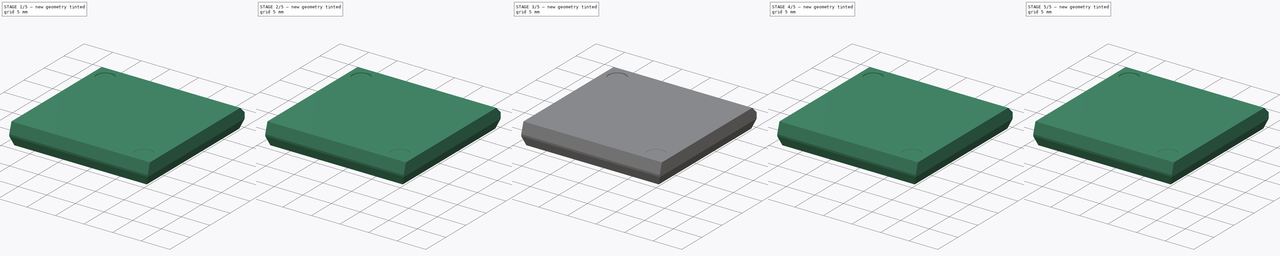
[diagram: build sequence overview — one tinted view per stage of 5, left to right]
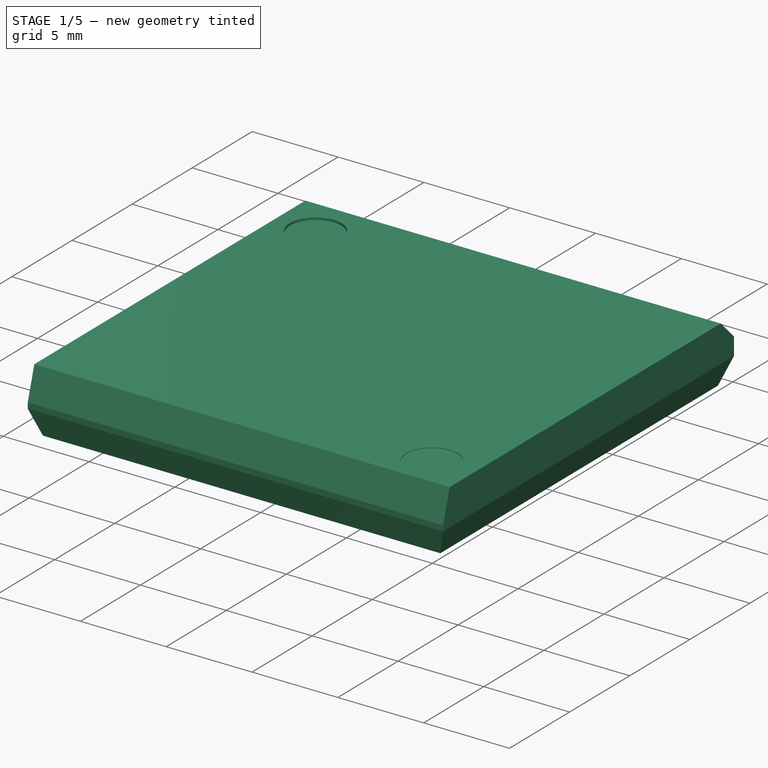
[diagram: stage 1 of 5 — iso view after this stage's code; geometry added in this stage tinted green]
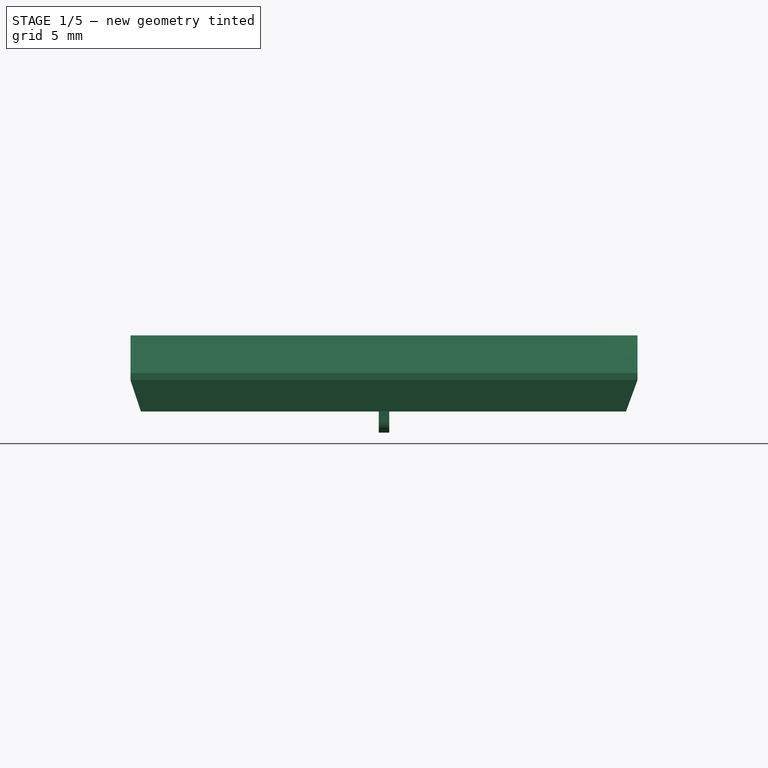
[diagram: stage 1 of 5 — front view after this stage's code; geometry added in this stage tinted green]
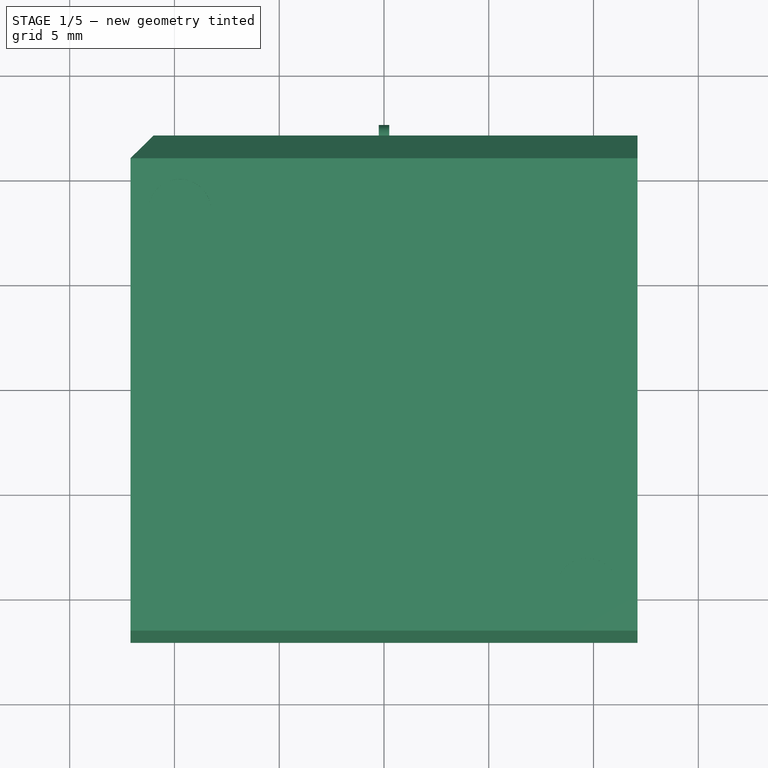
[diagram: stage 1 of 5 — top view after this stage's code; geometry added in this stage tinted green]
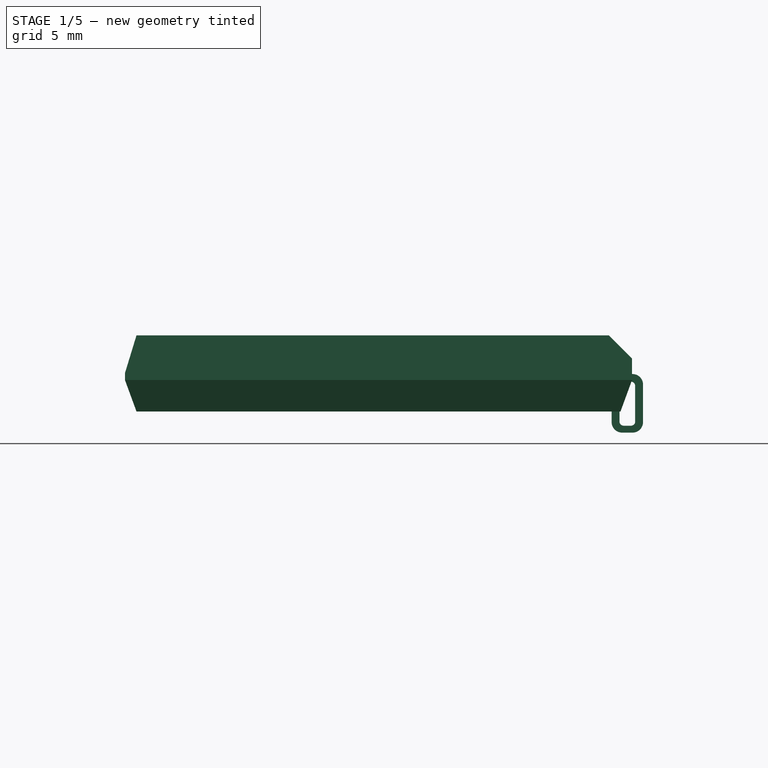
[diagram: stage 1 of 5 — right view after this stage's code; geometry added in this stage tinted green]
FCSTD DOCUMENT  (FreeCAD 0.19R24291 (Git))
Label: PLCC-68
License: All rights reserved
LicenseURL: http://en.wikipedia.org/wiki/All_rights_reserved
objects: PartDesign::Fillet×476, PartDesign::SubtractiveBox×136, Sketcher::SketchObject×70, PartDesign::AdditiveBox×69, PartDesign::Body×69, PartDesign::Chamfer×7, App::Part×5, PartDesign::SubtractiveCylinder×2
note: 1519 computed .brp shape members not serialized (recipe doc carries the construction recipe); baked Part::Feature solids carry a one-line shape summary decoded from their .brp

FEATURE [Sketcher::SketchObject] Sketch
  FullyConstrained = false
  MapMode = 5
  Support = -> [XY_Plane]
  sketch-geometry (8):
    g0: LineSegment StartX=-11 StartY=12.1 StartZ=0 EndX=12.1 EndY=12.1 EndZ=0
    g1: LineSegment StartX=12.1 StartY=12.1 StartZ=0 EndX=12.1 EndY=-12.1 EndZ=0
    g2: LineSegment StartX=12.1 StartY=-12.1 StartZ=0 EndX=-12.1 EndY=-12.1 EndZ=0
    g3: LineSegment StartX=-12.1 StartY=-12.1 StartZ=0 EndX=-12.1 EndY=11 EndZ=0
    g4: GeomPoint X=-12.1 Y=11 Z=0
    g5: GeomPoint X=-11 Y=12.1 Z=0
    g6: LineSegment StartX=-12.1 StartY=11 StartZ=0 EndX=-11 EndY=12.1 EndZ=0
    g7: Circle CenterX=0 CenterY=10.75 CenterZ=0 NormalX=0 NormalY=0 NormalZ=1 AngleXU=0 Radius=0.25
  constraints (12):
    c: Coincident(g0,g1)
    c: Coincident(g1,g2)
    c: Coincident(g2,g3)
    c: Horizontal(g0)
    c: Horizontal(g2)
    c: Vertical(g1)
    c: Vertical(g3)
    c: Coincident(g6,g4)
    c: Coincident(g6,g5)
    c: PointOnObject(g0,g6)
    c: PointOnObject(g3,g6)
    c: PointOnObject(g7,g-2)
FEATURE [PartDesign::AdditiveBox] Box
  AttacherType = Attacher::AttachEngine3D
  AttachmentOffset = pos=(-12.1,-12.1,1.01) rot=(0,0,1;0rad)
  Height = 3.63
  Length = 24.2
  MapMode = 5
  Placement = pos=(-12.1,-12.1,1.01) rot=(0,0,1;0rad)
  Support = -> [XY_Plane]
  Width = 24.2
FEATURE [PartDesign::Chamfer] Chamfer
  Angle = 45
  Base = -> Box [Edge3]
  BaseFeature = -> Box
  ChamferType = 0
  FlipDirection = false
  Placement = pos=(-12.1,-12.1,1.01) rot=(0,0,1;0rad)
  Size = 1.1
  Size2 = 1
  SupportTransform = false
FEATURE [Sketcher::SketchObject] Sketch001
  FullyConstrained = false
  MapMode = 5
  Support = -> [XY_Plane]
  sketch-geometry (4):
    g0: LineSegment StartX=-11.5575 StartY=11.5575 StartZ=0 EndX=11.5575 EndY=11.5575 EndZ=0
    g1: LineSegment StartX=11.5575 StartY=11.5575 StartZ=0 EndX=11.5575 EndY=-11.5575 EndZ=0
    g2: LineSegment StartX=11.5575 StartY=-11.5575 StartZ=0 EndX=-11.5575 EndY=-11.5575 EndZ=0
    g3: LineSegment StartX=-11.5575 StartY=-11.5575 StartZ=0 EndX=-11.5575 EndY=11.5575 EndZ=0
  constraints (8):
    c: Coincident(g0,g1)
    c: Coincident(g1,g2)
    c: Coincident(g2,g3)
    c: Coincident(g3,g0)
    c: Horizontal(g0)
    c: Horizontal(g2)
    c: Vertical(g1)
    c: Vertical(g3)
FEATURE [PartDesign::Chamfer] Chamfer001
  Angle = 45
  Base = -> Chamfer [Edge11]
  BaseFeature = -> Chamfer
  ChamferType = 1
  FlipDirection = false
  Placement = pos=(-12.1,-12.1,1.01) rot=(0,0,1;0rad)
  Size = 1.8
  Size2 = 0.55
  SupportTransform = false
FEATURE [PartDesign::Chamfer] Chamfer002
  Angle = 45
  Base = -> Chamfer001 [Edge15]
  BaseFeature = -> Chamfer001
  ChamferType = 1
  FlipDirection = false
  Placement = pos=(-12.1,-12.1,1.01) rot=(0,0,1;0rad)
  Size = 0.55
  Size2 = 1.5
  SupportTransform = false
FEATURE [PartDesign::Chamfer] Chamfer003
  Angle = 45
  Base = -> Chamfer002 [Edge7]
  BaseFeature = -> Chamfer002
  ChamferType = 1
  FlipDirection = false
  Placement = pos=(-12.1,-12.1,1.01) rot=(0,0,1;0rad)
  Size = 0.55
  Size2 = 1.5
  SupportTransform = false
FEATURE [PartDesign::Chamfer] Chamfer004
  Angle = 45
  Base = -> Chamfer003 [Edge5]
  BaseFeature = -> Chamfer003
  ChamferType = 1
  FlipDirection = false
  Placement = pos=(-12.1,-12.1,1.01) rot=(0,0,1;0rad)
  Size = 0.5
  Size2 = 1.5
  SupportTransform = false
FEATURE [PartDesign::Chamfer] Chamfer005
  Angle = 45
  Base = -> Chamfer004 [Edge24]
  BaseFeature = -> Chamfer004
  ChamferType = 0
  FlipDirection = false
  Placement = pos=(-12.1,-12.1,1.01) rot=(0,0,1;0rad)
  Size = 1.1
  Size2 = 1
  SupportTransform = false
FEATURE [PartDesign::SubtractiveCylinder] Cylinder
  Angle = 360
  AttacherType = Attacher::AttachEngine3D
  AttachmentOffset = pos=(-9.75,8.5,4.5) rot=(0,0,1;0rad)
  BaseFeature = -> Chamfer005
  Height = 0.2
  MapMode = 5
  Placement = pos=(-9.75,8.5,4.5) rot=(0,0,1;0rad)
  Radius = 1.5
  Support = -> [XY_Plane]
FEATURE [PartDesign::SubtractiveCylinder] Cylinder001
  Angle = 360
  AttacherType = Attacher::AttachEngine3D
  AttachmentOffset = pos=(9.7,-9.6,4.6) rot=(0,0,1;0rad)
  BaseFeature = -> Cylinder
  Height = 0.1
  MapMode = 5
  Placement = pos=(9.7,-9.6,4.6) rot=(0,0,1;0rad)
  Radius = 1.5
  Support = -> [XY_Plane]
FEATURE [PartDesign::AdditiveBox] Box146
  AttacherType = Attacher::AttachEngine3D
  AttachmentOffset = pos=(-0.25,11.125,0) rot=(0,0,1;0rad)
  Height = 2.795
  Length = 0.5
  MapMode = 5
  Placement = pos=(-0.25,11.125,0) rot=(0,0,1;0rad)
  Support = -> [XY_Plane044]
  Width = 1.5
FEATURE [PartDesign::AdditiveBox] Box155
  AttacherType = Attacher::AttachEngine3D
  AttachmentOffset = pos=(-0.25,11.125,0) rot=(0,0,1;0rad)
  Height = 2.795
  Length = 0.5
  MapMode = 5
  Placement = pos=(-0.25,11.125,0) rot=(0,0,1;0rad)
  Support = -> [XY_Plane071]
  Width = 1.5
FEATURE [PartDesign::AdditiveBox] Box159
  AttacherType = Attacher::AttachEngine3D
  AttachmentOffset = pos=(-0.25,11.125,0) rot=(0,0,1;0rad)
  Height = 2.795
  Length = 0.5
  MapMode = 5
  Placement = pos=(-0.25,11.125,0) rot=(0,0,1;0rad)
  Support = -> [XY_Plane068]
  Width = 1.5
FEATURE [PartDesign::AdditiveBox] Box166
  AttacherType = Attacher::AttachEngine3D
  AttachmentOffset = pos=(-0.25,11.125,0) rot=(0,0,1;0rad)
  Height = 2.795
  Length = 0.5
  MapMode = 5
  Placement = pos=(-0.25,11.125,0) rot=(0,0,1;0rad)
  Support = -> [XY_Plane066]
  Width = 1.5
FEATURE [PartDesign::AdditiveBox] Box179
  AttacherType = Attacher::AttachEngine3D
  AttachmentOffset = pos=(-0.25,11.125,0) rot=(0,0,1;0rad)
  Height = 2.795
  Length = 0.5
  MapMode = 5
  Placement = pos=(-0.25,11.125,0) rot=(0,0,1;0rad)
  Support = -> [XY_Plane045]
  Width = 1.5
FEATURE [PartDesign::AdditiveBox] Box182
  AttacherType = Attacher::AttachEngine3D
  AttachmentOffset = pos=(-0.25,11.125,0) rot=(0,0,1;0rad)
  Height = 2.795
  Length = 0.5
  MapMode = 5
  Placement = pos=(-0.25,11.125,0) rot=(0,0,1;0rad)
  Support = -> [XY_Plane070]
  Width = 1.5
FEATURE [PartDesign::AdditiveBox] Box187
  AttacherType = Attacher::AttachEngine3D
  AttachmentOffset = pos=(-0.25,11.125,0) rot=(0,0,1;0rad)
  Height = 2.795
  Length = 0.5
  MapMode = 5
  Placement = pos=(-0.25,11.125,0) rot=(0,0,1;0rad)
  Support = -> [XY_Plane047]
  Width = 1.5
FEATURE [PartDesign::AdditiveBox] Box188
  AttacherType = Attacher::AttachEngine3D
  AttachmentOffset = pos=(-0.25,11.125,0) rot=(0,0,1;0rad)
  Height = 2.795
  Length = 0.5
  MapMode = 5
  Placement = pos=(-0.25,11.125,0) rot=(0,0,1;0rad)
  Support = -> [XY_Plane069]
  Width = 1.5
FEATURE [PartDesign::AdditiveBox] Box190
  AttacherType = Attacher::AttachEngine3D
  AttachmentOffset = pos=(-0.25,11.125,0) rot=(0,0,1;0rad)
  Height = 2.795
  Length = 0.5
  MapMode = 5
  Placement = pos=(-0.25,11.125,0) rot=(0,0,1;0rad)
  Support = -> [XY_Plane067]
  Width = 1.5
FEATURE [PartDesign::AdditiveBox] Box191
  AttacherType = Attacher::AttachEngine3D
  AttachmentOffset = pos=(-0.25,11.125,0) rot=(0,0,1;0rad)
  Height = 2.795
  Length = 0.5
  MapMode = 5
  Placement = pos=(-0.25,11.125,0) rot=(0,0,1;0rad)
  Support = -> [XY_Plane043]
  Width = 1.5
FEATURE [PartDesign::AdditiveBox] Box192
  AttacherType = Attacher::AttachEngine3D
  AttachmentOffset = pos=(-0.25,11.125,0) rot=(0,0,1;0rad)
  Height = 2.795
  Length = 0.5
  MapMode = 5
  Placement = pos=(-0.25,11.125,0) rot=(0,0,1;0rad)
  Support = -> [XY_Plane048]
  Width = 1.5
FEATURE [PartDesign::AdditiveBox] Box194
  AttacherType = Attacher::AttachEngine3D
  AttachmentOffset = pos=(-0.25,11.125,0) rot=(0,0,1;0rad)
  Height = 2.795
  Length = 0.5
  MapMode = 5
  Placement = pos=(-0.25,11.125,0) rot=(0,0,1;0rad)
  Support = -> [XY_Plane042]
  Width = 1.5
FEATURE [PartDesign::AdditiveBox] Box200
  AttacherType = Attacher::AttachEngine3D
  AttachmentOffset = pos=(-0.25,11.125,0) rot=(0,0,1;0rad)
  Height = 2.795
  Length = 0.5
  MapMode = 5
  Placement = pos=(-0.25,11.125,0) rot=(0,0,1;0rad)
  Support = -> [XY_Plane046]
  Width = 1.5
FEATURE [PartDesign::Fillet] Fillet390
  Base = -> Box159 [Edge11]
  BaseFeature = -> Box159
  Placement = pos=(-0.25,11.125,0) rot=(0,0,1;0rad)
  Radius = 0.5
  SupportTransform = false
FEATURE [Sketcher::SketchObject] Sketch049
  FullyConstrained = false
  MapMode = 5
  Support = -> [XY_Plane059]
  sketch-geometry (8):
    g0: LineSegment StartX=-0.3 StartY=-12.5 StartZ=0 EndX=0.3 EndY=-12.5 EndZ=0
    g1: LineSegment StartX=0.3 StartY=-12.5 StartZ=0 EndX=0.3 EndY=-11.1 EndZ=0
    g2: LineSegment StartX=0.3 StartY=-11.1 StartZ=0 EndX=-0.3 EndY=-11.1 EndZ=0
    g3: LineSegment StartX=-0.3 StartY=-11.1 StartZ=0 EndX=-0.3 EndY=-12.5 EndZ=0
    g4: LineSegment StartX=-0.2 StartY=-12.4 StartZ=0 EndX=0.2 EndY=-12.4 EndZ=0
    g5: LineSegment StartX=0.2 StartY=-12.4 StartZ=0 EndX=0.2 EndY=-11.2 EndZ=0
    g6: LineSegment StartX=0.2 StartY=-11.2 StartZ=0 EndX=-0.2 EndY=-11.2 EndZ=0
    g7: LineSegment StartX=-0.2 StartY=-11.2 StartZ=0 EndX=-0.2 EndY=-12.4 EndZ=0
  constraints (16):
    c: Coincident(g0,g1)
    c: Coincident(g1,g2)
    c: Coincident(g2,g3)
    c: Coincident(g3,g0)
    c: Horizontal(g0)
    c: Horizontal(g2)
    c: Vertical(g1)
    c: Vertical(g3)
    c: Coincident(g4,g5)
    c: Coincident(g5,g6)
    c: Coincident(g6,g7)
    c: Coincident(g7,g4)
    c: Horizontal(g4)
    c: Horizontal(g6)
    c: Vertical(g5)
    c: Vertical(g7)
FEATURE [PartDesign::Body] Body047  label="Leg046"
  Group = -> [Sketch049,Box141,Fillet314,Fillet333,Fillet323,Box118,Fillet258,Fillet334,Fillet330,Fillet322,Box143]
  Origin = -> Origin061
  Placement = pos=(-3.81,0,0) rot=(0,0,1;0rad)
  Tip = -> Box143
FEATURE [Sketcher::SketchObject] Sketch050
  FullyConstrained = false
  MapMode = 5
  Support = -> [XY_Plane062]
  sketch-geometry (8):
    g0: LineSegment StartX=-0.3 StartY=-12.5 StartZ=0 EndX=0.3 EndY=-12.5 EndZ=0
    g1: LineSegment StartX=0.3 StartY=-12.5 StartZ=0 EndX=0.3 EndY=-11.1 EndZ=0
    g2: LineSegment StartX=0.3 StartY=-11.1 StartZ=0 EndX=-0.3 EndY=-11.1 EndZ=0
    g3: LineSegment StartX=-0.3 StartY=-11.1 StartZ=0 EndX=-0.3 EndY=-12.5 EndZ=0
    g4: LineSegment StartX=-0.2 StartY=-12.4 StartZ=0 EndX=0.2 EndY=-12.4 EndZ=0
    g5: LineSegment StartX=0.2 StartY=-12.4 StartZ=0 EndX=0.2 EndY=-11.2 EndZ=0
    g6: LineSegment StartX=0.2 StartY=-11.2 StartZ=0 EndX=-0.2 EndY=-11.2 EndZ=0
    g7: LineSegment StartX=-0.2 StartY=-11.2 StartZ=0 EndX=-0.2 EndY=-12.4 EndZ=0
  constraints (16):
    c: Coincident(g0,g1)
    c: Coincident(g1,g2)
    c: Coincident(g2,g3)
    c: Coincident(g3,g0)
    c: Horizontal(g0)
    c: Horizontal(g2)
    c: Vertical(g1)
    c: Vertical(g3)
    c: Coincident(g4,g5)
    c: Coincident(g5,g6)
    c: Coincident(g6,g7)
    c: Coincident(g7,g4)
    c: Horizontal(g4)
    c: Horizontal(g6)
    c: Vertical(g5)
    c: Vertical(g7)
FEATURE [PartDesign::Body] Body051  label="Leg050"
  Group = -> [Sketch050,Box151,Fillet346,Fillet360,Fillet356,Box150,Fillet355,Fillet351,Fillet354,Fillet352,Box154]
  Origin = -> Origin044
  Placement = pos=(10.16,0,0) rot=(0,0,1;0rad)
  Tip = -> Box154
FEATURE [Sketcher::SketchObject] Sketch051
  FullyConstrained = false
  MapMode = 5
  Support = -> [XY_Plane056]
  sketch-geometry (8):
    g0: LineSegment StartX=-0.3 StartY=-12.5 StartZ=0 EndX=0.3 EndY=-12.5 EndZ=0
    g1: LineSegment StartX=0.3 StartY=-12.5 StartZ=0 EndX=0.3 EndY=-11.1 EndZ=0
    g2: LineSegment StartX=0.3 StartY=-11.1 StartZ=0 EndX=-0.3 EndY=-11.1 EndZ=0
    g3: LineSegment StartX=-0.3 StartY=-11.1 StartZ=0 EndX=-0.3 EndY=-12.5 EndZ=0
    g4: LineSegment StartX=-0.2 StartY=-12.4 StartZ=0 EndX=0.2 EndY=-12.4 EndZ=0
    g5: LineSegment StartX=0.2 StartY=-12.4 StartZ=0 EndX=0.2 EndY=-11.2 EndZ=0
    g6: LineSegment StartX=0.2 StartY=-11.2 StartZ=0 EndX=-0.2 EndY=-11.2 EndZ=0
    g7: LineSegment StartX=-0.2 StartY=-11.2 StartZ=0 EndX=-0.2 EndY=-12.4 EndZ=0
  constraints (16):
    c: Coincident(g0,g1)
    c: Coincident(g1,g2)
    c: Coincident(g2,g3)
    c: Coincident(g3,g0)
    c: Horizontal(g0)
    c: Horizontal(g2)
    c: Vertical(g1)
    c: Vertical(g3)
    c: Coincident(g4,g5)
    c: Coincident(g5,g6)
    c: Coincident(g6,g7)
    c: Coincident(g7,g4)
    c: Horizontal(g4)
    c: Horizontal(g6)
    c: Vertical(g5)
    c: Vertical(g7)
FEATURE [PartDesign::Body] Body049  label="Leg048"
  Group = -> [Sketch051,Box137,Fillet337,Fillet269,Fillet353,Box133,Fillet350,Fillet310,Fillet344,Fillet347,Box134]
  Origin = -> Origin050
  Placement = pos=(8.89,0,0) rot=(0,0,1;0rad)
  Tip = -> Box134
FEATURE [Sketcher::SketchObject] Sketch052
  FullyConstrained = false
  MapMode = 5
  Support = -> [XY_Plane070]
  sketch-geometry (8):
    g0: LineSegment StartX=-0.3 StartY=-12.5 StartZ=0 EndX=0.3 EndY=-12.5 EndZ=0
    g1: LineSegment StartX=0.3 StartY=-12.5 StartZ=0 EndX=0.3 EndY=-11.1 EndZ=0
    g2: LineSegment StartX=0.3 StartY=-11.1 StartZ=0 EndX=-0.3 EndY=-11.1 EndZ=0
    g3: LineSegment StartX=-0.3 StartY=-11.1 StartZ=0 EndX=-0.3 EndY=-12.5 EndZ=0
    g4: LineSegment StartX=-0.2 StartY=-12.4 StartZ=0 EndX=0.2 EndY=-12.4 EndZ=0
    g5: LineSegment StartX=0.2 StartY=-12.4 StartZ=0 EndX=0.2 EndY=-11.2 EndZ=0
    g6: LineSegment StartX=0.2 StartY=-11.2 StartZ=0 EndX=-0.2 EndY=-11.2 EndZ=0
    g7: LineSegment StartX=-0.2 StartY=-11.2 StartZ=0 EndX=-0.2 EndY=-12.4 EndZ=0
  constraints (16):
    c: Coincident(g0,g1)
    c: Coincident(g1,g2)
    c: Coincident(g2,g3)
    c: Coincident(g3,g0)
    c: Horizontal(g0)
    c: Horizontal(g2)
    c: Vertical(g1)
    c: Vertical(g3)
    c: Coincident(g4,g5)
    c: Coincident(g5,g6)
    c: Coincident(g6,g7)
    c: Coincident(g7,g4)
    c: Horizontal(g4)
    c: Horizontal(g6)
    c: Vertical(g5)
    c: Vertical(g7)
FEATURE [Sketcher::SketchObject] Sketch053
  FullyConstrained = false
  MapMode = 5
  Support = -> [XY_Plane043]
  sketch-geometry (8):
    g0: LineSegment StartX=-0.3 StartY=-12.5 StartZ=0 EndX=0.3 EndY=-12.5 EndZ=0
    g1: LineSegment StartX=0.3 StartY=-12.5 StartZ=0 EndX=0.3 EndY=-11.1 EndZ=0
    g2: LineSegment StartX=0.3 StartY=-11.1 StartZ=0 EndX=-0.3 EndY=-11.1 EndZ=0
    g3: LineSegment StartX=-0.3 StartY=-11.1 StartZ=0 EndX=-0.3 EndY=-12.5 EndZ=0
    g4: LineSegment StartX=-0.2 StartY=-12.4 StartZ=0 EndX=0.2 EndY=-12.4 EndZ=0
    g5: LineSegment StartX=0.2 StartY=-12.4 StartZ=0 EndX=0.2 EndY=-11.2 EndZ=0
    g6: LineSegment StartX=0.2 StartY=-11.2 StartZ=0 EndX=-0.2 EndY=-11.2 EndZ=0
    g7: LineSegment StartX=-0.2 StartY=-11.2 StartZ=0 EndX=-0.2 EndY=-12.4 EndZ=0
  constraints (16):
    c: Coincident(g0,g1)
    c: Coincident(g1,g2)
    c: Coincident(g2,g3)
    c: Coincident(g3,g0)
    c: Horizontal(g0)
    c: Horizontal(g2)
    c: Vertical(g1)
    c: Vertical(g3)
    c: Coincident(g4,g5)
    c: Coincident(g5,g6)
    c: Coincident(g6,g7)
    c: Coincident(g7,g4)
    c: Horizontal(g4)
    c: Horizontal(g6)
    c: Vertical(g5)
    c: Vertical(g7)
FEATURE [Sketcher::SketchObject] Sketch054
  FullyConstrained = false
  MapMode = 5
  Support = -> [XY_Plane044]
  sketch-geometry (8):
    g0: LineSegment StartX=-0.3 StartY=-12.5 StartZ=0 EndX=0.3 EndY=-12.5 EndZ=0
    g1: LineSegment StartX=0.3 StartY=-12.5 StartZ=0 EndX=0.3 EndY=-11.1 EndZ=0
    g2: LineSegment StartX=0.3 StartY=-11.1 StartZ=0 EndX=-0.3 EndY=-11.1 EndZ=0
    g3: LineSegment StartX=-0.3 StartY=-11.1 StartZ=0 EndX=-0.3 EndY=-12.5 EndZ=0
    g4: LineSegment StartX=-0.2 StartY=-12.4 StartZ=0 EndX=0.2 EndY=-12.4 EndZ=0
    g5: LineSegment StartX=0.2 StartY=-12.4 StartZ=0 EndX=0.2 EndY=-11.2 EndZ=0
    g6: LineSegment StartX=0.2 StartY=-11.2 StartZ=0 EndX=-0.2 EndY=-11.2 EndZ=0
    g7: LineSegment StartX=-0.2 StartY=-11.2 StartZ=0 EndX=-0.2 EndY=-12.4 EndZ=0
  constraints (16):
    c: Coincident(g0,g1)
    c: Coincident(g1,g2)
    c: Coincident(g2,g3)
    c: Coincident(g3,g0)
    c: Horizontal(g0)
    c: Horizontal(g2)
    c: Vertical(g1)
    c: Vertical(g3)
    c: Coincident(g4,g5)
    c: Coincident(g5,g6)
    c: Coincident(g6,g7)
    c: Coincident(g7,g4)
    c: Horizontal(g4)
    c: Horizontal(g6)
    c: Vertical(g5)
    c: Vertical(g7)
FEATURE [Sketcher::SketchObject] Sketch055
  FullyConstrained = false
  MapMode = 5
  Support = -> [XY_Plane071]
  sketch-geometry (8):
    g0: LineSegment StartX=-0.3 StartY=-12.5 StartZ=0 EndX=0.3 EndY=-12.5 EndZ=0
    g1: LineSegment StartX=0.3 StartY=-12.5 StartZ=0 EndX=0.3 EndY=-11.1 EndZ=0
    g2: LineSegment StartX=0.3 StartY=-11.1 StartZ=0 EndX=-0.3 EndY=-11.1 EndZ=0
    g3: LineSegment StartX=-0.3 StartY=-11.1 StartZ=0 EndX=-0.3 EndY=-12.5 EndZ=0
    g4: LineSegment StartX=-0.2 StartY=-12.4 StartZ=0 EndX=0.2 EndY=-12.4 EndZ=0
    g5: LineSegment StartX=0.2 StartY=-12.4 StartZ=0 EndX=0.2 EndY=-11.2 EndZ=0
    g6: LineSegment StartX=0.2 StartY=-11.2 StartZ=0 EndX=-0.2 EndY=-11.2 EndZ=0
    g7: LineSegment StartX=-0.2 StartY=-11.2 StartZ=0 EndX=-0.2 EndY=-12.4 EndZ=0
  constraints (16):
    c: Coincident(g0,g1)
    c: Coincident(g1,g2)
    c: Coincident(g2,g3)
    c: Coincident(g3,g0)
    c: Horizontal(g0)
    c: Horizontal(g2)
    c: Vertical(g1)
    c: Vertical(g3)
    c: Coincident(g4,g5)
    c: Coincident(g5,g6)
    c: Coincident(g6,g7)
    c: Coincident(g7,g4)
    c: Horizontal(g4)
    c: Horizontal(g6)
    c: Vertical(g5)
    c: Vertical(g7)
FEATURE [Sketcher::SketchObject] Sketch056
  FullyConstrained = false
  MapMode = 5
  Support = -> [XY_Plane061]
  sketch-geometry (8):
    g0: LineSegment StartX=-0.3 StartY=-12.5 StartZ=0 EndX=0.3 EndY=-12.5 EndZ=0
    g1: LineSegment StartX=0.3 StartY=-12.5 StartZ=0 EndX=0.3 EndY=-11.1 EndZ=0
    g2: LineSegment StartX=0.3 StartY=-11.1 StartZ=0 EndX=-0.3 EndY=-11.1 EndZ=0
    g3: LineSegment StartX=-0.3 StartY=-11.1 StartZ=0 EndX=-0.3 EndY=-12.5 EndZ=0
    g4: LineSegment StartX=-0.2 StartY=-12.4 StartZ=0 EndX=0.2 EndY=-12.4 EndZ=0
    g5: LineSegment StartX=0.2 StartY=-12.4 StartZ=0 EndX=0.2 EndY=-11.2 EndZ=0
    g6: LineSegment StartX=0.2 StartY=-11.2 StartZ=0 EndX=-0.2 EndY=-11.2 EndZ=0
    g7: LineSegment StartX=-0.2 StartY=-11.2 StartZ=0 EndX=-0.2 EndY=-12.4 EndZ=0
  constraints (16):
    c: Coincident(g0,g1)
    c: Coincident(g1,g2)
    c: Coincident(g2,g3)
    c: Coincident(g3,g0)
    c: Horizontal(g0)
    c: Horizontal(g2)
    c: Vertical(g1)
    c: Vertical(g3)
    c: Coincident(g4,g5)
    c: Coincident(g5,g6)
    c: Coincident(g6,g7)
    c: Coincident(g7,g4)
    c: Horizontal(g4)
    c: Horizontal(g6)
    c: Vertical(g5)
    c: Vertical(g7)
FEATURE [PartDesign::Body] Body052  label="Leg051"
  Group = -> [Sketch056,Box173,Fillet366,Fillet376,Fillet371,Box175,Fillet359,Fillet369,Fillet358,Fillet361,Box178]
  Origin = -> Origin070
  Placement = pos=(5.08,0,0) rot=(0,0,1;0rad)
  Tip = -> Box178
FEATURE [Sketcher::SketchObject] Sketch057
  FullyConstrained = false
  MapMode = 5
  Support = -> [XY_Plane049]
  sketch-geometry (8):
    g0: LineSegment StartX=-0.3 StartY=-12.5 StartZ=0 EndX=0.3 EndY=-12.5 EndZ=0
    g1: LineSegment StartX=0.3 StartY=-12.5 StartZ=0 EndX=0.3 EndY=-11.1 EndZ=0
    g2: LineSegment StartX=0.3 StartY=-11.1 StartZ=0 EndX=-0.3 EndY=-11.1 EndZ=0
    g3: LineSegment StartX=-0.3 StartY=-11.1 StartZ=0 EndX=-0.3 EndY=-12.5 EndZ=0
    g4: LineSegment StartX=-0.2 StartY=-12.4 StartZ=0 EndX=0.2 EndY=-12.4 EndZ=0
    g5: LineSegment StartX=0.2 StartY=-12.4 StartZ=0 EndX=0.2 EndY=-11.2 EndZ=0
    g6: LineSegment StartX=0.2 StartY=-11.2 StartZ=0 EndX=-0.2 EndY=-11.2 EndZ=0
    g7: LineSegment StartX=-0.2 StartY=-11.2 StartZ=0 EndX=-0.2 EndY=-12.4 EndZ=0
  constraints (16):
    c: Coincident(g0,g1)
    c: Coincident(g1,g2)
    c: Coincident(g2,g3)
    c: Coincident(g3,g0)
    c: Horizontal(g0)
    c: Horizontal(g2)
    c: Vertical(g1)
    c: Vertical(g3)
    c: Coincident(g4,g5)
    c: Coincident(g5,g6)
    c: Coincident(g6,g7)
    c: Coincident(g7,g4)
    c: Horizontal(g4)
    c: Horizontal(g6)
    c: Vertical(g5)
    c: Vertical(g7)
FEATURE [PartDesign::Body] Body053  label="Leg052"
  Group = -> [Sketch057,Box162,Fillet370,Fillet382,Fillet378,Box189,Fillet362,Fillet385,Fillet363,Fillet377,Box170]
  Origin = -> Origin072
  Placement = pos=(-1.27,0,0) rot=(0,0,1;0rad)
  Tip = -> Box170
FEATURE [Sketcher::SketchObject] Sketch058
  FullyConstrained = false
  MapMode = 5
  Support = -> [XY_Plane064]
  sketch-geometry (8):
    g0: LineSegment StartX=-0.3 StartY=-12.5 StartZ=0 EndX=0.3 EndY=-12.5 EndZ=0
    g1: LineSegment StartX=0.3 StartY=-12.5 StartZ=0 EndX=0.3 EndY=-11.1 EndZ=0
    g2: LineSegment StartX=0.3 StartY=-11.1 StartZ=0 EndX=-0.3 EndY=-11.1 EndZ=0
    g3: LineSegment StartX=-0.3 StartY=-11.1 StartZ=0 EndX=-0.3 EndY=-12.5 EndZ=0
    g4: LineSegment StartX=-0.2 StartY=-12.4 StartZ=0 EndX=0.2 EndY=-12.4 EndZ=0
    g5: LineSegment StartX=0.2 StartY=-12.4 StartZ=0 EndX=0.2 EndY=-11.2 EndZ=0
    g6: LineSegment StartX=0.2 StartY=-11.2 StartZ=0 EndX=-0.2 EndY=-11.2 EndZ=0
    g7: LineSegment StartX=-0.2 StartY=-11.2 StartZ=0 EndX=-0.2 EndY=-12.4 EndZ=0
  constraints (16):
    c: Coincident(g0,g1)
    c: Coincident(g1,g2)
    c: Coincident(g2,g3)
    c: Coincident(g3,g0)
    c: Horizontal(g0)
    c: Horizontal(g2)
    c: Vertical(g1)
    c: Vertical(g3)
    c: Coincident(g4,g5)
    c: Coincident(g5,g6)
    c: Coincident(g6,g7)
    c: Coincident(g7,g4)
    c: Horizontal(g4)
    c: Horizontal(g6)
    c: Vertical(g5)
    c: Vertical(g7)
FEATURE [PartDesign::Body] Body055  label="Leg054"
  Group = -> [Sketch058,Box165,Fillet372,Fillet374,Fillet367,Box164,Fillet368,Fillet383,Fillet380,Fillet381,Box174]
  Origin = -> Origin068
  Placement = pos=(6.35,0,0) rot=(0,0,1;0rad)
  Tip = -> Box174
FEATURE [Sketcher::SketchObject] Sketch059
  FullyConstrained = false
  MapMode = 5
  Support = -> [XY_Plane069]
  sketch-geometry (8):
    g0: LineSegment StartX=-0.3 StartY=-12.5 StartZ=0 EndX=0.3 EndY=-12.5 EndZ=0
    g1: LineSegment StartX=0.3 StartY=-12.5 StartZ=0 EndX=0.3 EndY=-11.1 EndZ=0
    g2: LineSegment StartX=0.3 StartY=-11.1 StartZ=0 EndX=-0.3 EndY=-11.1 EndZ=0
    g3: LineSegment StartX=-0.3 StartY=-11.1 StartZ=0 EndX=-0.3 EndY=-12.5 EndZ=0
    g4: LineSegment StartX=-0.2 StartY=-12.4 StartZ=0 EndX=0.2 EndY=-12.4 EndZ=0
    g5: LineSegment StartX=0.2 StartY=-12.4 StartZ=0 EndX=0.2 EndY=-11.2 EndZ=0
    g6: LineSegment StartX=0.2 StartY=-11.2 StartZ=0 EndX=-0.2 EndY=-11.2 EndZ=0
    g7: LineSegment StartX=-0.2 StartY=-11.2 StartZ=0 EndX=-0.2 EndY=-12.4 EndZ=0
  constraints (16):
    c: Coincident(g0,g1)
    c: Coincident(g1,g2)
    c: Coincident(g2,g3)
    c: Coincident(g3,g0)
    c: Horizontal(g0)
    c: Horizontal(g2)
    c: Vertical(g1)
    c: Vertical(g3)
    c: Coincident(g4,g5)
    c: Coincident(g5,g6)
    c: Coincident(g6,g7)
    c: Coincident(g7,g4)
    c: Horizontal(g4)
    c: Horizontal(g6)
    c: Vertical(g5)
    c: Vertical(g7)
FEATURE [Sketcher::SketchObject] Sketch060
  FullyConstrained = false
  MapMode = 5
  Support = -> [XY_Plane066]
  sketch-geometry (8):
    g0: LineSegment StartX=-0.3 StartY=-12.5 StartZ=0 EndX=0.3 EndY=-12.5 EndZ=0
    g1: LineSegment StartX=0.3 StartY=-12.5 StartZ=0 EndX=0.3 EndY=-11.1 EndZ=0
    g2: LineSegment StartX=0.3 StartY=-11.1 StartZ=0 EndX=-0.3 EndY=-11.1 EndZ=0
    g3: LineSegment StartX=-0.3 StartY=-11.1 StartZ=0 EndX=-0.3 EndY=-12.5 EndZ=0
    g4: LineSegment StartX=-0.2 StartY=-12.4 StartZ=0 EndX=0.2 EndY=-12.4 EndZ=0
    g5: LineSegment StartX=0.2 StartY=-12.4 StartZ=0 EndX=0.2 EndY=-11.2 EndZ=0
    g6: LineSegment StartX=0.2 StartY=-11.2 StartZ=0 EndX=-0.2 EndY=-11.2 EndZ=0
    g7: LineSegment StartX=-0.2 StartY=-11.2 StartZ=0 EndX=-0.2 EndY=-12.4 EndZ=0
  constraints (16):
    c: Coincident(g0,g1)
    c: Coincident(g1,g2)
    c: Coincident(g2,g3)
    c: Coincident(g3,g0)
    c: Horizontal(g0)
    c: Horizontal(g2)
    c: Vertical(g1)
    c: Vertical(g3)
    c: Coincident(g4,g5)
    c: Coincident(g5,g6)
    c: Coincident(g6,g7)
    c: Coincident(g7,g4)
    c: Horizontal(g4)
    c: Horizontal(g6)
    c: Vertical(g5)
    c: Vertical(g7)
FEATURE [Sketcher::SketchObject] Sketch061
  FullyConstrained = false
  MapMode = 5
  Support = -> [XY_Plane065]
  sketch-geometry (8):
    g0: LineSegment StartX=-0.3 StartY=-12.5 StartZ=0 EndX=0.3 EndY=-12.5 EndZ=0
    g1: LineSegment StartX=0.3 StartY=-12.5 StartZ=0 EndX=0.3 EndY=-11.1 EndZ=0
    g2: LineSegment StartX=0.3 StartY=-11.1 StartZ=0 EndX=-0.3 EndY=-11.1 EndZ=0
    g3: LineSegment StartX=-0.3 StartY=-11.1 StartZ=0 EndX=-0.3 EndY=-12.5 EndZ=0
    g4: LineSegment StartX=-0.2 StartY=-12.4 StartZ=0 EndX=0.2 EndY=-12.4 EndZ=0
    g5: LineSegment StartX=0.2 StartY=-12.4 StartZ=0 EndX=0.2 EndY=-11.2 EndZ=0
    g6: LineSegment StartX=0.2 StartY=-11.2 StartZ=0 EndX=-0.2 EndY=-11.2 EndZ=0
    g7: LineSegment StartX=-0.2 StartY=-11.2 StartZ=0 EndX=-0.2 EndY=-12.4 EndZ=0
  constraints (16):
    c: Coincident(g0,g1)
    c: Coincident(g1,g2)
    c: Coincident(g2,g3)
    c: Coincident(g3,g0)
    c: Horizontal(g0)
    c: Horizontal(g2)
    c: Vertical(g1)
    c: Vertical(g3)
    c: Coincident(g4,g5)
    c: Coincident(g5,g6)
    c: Coincident(g6,g7)
    c: Coincident(g7,g4)
    c: Horizontal(g4)
    c: Horizontal(g6)
    c: Vertical(g5)
    c: Vertical(g7)
FEATURE [PartDesign::Body] Body054  label="Leg053"
  Group = -> [Sketch061,Box169,Fillet365,Fillet375,Fillet384,Box167,Fillet391,Fillet373,Fillet364,Fillet392,Box176]
  Origin = -> Origin063
  Placement = pos=(7.62,0,0) rot=(0,0,1;0rad)
  Tip = -> Box176
FEATURE [Sketcher::SketchObject] Sketch062
  FullyConstrained = false
  MapMode = 5
  Support = -> [XY_Plane047]
  sketch-geometry (8):
    g0: LineSegment StartX=-0.3 StartY=-12.5 StartZ=0 EndX=0.3 EndY=-12.5 EndZ=0
    g1: LineSegment StartX=0.3 StartY=-12.5 StartZ=0 EndX=0.3 EndY=-11.1 EndZ=0
    g2: LineSegment StartX=0.3 StartY=-11.1 StartZ=0 EndX=-0.3 EndY=-11.1 EndZ=0
    g3: LineSegment StartX=-0.3 StartY=-11.1 StartZ=0 EndX=-0.3 EndY=-12.5 EndZ=0
    g4: LineSegment StartX=-0.2 StartY=-12.4 StartZ=0 EndX=0.2 EndY=-12.4 EndZ=0
    g5: LineSegment StartX=0.2 StartY=-12.4 StartZ=0 EndX=0.2 EndY=-11.2 EndZ=0
    g6: LineSegment StartX=0.2 StartY=-11.2 StartZ=0 EndX=-0.2 EndY=-11.2 EndZ=0
    g7: LineSegment StartX=-0.2 StartY=-11.2 StartZ=0 EndX=-0.2 EndY=-12.4 EndZ=0
  constraints (16):
    c: Coincident(g0,g1)
    c: Coincident(g1,g2)
    c: Coincident(g2,g3)
    c: Coincident(g3,g0)
    c: Horizontal(g0)
    c: Horizontal(g2)
    c: Vertical(g1)
    c: Vertical(g3)
    c: Coincident(g4,g5)
    c: Coincident(g5,g6)
    c: Coincident(g6,g7)
    c: Coincident(g7,g4)
    c: Horizontal(g4)
    c: Horizontal(g6)
    c: Vertical(g5)
    c: Vertical(g7)
FEATURE [Sketcher::SketchObject] Sketch063
  FullyConstrained = false
  MapMode = 5
  Support = -> [XY_Plane045]
  sketch-geometry (8):
    g0: LineSegment StartX=-0.3 StartY=-12.5 StartZ=0 EndX=0.3 EndY=-12.5 EndZ=0
    g1: LineSegment StartX=0.3 StartY=-12.5 StartZ=0 EndX=0.3 EndY=-11.1 EndZ=0
    g2: LineSegment StartX=0.3 StartY=-11.1 StartZ=0 EndX=-0.3 EndY=-11.1 EndZ=0
    g3: LineSegment StartX=-0.3 StartY=-11.1 StartZ=0 EndX=-0.3 EndY=-12.5 EndZ=0
    g4: LineSegment StartX=-0.2 StartY=-12.4 StartZ=0 EndX=0.2 EndY=-12.4 EndZ=0
    g5: LineSegment StartX=0.2 StartY=-12.4 StartZ=0 EndX=0.2 EndY=-11.2 EndZ=0
    g6: LineSegment StartX=0.2 StartY=-11.2 StartZ=0 EndX=-0.2 EndY=-11.2 EndZ=0
    g7: LineSegment StartX=-0.2 StartY=-11.2 StartZ=0 EndX=-0.2 EndY=-12.4 EndZ=0
  constraints (16):
    c: Coincident(g0,g1)
    c: Coincident(g1,g2)
    c: Coincident(g2,g3)
    c: Coincident(g3,g0)
    c: Horizontal(g0)
    c: Horizontal(g2)
    c: Vertical(g1)
    c: Vertical(g3)
    c: Coincident(g4,g5)
    c: Coincident(g5,g6)
    c: Coincident(g6,g7)
    c: Coincident(g7,g4)
    c: Horizontal(g4)
    c: Horizontal(g6)
    c: Vertical(g5)
    c: Vertical(g7)
FEATURE [Sketcher::SketchObject] Sketch064
  FullyConstrained = false
  MapMode = 5
  Support = -> [XY_Plane067]
  sketch-geometry (8):
    g0: LineSegment StartX=-0.3 StartY=-12.5 StartZ=0 EndX=0.3 EndY=-12.5 EndZ=0
    g1: LineSegment StartX=0.3 StartY=-12.5 StartZ=0 EndX=0.3 EndY=-11.1 EndZ=0
    g2: LineSegment StartX=0.3 StartY=-11.1 StartZ=0 EndX=-0.3 EndY=-11.1 EndZ=0
    g3: LineSegment StartX=-0.3 StartY=-11.1 StartZ=0 EndX=-0.3 EndY=-12.5 EndZ=0
    g4: LineSegment StartX=-0.2 StartY=-12.4 StartZ=0 EndX=0.2 EndY=-12.4 EndZ=0
    g5: LineSegment StartX=0.2 StartY=-12.4 StartZ=0 EndX=0.2 EndY=-11.2 EndZ=0
    g6: LineSegment StartX=0.2 StartY=-11.2 StartZ=0 EndX=-0.2 EndY=-11.2 EndZ=0
    g7: LineSegment StartX=-0.2 StartY=-11.2 StartZ=0 EndX=-0.2 EndY=-12.4 EndZ=0
  constraints (16):
    c: Coincident(g0,g1)
    c: Coincident(g1,g2)
    c: Coincident(g2,g3)
    c: Coincident(g3,g0)
    c: Horizontal(g0)
    c: Horizontal(g2)
    c: Vertical(g1)
    c: Vertical(g3)
    c: Coincident(g4,g5)
    c: Coincident(g5,g6)
    c: Coincident(g6,g7)
    c: Coincident(g7,g4)
    c: Horizontal(g4)
    c: Horizontal(g6)
    c: Vertical(g5)
    c: Vertical(g7)
FEATURE [Sketcher::SketchObject] Sketch065
  FullyConstrained = false
  MapMode = 5
  Support = -> [XY_Plane042]
  sketch-geometry (8):
    g0: LineSegment StartX=-0.3 StartY=-12.5 StartZ=0 EndX=0.3 EndY=-12.5 EndZ=0
    g1: LineSegment StartX=0.3 StartY=-12.5 StartZ=0 EndX=0.3 EndY=-11.1 EndZ=0
    g2: LineSegment StartX=0.3 StartY=-11.1 StartZ=0 EndX=-0.3 EndY=-11.1 EndZ=0
    g3: LineSegment StartX=-0.3 StartY=-11.1 StartZ=0 EndX=-0.3 EndY=-12.5 EndZ=0
    g4: LineSegment StartX=-0.2 StartY=-12.4 StartZ=0 EndX=0.2 EndY=-12.4 EndZ=0
    g5: LineSegment StartX=0.2 StartY=-12.4 StartZ=0 EndX=0.2 EndY=-11.2 EndZ=0
    g6: LineSegment StartX=0.2 StartY=-11.2 StartZ=0 EndX=-0.2 EndY=-11.2 EndZ=0
    g7: LineSegment StartX=-0.2 StartY=-11.2 StartZ=0 EndX=-0.2 EndY=-12.4 EndZ=0
  constraints (16):
    c: Coincident(g0,g1)
    c: Coincident(g1,g2)
    c: Coincident(g2,g3)
    c: Coincident(g3,g0)
    c: Horizontal(g0)
    c: Horizontal(g2)
    c: Vertical(g1)
    c: Vertical(g3)
    c: Coincident(g4,g5)
    c: Coincident(g5,g6)
    c: Coincident(g6,g7)
    c: Coincident(g7,g4)
    c: Horizontal(g4)
    c: Horizontal(g6)
    c: Vertical(g5)
    c: Vertical(g7)
FEATURE [PartDesign::Fillet] Fillet397
  Base = -> Box200 [Edge11]
  BaseFeature = -> Box200
  Placement = pos=(-0.25,11.125,0) rot=(0,0,1;0rad)
  Radius = 0.5
  SupportTransform = false
FEATURE [PartDesign::Fillet] Fillet399
  Base = -> Fillet397 [Edge8]
  BaseFeature = -> Fillet397
  Placement = pos=(-0.25,11.125,0) rot=(0,0,1;0rad)
  Radius = 0.5
  SupportTransform = false
FEATURE [PartDesign::Fillet] Fillet410
  Base = -> Fillet399 [Edge16]
  BaseFeature = -> Fillet399
  Placement = pos=(-0.25,11.125,0) rot=(0,0,1;0rad)
  Radius = 0.5
  SupportTransform = false
FEATURE [PartDesign::SubtractiveBox] Box196
  AttacherType = Attacher::AttachEngine3D
  AttachmentOffset = pos=(11.5,0.33,-0.5) rot=(0,0,1;0rad)
  BaseFeature = -> Fillet410
  Height = 1
  Length = 0.75
  MapMode = 5
  Placement = pos=(-0.5,11.5,0.33) rot=(0.57735,0.57735,0.57735;2.0944rad)
  Support = -> [YZ_Plane047]
  Width = 2.1
FEATURE [PartDesign::Fillet] Fillet411
  Base = -> Box196 [Edge28]
  BaseFeature = -> Box196
  Placement = pos=(-0.5,11.5,0.33) rot=(0.57735,0.57735,0.57735;2.0944rad)
  Radius = 0.2
  SupportTransform = false
FEATURE [PartDesign::Fillet] Fillet407
  Base = -> Fillet411 [Edge15]
  BaseFeature = -> Fillet411
  Placement = pos=(-0.5,11.5,0.33) rot=(0.57735,0.57735,0.57735;2.0944rad)
  Radius = 0.2
  SupportTransform = false
FEATURE [PartDesign::Fillet] Fillet398
  Base = -> Fillet407 [Edge24]
  BaseFeature = -> Fillet407
  Placement = pos=(-0.5,11.5,0.33) rot=(0.57735,0.57735,0.57735;2.0944rad)
  Radius = 0.2
  SupportTransform = false
FEATURE [PartDesign::Fillet] Fillet409
  Base = -> Fillet398 [Edge23]
  BaseFeature = -> Fillet398
  Placement = pos=(-0.5,11.5,0.33) rot=(0.57735,0.57735,0.57735;2.0944rad)
  Radius = 0.2
  SupportTransform = false
FEATURE [Sketcher::SketchObject] Sketch066
  FullyConstrained = false
  MapMode = 5
  Support = -> [XY_Plane068]
  sketch-geometry (8):
    g0: LineSegment StartX=-0.3 StartY=-12.5 StartZ=0 EndX=0.3 EndY=-12.5 EndZ=0
    g1: LineSegment StartX=0.3 StartY=-12.5 StartZ=0 EndX=0.3 EndY=-11.1 EndZ=0
    g2: LineSegment StartX=0.3 StartY=-11.1 StartZ=0 EndX=-0.3 EndY=-11.1 EndZ=0
    g3: LineSegment StartX=-0.3 StartY=-11.1 StartZ=0 EndX=-0.3 EndY=-12.5 EndZ=0
    g4: LineSegment StartX=-0.2 StartY=-12.4 StartZ=0 EndX=0.2 EndY=-12.4 EndZ=0
    g5: LineSegment StartX=0.2 StartY=-12.4 StartZ=0 EndX=0.2 EndY=-11.2 EndZ=0
    g6: LineSegment StartX=0.2 StartY=-11.2 StartZ=0 EndX=-0.2 EndY=-11.2 EndZ=0
    g7: LineSegment StartX=-0.2 StartY=-11.2 StartZ=0 EndX=-0.2 EndY=-12.4 EndZ=0
  constraints (16):
    c: Coincident(g0,g1)
    c: Coincident(g1,g2)
    c: Coincident(g2,g3)
    c: Coincident(g3,g0)
    c: Horizontal(g0)
    c: Horizontal(g2)
    c: Vertical(g1)
    c: Vertical(g3)
    c: Coincident(g4,g5)
    c: Coincident(g5,g6)
    c: Coincident(g6,g7)
    c: Coincident(g7,g4)
    c: Horizontal(g4)
    c: Horizontal(g6)
    c: Vertical(g5)
    c: Vertical(g7)
FEATURE [Sketcher::SketchObject] Sketch067
  FullyConstrained = false
  MapMode = 5
  Support = -> [XY_Plane046]
  sketch-geometry (8):
    g0: LineSegment StartX=-0.3 StartY=-12.5 StartZ=0 EndX=0.3 EndY=-12.5 EndZ=0
    g1: LineSegment StartX=0.3 StartY=-12.5 StartZ=0 EndX=0.3 EndY=-11.1 EndZ=0
    g2: LineSegment StartX=0.3 StartY=-11.1 StartZ=0 EndX=-0.3 EndY=-11.1 EndZ=0
    g3: LineSegment StartX=-0.3 StartY=-11.1 StartZ=0 EndX=-0.3 EndY=-12.5 EndZ=0
    g4: LineSegment StartX=-0.2 StartY=-12.4 StartZ=0 EndX=0.2 EndY=-12.4 EndZ=0
    g5: LineSegment StartX=0.2 StartY=-12.4 StartZ=0 EndX=0.2 EndY=-11.2 EndZ=0
    g6: LineSegment StartX=0.2 StartY=-11.2 StartZ=0 EndX=-0.2 EndY=-11.2 EndZ=0
    g7: LineSegment StartX=-0.2 StartY=-11.2 StartZ=0 EndX=-0.2 EndY=-12.4 EndZ=0
  constraints (16):
    c: Coincident(g0,g1)
    c: Coincident(g1,g2)
    c: Coincident(g2,g3)
    c: Coincident(g3,g0)
    c: Horizontal(g0)
    c: Horizontal(g2)
    c: Vertical(g1)
    c: Vertical(g3)
    c: Coincident(g4,g5)
    c: Coincident(g5,g6)
    c: Coincident(g6,g7)
    c: Coincident(g7,g4)
    c: Horizontal(g4)
    c: Horizontal(g6)
    c: Vertical(g5)
    c: Vertical(g7)
FEATURE [PartDesign::Body] Body056  label="Leg055"
  Group = -> [Sketch067,Box200,Fillet397,Fillet399,Fillet410,Box196,Fillet411,Fillet407,Fillet398,Fillet409,Box197]
  Origin = -> Origin040
  Placement = pos=(10.16,0,0) rot=(0,0,1;0rad)
  Tip = -> Box197
FEATURE [Sketcher::SketchObject] Sketch068
  FullyConstrained = false
  MapMode = 5
  Support = -> [XY_Plane048]
  sketch-geometry (8):
    g0: LineSegment StartX=-0.3 StartY=-12.5 StartZ=0 EndX=0.3 EndY=-12.5 EndZ=0
    g1: LineSegment StartX=0.3 StartY=-12.5 StartZ=0 EndX=0.3 EndY=-11.1 EndZ=0
    g2: LineSegment StartX=0.3 StartY=-11.1 StartZ=0 EndX=-0.3 EndY=-11.1 EndZ=0
    g3: LineSegment StartX=-0.3 StartY=-11.1 StartZ=0 EndX=-0.3 EndY=-12.5 EndZ=0
    g4: LineSegment StartX=-0.2 StartY=-12.4 StartZ=0 EndX=0.2 EndY=-12.4 EndZ=0
    g5: LineSegment StartX=0.2 StartY=-12.4 StartZ=0 EndX=0.2 EndY=-11.2 EndZ=0
    g6: LineSegment StartX=0.2 StartY=-11.2 StartZ=0 EndX=-0.2 EndY=-11.2 EndZ=0
    g7: LineSegment StartX=-0.2 StartY=-11.2 StartZ=0 EndX=-0.2 EndY=-12.4 EndZ=0
  constraints (16):
    c: Coincident(g0,g1)
    c: Coincident(g1,g2)
    c: Coincident(g2,g3)
    c: Coincident(g3,g0)
    c: Horizontal(g0)
    c: Horizontal(g2)
    c: Vertical(g1)
    c: Vertical(g3)
    c: Coincident(g4,g5)
    c: Coincident(g5,g6)
    c: Coincident(g6,g7)
    c: Coincident(g7,g4)
    c: Horizontal(g4)
    c: Horizontal(g6)
    c: Vertical(g5)
    c: Vertical(g7)
FEATURE [PartDesign::Fillet] Fillet415
  Base = -> Box146 [Edge11]
  BaseFeature = -> Box146
  Placement = pos=(-0.25,11.125,0) rot=(0,0,1;0rad)
  Radius = 0.5
  SupportTransform = false
FEATURE [PartDesign::Fillet] Fillet418
  Base = -> Box166 [Edge11]
  BaseFeature = -> Box166
  Placement = pos=(-0.25,11.125,0) rot=(0,0,1;0rad)
  Radius = 0.5
  SupportTransform = false
FEATURE [PartDesign::Fillet] Fillet357
  Base = -> Fillet418 [Edge8]
  BaseFeature = -> Fillet418
  Placement = pos=(-0.25,11.125,0) rot=(0,0,1;0rad)
  Radius = 0.5
  SupportTransform = false
FEATURE [PartDesign::Fillet] Fillet419
  Base = -> Box190 [Edge11]
  BaseFeature = -> Box190
  Placement = pos=(-0.25,11.125,0) rot=(0,0,1;0rad)
  Radius = 0.5
  SupportTransform = false
FEATURE [PartDesign::Fillet] Fillet420
  Base = -> Fillet390 [Edge8]
  BaseFeature = -> Fillet390
  Placement = pos=(-0.25,11.125,0) rot=(0,0,1;0rad)
  Radius = 0.5
  SupportTransform = false
FEATURE [PartDesign::Fillet] Fillet386
  Base = -> Fillet420 [Edge16]
  BaseFeature = -> Fillet420
  Placement = pos=(-0.25,11.125,0) rot=(0,0,1;0rad)
  Radius = 0.5
  SupportTransform = false
FEATURE [PartDesign::SubtractiveBox] Box156
  AttacherType = Attacher::AttachEngine3D
  AttachmentOffset = pos=(11.5,0.33,-0.5) rot=(0,0,1;0rad)
  BaseFeature = -> Fillet386
  Height = 1
  Length = 0.75
  MapMode = 5
  Placement = pos=(-0.5,11.5,0.33) rot=(0.57735,0.57735,0.57735;2.0944rad)
  Support = -> [YZ_Plane065]
  Width = 2.1
FEATURE [PartDesign::Fillet] Fillet414
  Base = -> Box156 [Edge28]
  BaseFeature = -> Box156
  Placement = pos=(-0.5,11.5,0.33) rot=(0.57735,0.57735,0.57735;2.0944rad)
  Radius = 0.2
  SupportTransform = false
FEATURE [PartDesign::Fillet] Fillet421
  Base = -> Fillet414 [Edge15]
  BaseFeature = -> Fillet414
  Placement = pos=(-0.5,11.5,0.33) rot=(0.57735,0.57735,0.57735;2.0944rad)
  Radius = 0.2
  SupportTransform = false
FEATURE [PartDesign::Fillet] Fillet394
  Base = -> Fillet421 [Edge24]
  BaseFeature = -> Fillet421
  Placement = pos=(-0.5,11.5,0.33) rot=(0.57735,0.57735,0.57735;2.0944rad)
  Radius = 0.2
  SupportTransform = false
FEATURE [PartDesign::Fillet] Fillet396
  Base = -> Fillet394 [Edge23]
  BaseFeature = -> Fillet394
  Placement = pos=(-0.5,11.5,0.33) rot=(0.57735,0.57735,0.57735;2.0944rad)
  Radius = 0.2
  SupportTransform = false
FEATURE [PartDesign::SubtractiveBox] Box177
  AttacherType = Attacher::AttachEngine3D
  AttachmentOffset = pos=(11,0.855,-1) rot=(0,0,1;0rad)
  BaseFeature = -> Fillet396
  Height = 3
  Length = 1
  MapMode = 5
  Placement = pos=(-1,11,0.855) rot=(0.57735,0.57735,0.57735;2.0944rad)
  Support = -> [YZ_Plane065]
  Width = 1.575
FEATURE [PartDesign::Body] Body061  label="Leg060"
  Group = -> [Sketch066,Box159,Fillet390,Fillet420,Fillet386,Box156,Fillet414,Fillet421,Fillet394,Fillet396,Box177]
  Origin = -> Origin046
  Tip = -> Box177
FEATURE [PartDesign::Fillet] Fillet423
  Base = -> Fillet415 [Edge8]
  BaseFeature = -> Fillet415
  Placement = pos=(-0.25,11.125,0) rot=(0,0,1;0rad)
  Radius = 0.5
  SupportTransform = false
FEATURE [PartDesign::Fillet] Fillet412
  Base = -> Fillet423 [Edge16]
  BaseFeature = -> Fillet423
  Placement = pos=(-0.25,11.125,0) rot=(0,0,1;0rad)
  Radius = 0.5
  SupportTransform = false
FEATURE [PartDesign::SubtractiveBox] Box157
  AttacherType = Attacher::AttachEngine3D
  AttachmentOffset = pos=(11.5,0.33,-0.5) rot=(0,0,1;0rad)
  BaseFeature = -> Fillet412
  Height = 1
  Length = 0.75
  MapMode = 5
  Placement = pos=(-0.5,11.5,0.33) rot=(0.57735,0.57735,0.57735;2.0944rad)
  Support = -> [YZ_Plane066]
  Width = 2.1
FEATURE [PartDesign::Fillet] Fillet395
  Base = -> Box157 [Edge28]
  BaseFeature = -> Box157
  Placement = pos=(-0.5,11.5,0.33) rot=(0.57735,0.57735,0.57735;2.0944rad)
  Radius = 0.2
  SupportTransform = false
FEATURE [PartDesign::Fillet] Fillet429
  Base = -> Fillet357 [Edge16]
  BaseFeature = -> Fillet357
  Placement = pos=(-0.25,11.125,0) rot=(0,0,1;0rad)
  Radius = 0.5
  SupportTransform = false
FEATURE [PartDesign::SubtractiveBox] Box168
  AttacherType = Attacher::AttachEngine3D
  AttachmentOffset = pos=(11.5,0.33,-0.5) rot=(0,0,1;0rad)
  BaseFeature = -> Fillet429
  Height = 1
  Length = 0.75
  MapMode = 5
  Placement = pos=(-0.5,11.5,0.33) rot=(0.57735,0.57735,0.57735;2.0944rad)
  Support = -> [YZ_Plane064]
  Width = 2.1
FEATURE [PartDesign::Fillet] Fillet430
  Base = -> Box155 [Edge11]
  BaseFeature = -> Box155
  Placement = pos=(-0.25,11.125,0) rot=(0,0,1;0rad)
  Radius = 0.5
  SupportTransform = false
FEATURE [PartDesign::Fillet] Fillet417
  Base = -> Fillet430 [Edge8]
  BaseFeature = -> Fillet430
  Placement = pos=(-0.25,11.125,0) rot=(0,0,1;0rad)
  Radius = 0.5
  SupportTransform = false
FEATURE [PartDesign::Fillet] Fillet413
  Base = -> Fillet417 [Edge16]
  BaseFeature = -> Fillet417
  Placement = pos=(-0.25,11.125,0) rot=(0,0,1;0rad)
  Radius = 0.5
  SupportTransform = false
FEATURE [PartDesign::SubtractiveBox] Box163
  AttacherType = Attacher::AttachEngine3D
  AttachmentOffset = pos=(11.5,0.33,-0.5) rot=(0,0,1;0rad)
  BaseFeature = -> Fillet413
  Height = 1
  Length = 0.75
  MapMode = 5
  Placement = pos=(-0.5,11.5,0.33) rot=(0.57735,0.57735,0.57735;2.0944rad)
  Support = -> [YZ_Plane069]
  Width = 2.1
FEATURE [PartDesign::Fillet] Fillet427
  Base = -> Box163 [Edge28]
  BaseFeature = -> Box163
  Placement = pos=(-0.5,11.5,0.33) rot=(0.57735,0.57735,0.57735;2.0944rad)
  Radius = 0.2
  SupportTransform = false
FEATURE [PartDesign::Fillet] Fillet425
  Base = -> Fillet427 [Edge15]
  BaseFeature = -> Fillet427
  Placement = pos=(-0.5,11.5,0.33) rot=(0.57735,0.57735,0.57735;2.0944rad)
  Radius = 0.2
  SupportTransform = false
FEATURE [PartDesign::Fillet] Fillet422
  Base = -> Fillet425 [Edge24]
  BaseFeature = -> Fillet425
  Placement = pos=(-0.5,11.5,0.33) rot=(0.57735,0.57735,0.57735;2.0944rad)
  Radius = 0.2
  SupportTransform = false
FEATURE [PartDesign::Fillet] Fillet416
  Base = -> Fillet422 [Edge23]
  BaseFeature = -> Fillet422
  Placement = pos=(-0.5,11.5,0.33) rot=(0.57735,0.57735,0.57735;2.0944rad)
  Radius = 0.2
  SupportTransform = false
FEATURE [PartDesign::SubtractiveBox] Box161
  AttacherType = Attacher::AttachEngine3D
  AttachmentOffset = pos=(11,0.855,-1) rot=(0,0,1;0rad)
  BaseFeature = -> Fillet416
  Height = 3
  Length = 1
  MapMode = 5
  Placement = pos=(-1,11,0.855) rot=(0.57735,0.57735,0.57735;2.0944rad)
  Support = -> [YZ_Plane069]
  Width = 1.575
FEATURE [PartDesign::Body] Body058  label="Leg057"
  Group = -> [Sketch055,Box155,Fillet430,Fillet417,Fillet413,Box163,Fillet427,Fillet425,Fillet422,Fillet416,Box161]
  Origin = -> Origin067
  Placement = pos=(2.54,0,0) rot=(0,0,1;0rad)
  Tip = -> Box161
FEATURE [PartDesign::Fillet] Fillet431
  Base = -> Fillet395 [Edge15]
  BaseFeature = -> Fillet395
  Placement = pos=(-0.5,11.5,0.33) rot=(0.57735,0.57735,0.57735;2.0944rad)
  Radius = 0.2
  SupportTransform = false
FEATURE [PartDesign::Fillet] Fillet424
  Base = -> Fillet431 [Edge24]
  BaseFeature = -> Fillet431
  Placement = pos=(-0.5,11.5,0.33) rot=(0.57735,0.57735,0.57735;2.0944rad)
  Radius = 0.2
  SupportTransform = false
FEATURE [PartDesign::Fillet] Fillet389
  Base = -> Fillet424 [Edge23]
  BaseFeature = -> Fillet424
  Placement = pos=(-0.5,11.5,0.33) rot=(0.57735,0.57735,0.57735;2.0944rad)
  Radius = 0.2
  SupportTransform = false
FEATURE [PartDesign::SubtractiveBox] Box160
  AttacherType = Attacher::AttachEngine3D
  AttachmentOffset = pos=(11,0.855,-1) rot=(0,0,1;0rad)
  BaseFeature = -> Fillet389
  Height = 3
  Length = 1
  MapMode = 5
  Placement = pos=(-1,11,0.855) rot=(0.57735,0.57735,0.57735;2.0944rad)
  Support = -> [YZ_Plane066]
  Width = 1.575
FEATURE [PartDesign::Body] Body059  label="Leg058"
  Group = -> [Sketch054,Box146,Fillet415,Fillet423,Fillet412,Box157,Fillet395,Fillet431,Fillet424,Fillet389,Box160]
  Origin = -> Origin066
  Placement = pos=(1.27,0,0) rot=(0,0,1;0rad)
  Tip = -> Box160
FEATURE [PartDesign::Fillet] Fillet432
  Base = -> Box168 [Edge28]
  BaseFeature = -> Box168
  Placement = pos=(-0.5,11.5,0.33) rot=(0.57735,0.57735,0.57735;2.0944rad)
  Radius = 0.2
  SupportTransform = false
FEATURE [PartDesign::Fillet] Fillet345
  Base = -> Fillet432 [Edge15]
  BaseFeature = -> Fillet432
  Placement = pos=(-0.5,11.5,0.33) rot=(0.57735,0.57735,0.57735;2.0944rad)
  Radius = 0.2
  SupportTransform = false
FEATURE [PartDesign::Fillet] Fillet426
  Base = -> Fillet345 [Edge24]
  BaseFeature = -> Fillet345
  Placement = pos=(-0.5,11.5,0.33) rot=(0.57735,0.57735,0.57735;2.0944rad)
  Radius = 0.2
  SupportTransform = false
FEATURE [PartDesign::Fillet] Fillet428
  Base = -> Fillet426 [Edge23]
  BaseFeature = -> Fillet426
  Placement = pos=(-0.5,11.5,0.33) rot=(0.57735,0.57735,0.57735;2.0944rad)
  Radius = 0.2
  SupportTransform = false
FEATURE [PartDesign::SubtractiveBox] Box158
  AttacherType = Attacher::AttachEngine3D
  AttachmentOffset = pos=(11,0.855,-1) rot=(0,0,1;0rad)
  BaseFeature = -> Fillet428
  Height = 3
  Length = 1
  MapMode = 5
  Placement = pos=(-1,11,0.855) rot=(0.57735,0.57735,0.57735;2.0944rad)
  Support = -> [YZ_Plane064]
  Width = 1.575
FEATURE [PartDesign::Body] Body060  label="Leg059"
  Group = -> [Sketch060,Box166,Fillet418,Fillet357,Fillet429,Box168,Fillet432,Fillet345,Fillet426,Fillet428,Box158]
  Origin = -> Origin062
  Placement = pos=(3.81,0,0) rot=(0,0,1;0rad)
  Tip = -> Box158
FEATURE [PartDesign::Fillet] Fillet436
  Base = -> Box182 [Edge11]
  BaseFeature = -> Box182
  Placement = pos=(-0.25,11.125,0) rot=(0,0,1;0rad)
  Radius = 0.5
  SupportTransform = false
FEATURE [PartDesign::Fillet] Fillet437
  Base = -> Box194 [Edge11]
  BaseFeature = -> Box194
  Placement = pos=(-0.25,11.125,0) rot=(0,0,1;0rad)
  Radius = 0.5
  SupportTransform = false
FEATURE [PartDesign::Fillet] Fillet446
  Base = -> Box188 [Edge11]
  BaseFeature = -> Box188
  Placement = pos=(-0.25,11.125,0) rot=(0,0,1;0rad)
  Radius = 0.5
  SupportTransform = false
FEATURE [PartDesign::Fillet] Fillet449
  Base = -> Fillet446 [Edge8]
  BaseFeature = -> Fillet446
  Placement = pos=(-0.25,11.125,0) rot=(0,0,1;0rad)
  Radius = 0.5
  SupportTransform = false
FEATURE [PartDesign::Fillet] Fillet445
  Base = -> Fillet449 [Edge16]
  BaseFeature = -> Fillet449
  Placement = pos=(-0.25,11.125,0) rot=(0,0,1;0rad)
  Radius = 0.5
  SupportTransform = false
FEATURE [PartDesign::SubtractiveBox] Box202
  AttacherType = Attacher::AttachEngine3D
  AttachmentOffset = pos=(11.5,0.33,-0.5) rot=(0,0,1;0rad)
  BaseFeature = -> Fillet445
  Height = 1
  Length = 0.75
  MapMode = 5
  Placement = pos=(-0.5,11.5,0.33) rot=(0.57735,0.57735,0.57735;2.0944rad)
  Support = -> [YZ_Plane044]
  Width = 2.1
FEATURE [PartDesign::Fillet] Fillet450
  Base = -> Box179 [Edge11]
  BaseFeature = -> Box179
  Placement = pos=(-0.25,11.125,0) rot=(0,0,1;0rad)
  Radius = 0.5
  SupportTransform = false
FEATURE [PartDesign::Fillet] Fillet452
  Base = -> Fillet419 [Edge8]
  BaseFeature = -> Fillet419
  Placement = pos=(-0.25,11.125,0) rot=(0,0,1;0rad)
  Radius = 0.5
  SupportTransform = false
FEATURE [PartDesign::Fillet] Fillet455
  Base = -> Fillet450 [Edge8]
  BaseFeature = -> Fillet450
  Placement = pos=(-0.25,11.125,0) rot=(0,0,1;0rad)
  Radius = 0.5
  SupportTransform = false
FEATURE [PartDesign::Fillet] Fillet451
  Base = -> Fillet455 [Edge16]
  BaseFeature = -> Fillet455
  Placement = pos=(-0.25,11.125,0) rot=(0,0,1;0rad)
  Radius = 0.5
  SupportTransform = false
FEATURE [PartDesign::SubtractiveBox] Box203
  AttacherType = Attacher::AttachEngine3D
  AttachmentOffset = pos=(11.5,0.33,-0.5) rot=(0,0,1;0rad)
  BaseFeature = -> Fillet451
  Height = 1
  Length = 0.75
  MapMode = 5
  Placement = pos=(-0.5,11.5,0.33) rot=(0.57735,0.57735,0.57735;2.0944rad)
  Support = -> [YZ_Plane067]
  Width = 2.1
FEATURE [PartDesign::Fillet] Fillet434
  Base = -> Box203 [Edge28]
  BaseFeature = -> Box203
  Placement = pos=(-0.5,11.5,0.33) rot=(0.57735,0.57735,0.57735;2.0944rad)
  Radius = 0.2
  SupportTransform = false
FEATURE [PartDesign::Fillet] Fillet456
  Base = -> Fillet436 [Edge8]
  BaseFeature = -> Fillet436
  Placement = pos=(-0.25,11.125,0) rot=(0,0,1;0rad)
  Radius = 0.5
  SupportTransform = false
FEATURE [PartDesign::Fillet] Fillet435
  Base = -> Fillet456 [Edge16]
  BaseFeature = -> Fillet456
  Placement = pos=(-0.25,11.125,0) rot=(0,0,1;0rad)
  Radius = 0.5
  SupportTransform = false
FEATURE [PartDesign::SubtractiveBox] Box181
  AttacherType = Attacher::AttachEngine3D
  AttachmentOffset = pos=(11.5,0.33,-0.5) rot=(0,0,1;0rad)
  BaseFeature = -> Fillet435
  Height = 1
  Length = 0.75
  MapMode = 5
  Placement = pos=(-0.5,11.5,0.33) rot=(0.57735,0.57735,0.57735;2.0944rad)
  Support = -> [YZ_Plane070]
  Width = 2.1
FEATURE [PartDesign::Fillet] Fillet388
  Base = -> Box181 [Edge28]
  BaseFeature = -> Box181
  Placement = pos=(-0.5,11.5,0.33) rot=(0.57735,0.57735,0.57735;2.0944rad)
  Radius = 0.2
  SupportTransform = false
FEATURE [PartDesign::Fillet] Fillet439
  Base = -> Fillet388 [Edge15]
  BaseFeature = -> Fillet388
  Placement = pos=(-0.5,11.5,0.33) rot=(0.57735,0.57735,0.57735;2.0944rad)
  Radius = 0.2
  SupportTransform = false
FEATURE [PartDesign::Fillet] Fillet393
  Base = -> Fillet439 [Edge24]
  BaseFeature = -> Fillet439
  Placement = pos=(-0.5,11.5,0.33) rot=(0.57735,0.57735,0.57735;2.0944rad)
  Radius = 0.2
  SupportTransform = false
FEATURE [PartDesign::Fillet] Fillet448
  Base = -> Fillet393 [Edge23]
  BaseFeature = -> Fillet393
  Placement = pos=(-0.5,11.5,0.33) rot=(0.57735,0.57735,0.57735;2.0944rad)
  Radius = 0.2
  SupportTransform = false
FEATURE [PartDesign::SubtractiveBox] Box204
  AttacherType = Attacher::AttachEngine3D
  AttachmentOffset = pos=(11,0.855,-1) rot=(0,0,1;0rad)
  BaseFeature = -> Fillet448
  Height = 3
  Length = 1
  MapMode = 5
  Placement = pos=(-1,11,0.855) rot=(0.57735,0.57735,0.57735;2.0944rad)
  Support = -> [YZ_Plane070]
  Width = 1.575
FEATURE [PartDesign::Body] Body064  label="Leg063"
  Group = -> [Sketch052,Box182,Fillet436,Fillet456,Fillet435,Box181,Fillet388,Fillet439,Fillet393,Fillet448,Box204]
  Origin = -> Origin064
  Placement = pos=(-5.08,0,0) rot=(0,0,1;0rad)
  Tip = -> Box204
FEATURE [PartDesign::Fillet] Fillet457
  Base = -> Box202 [Edge28]
  BaseFeature = -> Box202
  Placement = pos=(-0.5,11.5,0.33) rot=(0.57735,0.57735,0.57735;2.0944rad)
  Radius = 0.2
  SupportTransform = false
FEATURE [PartDesign::Fillet] Fillet454
  Base = -> Fillet457 [Edge15]
  BaseFeature = -> Fillet457
  Placement = pos=(-0.5,11.5,0.33) rot=(0.57735,0.57735,0.57735;2.0944rad)
  Radius = 0.2
  SupportTransform = false
FEATURE [PartDesign::Fillet] Fillet453
  Base = -> Fillet454 [Edge24]
  BaseFeature = -> Fillet454
  Placement = pos=(-0.5,11.5,0.33) rot=(0.57735,0.57735,0.57735;2.0944rad)
  Radius = 0.2
  SupportTransform = false
FEATURE [PartDesign::Fillet] Fillet460
  Base = -> Fillet453 [Edge23]
  BaseFeature = -> Fillet453
  Placement = pos=(-0.5,11.5,0.33) rot=(0.57735,0.57735,0.57735;2.0944rad)
  Radius = 0.2
  SupportTransform = false
FEATURE [PartDesign::SubtractiveBox] Box199
  AttacherType = Attacher::AttachEngine3D
  AttachmentOffset = pos=(11,0.855,-1) rot=(0,0,1;0rad)
  BaseFeature = -> Fillet460
  Height = 3
  Length = 1
  MapMode = 5
  Placement = pos=(-1,11,0.855) rot=(0.57735,0.57735,0.57735;2.0944rad)
  Support = -> [YZ_Plane044]
  Width = 1.575
FEATURE [PartDesign::Body] Body062  label="Leg061"
  Group = -> [Sketch059,Box188,Fillet446,Fillet449,Fillet445,Box202,Fillet457,Fillet454,Fillet453,Fillet460,Box199]
  Origin = -> Origin039
  Placement = pos=(-6.35,0,0) rot=(0,0,1;0rad)
  Tip = -> Box199
FEATURE [PartDesign::Fillet] Fillet461
  Base = -> Fillet452 [Edge16]
  BaseFeature = -> Fillet452
  Placement = pos=(-0.25,11.125,0) rot=(0,0,1;0rad)
  Radius = 0.5
  SupportTransform = false
FEATURE [PartDesign::SubtractiveBox] Box193
  AttacherType = Attacher::AttachEngine3D
  AttachmentOffset = pos=(11.5,0.33,-0.5) rot=(0,0,1;0rad)
  BaseFeature = -> Fillet461
  Height = 1
  Length = 0.75
  MapMode = 5
  Placement = pos=(-0.5,11.5,0.33) rot=(0.57735,0.57735,0.57735;2.0944rad)
  Support = -> [YZ_Plane049]
  Width = 2.1
FEATURE [PartDesign::Fillet] Fillet444
  Base = -> Box193 [Edge28]
  BaseFeature = -> Box193
  Placement = pos=(-0.5,11.5,0.33) rot=(0.57735,0.57735,0.57735;2.0944rad)
  Radius = 0.2
  SupportTransform = false
FEATURE [PartDesign::Fillet] Fillet442
  Base = -> Fillet444 [Edge15]
  BaseFeature = -> Fillet444
  Placement = pos=(-0.5,11.5,0.33) rot=(0.57735,0.57735,0.57735;2.0944rad)
  Radius = 0.2
  SupportTransform = false
FEATURE [PartDesign::Fillet] Fillet438
  Base = -> Fillet442 [Edge24]
  BaseFeature = -> Fillet442
  Placement = pos=(-0.5,11.5,0.33) rot=(0.57735,0.57735,0.57735;2.0944rad)
  Radius = 0.2
  SupportTransform = false
FEATURE [PartDesign::Fillet] Fillet458
  Base = -> Fillet438 [Edge23]
  BaseFeature = -> Fillet438
  Placement = pos=(-0.5,11.5,0.33) rot=(0.57735,0.57735,0.57735;2.0944rad)
  Radius = 0.2
  SupportTransform = false
FEATURE [PartDesign::SubtractiveBox] Box198
  AttacherType = Attacher::AttachEngine3D
  AttachmentOffset = pos=(11,0.855,-1) rot=(0,0,1;0rad)
  BaseFeature = -> Fillet458
  Height = 3
  Length = 1
  MapMode = 5
  Placement = pos=(-1,11,0.855) rot=(0.57735,0.57735,0.57735;2.0944rad)
  Support = -> [YZ_Plane049]
  Width = 1.575
FEATURE [PartDesign::Fillet] Fillet462
  Base = -> Fillet434 [Edge15]
  BaseFeature = -> Fillet434
  Placement = pos=(-0.5,11.5,0.33) rot=(0.57735,0.57735,0.57735;2.0944rad)
  Radius = 0.2
  SupportTransform = false
FEATURE [PartDesign::Fillet] Fillet447
  Base = -> Fillet462 [Edge24]
  BaseFeature = -> Fillet462
  Placement = pos=(-0.5,11.5,0.33) rot=(0.57735,0.57735,0.57735;2.0944rad)
  Radius = 0.2
  SupportTransform = false
FEATURE [PartDesign::Fillet] Fillet433
  Base = -> Fillet447 [Edge23]
  BaseFeature = -> Fillet447
  Placement = pos=(-0.5,11.5,0.33) rot=(0.57735,0.57735,0.57735;2.0944rad)
  Radius = 0.2
  SupportTransform = false
FEATURE [PartDesign::SubtractiveBox] Box201
  AttacherType = Attacher::AttachEngine3D
  AttachmentOffset = pos=(11,0.855,-1) rot=(0,0,1;0rad)
  BaseFeature = -> Fillet433
  Height = 3
  Length = 1
  MapMode = 5
  Placement = pos=(-1,11,0.855) rot=(0.57735,0.57735,0.57735;2.0944rad)
  Support = -> [YZ_Plane067]
  Width = 1.575
FEATURE [PartDesign::Body] Body063  label="Leg062"
  Group = -> [Sketch063,Box179,Fillet450,Fillet455,Fillet451,Box203,Fillet434,Fillet462,Fillet447,Fillet433,Box201]
  Origin = -> Origin065
  Placement = pos=(-2.54,0,0) rot=(0,0,1;0rad)
  Tip = -> Box201
FEATURE [PartDesign::Body] Body065  label="Leg064"
  Group = -> [Sketch064,Box190,Fillet419,Fillet452,Fillet461,Box193,Fillet444,Fillet442,Fillet438,Fillet458,Box198]
  Origin = -> Origin038
  Placement = pos=(-7.62,0,0) rot=(0,0,1;0rad)
  Tip = -> Box198
FEATURE [PartDesign::Fillet] Fillet467
  Base = -> Box191 [Edge11]
  BaseFeature = -> Box191
  Placement = pos=(-0.25,11.125,0) rot=(0,0,1;0rad)
  Radius = 0.5
  SupportTransform = false
FEATURE [PartDesign::Fillet] Fillet470
  Base = -> Fillet467 [Edge8]
  BaseFeature = -> Fillet467
  Placement = pos=(-0.25,11.125,0) rot=(0,0,1;0rad)
  Radius = 0.5
  SupportTransform = false
FEATURE [PartDesign::Fillet] Fillet464
  Base = -> Fillet470 [Edge16]
  BaseFeature = -> Fillet470
  Placement = pos=(-0.25,11.125,0) rot=(0,0,1;0rad)
  Radius = 0.5
  SupportTransform = false
FEATURE [PartDesign::SubtractiveBox] Box171
  AttacherType = Attacher::AttachEngine3D
  AttachmentOffset = pos=(11.5,0.33,-0.5) rot=(0,0,1;0rad)
  BaseFeature = -> Fillet464
  Height = 1
  Length = 0.75
  MapMode = 5
  Placement = pos=(-0.5,11.5,0.33) rot=(0.57735,0.57735,0.57735;2.0944rad)
  Support = -> [YZ_Plane043]
  Width = 2.1
FEATURE [PartDesign::Fillet] Fillet459
  Base = -> Box171 [Edge28]
  BaseFeature = -> Box171
  Placement = pos=(-0.5,11.5,0.33) rot=(0.57735,0.57735,0.57735;2.0944rad)
  Radius = 0.2
  SupportTransform = false
FEATURE [PartDesign::Fillet] Fillet403
  Base = -> Fillet459 [Edge15]
  BaseFeature = -> Fillet459
  Placement = pos=(-0.5,11.5,0.33) rot=(0.57735,0.57735,0.57735;2.0944rad)
  Radius = 0.2
  SupportTransform = false
FEATURE [PartDesign::Fillet] Fillet469
  Base = -> Fillet403 [Edge24]
  BaseFeature = -> Fillet403
  Placement = pos=(-0.5,11.5,0.33) rot=(0.57735,0.57735,0.57735;2.0944rad)
  Radius = 0.2
  SupportTransform = false
FEATURE [PartDesign::Fillet] Fillet440
  Base = -> Fillet469 [Edge23]
  BaseFeature = -> Fillet469
  Placement = pos=(-0.5,11.5,0.33) rot=(0.57735,0.57735,0.57735;2.0944rad)
  Radius = 0.2
  SupportTransform = false
FEATURE [PartDesign::SubtractiveBox] Box180
  AttacherType = Attacher::AttachEngine3D
  AttachmentOffset = pos=(11,0.855,-1) rot=(0,0,1;0rad)
  BaseFeature = -> Fillet440
  Height = 3
  Length = 1
  MapMode = 5
  Placement = pos=(-1,11,0.855) rot=(0.57735,0.57735,0.57735;2.0944rad)
  Support = -> [YZ_Plane043]
  Width = 1.575
FEATURE [PartDesign::Fillet] Fillet471
  Base = -> Box187 [Edge11]
  BaseFeature = -> Box187
  Placement = pos=(-0.25,11.125,0) rot=(0,0,1;0rad)
  Radius = 0.5
  SupportTransform = false
FEATURE [PartDesign::Fillet] Fillet468
  Base = -> Fillet471 [Edge8]
  BaseFeature = -> Fillet471
  Placement = pos=(-0.25,11.125,0) rot=(0,0,1;0rad)
  Radius = 0.5
  SupportTransform = false
FEATURE [PartDesign::Fillet] Fillet402
  Base = -> Fillet468 [Edge16]
  BaseFeature = -> Fillet468
  Placement = pos=(-0.25,11.125,0) rot=(0,0,1;0rad)
  Radius = 0.5
  SupportTransform = false
FEATURE [PartDesign::SubtractiveBox] Box184
  AttacherType = Attacher::AttachEngine3D
  AttachmentOffset = pos=(11.5,0.33,-0.5) rot=(0,0,1;0rad)
  BaseFeature = -> Fillet402
  Height = 1
  Length = 0.75
  MapMode = 5
  Placement = pos=(-0.5,11.5,0.33) rot=(0.57735,0.57735,0.57735;2.0944rad)
  Support = -> [YZ_Plane041]
  Width = 2.1
FEATURE [PartDesign::Fillet] Fillet465
  Base = -> Box184 [Edge28]
  BaseFeature = -> Box184
  Placement = pos=(-0.5,11.5,0.33) rot=(0.57735,0.57735,0.57735;2.0944rad)
  Radius = 0.2
  SupportTransform = false
FEATURE [PartDesign::Fillet] Fillet405
  Base = -> Fillet465 [Edge15]
  BaseFeature = -> Fillet465
  Placement = pos=(-0.5,11.5,0.33) rot=(0.57735,0.57735,0.57735;2.0944rad)
  Radius = 0.2
  SupportTransform = false
FEATURE [PartDesign::Fillet] Fillet472
  Base = -> Box192 [Edge11]
  BaseFeature = -> Box192
  Placement = pos=(-0.25,11.125,0) rot=(0,0,1;0rad)
  Radius = 0.5
  SupportTransform = false
FEATURE [PartDesign::Fillet] Fillet387
  Base = -> Fillet472 [Edge8]
  BaseFeature = -> Fillet472
  Placement = pos=(-0.25,11.125,0) rot=(0,0,1;0rad)
  Radius = 0.5
  SupportTransform = false
FEATURE [PartDesign::Fillet] Fillet408
  Base = -> Fillet387 [Edge16]
  BaseFeature = -> Fillet387
  Placement = pos=(-0.25,11.125,0) rot=(0,0,1;0rad)
  Radius = 0.5
  SupportTransform = false
FEATURE [PartDesign::SubtractiveBox] Box186
  AttacherType = Attacher::AttachEngine3D
  AttachmentOffset = pos=(11.5,0.33,-0.5) rot=(0,0,1;0rad)
  BaseFeature = -> Fillet408
  Height = 1
  Length = 0.75
  MapMode = 5
  Placement = pos=(-0.5,11.5,0.33) rot=(0.57735,0.57735,0.57735;2.0944rad)
  Support = -> [YZ_Plane068]
  Width = 2.1
FEATURE [PartDesign::Fillet] Fillet406
  Base = -> Box186 [Edge28]
  BaseFeature = -> Box186
  Placement = pos=(-0.5,11.5,0.33) rot=(0.57735,0.57735,0.57735;2.0944rad)
  Radius = 0.2
  SupportTransform = false
FEATURE [PartDesign::Fillet] Fillet443
  Base = -> Fillet406 [Edge15]
  BaseFeature = -> Fillet406
  Placement = pos=(-0.5,11.5,0.33) rot=(0.57735,0.57735,0.57735;2.0944rad)
  Radius = 0.2
  SupportTransform = false
FEATURE [PartDesign::Fillet] Fillet401
  Base = -> Fillet443 [Edge24]
  BaseFeature = -> Fillet443
  Placement = pos=(-0.5,11.5,0.33) rot=(0.57735,0.57735,0.57735;2.0944rad)
  Radius = 0.2
  SupportTransform = false
FEATURE [PartDesign::Fillet] Fillet400
  Base = -> Fillet401 [Edge23]
  BaseFeature = -> Fillet401
  Placement = pos=(-0.5,11.5,0.33) rot=(0.57735,0.57735,0.57735;2.0944rad)
  Radius = 0.2
  SupportTransform = false
FEATURE [PartDesign::SubtractiveBox] Box185
  AttacherType = Attacher::AttachEngine3D
  AttachmentOffset = pos=(11,0.855,-1) rot=(0,0,1;0rad)
  BaseFeature = -> Fillet400
  Height = 3
  Length = 1
  MapMode = 5
  Placement = pos=(-1,11,0.855) rot=(0.57735,0.57735,0.57735;2.0944rad)
  Support = -> [YZ_Plane068]
  Width = 1.575
FEATURE [PartDesign::Body] Body067  label="Leg066"
  Group = -> [Sketch068,Box192,Fillet472,Fillet387,Fillet408,Box186,Fillet406,Fillet443,Fillet401,Fillet400,Box185]
  Origin = -> Origin037
  Placement = pos=(8.89,0,0) rot=(0,0,1;0rad)
  Tip = -> Box185
FEATURE [PartDesign::Fillet] Fillet473
  Base = -> Fillet437 [Edge8]
  BaseFeature = -> Fillet437
  Placement = pos=(-0.25,11.125,0) rot=(0,0,1;0rad)
  Radius = 0.5
  SupportTransform = false
FEATURE [PartDesign::Fillet] Fillet466
  Base = -> Fillet473 [Edge16]
  BaseFeature = -> Fillet473
  Placement = pos=(-0.25,11.125,0) rot=(0,0,1;0rad)
  Radius = 0.5
  SupportTransform = false
FEATURE [PartDesign::SubtractiveBox] Box172
  AttacherType = Attacher::AttachEngine3D
  AttachmentOffset = pos=(11.5,0.33,-0.5) rot=(0,0,1;0rad)
  BaseFeature = -> Fillet466
  Height = 1
  Length = 0.75
  MapMode = 5
  Placement = pos=(-0.5,11.5,0.33) rot=(0.57735,0.57735,0.57735;2.0944rad)
  Support = -> [YZ_Plane042]
  Width = 2.1
FEATURE [PartDesign::Fillet] Fillet379
  Base = -> Box172 [Edge28]
  BaseFeature = -> Box172
  Placement = pos=(-0.5,11.5,0.33) rot=(0.57735,0.57735,0.57735;2.0944rad)
  Radius = 0.2
  SupportTransform = false
FEATURE [PartDesign::Fillet] Fillet474
  Base = -> Fillet405 [Edge24]
  BaseFeature = -> Fillet405
  Placement = pos=(-0.5,11.5,0.33) rot=(0.57735,0.57735,0.57735;2.0944rad)
  Radius = 0.2
  SupportTransform = false
FEATURE [PartDesign::Fillet] Fillet404
  Base = -> Fillet474 [Edge23]
  BaseFeature = -> Fillet474
  Placement = pos=(-0.5,11.5,0.33) rot=(0.57735,0.57735,0.57735;2.0944rad)
  Radius = 0.2
  SupportTransform = false
FEATURE [PartDesign::Body] Body057  label="Leg056"
  Group = -> [Sketch062,Box187,Fillet471,Fillet468,Fillet402,Box184,Fillet465,Fillet405,Fillet474,Fillet404,Box183]
  Origin = -> Origin071
  Placement = pos=(-10.16,0,0) rot=(0,0,1;0rad)
  Tip = -> Box183
FEATURE [PartDesign::Fillet] Fillet475
  Base = -> Fillet379 [Edge15]
  BaseFeature = -> Fillet379
  Placement = pos=(-0.5,11.5,0.33) rot=(0.57735,0.57735,0.57735;2.0944rad)
  Radius = 0.2
  SupportTransform = false
FEATURE [PartDesign::Fillet] Fillet463
  Base = -> Fillet475 [Edge24]
  BaseFeature = -> Fillet475
  Placement = pos=(-0.5,11.5,0.33) rot=(0.57735,0.57735,0.57735;2.0944rad)
  Radius = 0.2
  SupportTransform = false
FEATURE [PartDesign::Fillet] Fillet441
  Base = -> Fillet463 [Edge23]
  BaseFeature = -> Fillet463
  Placement = pos=(-0.5,11.5,0.33) rot=(0.57735,0.57735,0.57735;2.0944rad)
  Radius = 0.2
  SupportTransform = false
FEATURE [PartDesign::SubtractiveBox] Box195
  AttacherType = Attacher::AttachEngine3D
  AttachmentOffset = pos=(11,0.855,-1) rot=(0,0,1;0rad)
  BaseFeature = -> Fillet441
  Height = 3
  Length = 1
  MapMode = 5
  Placement = pos=(-1,11,0.855) rot=(0.57735,0.57735,0.57735;2.0944rad)
  Support = -> [YZ_Plane042]
  Width = 1.575
FEATURE [PartDesign::Body] Body066  label="Leg065"
  Group = -> [Sketch065,Box194,Fillet437,Fillet473,Fillet466,Box172,Fillet379,Fillet475,Fillet463,Fillet441,Box195]
  Origin = -> Origin069
  Placement = pos=(-3.81,0,0) rot=(0,0,1;0rad)
  Tip = -> Box195
FEATURE [PartDesign::Body] Body068  label="Leg067"
  Group = -> [Sketch053,Box191,Fillet467,Fillet470,Fillet464,Box171,Fillet459,Fillet403,Fillet469,Fillet440,Box180]
  Origin = -> Origin047
  Placement = pos=(-8.89,0,0) rot=(0,0,1;0rad)
  Tip = -> Box180
FEATURE [App::Part] Part003  label="Side4-legs"
  Group = -> [Body061,Body059,Body058,Body060,Body052,Body053,Body055,Body054,Body064,Body063,Body062,Body065,Body066,Body068,Body057,Body067,Body056]
  Origin = -> Origin041
  Placement = pos=(0,0,0) rot=(0,0,1;-1.5708rad)
FEATURE [Sketcher::SketchObject] Sketch069
  FullyConstrained = false
  MapMode = 5
  Support = -> [XY_Plane041]
  sketch-geometry (8):
    g0: LineSegment StartX=-0.3 StartY=-12.5 StartZ=0 EndX=0.3 EndY=-12.5 EndZ=0
    g1: LineSegment StartX=0.3 StartY=-12.5 StartZ=0 EndX=0.3 EndY=-11.1 EndZ=0
    g2: LineSegment StartX=0.3 StartY=-11.1 StartZ=0 EndX=-0.3 EndY=-11.1 EndZ=0
    g3: LineSegment StartX=-0.3 StartY=-11.1 StartZ=0 EndX=-0.3 EndY=-12.5 EndZ=0
    g4: LineSegment StartX=-0.2 StartY=-12.4 StartZ=0 EndX=0.2 EndY=-12.4 EndZ=0
    g5: LineSegment StartX=0.2 StartY=-12.4 StartZ=0 EndX=0.2 EndY=-11.2 EndZ=0
    g6: LineSegment StartX=0.2 StartY=-11.2 StartZ=0 EndX=-0.2 EndY=-11.2 EndZ=0
    g7: LineSegment StartX=-0.2 StartY=-11.2 StartZ=0 EndX=-0.2 EndY=-12.4 EndZ=0
  constraints (16):
    c: Coincident(g0,g1)
    c: Coincident(g1,g2)
    c: Coincident(g2,g3)
    c: Coincident(g3,g0)
    c: Horizontal(g0)
    c: Horizontal(g2)
    c: Vertical(g1)
    c: Vertical(g3)
    c: Coincident(g4,g5)
    c: Coincident(g5,g6)
    c: Coincident(g6,g7)
    c: Coincident(g7,g4)
    c: Horizontal(g4)
    c: Horizontal(g6)
    c: Vertical(g5)
    c: Vertical(g7)
FEATURE [PartDesign::Body] Body039  label="Leg038"
  Group = -> [Sketch069,Box114,Fillet277,Fillet280,Fillet276,Box104,Fillet278,Fillet281,Fillet272,Fillet275,Box131]
  Origin = -> Origin048
  Tip = -> Box131
FEATURE [App::Part] Part002  label="Side3-legs"
  Group = -> [Body039,Body040,Body041,Body042,Body035,Body036,Body037,Body038,Body045,Body044,Body043,Body046,Body047,Body048,Body050,Body049,Body051]
  Origin = -> Origin045
  Placement = pos=(0,0,0) rot=(0,0,1;1.5708rad)
FEATURE [App::Part] Part004  label="Legs"
  Group = -> [Part,Part001,Part002,Part003]
  Origin = -> Origin073
FEATURE [PartDesign::Chamfer] Chamfer006
  Angle = 45
  Base = -> Cylinder001 [Edge24]
  BaseFeature = -> Cylinder001
  ChamferType = 1
  FlipDirection = false
  Placement = pos=(9.7,-9.6,4.6) rot=(0,0,1;0rad)
  Size = 0.55
  Size2 = 1.8
  SupportTransform = false
FEATURE [PartDesign::Body] Body
  Group = -> [Sketch,Box,Chamfer,Sketch001,Chamfer001,Chamfer002,Chamfer003,Chamfer004,Chamfer005,Cylinder,Cylinder001,Chamfer006]
  Origin = -> Origin
  Tip = -> Chamfer006
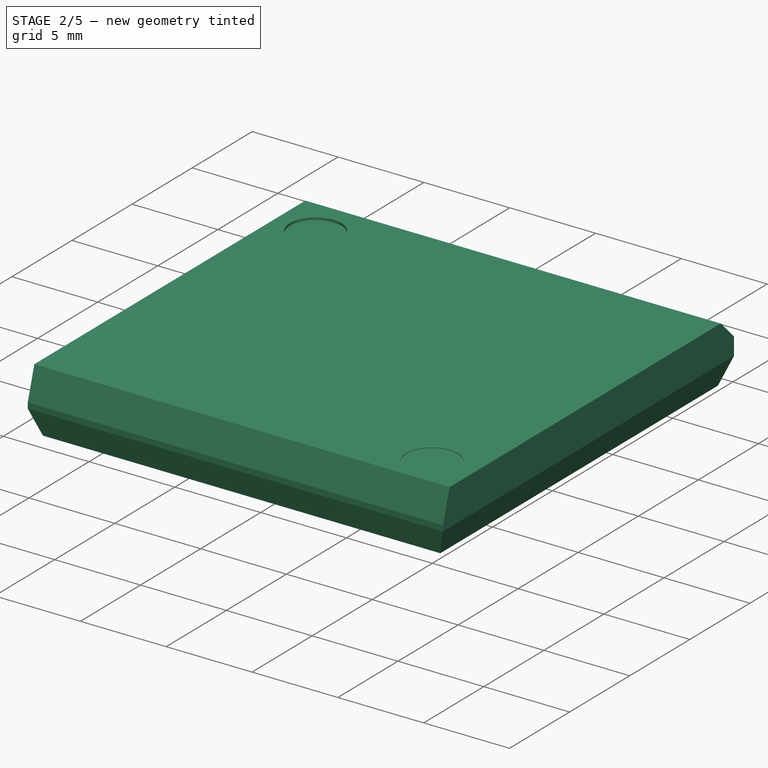
[diagram: stage 2 of 5 — iso view after this stage's code; geometry added in this stage tinted green]
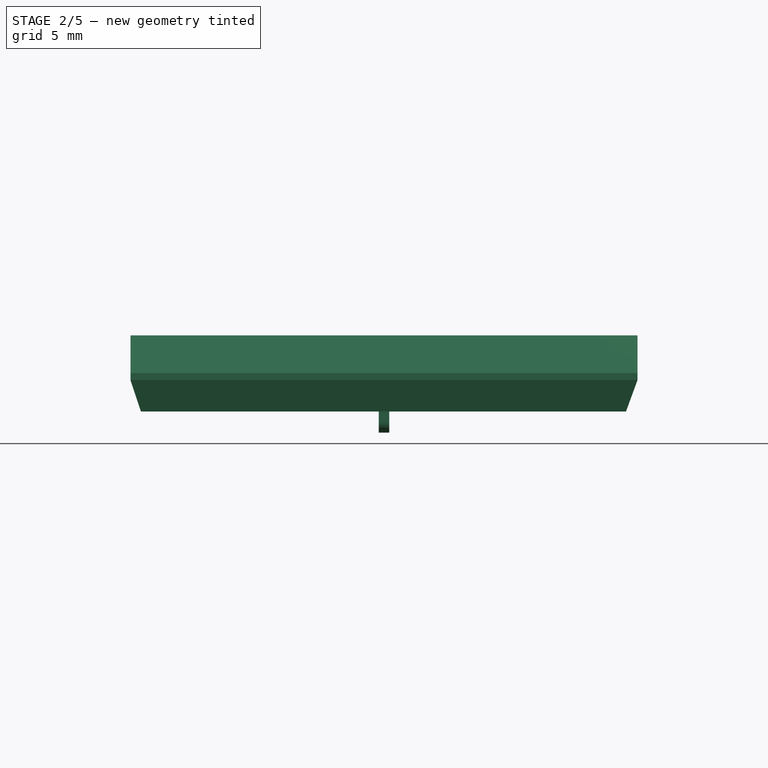
[diagram: stage 2 of 5 — front view after this stage's code; geometry added in this stage tinted green]
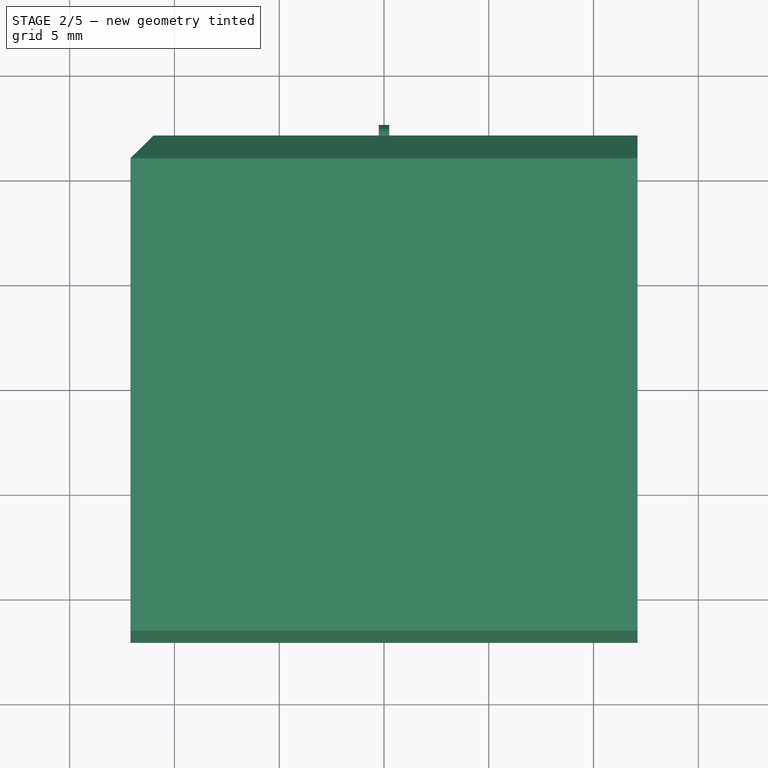
[diagram: stage 2 of 5 — top view after this stage's code; geometry added in this stage tinted green]
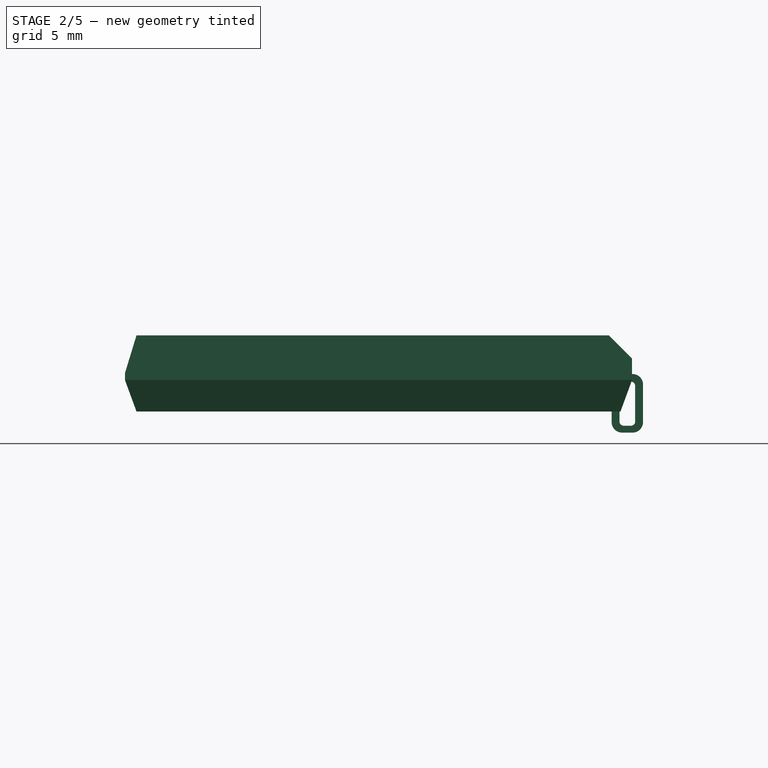
[diagram: stage 2 of 5 — right view after this stage's code; geometry added in this stage tinted green]
FEATURE [PartDesign::AdditiveBox] Box114
  AttacherType = Attacher::AttachEngine3D
  AttachmentOffset = pos=(-0.25,11.125,0) rot=(0,0,1;0rad)
  Height = 2.795
  Length = 0.5
  MapMode = 5
  Placement = pos=(-0.25,11.125,0) rot=(0,0,1;0rad)
  Support = -> [XY_Plane041]
  Width = 1.5
FEATURE [PartDesign::Fillet] Fillet277
  Base = -> Box114 [Edge11]
  BaseFeature = -> Box114
  Placement = pos=(-0.25,11.125,0) rot=(0,0,1;0rad)
  Radius = 0.5
  SupportTransform = false
FEATURE [PartDesign::Fillet] Fillet280
  Base = -> Fillet277 [Edge8]
  BaseFeature = -> Fillet277
  Placement = pos=(-0.25,11.125,0) rot=(0,0,1;0rad)
  Radius = 0.5
  SupportTransform = false
FEATURE [PartDesign::Fillet] Fillet276
  Base = -> Fillet280 [Edge16]
  BaseFeature = -> Fillet280
  Placement = pos=(-0.25,11.125,0) rot=(0,0,1;0rad)
  Radius = 0.5
  SupportTransform = false
FEATURE [PartDesign::SubtractiveBox] Box104
  AttacherType = Attacher::AttachEngine3D
  AttachmentOffset = pos=(11.5,0.33,-0.5) rot=(0,0,1;0rad)
  BaseFeature = -> Fillet276
  Height = 1
  Length = 0.75
  MapMode = 5
  Placement = pos=(-0.5,11.5,0.33) rot=(0.57735,0.57735,0.57735;2.0944rad)
  Support = -> [YZ_Plane040]
  Width = 2.1
FEATURE [PartDesign::Fillet] Fillet278
  Base = -> Box104 [Edge28]
  BaseFeature = -> Box104
  Placement = pos=(-0.5,11.5,0.33) rot=(0.57735,0.57735,0.57735;2.0944rad)
  Radius = 0.2
  SupportTransform = false
FEATURE [PartDesign::AdditiveBox] Box128
  AttacherType = Attacher::AttachEngine3D
  AttachmentOffset = pos=(-0.25,11.125,0) rot=(0,0,1;0rad)
  Height = 2.795
  Length = 0.5
  MapMode = 5
  Placement = pos=(-0.25,11.125,0) rot=(0,0,1;0rad)
  Support = -> [XY_Plane058]
  Width = 1.5
FEATURE [PartDesign::AdditiveBox] Box129
  AttacherType = Attacher::AttachEngine3D
  AttachmentOffset = pos=(-0.25,11.125,0) rot=(0,0,1;0rad)
  Height = 2.795
  Length = 0.5
  MapMode = 5
  Placement = pos=(-0.25,11.125,0) rot=(0,0,1;0rad)
  Support = -> [XY_Plane053]
  Width = 1.5
FEATURE [PartDesign::AdditiveBox] Box130
  AttacherType = Attacher::AttachEngine3D
  AttachmentOffset = pos=(-0.25,11.125,0) rot=(0,0,1;0rad)
  Height = 2.795
  Length = 0.5
  MapMode = 5
  Placement = pos=(-0.25,11.125,0) rot=(0,0,1;0rad)
  Support = -> [XY_Plane052]
  Width = 1.5
FEATURE [PartDesign::AdditiveBox] Box135
  AttacherType = Attacher::AttachEngine3D
  AttachmentOffset = pos=(-0.25,11.125,0) rot=(0,0,1;0rad)
  Height = 2.795
  Length = 0.5
  MapMode = 5
  Placement = pos=(-0.25,11.125,0) rot=(0,0,1;0rad)
  Support = -> [XY_Plane057]
  Width = 1.5
FEATURE [PartDesign::AdditiveBox] Box137
  AttacherType = Attacher::AttachEngine3D
  AttachmentOffset = pos=(-0.25,11.125,0) rot=(0,0,1;0rad)
  Height = 2.795
  Length = 0.5
  MapMode = 5
  Placement = pos=(-0.25,11.125,0) rot=(0,0,1;0rad)
  Support = -> [XY_Plane056]
  Width = 1.5
FEATURE [PartDesign::AdditiveBox] Box138
  AttacherType = Attacher::AttachEngine3D
  AttachmentOffset = pos=(-0.25,11.125,0) rot=(0,0,1;0rad)
  Height = 2.795
  Length = 0.5
  MapMode = 5
  Placement = pos=(-0.25,11.125,0) rot=(0,0,1;0rad)
  Support = -> [XY_Plane060]
  Width = 1.5
FEATURE [PartDesign::AdditiveBox] Box141
  AttacherType = Attacher::AttachEngine3D
  AttachmentOffset = pos=(-0.25,11.125,0) rot=(0,0,1;0rad)
  Height = 2.795
  Length = 0.5
  MapMode = 5
  Placement = pos=(-0.25,11.125,0) rot=(0,0,1;0rad)
  Support = -> [XY_Plane059]
  Width = 1.5
FEATURE [PartDesign::AdditiveBox] Box144
  AttacherType = Attacher::AttachEngine3D
  AttachmentOffset = pos=(-0.25,11.125,0) rot=(0,0,1;0rad)
  Height = 2.795
  Length = 0.5
  MapMode = 5
  Placement = pos=(-0.25,11.125,0) rot=(0,0,1;0rad)
  Support = -> [XY_Plane054]
  Width = 1.5
FEATURE [PartDesign::AdditiveBox] Box151
  AttacherType = Attacher::AttachEngine3D
  AttachmentOffset = pos=(-0.25,11.125,0) rot=(0,0,1;0rad)
  Height = 2.795
  Length = 0.5
  MapMode = 5
  Placement = pos=(-0.25,11.125,0) rot=(0,0,1;0rad)
  Support = -> [XY_Plane062]
  Width = 1.5
FEATURE [PartDesign::AdditiveBox] Box162
  AttacherType = Attacher::AttachEngine3D
  AttachmentOffset = pos=(-0.25,11.125,0) rot=(0,0,1;0rad)
  Height = 2.795
  Length = 0.5
  MapMode = 5
  Placement = pos=(-0.25,11.125,0) rot=(0,0,1;0rad)
  Support = -> [XY_Plane049]
  Width = 1.5
FEATURE [PartDesign::AdditiveBox] Box165
  AttacherType = Attacher::AttachEngine3D
  AttachmentOffset = pos=(-0.25,11.125,0) rot=(0,0,1;0rad)
  Height = 2.795
  Length = 0.5
  MapMode = 5
  Placement = pos=(-0.25,11.125,0) rot=(0,0,1;0rad)
  Support = -> [XY_Plane064]
  Width = 1.5
FEATURE [PartDesign::AdditiveBox] Box169
  AttacherType = Attacher::AttachEngine3D
  AttachmentOffset = pos=(-0.25,11.125,0) rot=(0,0,1;0rad)
  Height = 2.795
  Length = 0.5
  MapMode = 5
  Placement = pos=(-0.25,11.125,0) rot=(0,0,1;0rad)
  Support = -> [XY_Plane065]
  Width = 1.5
FEATURE [PartDesign::AdditiveBox] Box173
  AttacherType = Attacher::AttachEngine3D
  AttachmentOffset = pos=(-0.25,11.125,0) rot=(0,0,1;0rad)
  Height = 2.795
  Length = 0.5
  MapMode = 5
  Placement = pos=(-0.25,11.125,0) rot=(0,0,1;0rad)
  Support = -> [XY_Plane061]
  Width = 1.5
FEATURE [Sketcher::SketchObject] Sketch036
  FullyConstrained = false
  MapMode = 5
  Support = -> [XY_Plane051]
  sketch-geometry (8):
    g0: LineSegment StartX=-0.3 StartY=-12.5 StartZ=0 EndX=0.3 EndY=-12.5 EndZ=0
    g1: LineSegment StartX=0.3 StartY=-12.5 StartZ=0 EndX=0.3 EndY=-11.1 EndZ=0
    g2: LineSegment StartX=0.3 StartY=-11.1 StartZ=0 EndX=-0.3 EndY=-11.1 EndZ=0
    g3: LineSegment StartX=-0.3 StartY=-11.1 StartZ=0 EndX=-0.3 EndY=-12.5 EndZ=0
    g4: LineSegment StartX=-0.2 StartY=-12.4 StartZ=0 EndX=0.2 EndY=-12.4 EndZ=0
    g5: LineSegment StartX=0.2 StartY=-12.4 StartZ=0 EndX=0.2 EndY=-11.2 EndZ=0
    g6: LineSegment StartX=0.2 StartY=-11.2 StartZ=0 EndX=-0.2 EndY=-11.2 EndZ=0
    g7: LineSegment StartX=-0.2 StartY=-11.2 StartZ=0 EndX=-0.2 EndY=-12.4 EndZ=0
  constraints (16):
    c: Coincident(g0,g1)
    c: Coincident(g1,g2)
    c: Coincident(g2,g3)
    c: Coincident(g3,g0)
    c: Horizontal(g0)
    c: Horizontal(g2)
    c: Vertical(g1)
    c: Vertical(g3)
    c: Coincident(g4,g5)
    c: Coincident(g5,g6)
    c: Coincident(g6,g7)
    c: Coincident(g7,g4)
    c: Horizontal(g4)
    c: Horizontal(g6)
    c: Vertical(g5)
    c: Vertical(g7)
FEATURE [PartDesign::Body] Body041  label="Leg040"
  Group = -> [Sketch036,Box103,Fillet289,Fillet284,Fillet288,Box108,Fillet291,Fillet292,Fillet286,Fillet290,Box110]
  Origin = -> Origin057
  Placement = pos=(2.54,0,0) rot=(0,0,1;0rad)
  Tip = -> Box110
FEATURE [Sketcher::SketchObject] Sketch037
  FullyConstrained = false
  MapMode = 5
  Support = -> [XY_Plane038]
  sketch-geometry (8):
    g0: LineSegment StartX=-0.3 StartY=-12.5 StartZ=0 EndX=0.3 EndY=-12.5 EndZ=0
    g1: LineSegment StartX=0.3 StartY=-12.5 StartZ=0 EndX=0.3 EndY=-11.1 EndZ=0
    g2: LineSegment StartX=0.3 StartY=-11.1 StartZ=0 EndX=-0.3 EndY=-11.1 EndZ=0
    g3: LineSegment StartX=-0.3 StartY=-11.1 StartZ=0 EndX=-0.3 EndY=-12.5 EndZ=0
    g4: LineSegment StartX=-0.2 StartY=-12.4 StartZ=0 EndX=0.2 EndY=-12.4 EndZ=0
    g5: LineSegment StartX=0.2 StartY=-12.4 StartZ=0 EndX=0.2 EndY=-11.2 EndZ=0
    g6: LineSegment StartX=0.2 StartY=-11.2 StartZ=0 EndX=-0.2 EndY=-11.2 EndZ=0
    g7: LineSegment StartX=-0.2 StartY=-11.2 StartZ=0 EndX=-0.2 EndY=-12.4 EndZ=0
  constraints (16):
    c: Coincident(g0,g1)
    c: Coincident(g1,g2)
    c: Coincident(g2,g3)
    c: Coincident(g3,g0)
    c: Horizontal(g0)
    c: Horizontal(g2)
    c: Vertical(g1)
    c: Vertical(g3)
    c: Coincident(g4,g5)
    c: Coincident(g5,g6)
    c: Coincident(g6,g7)
    c: Coincident(g7,g4)
    c: Horizontal(g4)
    c: Horizontal(g6)
    c: Vertical(g5)
    c: Vertical(g7)
FEATURE [PartDesign::Body] Body035  label="Leg034"
  Group = -> [Sketch037,Box122,Fillet248,Fillet257,Fillet244,Box124,Fillet240,Fillet249,Fillet239,Fillet241,Box127]
  Origin = -> Origin056
  Placement = pos=(5.08,0,0) rot=(0,0,1;0rad)
  Tip = -> Box127
FEATURE [Sketcher::SketchObject] Sketch038
  FullyConstrained = false
  MapMode = 5
  Support = -> [XY_Plane054]
  sketch-geometry (8):
    g0: LineSegment StartX=-0.3 StartY=-12.5 StartZ=0 EndX=0.3 EndY=-12.5 EndZ=0
    g1: LineSegment StartX=0.3 StartY=-12.5 StartZ=0 EndX=0.3 EndY=-11.1 EndZ=0
    g2: LineSegment StartX=0.3 StartY=-11.1 StartZ=0 EndX=-0.3 EndY=-11.1 EndZ=0
    g3: LineSegment StartX=-0.3 StartY=-11.1 StartZ=0 EndX=-0.3 EndY=-12.5 EndZ=0
    g4: LineSegment StartX=-0.2 StartY=-12.4 StartZ=0 EndX=0.2 EndY=-12.4 EndZ=0
    g5: LineSegment StartX=0.2 StartY=-12.4 StartZ=0 EndX=0.2 EndY=-11.2 EndZ=0
    g6: LineSegment StartX=0.2 StartY=-11.2 StartZ=0 EndX=-0.2 EndY=-11.2 EndZ=0
    g7: LineSegment StartX=-0.2 StartY=-11.2 StartZ=0 EndX=-0.2 EndY=-12.4 EndZ=0
  constraints (16):
    c: Coincident(g0,g1)
    c: Coincident(g1,g2)
    c: Coincident(g2,g3)
    c: Coincident(g3,g0)
    c: Horizontal(g0)
    c: Horizontal(g2)
    c: Vertical(g1)
    c: Vertical(g3)
    c: Coincident(g4,g5)
    c: Coincident(g5,g6)
    c: Coincident(g6,g7)
    c: Coincident(g7,g4)
    c: Horizontal(g4)
    c: Horizontal(g6)
    c: Vertical(g5)
    c: Vertical(g7)
FEATURE [Sketcher::SketchObject] Sketch039
  FullyConstrained = false
  MapMode = 5
  Support = -> [XY_Plane057]
  sketch-geometry (8):
    g0: LineSegment StartX=-0.3 StartY=-12.5 StartZ=0 EndX=0.3 EndY=-12.5 EndZ=0
    g1: LineSegment StartX=0.3 StartY=-12.5 StartZ=0 EndX=0.3 EndY=-11.1 EndZ=0
    g2: LineSegment StartX=0.3 StartY=-11.1 StartZ=0 EndX=-0.3 EndY=-11.1 EndZ=0
    g3: LineSegment StartX=-0.3 StartY=-11.1 StartZ=0 EndX=-0.3 EndY=-12.5 EndZ=0
    g4: LineSegment StartX=-0.2 StartY=-12.4 StartZ=0 EndX=0.2 EndY=-12.4 EndZ=0
    g5: LineSegment StartX=0.2 StartY=-12.4 StartZ=0 EndX=0.2 EndY=-11.2 EndZ=0
    g6: LineSegment StartX=0.2 StartY=-11.2 StartZ=0 EndX=-0.2 EndY=-11.2 EndZ=0
    g7: LineSegment StartX=-0.2 StartY=-11.2 StartZ=0 EndX=-0.2 EndY=-12.4 EndZ=0
  constraints (16):
    c: Coincident(g0,g1)
    c: Coincident(g1,g2)
    c: Coincident(g2,g3)
    c: Coincident(g3,g0)
    c: Horizontal(g0)
    c: Horizontal(g2)
    c: Vertical(g1)
    c: Vertical(g3)
    c: Coincident(g4,g5)
    c: Coincident(g5,g6)
    c: Coincident(g6,g7)
    c: Coincident(g7,g4)
    c: Horizontal(g4)
    c: Horizontal(g6)
    c: Vertical(g5)
    c: Vertical(g7)
FEATURE [Sketcher::SketchObject] Sketch040
  FullyConstrained = false
  MapMode = 5
  Support = -> [XY_Plane055]
  sketch-geometry (8):
    g0: LineSegment StartX=-0.3 StartY=-12.5 StartZ=0 EndX=0.3 EndY=-12.5 EndZ=0
    g1: LineSegment StartX=0.3 StartY=-12.5 StartZ=0 EndX=0.3 EndY=-11.1 EndZ=0
    g2: LineSegment StartX=0.3 StartY=-11.1 StartZ=0 EndX=-0.3 EndY=-11.1 EndZ=0
    g3: LineSegment StartX=-0.3 StartY=-11.1 StartZ=0 EndX=-0.3 EndY=-12.5 EndZ=0
    g4: LineSegment StartX=-0.2 StartY=-12.4 StartZ=0 EndX=0.2 EndY=-12.4 EndZ=0
    g5: LineSegment StartX=0.2 StartY=-12.4 StartZ=0 EndX=0.2 EndY=-11.2 EndZ=0
    g6: LineSegment StartX=0.2 StartY=-11.2 StartZ=0 EndX=-0.2 EndY=-11.2 EndZ=0
    g7: LineSegment StartX=-0.2 StartY=-11.2 StartZ=0 EndX=-0.2 EndY=-12.4 EndZ=0
  constraints (16):
    c: Coincident(g0,g1)
    c: Coincident(g1,g2)
    c: Coincident(g2,g3)
    c: Coincident(g3,g0)
    c: Horizontal(g0)
    c: Horizontal(g2)
    c: Vertical(g1)
    c: Vertical(g3)
    c: Coincident(g4,g5)
    c: Coincident(g5,g6)
    c: Coincident(g6,g7)
    c: Coincident(g7,g4)
    c: Horizontal(g4)
    c: Horizontal(g6)
    c: Vertical(g5)
    c: Vertical(g7)
FEATURE [PartDesign::Body] Body040  label="Leg039"
  Group = -> [Sketch040,Box106,Fillet283,Fillet287,Fillet279,Box105,Fillet274,Fillet296,Fillet282,Fillet273,Box107]
  Origin = -> Origin051
  Placement = pos=(1.27,0,0) rot=(0,0,1;0rad)
  Tip = -> Box107
FEATURE [Sketcher::SketchObject] Sketch041
  FullyConstrained = false
  MapMode = 5
  Support = -> [XY_Plane072]
  sketch-geometry (8):
    g0: LineSegment StartX=-0.3 StartY=-12.5 StartZ=0 EndX=0.3 EndY=-12.5 EndZ=0
    g1: LineSegment StartX=0.3 StartY=-12.5 StartZ=0 EndX=0.3 EndY=-11.1 EndZ=0
    g2: LineSegment StartX=0.3 StartY=-11.1 StartZ=0 EndX=-0.3 EndY=-11.1 EndZ=0
    g3: LineSegment StartX=-0.3 StartY=-11.1 StartZ=0 EndX=-0.3 EndY=-12.5 EndZ=0
    g4: LineSegment StartX=-0.2 StartY=-12.4 StartZ=0 EndX=0.2 EndY=-12.4 EndZ=0
    g5: LineSegment StartX=0.2 StartY=-12.4 StartZ=0 EndX=0.2 EndY=-11.2 EndZ=0
    g6: LineSegment StartX=0.2 StartY=-11.2 StartZ=0 EndX=-0.2 EndY=-11.2 EndZ=0
    g7: LineSegment StartX=-0.2 StartY=-11.2 StartZ=0 EndX=-0.2 EndY=-12.4 EndZ=0
  constraints (16):
    c: Coincident(g0,g1)
    c: Coincident(g1,g2)
    c: Coincident(g2,g3)
    c: Coincident(g3,g0)
    c: Horizontal(g0)
    c: Horizontal(g2)
    c: Vertical(g1)
    c: Vertical(g3)
    c: Coincident(g4,g5)
    c: Coincident(g5,g6)
    c: Coincident(g6,g7)
    c: Coincident(g7,g4)
    c: Horizontal(g4)
    c: Horizontal(g6)
    c: Vertical(g5)
    c: Vertical(g7)
FEATURE [PartDesign::Body] Body036  label="Leg035"
  Group = -> [Sketch041,Box115,Fillet246,Fillet263,Fillet256,Box125,Fillet247,Fillet266,Fillet253,Fillet245,Box120]
  Origin = -> Origin058
  Placement = pos=(-1.27,0,0) rot=(0,0,1;0rad)
  Tip = -> Box120
FEATURE [Sketcher::SketchObject] Sketch042
  FullyConstrained = false
  MapMode = 5
  Support = -> [XY_Plane037]
  sketch-geometry (8):
    g0: LineSegment StartX=-0.3 StartY=-12.5 StartZ=0 EndX=0.3 EndY=-12.5 EndZ=0
    g1: LineSegment StartX=0.3 StartY=-12.5 StartZ=0 EndX=0.3 EndY=-11.1 EndZ=0
    g2: LineSegment StartX=0.3 StartY=-11.1 StartZ=0 EndX=-0.3 EndY=-11.1 EndZ=0
    g3: LineSegment StartX=-0.3 StartY=-11.1 StartZ=0 EndX=-0.3 EndY=-12.5 EndZ=0
    g4: LineSegment StartX=-0.2 StartY=-12.4 StartZ=0 EndX=0.2 EndY=-12.4 EndZ=0
    g5: LineSegment StartX=0.2 StartY=-12.4 StartZ=0 EndX=0.2 EndY=-11.2 EndZ=0
    g6: LineSegment StartX=0.2 StartY=-11.2 StartZ=0 EndX=-0.2 EndY=-11.2 EndZ=0
    g7: LineSegment StartX=-0.2 StartY=-11.2 StartZ=0 EndX=-0.2 EndY=-12.4 EndZ=0
  constraints (16):
    c: Coincident(g0,g1)
    c: Coincident(g1,g2)
    c: Coincident(g2,g3)
    c: Coincident(g3,g0)
    c: Horizontal(g0)
    c: Horizontal(g2)
    c: Vertical(g1)
    c: Vertical(g3)
    c: Coincident(g4,g5)
    c: Coincident(g5,g6)
    c: Coincident(g6,g7)
    c: Coincident(g7,g4)
    c: Horizontal(g4)
    c: Horizontal(g6)
    c: Vertical(g5)
    c: Vertical(g7)
FEATURE [PartDesign::Body] Body037  label="Leg036"
  Group = -> [Sketch042,Box113,Fillet252,Fillet251,Fillet259,Box121,Fillet262,Fillet264,Fillet260,Fillet261,Box123]
  Origin = -> Origin060
  Placement = pos=(6.35,0,0) rot=(0,0,1;0rad)
  Tip = -> Box123
FEATURE [Sketcher::SketchObject] Sketch043
  FullyConstrained = false
  MapMode = 5
  Support = -> [XY_Plane039]
  sketch-geometry (8):
    g0: LineSegment StartX=-0.3 StartY=-12.5 StartZ=0 EndX=0.3 EndY=-12.5 EndZ=0
    g1: LineSegment StartX=0.3 StartY=-12.5 StartZ=0 EndX=0.3 EndY=-11.1 EndZ=0
    g2: LineSegment StartX=0.3 StartY=-11.1 StartZ=0 EndX=-0.3 EndY=-11.1 EndZ=0
    g3: LineSegment StartX=-0.3 StartY=-11.1 StartZ=0 EndX=-0.3 EndY=-12.5 EndZ=0
    g4: LineSegment StartX=-0.2 StartY=-12.4 StartZ=0 EndX=0.2 EndY=-12.4 EndZ=0
    g5: LineSegment StartX=0.2 StartY=-12.4 StartZ=0 EndX=0.2 EndY=-11.2 EndZ=0
    g6: LineSegment StartX=0.2 StartY=-11.2 StartZ=0 EndX=-0.2 EndY=-11.2 EndZ=0
    g7: LineSegment StartX=-0.2 StartY=-11.2 StartZ=0 EndX=-0.2 EndY=-12.4 EndZ=0
  constraints (16):
    c: Coincident(g0,g1)
    c: Coincident(g1,g2)
    c: Coincident(g2,g3)
    c: Coincident(g3,g0)
    c: Horizontal(g0)
    c: Horizontal(g2)
    c: Vertical(g1)
    c: Vertical(g3)
    c: Coincident(g4,g5)
    c: Coincident(g5,g6)
    c: Coincident(g6,g7)
    c: Coincident(g7,g4)
    c: Horizontal(g4)
    c: Horizontal(g6)
    c: Vertical(g5)
    c: Vertical(g7)
FEATURE [PartDesign::Body] Body038  label="Leg037"
  Group = -> [Sketch043,Box119,Fillet243,Fillet254,Fillet265,Box116,Fillet268,Fillet255,Fillet250,Fillet267,Box126]
  Origin = -> Origin059
  Placement = pos=(7.62,0,0) rot=(0,0,1;0rad)
  Tip = -> Box126
FEATURE [Sketcher::SketchObject] Sketch044
  FullyConstrained = false
  MapMode = 5
  Support = -> [XY_Plane040]
  sketch-geometry (8):
    g0: LineSegment StartX=-0.3 StartY=-12.5 StartZ=0 EndX=0.3 EndY=-12.5 EndZ=0
    g1: LineSegment StartX=0.3 StartY=-12.5 StartZ=0 EndX=0.3 EndY=-11.1 EndZ=0
    g2: LineSegment StartX=0.3 StartY=-11.1 StartZ=0 EndX=-0.3 EndY=-11.1 EndZ=0
    g3: LineSegment StartX=-0.3 StartY=-11.1 StartZ=0 EndX=-0.3 EndY=-12.5 EndZ=0
    g4: LineSegment StartX=-0.2 StartY=-12.4 StartZ=0 EndX=0.2 EndY=-12.4 EndZ=0
    g5: LineSegment StartX=0.2 StartY=-12.4 StartZ=0 EndX=0.2 EndY=-11.2 EndZ=0
    g6: LineSegment StartX=0.2 StartY=-11.2 StartZ=0 EndX=-0.2 EndY=-11.2 EndZ=0
    g7: LineSegment StartX=-0.2 StartY=-11.2 StartZ=0 EndX=-0.2 EndY=-12.4 EndZ=0
  constraints (16):
    c: Coincident(g0,g1)
    c: Coincident(g1,g2)
    c: Coincident(g2,g3)
    c: Coincident(g3,g0)
    c: Horizontal(g0)
    c: Horizontal(g2)
    c: Vertical(g1)
    c: Vertical(g3)
    c: Coincident(g4,g5)
    c: Coincident(g5,g6)
    c: Coincident(g6,g7)
    c: Coincident(g7,g4)
    c: Horizontal(g4)
    c: Horizontal(g6)
    c: Vertical(g5)
    c: Vertical(g7)
FEATURE [PartDesign::Body] Body042  label="Leg041"
  Group = -> [Sketch044,Box111,Fillet285,Fillet238,Fillet295,Box109,Fillet297,Fillet242,Fillet293,Fillet294,Box112]
  Origin = -> Origin055
  Placement = pos=(3.81,0,0) rot=(0,0,1;0rad)
  Tip = -> Box112
FEATURE [Sketcher::SketchObject] Sketch045
  FullyConstrained = false
  MapMode = 5
  Support = -> [XY_Plane058]
  sketch-geometry (8):
    g0: LineSegment StartX=-0.3 StartY=-12.5 StartZ=0 EndX=0.3 EndY=-12.5 EndZ=0
    g1: LineSegment StartX=0.3 StartY=-12.5 StartZ=0 EndX=0.3 EndY=-11.1 EndZ=0
    g2: LineSegment StartX=0.3 StartY=-11.1 StartZ=0 EndX=-0.3 EndY=-11.1 EndZ=0
    g3: LineSegment StartX=-0.3 StartY=-11.1 StartZ=0 EndX=-0.3 EndY=-12.5 EndZ=0
    g4: LineSegment StartX=-0.2 StartY=-12.4 StartZ=0 EndX=0.2 EndY=-12.4 EndZ=0
    g5: LineSegment StartX=0.2 StartY=-12.4 StartZ=0 EndX=0.2 EndY=-11.2 EndZ=0
    g6: LineSegment StartX=0.2 StartY=-11.2 StartZ=0 EndX=-0.2 EndY=-11.2 EndZ=0
    g7: LineSegment StartX=-0.2 StartY=-11.2 StartZ=0 EndX=-0.2 EndY=-12.4 EndZ=0
  constraints (16):
    c: Coincident(g0,g1)
    c: Coincident(g1,g2)
    c: Coincident(g2,g3)
    c: Coincident(g3,g0)
    c: Horizontal(g0)
    c: Horizontal(g2)
    c: Vertical(g1)
    c: Vertical(g3)
    c: Coincident(g4,g5)
    c: Coincident(g5,g6)
    c: Coincident(g6,g7)
    c: Coincident(g7,g4)
    c: Horizontal(g4)
    c: Horizontal(g6)
    c: Vertical(g5)
    c: Vertical(g7)
FEATURE [Sketcher::SketchObject] Sketch046
  FullyConstrained = false
  MapMode = 5
  Support = -> [XY_Plane060]
  sketch-geometry (8):
    g0: LineSegment StartX=-0.3 StartY=-12.5 StartZ=0 EndX=0.3 EndY=-12.5 EndZ=0
    g1: LineSegment StartX=0.3 StartY=-12.5 StartZ=0 EndX=0.3 EndY=-11.1 EndZ=0
    g2: LineSegment StartX=0.3 StartY=-11.1 StartZ=0 EndX=-0.3 EndY=-11.1 EndZ=0
    g3: LineSegment StartX=-0.3 StartY=-11.1 StartZ=0 EndX=-0.3 EndY=-12.5 EndZ=0
    g4: LineSegment StartX=-0.2 StartY=-12.4 StartZ=0 EndX=0.2 EndY=-12.4 EndZ=0
    g5: LineSegment StartX=0.2 StartY=-12.4 StartZ=0 EndX=0.2 EndY=-11.2 EndZ=0
    g6: LineSegment StartX=0.2 StartY=-11.2 StartZ=0 EndX=-0.2 EndY=-11.2 EndZ=0
    g7: LineSegment StartX=-0.2 StartY=-11.2 StartZ=0 EndX=-0.2 EndY=-12.4 EndZ=0
  constraints (16):
    c: Coincident(g0,g1)
    c: Coincident(g1,g2)
    c: Coincident(g2,g3)
    c: Coincident(g3,g0)
    c: Horizontal(g0)
    c: Horizontal(g2)
    c: Vertical(g1)
    c: Vertical(g3)
    c: Coincident(g4,g5)
    c: Coincident(g5,g6)
    c: Coincident(g6,g7)
    c: Coincident(g7,g4)
    c: Horizontal(g4)
    c: Horizontal(g6)
    c: Vertical(g5)
    c: Vertical(g7)
FEATURE [Sketcher::SketchObject] Sketch047
  FullyConstrained = false
  MapMode = 5
  Support = -> [XY_Plane052]
  sketch-geometry (8):
    g0: LineSegment StartX=-0.3 StartY=-12.5 StartZ=0 EndX=0.3 EndY=-12.5 EndZ=0
    g1: LineSegment StartX=0.3 StartY=-12.5 StartZ=0 EndX=0.3 EndY=-11.1 EndZ=0
    g2: LineSegment StartX=0.3 StartY=-11.1 StartZ=0 EndX=-0.3 EndY=-11.1 EndZ=0
    g3: LineSegment StartX=-0.3 StartY=-11.1 StartZ=0 EndX=-0.3 EndY=-12.5 EndZ=0
    g4: LineSegment StartX=-0.2 StartY=-12.4 StartZ=0 EndX=0.2 EndY=-12.4 EndZ=0
    g5: LineSegment StartX=0.2 StartY=-12.4 StartZ=0 EndX=0.2 EndY=-11.2 EndZ=0
    g6: LineSegment StartX=0.2 StartY=-11.2 StartZ=0 EndX=-0.2 EndY=-11.2 EndZ=0
    g7: LineSegment StartX=-0.2 StartY=-11.2 StartZ=0 EndX=-0.2 EndY=-12.4 EndZ=0
  constraints (16):
    c: Coincident(g0,g1)
    c: Coincident(g1,g2)
    c: Coincident(g2,g3)
    c: Coincident(g3,g0)
    c: Horizontal(g0)
    c: Horizontal(g2)
    c: Vertical(g1)
    c: Vertical(g3)
    c: Coincident(g4,g5)
    c: Coincident(g5,g6)
    c: Coincident(g6,g7)
    c: Coincident(g7,g4)
    c: Horizontal(g4)
    c: Horizontal(g6)
    c: Vertical(g5)
    c: Vertical(g7)
FEATURE [Sketcher::SketchObject] Sketch048
  FullyConstrained = false
  MapMode = 5
  Support = -> [XY_Plane053]
  sketch-geometry (8):
    g0: LineSegment StartX=-0.3 StartY=-12.5 StartZ=0 EndX=0.3 EndY=-12.5 EndZ=0
    g1: LineSegment StartX=0.3 StartY=-12.5 StartZ=0 EndX=0.3 EndY=-11.1 EndZ=0
    g2: LineSegment StartX=0.3 StartY=-11.1 StartZ=0 EndX=-0.3 EndY=-11.1 EndZ=0
    g3: LineSegment StartX=-0.3 StartY=-11.1 StartZ=0 EndX=-0.3 EndY=-12.5 EndZ=0
    g4: LineSegment StartX=-0.2 StartY=-12.4 StartZ=0 EndX=0.2 EndY=-12.4 EndZ=0
    g5: LineSegment StartX=0.2 StartY=-12.4 StartZ=0 EndX=0.2 EndY=-11.2 EndZ=0
    g6: LineSegment StartX=0.2 StartY=-11.2 StartZ=0 EndX=-0.2 EndY=-11.2 EndZ=0
    g7: LineSegment StartX=-0.2 StartY=-11.2 StartZ=0 EndX=-0.2 EndY=-12.4 EndZ=0
  constraints (16):
    c: Coincident(g0,g1)
    c: Coincident(g1,g2)
    c: Coincident(g2,g3)
    c: Coincident(g3,g0)
    c: Horizontal(g0)
    c: Horizontal(g2)
    c: Vertical(g1)
    c: Vertical(g3)
    c: Coincident(g4,g5)
    c: Coincident(g5,g6)
    c: Coincident(g6,g7)
    c: Coincident(g7,g4)
    c: Horizontal(g4)
    c: Horizontal(g6)
    c: Vertical(g5)
    c: Vertical(g7)
FEATURE [PartDesign::Fillet] Fillet301
  Base = -> Box144 [Edge11]
  BaseFeature = -> Box144
  Placement = pos=(-0.25,11.125,0) rot=(0,0,1;0rad)
  Radius = 0.5
  SupportTransform = false
FEATURE [PartDesign::Fillet] Fillet302
  Base = -> Box129 [Edge11]
  BaseFeature = -> Box129
  Placement = pos=(-0.25,11.125,0) rot=(0,0,1;0rad)
  Radius = 0.5
  SupportTransform = false
FEATURE [PartDesign::Fillet] Fillet304
  Base = -> Box130 [Edge11]
  BaseFeature = -> Box130
  Placement = pos=(-0.25,11.125,0) rot=(0,0,1;0rad)
  Radius = 0.5
  SupportTransform = false
FEATURE [PartDesign::Fillet] Fillet308
  Base = -> Box138 [Edge11]
  BaseFeature = -> Box138
  Placement = pos=(-0.25,11.125,0) rot=(0,0,1;0rad)
  Radius = 0.5
  SupportTransform = false
FEATURE [PartDesign::Fillet] Fillet311
  Base = -> Fillet304 [Edge8]
  BaseFeature = -> Fillet304
  Placement = pos=(-0.25,11.125,0) rot=(0,0,1;0rad)
  Radius = 0.5
  SupportTransform = false
FEATURE [PartDesign::Fillet] Fillet313
  Base = -> Fillet302 [Edge8]
  BaseFeature = -> Fillet302
  Placement = pos=(-0.25,11.125,0) rot=(0,0,1;0rad)
  Radius = 0.5
  SupportTransform = false
FEATURE [PartDesign::Fillet] Fillet314
  Base = -> Box141 [Edge11]
  BaseFeature = -> Box141
  Placement = pos=(-0.25,11.125,0) rot=(0,0,1;0rad)
  Radius = 0.5
  SupportTransform = false
FEATURE [PartDesign::Fillet] Fillet316
  Base = -> Fillet311 [Edge16]
  BaseFeature = -> Fillet311
  Placement = pos=(-0.25,11.125,0) rot=(0,0,1;0rad)
  Radius = 0.5
  SupportTransform = false
FEATURE [PartDesign::SubtractiveBox] Box153
  AttacherType = Attacher::AttachEngine3D
  AttachmentOffset = pos=(11.5,0.33,-0.5) rot=(0,0,1;0rad)
  BaseFeature = -> Fillet316
  Height = 1
  Length = 0.75
  MapMode = 5
  Placement = pos=(-0.5,11.5,0.33) rot=(0.57735,0.57735,0.57735;2.0944rad)
  Support = -> [YZ_Plane058]
  Width = 2.1
FEATURE [PartDesign::Fillet] Fillet319
  Base = -> Fillet308 [Edge8]
  BaseFeature = -> Fillet308
  Placement = pos=(-0.25,11.125,0) rot=(0,0,1;0rad)
  Radius = 0.5
  SupportTransform = false
FEATURE [PartDesign::Fillet] Fillet305
  Base = -> Fillet319 [Edge16]
  BaseFeature = -> Fillet319
  Placement = pos=(-0.25,11.125,0) rot=(0,0,1;0rad)
  Radius = 0.5
  SupportTransform = false
FEATURE [PartDesign::SubtractiveBox] Box152
  AttacherType = Attacher::AttachEngine3D
  AttachmentOffset = pos=(11.5,0.33,-0.5) rot=(0,0,1;0rad)
  BaseFeature = -> Fillet305
  Height = 1
  Length = 0.75
  MapMode = 5
  Placement = pos=(-0.5,11.5,0.33) rot=(0.57735,0.57735,0.57735;2.0944rad)
  Support = -> [YZ_Plane050]
  Width = 2.1
FEATURE [PartDesign::Fillet] Fillet299
  Base = -> Box152 [Edge28]
  BaseFeature = -> Box152
  Placement = pos=(-0.5,11.5,0.33) rot=(0.57735,0.57735,0.57735;2.0944rad)
  Radius = 0.2
  SupportTransform = false
FEATURE [PartDesign::Fillet] Fillet321
  Base = -> Fillet301 [Edge8]
  BaseFeature = -> Fillet301
  Placement = pos=(-0.25,11.125,0) rot=(0,0,1;0rad)
  Radius = 0.5
  SupportTransform = false
FEATURE [PartDesign::Fillet] Fillet300
  Base = -> Fillet321 [Edge16]
  BaseFeature = -> Fillet321
  Placement = pos=(-0.25,11.125,0) rot=(0,0,1;0rad)
  Radius = 0.5
  SupportTransform = false
FEATURE [PartDesign::SubtractiveBox] Box142
  AttacherType = Attacher::AttachEngine3D
  AttachmentOffset = pos=(11.5,0.33,-0.5) rot=(0,0,1;0rad)
  BaseFeature = -> Fillet300
  Height = 1
  Length = 0.75
  MapMode = 5
  Placement = pos=(-0.5,11.5,0.33) rot=(0.57735,0.57735,0.57735;2.0944rad)
  Support = -> [YZ_Plane054]
  Width = 2.1
FEATURE [PartDesign::Fillet] Fillet271
  Base = -> Box142 [Edge28]
  BaseFeature = -> Box142
  Placement = pos=(-0.5,11.5,0.33) rot=(0.57735,0.57735,0.57735;2.0944rad)
  Radius = 0.2
  SupportTransform = false
FEATURE [PartDesign::Fillet] Fillet309
  Base = -> Fillet271 [Edge15]
  BaseFeature = -> Fillet271
  Placement = pos=(-0.5,11.5,0.33) rot=(0.57735,0.57735,0.57735;2.0944rad)
  Radius = 0.2
  SupportTransform = false
FEATURE [PartDesign::Fillet] Fillet270
  Base = -> Fillet309 [Edge24]
  BaseFeature = -> Fillet309
  Placement = pos=(-0.5,11.5,0.33) rot=(0.57735,0.57735,0.57735;2.0944rad)
  Radius = 0.2
  SupportTransform = false
FEATURE [PartDesign::Fillet] Fillet306
  Base = -> Fillet270 [Edge23]
  BaseFeature = -> Fillet270
  Placement = pos=(-0.5,11.5,0.33) rot=(0.57735,0.57735,0.57735;2.0944rad)
  Radius = 0.2
  SupportTransform = false
FEATURE [PartDesign::SubtractiveBox] Box149
  AttacherType = Attacher::AttachEngine3D
  AttachmentOffset = pos=(11,0.855,-1) rot=(0,0,1;0rad)
  BaseFeature = -> Fillet306
  Height = 3
  Length = 1
  MapMode = 5
  Placement = pos=(-1,11,0.855) rot=(0.57735,0.57735,0.57735;2.0944rad)
  Support = -> [YZ_Plane054]
  Width = 1.575
FEATURE [PartDesign::Body] Body045  label="Leg044"
  Group = -> [Sketch038,Box144,Fillet301,Fillet321,Fillet300,Box142,Fillet271,Fillet309,Fillet270,Fillet306,Box149]
  Origin = -> Origin052
  Placement = pos=(-5.08,0,0) rot=(0,0,1;0rad)
  Tip = -> Box149
FEATURE [PartDesign::Fillet] Fillet324
  Base = -> Box153 [Edge28]
  BaseFeature = -> Box153
  Placement = pos=(-0.5,11.5,0.33) rot=(0.57735,0.57735,0.57735;2.0944rad)
  Radius = 0.2
  SupportTransform = false
FEATURE [PartDesign::Fillet] Fillet318
  Base = -> Fillet324 [Edge15]
  BaseFeature = -> Fillet324
  Placement = pos=(-0.5,11.5,0.33) rot=(0.57735,0.57735,0.57735;2.0944rad)
  Radius = 0.2
  SupportTransform = false
FEATURE [PartDesign::Fillet] Fillet317
  Base = -> Fillet318 [Edge24]
  BaseFeature = -> Fillet318
  Placement = pos=(-0.5,11.5,0.33) rot=(0.57735,0.57735,0.57735;2.0944rad)
  Radius = 0.2
  SupportTransform = false
FEATURE [PartDesign::Fillet] Fillet325
  Base = -> Fillet313 [Edge16]
  BaseFeature = -> Fillet313
  Placement = pos=(-0.25,11.125,0) rot=(0,0,1;0rad)
  Radius = 0.5
  SupportTransform = false
FEATURE [PartDesign::SubtractiveBox] Box139
  AttacherType = Attacher::AttachEngine3D
  AttachmentOffset = pos=(11.5,0.33,-0.5) rot=(0,0,1;0rad)
  BaseFeature = -> Fillet325
  Height = 1
  Length = 0.75
  MapMode = 5
  Placement = pos=(-0.5,11.5,0.33) rot=(0.57735,0.57735,0.57735;2.0944rad)
  Support = -> [YZ_Plane059]
  Width = 2.1
FEATURE [PartDesign::Fillet] Fillet315
  Base = -> Box139 [Edge28]
  BaseFeature = -> Box139
  Placement = pos=(-0.5,11.5,0.33) rot=(0.57735,0.57735,0.57735;2.0944rad)
  Radius = 0.2
  SupportTransform = false
FEATURE [PartDesign::Fillet] Fillet307
  Base = -> Fillet315 [Edge15]
  BaseFeature = -> Fillet315
  Placement = pos=(-0.5,11.5,0.33) rot=(0.57735,0.57735,0.57735;2.0944rad)
  Radius = 0.2
  SupportTransform = false
FEATURE [PartDesign::Fillet] Fillet303
  Base = -> Fillet307 [Edge24]
  BaseFeature = -> Fillet307
  Placement = pos=(-0.5,11.5,0.33) rot=(0.57735,0.57735,0.57735;2.0944rad)
  Radius = 0.2
  SupportTransform = false
FEATURE [PartDesign::Fillet] Fillet326
  Base = -> Fillet303 [Edge23]
  BaseFeature = -> Fillet303
  Placement = pos=(-0.5,11.5,0.33) rot=(0.57735,0.57735,0.57735;2.0944rad)
  Radius = 0.2
  SupportTransform = false
FEATURE [PartDesign::SubtractiveBox] Box145
  AttacherType = Attacher::AttachEngine3D
  AttachmentOffset = pos=(11,0.855,-1) rot=(0,0,1;0rad)
  BaseFeature = -> Fillet326
  Height = 3
  Length = 1
  MapMode = 5
  Placement = pos=(-1,11,0.855) rot=(0.57735,0.57735,0.57735;2.0944rad)
  Support = -> [YZ_Plane059]
  Width = 1.575
FEATURE [PartDesign::Fillet] Fillet327
  Base = -> Fillet299 [Edge15]
  BaseFeature = -> Fillet299
  Placement = pos=(-0.5,11.5,0.33) rot=(0.57735,0.57735,0.57735;2.0944rad)
  Radius = 0.2
  SupportTransform = false
FEATURE [PartDesign::Fillet] Fillet312
  Base = -> Fillet327 [Edge24]
  BaseFeature = -> Fillet327
  Placement = pos=(-0.5,11.5,0.33) rot=(0.57735,0.57735,0.57735;2.0944rad)
  Radius = 0.2
  SupportTransform = false
FEATURE [PartDesign::Fillet] Fillet298
  Base = -> Fillet312 [Edge23]
  BaseFeature = -> Fillet312
  Placement = pos=(-0.5,11.5,0.33) rot=(0.57735,0.57735,0.57735;2.0944rad)
  Radius = 0.2
  SupportTransform = false
FEATURE [PartDesign::SubtractiveBox] Box147
  AttacherType = Attacher::AttachEngine3D
  AttachmentOffset = pos=(11,0.855,-1) rot=(0,0,1;0rad)
  BaseFeature = -> Fillet298
  Height = 3
  Length = 1
  MapMode = 5
  Placement = pos=(-1,11,0.855) rot=(0.57735,0.57735,0.57735;2.0944rad)
  Support = -> [YZ_Plane050]
  Width = 1.575
FEATURE [PartDesign::Body] Body044  label="Leg043"
  Group = -> [Sketch046,Box138,Fillet308,Fillet319,Fillet305,Box152,Fillet299,Fillet327,Fillet312,Fillet298,Box147]
  Origin = -> Origin054
  Placement = pos=(-2.54,0,0) rot=(0,0,1;0rad)
  Tip = -> Box147
FEATURE [PartDesign::Fillet] Fillet329
  Base = -> Fillet317 [Edge23]
  BaseFeature = -> Fillet317
  Placement = pos=(-0.5,11.5,0.33) rot=(0.57735,0.57735,0.57735;2.0944rad)
  Radius = 0.2
  SupportTransform = false
FEATURE [PartDesign::SubtractiveBox] Box148
  AttacherType = Attacher::AttachEngine3D
  AttachmentOffset = pos=(11,0.855,-1) rot=(0,0,1;0rad)
  BaseFeature = -> Fillet329
  Height = 3
  Length = 1
  MapMode = 5
  Placement = pos=(-1,11,0.855) rot=(0.57735,0.57735,0.57735;2.0944rad)
  Support = -> [YZ_Plane058]
  Width = 1.575
FEATURE [PartDesign::Body] Body043  label="Leg042"
  Group = -> [Sketch047,Box130,Fillet304,Fillet311,Fillet316,Box153,Fillet324,Fillet318,Fillet317,Fillet329,Box148]
  Origin = -> Origin043
  Placement = pos=(-6.35,0,0) rot=(0,0,1;0rad)
  Tip = -> Box148
FEATURE [PartDesign::Body] Body046  label="Leg045"
  Group = -> [Sketch048,Box129,Fillet302,Fillet313,Fillet325,Box139,Fillet315,Fillet307,Fillet303,Fillet326,Box145]
  Origin = -> Origin042
  Placement = pos=(-7.62,0,0) rot=(0,0,1;0rad)
  Tip = -> Box145
FEATURE [PartDesign::Fillet] Fillet333
  Base = -> Fillet314 [Edge8]
  BaseFeature = -> Fillet314
  Placement = pos=(-0.25,11.125,0) rot=(0,0,1;0rad)
  Radius = 0.5
  SupportTransform = false
FEATURE [PartDesign::Fillet] Fillet323
  Base = -> Fillet333 [Edge16]
  BaseFeature = -> Fillet333
  Placement = pos=(-0.25,11.125,0) rot=(0,0,1;0rad)
  Radius = 0.5
  SupportTransform = false
FEATURE [PartDesign::SubtractiveBox] Box118
  AttacherType = Attacher::AttachEngine3D
  AttachmentOffset = pos=(11.5,0.33,-0.5) rot=(0,0,1;0rad)
  BaseFeature = -> Fillet323
  Height = 1
  Length = 0.75
  MapMode = 5
  Placement = pos=(-0.5,11.5,0.33) rot=(0.57735,0.57735,0.57735;2.0944rad)
  Support = -> [YZ_Plane055]
  Width = 2.1
FEATURE [PartDesign::Fillet] Fillet258
  Base = -> Box118 [Edge28]
  BaseFeature = -> Box118
  Placement = pos=(-0.5,11.5,0.33) rot=(0.57735,0.57735,0.57735;2.0944rad)
  Radius = 0.2
  SupportTransform = false
FEATURE [PartDesign::Fillet] Fillet334
  Base = -> Fillet258 [Edge15]
  BaseFeature = -> Fillet258
  Placement = pos=(-0.5,11.5,0.33) rot=(0.57735,0.57735,0.57735;2.0944rad)
  Radius = 0.2
  SupportTransform = false
FEATURE [PartDesign::Fillet] Fillet330
  Base = -> Fillet334 [Edge24]
  BaseFeature = -> Fillet334
  Placement = pos=(-0.5,11.5,0.33) rot=(0.57735,0.57735,0.57735;2.0944rad)
  Radius = 0.2
  SupportTransform = false
FEATURE [PartDesign::Fillet] Fillet322
  Base = -> Fillet330 [Edge23]
  BaseFeature = -> Fillet330
  Placement = pos=(-0.5,11.5,0.33) rot=(0.57735,0.57735,0.57735;2.0944rad)
  Radius = 0.2
  SupportTransform = false
FEATURE [PartDesign::SubtractiveBox] Box143
  AttacherType = Attacher::AttachEngine3D
  AttachmentOffset = pos=(11,0.855,-1) rot=(0,0,1;0rad)
  BaseFeature = -> Fillet322
  Height = 3
  Length = 1
  MapMode = 5
  Placement = pos=(-1,11,0.855) rot=(0.57735,0.57735,0.57735;2.0944rad)
  Support = -> [YZ_Plane055]
  Width = 1.575
FEATURE [PartDesign::Fillet] Fillet335
  Base = -> Box135 [Edge11]
  BaseFeature = -> Box135
  Placement = pos=(-0.25,11.125,0) rot=(0,0,1;0rad)
  Radius = 0.5
  SupportTransform = false
FEATURE [PartDesign::Fillet] Fillet337
  Base = -> Box137 [Edge11]
  BaseFeature = -> Box137
  Placement = pos=(-0.25,11.125,0) rot=(0,0,1;0rad)
  Radius = 0.5
  SupportTransform = false
FEATURE [PartDesign::Fillet] Fillet269
  Base = -> Fillet337 [Edge8]
  BaseFeature = -> Fillet337
  Placement = pos=(-0.25,11.125,0) rot=(0,0,1;0rad)
  Radius = 0.5
  SupportTransform = false
FEATURE [PartDesign::Fillet] Fillet340
  Base = -> Fillet335 [Edge8]
  BaseFeature = -> Fillet335
  Placement = pos=(-0.25,11.125,0) rot=(0,0,1;0rad)
  Radius = 0.5
  SupportTransform = false
FEATURE [PartDesign::Fillet] Fillet331
  Base = -> Fillet340 [Edge16]
  BaseFeature = -> Fillet340
  Placement = pos=(-0.25,11.125,0) rot=(0,0,1;0rad)
  Radius = 0.5
  SupportTransform = false
FEATURE [PartDesign::SubtractiveBox] Box117
  AttacherType = Attacher::AttachEngine3D
  AttachmentOffset = pos=(11.5,0.33,-0.5) rot=(0,0,1;0rad)
  BaseFeature = -> Fillet331
  Height = 1
  Length = 0.75
  MapMode = 5
  Placement = pos=(-0.5,11.5,0.33) rot=(0.57735,0.57735,0.57735;2.0944rad)
  Support = -> [YZ_Plane057]
  Width = 2.1
FEATURE [PartDesign::Fillet] Fillet328
  Base = -> Box117 [Edge28]
  BaseFeature = -> Box117
  Placement = pos=(-0.5,11.5,0.33) rot=(0.57735,0.57735,0.57735;2.0944rad)
  Radius = 0.2
  SupportTransform = false
FEATURE [PartDesign::Fillet] Fillet341
  Base = -> Box128 [Edge11]
  BaseFeature = -> Box128
  Placement = pos=(-0.25,11.125,0) rot=(0,0,1;0rad)
  Radius = 0.5
  SupportTransform = false
FEATURE [PartDesign::Fillet] Fillet336
  Base = -> Fillet341 [Edge8]
  BaseFeature = -> Fillet341
  Placement = pos=(-0.25,11.125,0) rot=(0,0,1;0rad)
  Radius = 0.5
  SupportTransform = false
FEATURE [PartDesign::Fillet] Fillet342
  Base = -> Fillet336 [Edge16]
  BaseFeature = -> Fillet336
  Placement = pos=(-0.25,11.125,0) rot=(0,0,1;0rad)
  Radius = 0.5
  SupportTransform = false
FEATURE [PartDesign::SubtractiveBox] Box136
  AttacherType = Attacher::AttachEngine3D
  AttachmentOffset = pos=(11.5,0.33,-0.5) rot=(0,0,1;0rad)
  BaseFeature = -> Fillet342
  Height = 1
  Length = 0.75
  MapMode = 5
  Placement = pos=(-0.5,11.5,0.33) rot=(0.57735,0.57735,0.57735;2.0944rad)
  Support = -> [YZ_Plane056]
  Width = 2.1
FEATURE [PartDesign::Fillet] Fillet332
  Base = -> Box136 [Edge28]
  BaseFeature = -> Box136
  Placement = pos=(-0.5,11.5,0.33) rot=(0.57735,0.57735,0.57735;2.0944rad)
  Radius = 0.2
  SupportTransform = false
FEATURE [PartDesign::Fillet] Fillet346
  Base = -> Box151 [Edge11]
  BaseFeature = -> Box151
  Placement = pos=(-0.25,11.125,0) rot=(0,0,1;0rad)
  Radius = 0.5
  SupportTransform = false
FEATURE [PartDesign::Fillet] Fillet348
  Base = -> Fillet328 [Edge15]
  BaseFeature = -> Fillet328
  Placement = pos=(-0.5,11.5,0.33) rot=(0.57735,0.57735,0.57735;2.0944rad)
  Radius = 0.2
  SupportTransform = false
FEATURE [PartDesign::Fillet] Fillet339
  Base = -> Fillet348 [Edge24]
  BaseFeature = -> Fillet348
  Placement = pos=(-0.5,11.5,0.33) rot=(0.57735,0.57735,0.57735;2.0944rad)
  Radius = 0.2
  SupportTransform = false
FEATURE [PartDesign::Fillet] Fillet320
  Base = -> Fillet339 [Edge23]
  BaseFeature = -> Fillet339
  Placement = pos=(-0.5,11.5,0.33) rot=(0.57735,0.57735,0.57735;2.0944rad)
  Radius = 0.2
  SupportTransform = false
FEATURE [PartDesign::SubtractiveBox] Box140
  AttacherType = Attacher::AttachEngine3D
  AttachmentOffset = pos=(11,0.855,-1) rot=(0,0,1;0rad)
  BaseFeature = -> Fillet320
  Height = 3
  Length = 1
  MapMode = 5
  Placement = pos=(-1,11,0.855) rot=(0.57735,0.57735,0.57735;2.0944rad)
  Support = -> [YZ_Plane057]
  Width = 1.575
FEATURE [PartDesign::Body] Body048  label="Leg047"
  Group = -> [Sketch039,Box135,Fillet335,Fillet340,Fillet331,Box117,Fillet328,Fillet348,Fillet339,Fillet320,Box140]
  Origin = -> Origin049
  Placement = pos=(-8.89,0,0) rot=(0,0,1;0rad)
  Tip = -> Box140
FEATURE [PartDesign::Fillet] Fillet349
  Base = -> Fillet332 [Edge15]
  BaseFeature = -> Fillet332
  Placement = pos=(-0.5,11.5,0.33) rot=(0.57735,0.57735,0.57735;2.0944rad)
  Radius = 0.2
  SupportTransform = false
FEATURE [PartDesign::Fillet] Fillet338
  Base = -> Fillet349 [Edge24]
  BaseFeature = -> Fillet349
  Placement = pos=(-0.5,11.5,0.33) rot=(0.57735,0.57735,0.57735;2.0944rad)
  Radius = 0.2
  SupportTransform = false
FEATURE [PartDesign::Fillet] Fillet343
  Base = -> Fillet338 [Edge23]
  BaseFeature = -> Fillet338
  Placement = pos=(-0.5,11.5,0.33) rot=(0.57735,0.57735,0.57735;2.0944rad)
  Radius = 0.2
  SupportTransform = false
FEATURE [PartDesign::SubtractiveBox] Box132
  AttacherType = Attacher::AttachEngine3D
  AttachmentOffset = pos=(11,0.855,-1) rot=(0,0,1;0rad)
  BaseFeature = -> Fillet343
  Height = 3
  Length = 1
  MapMode = 5
  Placement = pos=(-1,11,0.855) rot=(0.57735,0.57735,0.57735;2.0944rad)
  Support = -> [YZ_Plane056]
  Width = 1.575
FEATURE [PartDesign::Body] Body050  label="Leg049"
  Group = -> [Sketch045,Box128,Fillet341,Fillet336,Fillet342,Box136,Fillet332,Fillet349,Fillet338,Fillet343,Box132]
  Origin = -> Origin053
  Placement = pos=(-10.16,0,0) rot=(0,0,1;0rad)
  Tip = -> Box132
FEATURE [PartDesign::Fillet] Fillet353
  Base = -> Fillet269 [Edge16]
  BaseFeature = -> Fillet269
  Placement = pos=(-0.25,11.125,0) rot=(0,0,1;0rad)
  Radius = 0.5
  SupportTransform = false
FEATURE [PartDesign::SubtractiveBox] Box133
  AttacherType = Attacher::AttachEngine3D
  AttachmentOffset = pos=(11.5,0.33,-0.5) rot=(0,0,1;0rad)
  BaseFeature = -> Fillet353
  Height = 1
  Length = 0.75
  MapMode = 5
  Placement = pos=(-0.5,11.5,0.33) rot=(0.57735,0.57735,0.57735;2.0944rad)
  Support = -> [YZ_Plane051]
  Width = 2.1
FEATURE [PartDesign::Fillet] Fillet350
  Base = -> Box133 [Edge28]
  BaseFeature = -> Box133
  Placement = pos=(-0.5,11.5,0.33) rot=(0.57735,0.57735,0.57735;2.0944rad)
  Radius = 0.2
  SupportTransform = false
FEATURE [PartDesign::Fillet] Fillet310
  Base = -> Fillet350 [Edge15]
  BaseFeature = -> Fillet350
  Placement = pos=(-0.5,11.5,0.33) rot=(0.57735,0.57735,0.57735;2.0944rad)
  Radius = 0.2
  SupportTransform = false
FEATURE [PartDesign::Fillet] Fillet344
  Base = -> Fillet310 [Edge24]
  BaseFeature = -> Fillet310
  Placement = pos=(-0.5,11.5,0.33) rot=(0.57735,0.57735,0.57735;2.0944rad)
  Radius = 0.2
  SupportTransform = false
FEATURE [PartDesign::Fillet] Fillet347
  Base = -> Fillet344 [Edge23]
  BaseFeature = -> Fillet344
  Placement = pos=(-0.5,11.5,0.33) rot=(0.57735,0.57735,0.57735;2.0944rad)
  Radius = 0.2
  SupportTransform = false
FEATURE [PartDesign::SubtractiveBox] Box134
  AttacherType = Attacher::AttachEngine3D
  AttachmentOffset = pos=(11,0.855,-1) rot=(0,0,1;0rad)
  BaseFeature = -> Fillet347
  Height = 3
  Length = 1
  MapMode = 5
  Placement = pos=(-1,11,0.855) rot=(0.57735,0.57735,0.57735;2.0944rad)
  Support = -> [YZ_Plane051]
  Width = 1.575
FEATURE [PartDesign::Fillet] Fillet360
  Base = -> Fillet346 [Edge8]
  BaseFeature = -> Fillet346
  Placement = pos=(-0.25,11.125,0) rot=(0,0,1;0rad)
  Radius = 0.5
  SupportTransform = false
FEATURE [PartDesign::Fillet] Fillet356
  Base = -> Fillet360 [Edge16]
  BaseFeature = -> Fillet360
  Placement = pos=(-0.25,11.125,0) rot=(0,0,1;0rad)
  Radius = 0.5
  SupportTransform = false
FEATURE [PartDesign::SubtractiveBox] Box150
  AttacherType = Attacher::AttachEngine3D
  AttachmentOffset = pos=(11.5,0.33,-0.5) rot=(0,0,1;0rad)
  BaseFeature = -> Fillet356
  Height = 1
  Length = 0.75
  MapMode = 5
  Placement = pos=(-0.5,11.5,0.33) rot=(0.57735,0.57735,0.57735;2.0944rad)
  Support = -> [YZ_Plane060]
  Width = 2.1
FEATURE [PartDesign::Fillet] Fillet355
  Base = -> Box150 [Edge28]
  BaseFeature = -> Box150
  Placement = pos=(-0.5,11.5,0.33) rot=(0.57735,0.57735,0.57735;2.0944rad)
  Radius = 0.2
  SupportTransform = false
FEATURE [PartDesign::Fillet] Fillet351
  Base = -> Fillet355 [Edge15]
  BaseFeature = -> Fillet355
  Placement = pos=(-0.5,11.5,0.33) rot=(0.57735,0.57735,0.57735;2.0944rad)
  Radius = 0.2
  SupportTransform = false
FEATURE [PartDesign::Fillet] Fillet354
  Base = -> Fillet351 [Edge24]
  BaseFeature = -> Fillet351
  Placement = pos=(-0.5,11.5,0.33) rot=(0.57735,0.57735,0.57735;2.0944rad)
  Radius = 0.2
  SupportTransform = false
FEATURE [PartDesign::Fillet] Fillet352
  Base = -> Fillet354 [Edge23]
  BaseFeature = -> Fillet354
  Placement = pos=(-0.5,11.5,0.33) rot=(0.57735,0.57735,0.57735;2.0944rad)
  Radius = 0.2
  SupportTransform = false
FEATURE [PartDesign::SubtractiveBox] Box154
  AttacherType = Attacher::AttachEngine3D
  AttachmentOffset = pos=(11,0.855,-1) rot=(0,0,1;0rad)
  BaseFeature = -> Fillet352
  Height = 3
  Length = 1
  MapMode = 5
  Placement = pos=(-1,11,0.855) rot=(0.57735,0.57735,0.57735;2.0944rad)
  Support = -> [YZ_Plane060]
  Width = 1.575
FEATURE [PartDesign::Fillet] Fillet365
  Base = -> Box169 [Edge11]
  BaseFeature = -> Box169
  Placement = pos=(-0.25,11.125,0) rot=(0,0,1;0rad)
  Radius = 0.5
  SupportTransform = false
FEATURE [PartDesign::Fillet] Fillet366
  Base = -> Box173 [Edge11]
  BaseFeature = -> Box173
  Placement = pos=(-0.25,11.125,0) rot=(0,0,1;0rad)
  Radius = 0.5
  SupportTransform = false
FEATURE [PartDesign::Fillet] Fillet370
  Base = -> Box162 [Edge11]
  BaseFeature = -> Box162
  Placement = pos=(-0.25,11.125,0) rot=(0,0,1;0rad)
  Radius = 0.5
  SupportTransform = false
FEATURE [PartDesign::Fillet] Fillet372
  Base = -> Box165 [Edge11]
  BaseFeature = -> Box165
  Placement = pos=(-0.25,11.125,0) rot=(0,0,1;0rad)
  Radius = 0.5
  SupportTransform = false
FEATURE [PartDesign::Fillet] Fillet374
  Base = -> Fillet372 [Edge8]
  BaseFeature = -> Fillet372
  Placement = pos=(-0.25,11.125,0) rot=(0,0,1;0rad)
  Radius = 0.5
  SupportTransform = false
FEATURE [PartDesign::Fillet] Fillet367
  Base = -> Fillet374 [Edge16]
  BaseFeature = -> Fillet374
  Placement = pos=(-0.25,11.125,0) rot=(0,0,1;0rad)
  Radius = 0.5
  SupportTransform = false
FEATURE [PartDesign::SubtractiveBox] Box164
  AttacherType = Attacher::AttachEngine3D
  AttachmentOffset = pos=(11.5,0.33,-0.5) rot=(0,0,1;0rad)
  BaseFeature = -> Fillet367
  Height = 1
  Length = 0.75
  MapMode = 5
  Placement = pos=(-0.5,11.5,0.33) rot=(0.57735,0.57735,0.57735;2.0944rad)
  Support = -> [YZ_Plane046]
  Width = 2.1
FEATURE [PartDesign::Fillet] Fillet368
  Base = -> Box164 [Edge28]
  BaseFeature = -> Box164
  Placement = pos=(-0.5,11.5,0.33) rot=(0.57735,0.57735,0.57735;2.0944rad)
  Radius = 0.2
  SupportTransform = false
FEATURE [PartDesign::Fillet] Fillet375
  Base = -> Fillet365 [Edge8]
  BaseFeature = -> Fillet365
  Placement = pos=(-0.25,11.125,0) rot=(0,0,1;0rad)
  Radius = 0.5
  SupportTransform = false
FEATURE [PartDesign::Fillet] Fillet376
  Base = -> Fillet366 [Edge8]
  BaseFeature = -> Fillet366
  Placement = pos=(-0.25,11.125,0) rot=(0,0,1;0rad)
  Radius = 0.5
  SupportTransform = false
FEATURE [PartDesign::Fillet] Fillet371
  Base = -> Fillet376 [Edge16]
  BaseFeature = -> Fillet376
  Placement = pos=(-0.25,11.125,0) rot=(0,0,1;0rad)
  Radius = 0.5
  SupportTransform = false
FEATURE [PartDesign::SubtractiveBox] Box175
  AttacherType = Attacher::AttachEngine3D
  AttachmentOffset = pos=(11.5,0.33,-0.5) rot=(0,0,1;0rad)
  BaseFeature = -> Fillet371
  Height = 1
  Length = 0.75
  MapMode = 5
  Placement = pos=(-0.5,11.5,0.33) rot=(0.57735,0.57735,0.57735;2.0944rad)
  Support = -> [YZ_Plane063]
  Width = 2.1
FEATURE [PartDesign::Fillet] Fillet359
  Base = -> Box175 [Edge28]
  BaseFeature = -> Box175
  Placement = pos=(-0.5,11.5,0.33) rot=(0.57735,0.57735,0.57735;2.0944rad)
  Radius = 0.2
  SupportTransform = false
FEATURE [PartDesign::Fillet] Fillet369
  Base = -> Fillet359 [Edge15]
  BaseFeature = -> Fillet359
  Placement = pos=(-0.5,11.5,0.33) rot=(0.57735,0.57735,0.57735;2.0944rad)
  Radius = 0.2
  SupportTransform = false
FEATURE [PartDesign::Fillet] Fillet358
  Base = -> Fillet369 [Edge24]
  BaseFeature = -> Fillet369
  Placement = pos=(-0.5,11.5,0.33) rot=(0.57735,0.57735,0.57735;2.0944rad)
  Radius = 0.2
  SupportTransform = false
FEATURE [PartDesign::Fillet] Fillet361
  Base = -> Fillet358 [Edge23]
  BaseFeature = -> Fillet358
  Placement = pos=(-0.5,11.5,0.33) rot=(0.57735,0.57735,0.57735;2.0944rad)
  Radius = 0.2
  SupportTransform = false
FEATURE [PartDesign::SubtractiveBox] Box178
  AttacherType = Attacher::AttachEngine3D
  AttachmentOffset = pos=(11,0.855,-1) rot=(0,0,1;0rad)
  BaseFeature = -> Fillet361
  Height = 3
  Length = 1
  MapMode = 5
  Placement = pos=(-1,11,0.855) rot=(0.57735,0.57735,0.57735;2.0944rad)
  Support = -> [YZ_Plane063]
  Width = 1.575
FEATURE [PartDesign::Fillet] Fillet382
  Base = -> Fillet370 [Edge8]
  BaseFeature = -> Fillet370
  Placement = pos=(-0.25,11.125,0) rot=(0,0,1;0rad)
  Radius = 0.5
  SupportTransform = false
FEATURE [PartDesign::Fillet] Fillet378
  Base = -> Fillet382 [Edge16]
  BaseFeature = -> Fillet382
  Placement = pos=(-0.25,11.125,0) rot=(0,0,1;0rad)
  Radius = 0.5
  SupportTransform = false
FEATURE [PartDesign::SubtractiveBox] Box189
  AttacherType = Attacher::AttachEngine3D
  AttachmentOffset = pos=(11.5,0.33,-0.5) rot=(0,0,1;0rad)
  BaseFeature = -> Fillet378
  Height = 1
  Length = 0.75
  MapMode = 5
  Placement = pos=(-0.5,11.5,0.33) rot=(0.57735,0.57735,0.57735;2.0944rad)
  Support = -> [YZ_Plane062]
  Width = 2.1
FEATURE [PartDesign::Fillet] Fillet362
  Base = -> Box189 [Edge28]
  BaseFeature = -> Box189
  Placement = pos=(-0.5,11.5,0.33) rot=(0.57735,0.57735,0.57735;2.0944rad)
  Radius = 0.2
  SupportTransform = false
FEATURE [PartDesign::Fillet] Fillet383
  Base = -> Fillet368 [Edge15]
  BaseFeature = -> Fillet368
  Placement = pos=(-0.5,11.5,0.33) rot=(0.57735,0.57735,0.57735;2.0944rad)
  Radius = 0.2
  SupportTransform = false
FEATURE [PartDesign::Fillet] Fillet380
  Base = -> Fillet383 [Edge24]
  BaseFeature = -> Fillet383
  Placement = pos=(-0.5,11.5,0.33) rot=(0.57735,0.57735,0.57735;2.0944rad)
  Radius = 0.2
  SupportTransform = false
FEATURE [PartDesign::Fillet] Fillet381
  Base = -> Fillet380 [Edge23]
  BaseFeature = -> Fillet380
  Placement = pos=(-0.5,11.5,0.33) rot=(0.57735,0.57735,0.57735;2.0944rad)
  Radius = 0.2
  SupportTransform = false
FEATURE [PartDesign::SubtractiveBox] Box174
  AttacherType = Attacher::AttachEngine3D
  AttachmentOffset = pos=(11,0.855,-1) rot=(0,0,1;0rad)
  BaseFeature = -> Fillet381
  Height = 3
  Length = 1
  MapMode = 5
  Placement = pos=(-1,11,0.855) rot=(0.57735,0.57735,0.57735;2.0944rad)
  Support = -> [YZ_Plane046]
  Width = 1.575
FEATURE [PartDesign::Fillet] Fillet384
  Base = -> Fillet375 [Edge16]
  BaseFeature = -> Fillet375
  Placement = pos=(-0.25,11.125,0) rot=(0,0,1;0rad)
  Radius = 0.5
  SupportTransform = false
FEATURE [PartDesign::SubtractiveBox] Box167
  AttacherType = Attacher::AttachEngine3D
  AttachmentOffset = pos=(11.5,0.33,-0.5) rot=(0,0,1;0rad)
  BaseFeature = -> Fillet384
  Height = 1
  Length = 0.75
  MapMode = 5
  Placement = pos=(-0.5,11.5,0.33) rot=(0.57735,0.57735,0.57735;2.0944rad)
  Support = -> [YZ_Plane045]
  Width = 2.1
FEATURE [PartDesign::Fillet] Fillet385
  Base = -> Fillet362 [Edge15]
  BaseFeature = -> Fillet362
  Placement = pos=(-0.5,11.5,0.33) rot=(0.57735,0.57735,0.57735;2.0944rad)
  Radius = 0.2
  SupportTransform = false
FEATURE [PartDesign::Fillet] Fillet363
  Base = -> Fillet385 [Edge24]
  BaseFeature = -> Fillet385
  Placement = pos=(-0.5,11.5,0.33) rot=(0.57735,0.57735,0.57735;2.0944rad)
  Radius = 0.2
  SupportTransform = false
FEATURE [PartDesign::Fillet] Fillet377
  Base = -> Fillet363 [Edge23]
  BaseFeature = -> Fillet363
  Placement = pos=(-0.5,11.5,0.33) rot=(0.57735,0.57735,0.57735;2.0944rad)
  Radius = 0.2
  SupportTransform = false
FEATURE [PartDesign::SubtractiveBox] Box170
  AttacherType = Attacher::AttachEngine3D
  AttachmentOffset = pos=(11,0.855,-1) rot=(0,0,1;0rad)
  BaseFeature = -> Fillet377
  Height = 3
  Length = 1
  MapMode = 5
  Placement = pos=(-1,11,0.855) rot=(0.57735,0.57735,0.57735;2.0944rad)
  Support = -> [YZ_Plane062]
  Width = 1.575
FEATURE [PartDesign::Fillet] Fillet391
  Base = -> Box167 [Edge28]
  BaseFeature = -> Box167
  Placement = pos=(-0.5,11.5,0.33) rot=(0.57735,0.57735,0.57735;2.0944rad)
  Radius = 0.2
  SupportTransform = false
FEATURE [PartDesign::Fillet] Fillet373
  Base = -> Fillet391 [Edge15]
  BaseFeature = -> Fillet391
  Placement = pos=(-0.5,11.5,0.33) rot=(0.57735,0.57735,0.57735;2.0944rad)
  Radius = 0.2
  SupportTransform = false
FEATURE [PartDesign::Fillet] Fillet364
  Base = -> Fillet373 [Edge24]
  BaseFeature = -> Fillet373
  Placement = pos=(-0.5,11.5,0.33) rot=(0.57735,0.57735,0.57735;2.0944rad)
  Radius = 0.2
  SupportTransform = false
FEATURE [PartDesign::Fillet] Fillet392
  Base = -> Fillet364 [Edge23]
  BaseFeature = -> Fillet364
  Placement = pos=(-0.5,11.5,0.33) rot=(0.57735,0.57735,0.57735;2.0944rad)
  Radius = 0.2
  SupportTransform = false
FEATURE [PartDesign::SubtractiveBox] Box176
  AttacherType = Attacher::AttachEngine3D
  AttachmentOffset = pos=(11,0.855,-1) rot=(0,0,1;0rad)
  BaseFeature = -> Fillet392
  Height = 3
  Length = 1
  MapMode = 5
  Placement = pos=(-1,11,0.855) rot=(0.57735,0.57735,0.57735;2.0944rad)
  Support = -> [YZ_Plane045]
  Width = 1.575
FEATURE [PartDesign::SubtractiveBox] Box197
  AttacherType = Attacher::AttachEngine3D
  AttachmentOffset = pos=(11,0.855,-1) rot=(0,0,1;0rad)
  BaseFeature = -> Fillet409
  Height = 3
  Length = 1
  MapMode = 5
  Placement = pos=(-1,11,0.855) rot=(0.57735,0.57735,0.57735;2.0944rad)
  Support = -> [YZ_Plane047]
  Width = 1.575
FEATURE [PartDesign::SubtractiveBox] Box183
  AttacherType = Attacher::AttachEngine3D
  AttachmentOffset = pos=(11,0.855,-1) rot=(0,0,1;0rad)
  BaseFeature = -> Fillet404
  Height = 3
  Length = 1
  MapMode = 5
  Placement = pos=(-1,11,0.855) rot=(0.57735,0.57735,0.57735;2.0944rad)
  Support = -> [YZ_Plane041]
  Width = 1.575
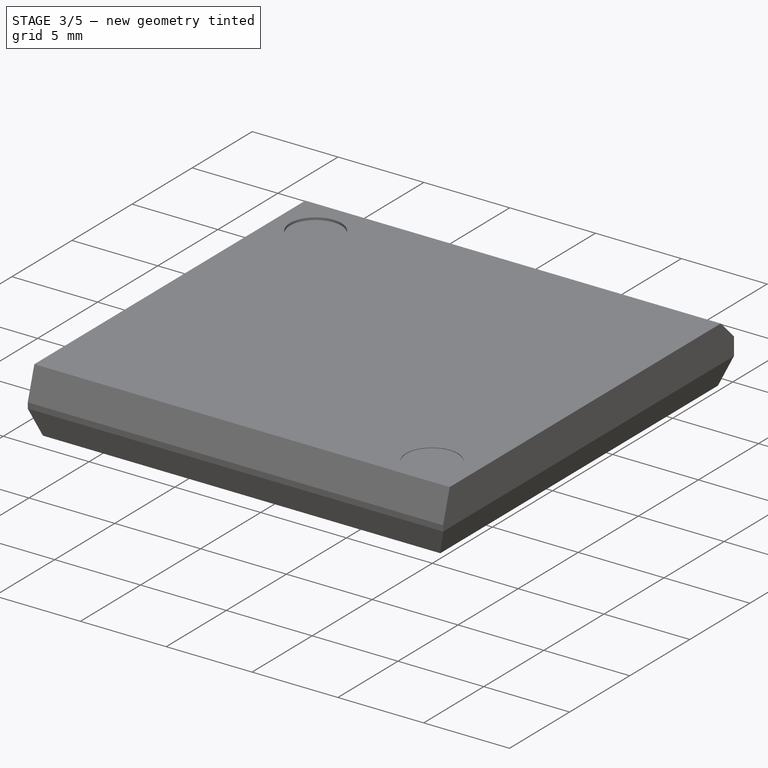
[diagram: stage 3 of 5 — iso view after this stage's code; geometry added in this stage tinted green]
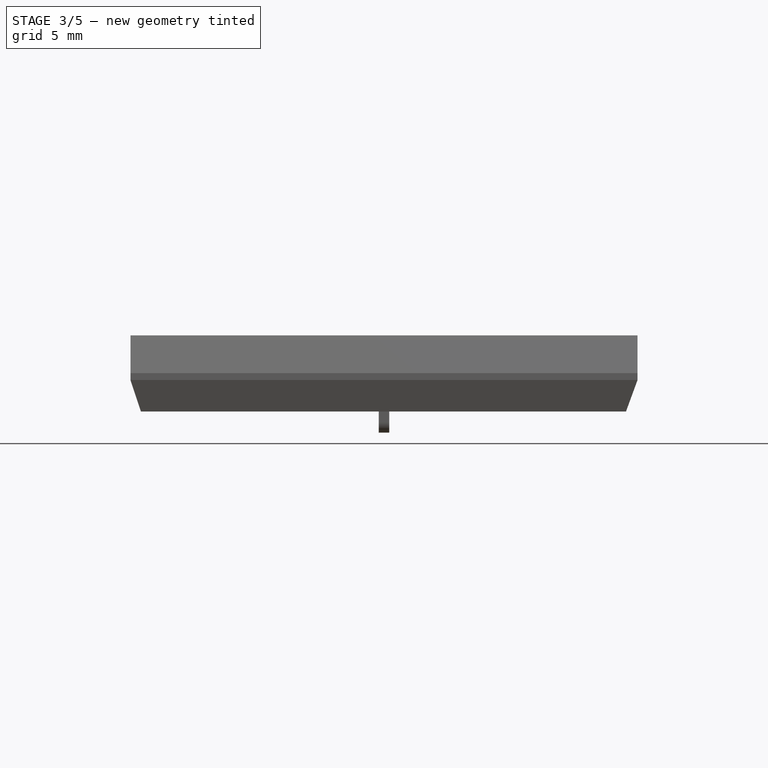
[diagram: stage 3 of 5 — front view after this stage's code; geometry added in this stage tinted green]
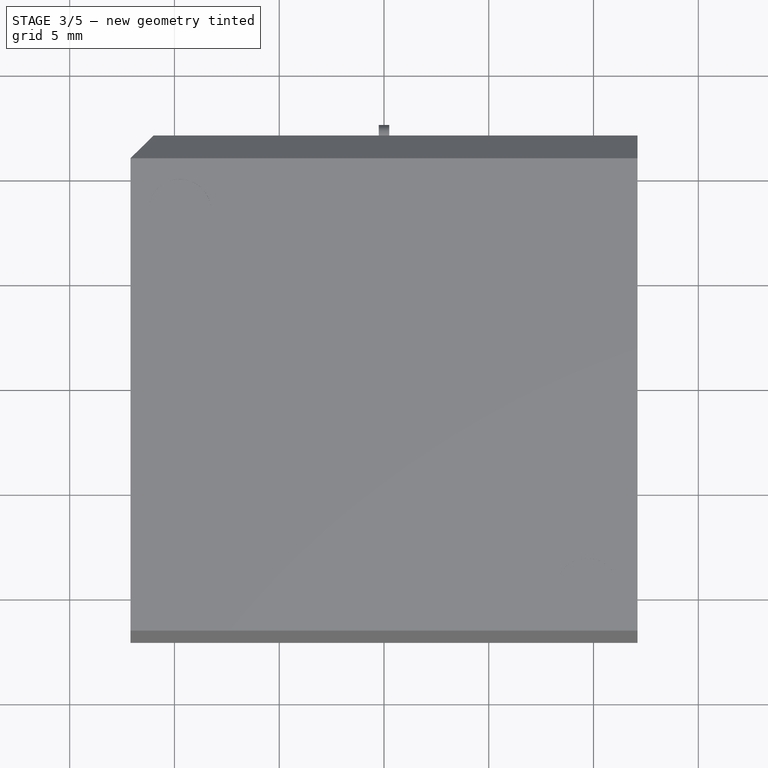
[diagram: stage 3 of 5 — top view after this stage's code; geometry added in this stage tinted green]
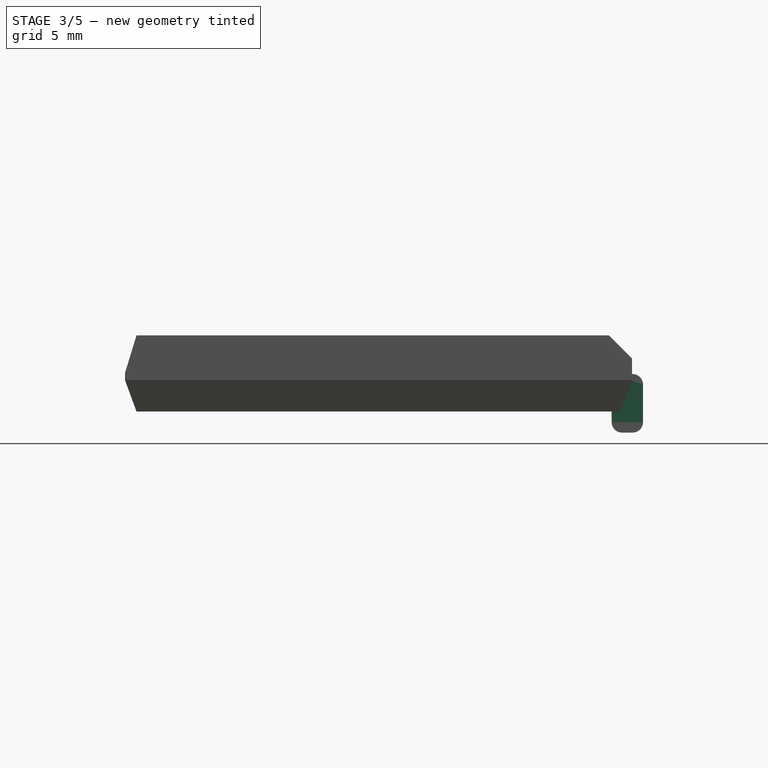
[diagram: stage 3 of 5 — right view after this stage's code; geometry added in this stage tinted green]
FEATURE [PartDesign::AdditiveBox] Box077
  AttacherType = Attacher::AttachEngine3D
  AttachmentOffset = pos=(-0.25,11.125,0) rot=(0,0,1;0rad)
  Height = 2.795
  Length = 0.5
  MapMode = 5
  Placement = pos=(-0.25,11.125,0) rot=(0,0,1;0rad)
  Support = -> [XY_Plane031]
  Width = 1.5
FEATURE [PartDesign::AdditiveBox] Box078
  AttacherType = Attacher::AttachEngine3D
  AttachmentOffset = pos=(-0.25,11.125,0) rot=(0,0,1;0rad)
  Height = 2.795
  Length = 0.5
  MapMode = 5
  Placement = pos=(-0.25,11.125,0) rot=(0,0,1;0rad)
  Support = -> [XY_Plane026]
  Width = 1.5
FEATURE [PartDesign::AdditiveBox] Box079
  AttacherType = Attacher::AttachEngine3D
  AttachmentOffset = pos=(-0.25,11.125,0) rot=(0,0,1;0rad)
  Height = 2.795
  Length = 0.5
  MapMode = 5
  Placement = pos=(-0.25,11.125,0) rot=(0,0,1;0rad)
  Support = -> [XY_Plane025]
  Width = 1.5
FEATURE [PartDesign::AdditiveBox] Box084
  AttacherType = Attacher::AttachEngine3D
  AttachmentOffset = pos=(-0.25,11.125,0) rot=(0,0,1;0rad)
  Height = 2.795
  Length = 0.5
  MapMode = 5
  Placement = pos=(-0.25,11.125,0) rot=(0,0,1;0rad)
  Support = -> [XY_Plane030]
  Width = 1.5
FEATURE [PartDesign::AdditiveBox] Box086
  AttacherType = Attacher::AttachEngine3D
  AttachmentOffset = pos=(-0.25,11.125,0) rot=(0,0,1;0rad)
  Height = 2.795
  Length = 0.5
  MapMode = 5
  Placement = pos=(-0.25,11.125,0) rot=(0,0,1;0rad)
  Support = -> [XY_Plane029]
  Width = 1.5
FEATURE [PartDesign::AdditiveBox] Box090
  AttacherType = Attacher::AttachEngine3D
  AttachmentOffset = pos=(-0.25,11.125,0) rot=(0,0,1;0rad)
  Height = 2.795
  Length = 0.5
  MapMode = 5
  Placement = pos=(-0.25,11.125,0) rot=(0,0,1;0rad)
  Support = -> [XY_Plane032]
  Width = 1.5
FEATURE [PartDesign::AdditiveBox] Box099
  AttacherType = Attacher::AttachEngine3D
  AttachmentOffset = pos=(-0.25,11.125,0) rot=(0,0,1;0rad)
  Height = 2.795
  Length = 0.5
  MapMode = 5
  Placement = pos=(-0.25,11.125,0) rot=(0,0,1;0rad)
  Support = -> [XY_Plane034]
  Width = 1.5
FEATURE [PartDesign::Fillet] Fillet183
  Base = -> Box078 [Edge11]
  BaseFeature = -> Box078
  Placement = pos=(-0.25,11.125,0) rot=(0,0,1;0rad)
  Radius = 0.5
  SupportTransform = false
FEATURE [PartDesign::Fillet] Fillet185
  Base = -> Box079 [Edge11]
  BaseFeature = -> Box079
  Placement = pos=(-0.25,11.125,0) rot=(0,0,1;0rad)
  Radius = 0.5
  SupportTransform = false
FEATURE [PartDesign::Fillet] Fillet192
  Base = -> Fillet185 [Edge8]
  BaseFeature = -> Fillet185
  Placement = pos=(-0.25,11.125,0) rot=(0,0,1;0rad)
  Radius = 0.5
  SupportTransform = false
FEATURE [PartDesign::Fillet] Fillet194
  Base = -> Fillet183 [Edge8]
  BaseFeature = -> Fillet183
  Placement = pos=(-0.25,11.125,0) rot=(0,0,1;0rad)
  Radius = 0.5
  SupportTransform = false
FEATURE [PartDesign::Fillet] Fillet195
  Base = -> Box090 [Edge11]
  BaseFeature = -> Box090
  Placement = pos=(-0.25,11.125,0) rot=(0,0,1;0rad)
  Radius = 0.5
  SupportTransform = false
FEATURE [PartDesign::Fillet] Fillet197
  Base = -> Fillet192 [Edge16]
  BaseFeature = -> Fillet192
  Placement = pos=(-0.25,11.125,0) rot=(0,0,1;0rad)
  Radius = 0.5
  SupportTransform = false
FEATURE [PartDesign::Fillet] Fillet206
  Base = -> Fillet194 [Edge16]
  BaseFeature = -> Fillet194
  Placement = pos=(-0.25,11.125,0) rot=(0,0,1;0rad)
  Radius = 0.5
  SupportTransform = false
FEATURE [PartDesign::SubtractiveBox] Box088
  AttacherType = Attacher::AttachEngine3D
  AttachmentOffset = pos=(11.5,0.33,-0.5) rot=(0,0,1;0rad)
  BaseFeature = -> Fillet206
  Height = 1
  Length = 0.75
  MapMode = 5
  Placement = pos=(-0.5,11.5,0.33) rot=(0.57735,0.57735,0.57735;2.0944rad)
  Support = -> [YZ_Plane032]
  Width = 2.1
FEATURE [PartDesign::Fillet] Fillet196
  Base = -> Box088 [Edge28]
  BaseFeature = -> Box088
  Placement = pos=(-0.5,11.5,0.33) rot=(0.57735,0.57735,0.57735;2.0944rad)
  Radius = 0.2
  SupportTransform = false
FEATURE [PartDesign::Fillet] Fillet188
  Base = -> Fillet196 [Edge15]
  BaseFeature = -> Fillet196
  Placement = pos=(-0.5,11.5,0.33) rot=(0.57735,0.57735,0.57735;2.0944rad)
  Radius = 0.2
  SupportTransform = false
FEATURE [PartDesign::Fillet] Fillet184
  Base = -> Fillet188 [Edge24]
  BaseFeature = -> Fillet188
  Placement = pos=(-0.5,11.5,0.33) rot=(0.57735,0.57735,0.57735;2.0944rad)
  Radius = 0.2
  SupportTransform = false
FEATURE [PartDesign::Fillet] Fillet207
  Base = -> Fillet184 [Edge23]
  BaseFeature = -> Fillet184
  Placement = pos=(-0.5,11.5,0.33) rot=(0.57735,0.57735,0.57735;2.0944rad)
  Radius = 0.2
  SupportTransform = false
FEATURE [PartDesign::SubtractiveBox] Box094
  AttacherType = Attacher::AttachEngine3D
  AttachmentOffset = pos=(11,0.855,-1) rot=(0,0,1;0rad)
  BaseFeature = -> Fillet207
  Height = 3
  Length = 1
  MapMode = 5
  Placement = pos=(-1,11,0.855) rot=(0.57735,0.57735,0.57735;2.0944rad)
  Support = -> [YZ_Plane032]
  Width = 1.575
FEATURE [PartDesign::Body] Body026  label="Leg025"
  Group = -> [Sketch030,Box079,Fillet185,Fillet192,Fillet197,Box101,Fillet205,Fillet199,Fillet198,Fillet210,Box096]
  Origin = -> Origin020
  Placement = pos=(-6.35,0,0) rot=(0,0,1;0rad)
  Tip = -> Box096
FEATURE [PartDesign::Body] Body029  label="Leg028"
  Group = -> [Sketch031,Box078,Fillet183,Fillet194,Fillet206,Box088,Fillet196,Fillet188,Fillet184,Fillet207,Box094]
  Origin = -> Origin019
  Placement = pos=(-7.62,0,0) rot=(0,0,1;0rad)
  Tip = -> Box094
FEATURE [PartDesign::Fillet] Fillet214
  Base = -> Fillet195 [Edge8]
  BaseFeature = -> Fillet195
  Placement = pos=(-0.25,11.125,0) rot=(0,0,1;0rad)
  Radius = 0.5
  SupportTransform = false
FEATURE [PartDesign::Fillet] Fillet204
  Base = -> Fillet214 [Edge16]
  BaseFeature = -> Fillet214
  Placement = pos=(-0.25,11.125,0) rot=(0,0,1;0rad)
  Radius = 0.5
  SupportTransform = false
FEATURE [PartDesign::SubtractiveBox] Box067
  AttacherType = Attacher::AttachEngine3D
  AttachmentOffset = pos=(11.5,0.33,-0.5) rot=(0,0,1;0rad)
  BaseFeature = -> Fillet204
  Height = 1
  Length = 0.75
  MapMode = 5
  Placement = pos=(-0.5,11.5,0.33) rot=(0.57735,0.57735,0.57735;2.0944rad)
  Support = -> [YZ_Plane028]
  Width = 2.1
FEATURE [PartDesign::Fillet] Fillet139
  Base = -> Box067 [Edge28]
  BaseFeature = -> Box067
  Placement = pos=(-0.5,11.5,0.33) rot=(0.57735,0.57735,0.57735;2.0944rad)
  Radius = 0.2
  SupportTransform = false
FEATURE [PartDesign::Fillet] Fillet215
  Base = -> Fillet139 [Edge15]
  BaseFeature = -> Fillet139
  Placement = pos=(-0.5,11.5,0.33) rot=(0.57735,0.57735,0.57735;2.0944rad)
  Radius = 0.2
  SupportTransform = false
FEATURE [PartDesign::Fillet] Fillet211
  Base = -> Fillet215 [Edge24]
  BaseFeature = -> Fillet215
  Placement = pos=(-0.5,11.5,0.33) rot=(0.57735,0.57735,0.57735;2.0944rad)
  Radius = 0.2
  SupportTransform = false
FEATURE [PartDesign::Fillet] Fillet203
  Base = -> Fillet211 [Edge23]
  BaseFeature = -> Fillet211
  Placement = pos=(-0.5,11.5,0.33) rot=(0.57735,0.57735,0.57735;2.0944rad)
  Radius = 0.2
  SupportTransform = false
FEATURE [PartDesign::SubtractiveBox] Box092
  AttacherType = Attacher::AttachEngine3D
  AttachmentOffset = pos=(11,0.855,-1) rot=(0,0,1;0rad)
  BaseFeature = -> Fillet203
  Height = 3
  Length = 1
  MapMode = 5
  Placement = pos=(-1,11,0.855) rot=(0.57735,0.57735,0.57735;2.0944rad)
  Support = -> [YZ_Plane028]
  Width = 1.575
FEATURE [PartDesign::Fillet] Fillet216
  Base = -> Box084 [Edge11]
  BaseFeature = -> Box084
  Placement = pos=(-0.25,11.125,0) rot=(0,0,1;0rad)
  Radius = 0.5
  SupportTransform = false
FEATURE [PartDesign::Fillet] Fillet218
  Base = -> Box086 [Edge11]
  BaseFeature = -> Box086
  Placement = pos=(-0.25,11.125,0) rot=(0,0,1;0rad)
  Radius = 0.5
  SupportTransform = false
FEATURE [PartDesign::Fillet] Fillet150
  Base = -> Fillet218 [Edge8]
  BaseFeature = -> Fillet218
  Placement = pos=(-0.25,11.125,0) rot=(0,0,1;0rad)
  Radius = 0.5
  SupportTransform = false
FEATURE [PartDesign::Fillet] Fillet221
  Base = -> Fillet216 [Edge8]
  BaseFeature = -> Fillet216
  Placement = pos=(-0.25,11.125,0) rot=(0,0,1;0rad)
  Radius = 0.5
  SupportTransform = false
FEATURE [PartDesign::Fillet] Fillet212
  Base = -> Fillet221 [Edge16]
  BaseFeature = -> Fillet221
  Placement = pos=(-0.25,11.125,0) rot=(0,0,1;0rad)
  Radius = 0.5
  SupportTransform = false
FEATURE [PartDesign::SubtractiveBox] Box066
  AttacherType = Attacher::AttachEngine3D
  AttachmentOffset = pos=(11.5,0.33,-0.5) rot=(0,0,1;0rad)
  BaseFeature = -> Fillet212
  Height = 1
  Length = 0.75
  MapMode = 5
  Placement = pos=(-0.5,11.5,0.33) rot=(0.57735,0.57735,0.57735;2.0944rad)
  Support = -> [YZ_Plane030]
  Width = 2.1
FEATURE [PartDesign::Fillet] Fillet209
  Base = -> Box066 [Edge28]
  BaseFeature = -> Box066
  Placement = pos=(-0.5,11.5,0.33) rot=(0.57735,0.57735,0.57735;2.0944rad)
  Radius = 0.2
  SupportTransform = false
FEATURE [PartDesign::Fillet] Fillet222
  Base = -> Box077 [Edge11]
  BaseFeature = -> Box077
  Placement = pos=(-0.25,11.125,0) rot=(0,0,1;0rad)
  Radius = 0.5
  SupportTransform = false
FEATURE [PartDesign::Fillet] Fillet217
  Base = -> Fillet222 [Edge8]
  BaseFeature = -> Fillet222
  Placement = pos=(-0.25,11.125,0) rot=(0,0,1;0rad)
  Radius = 0.5
  SupportTransform = false
FEATURE [PartDesign::Fillet] Fillet223
  Base = -> Fillet217 [Edge16]
  BaseFeature = -> Fillet217
  Placement = pos=(-0.25,11.125,0) rot=(0,0,1;0rad)
  Radius = 0.5
  SupportTransform = false
FEATURE [PartDesign::SubtractiveBox] Box085
  AttacherType = Attacher::AttachEngine3D
  AttachmentOffset = pos=(11.5,0.33,-0.5) rot=(0,0,1;0rad)
  BaseFeature = -> Fillet223
  Height = 1
  Length = 0.75
  MapMode = 5
  Placement = pos=(-0.5,11.5,0.33) rot=(0.57735,0.57735,0.57735;2.0944rad)
  Support = -> [YZ_Plane029]
  Width = 2.1
FEATURE [PartDesign::Fillet] Fillet213
  Base = -> Box085 [Edge28]
  BaseFeature = -> Box085
  Placement = pos=(-0.5,11.5,0.33) rot=(0.57735,0.57735,0.57735;2.0944rad)
  Radius = 0.2
  SupportTransform = false
FEATURE [PartDesign::Fillet] Fillet226
  Base = -> Box099 [Edge11]
  BaseFeature = -> Box099
  Placement = pos=(-0.25,11.125,0) rot=(0,0,1;0rad)
  Radius = 0.5
  SupportTransform = false
FEATURE [PartDesign::Fillet] Fillet228
  Base = -> Fillet209 [Edge15]
  BaseFeature = -> Fillet209
  Placement = pos=(-0.5,11.5,0.33) rot=(0.57735,0.57735,0.57735;2.0944rad)
  Radius = 0.2
  SupportTransform = false
FEATURE [PartDesign::Fillet] Fillet220
  Base = -> Fillet228 [Edge24]
  BaseFeature = -> Fillet228
  Placement = pos=(-0.5,11.5,0.33) rot=(0.57735,0.57735,0.57735;2.0944rad)
  Radius = 0.2
  SupportTransform = false
FEATURE [PartDesign::Fillet] Fillet201
  Base = -> Fillet220 [Edge23]
  BaseFeature = -> Fillet220
  Placement = pos=(-0.5,11.5,0.33) rot=(0.57735,0.57735,0.57735;2.0944rad)
  Radius = 0.2
  SupportTransform = false
FEATURE [PartDesign::SubtractiveBox] Box089
  AttacherType = Attacher::AttachEngine3D
  AttachmentOffset = pos=(11,0.855,-1) rot=(0,0,1;0rad)
  BaseFeature = -> Fillet201
  Height = 3
  Length = 1
  MapMode = 5
  Placement = pos=(-1,11,0.855) rot=(0.57735,0.57735,0.57735;2.0944rad)
  Support = -> [YZ_Plane030]
  Width = 1.575
FEATURE [PartDesign::Body] Body031  label="Leg030"
  Group = -> [Sketch022,Box084,Fillet216,Fillet221,Fillet212,Box066,Fillet209,Fillet228,Fillet220,Fillet201,Box089]
  Origin = -> Origin024
  Placement = pos=(-8.89,0,0) rot=(0,0,1;0rad)
  Tip = -> Box089
FEATURE [PartDesign::Fillet] Fillet229
  Base = -> Fillet213 [Edge15]
  BaseFeature = -> Fillet213
  Placement = pos=(-0.5,11.5,0.33) rot=(0.57735,0.57735,0.57735;2.0944rad)
  Radius = 0.2
  SupportTransform = false
FEATURE [PartDesign::Fillet] Fillet219
  Base = -> Fillet229 [Edge24]
  BaseFeature = -> Fillet229
  Placement = pos=(-0.5,11.5,0.33) rot=(0.57735,0.57735,0.57735;2.0944rad)
  Radius = 0.2
  SupportTransform = false
FEATURE [PartDesign::Fillet] Fillet224
  Base = -> Fillet219 [Edge23]
  BaseFeature = -> Fillet219
  Placement = pos=(-0.5,11.5,0.33) rot=(0.57735,0.57735,0.57735;2.0944rad)
  Radius = 0.2
  SupportTransform = false
FEATURE [PartDesign::SubtractiveBox] Box081
  AttacherType = Attacher::AttachEngine3D
  AttachmentOffset = pos=(11,0.855,-1) rot=(0,0,1;0rad)
  BaseFeature = -> Fillet224
  Height = 3
  Length = 1
  MapMode = 5
  Placement = pos=(-1,11,0.855) rot=(0.57735,0.57735,0.57735;2.0944rad)
  Support = -> [YZ_Plane029]
  Width = 1.575
FEATURE [PartDesign::Body] Body033  label="Leg032"
  Group = -> [Sketch028,Box077,Fillet222,Fillet217,Fillet223,Box085,Fillet213,Fillet229,Fillet219,Fillet224,Box081]
  Origin = -> Origin028
  Placement = pos=(-10.16,0,0) rot=(0,0,1;0rad)
  Tip = -> Box081
FEATURE [PartDesign::Fillet] Fillet233
  Base = -> Fillet150 [Edge16]
  BaseFeature = -> Fillet150
  Placement = pos=(-0.25,11.125,0) rot=(0,0,1;0rad)
  Radius = 0.5
  SupportTransform = false
FEATURE [PartDesign::SubtractiveBox] Box082
  AttacherType = Attacher::AttachEngine3D
  AttachmentOffset = pos=(11.5,0.33,-0.5) rot=(0,0,1;0rad)
  BaseFeature = -> Fillet233
  Height = 1
  Length = 0.75
  MapMode = 5
  Placement = pos=(-0.5,11.5,0.33) rot=(0.57735,0.57735,0.57735;2.0944rad)
  Support = -> [YZ_Plane024]
  Width = 2.1
FEATURE [PartDesign::Fillet] Fillet230
  Base = -> Box082 [Edge28]
  BaseFeature = -> Box082
  Placement = pos=(-0.5,11.5,0.33) rot=(0.57735,0.57735,0.57735;2.0944rad)
  Radius = 0.2
  SupportTransform = false
FEATURE [PartDesign::Fillet] Fillet191
  Base = -> Fillet230 [Edge15]
  BaseFeature = -> Fillet230
  Placement = pos=(-0.5,11.5,0.33) rot=(0.57735,0.57735,0.57735;2.0944rad)
  Radius = 0.2
  SupportTransform = false
FEATURE [PartDesign::Fillet] Fillet225
  Base = -> Fillet191 [Edge24]
  BaseFeature = -> Fillet191
  Placement = pos=(-0.5,11.5,0.33) rot=(0.57735,0.57735,0.57735;2.0944rad)
  Radius = 0.2
  SupportTransform = false
FEATURE [PartDesign::Fillet] Fillet227
  Base = -> Fillet225 [Edge23]
  BaseFeature = -> Fillet225
  Placement = pos=(-0.5,11.5,0.33) rot=(0.57735,0.57735,0.57735;2.0944rad)
  Radius = 0.2
  SupportTransform = false
FEATURE [PartDesign::SubtractiveBox] Box083
  AttacherType = Attacher::AttachEngine3D
  AttachmentOffset = pos=(11,0.855,-1) rot=(0,0,1;0rad)
  BaseFeature = -> Fillet227
  Height = 3
  Length = 1
  MapMode = 5
  Placement = pos=(-1,11,0.855) rot=(0.57735,0.57735,0.57735;2.0944rad)
  Support = -> [YZ_Plane024]
  Width = 1.575
FEATURE [PartDesign::Fillet] Fillet237
  Base = -> Fillet226 [Edge8]
  BaseFeature = -> Fillet226
  Placement = pos=(-0.25,11.125,0) rot=(0,0,1;0rad)
  Radius = 0.5
  SupportTransform = false
FEATURE [PartDesign::Fillet] Fillet236
  Base = -> Fillet237 [Edge16]
  BaseFeature = -> Fillet237
  Placement = pos=(-0.25,11.125,0) rot=(0,0,1;0rad)
  Radius = 0.5
  SupportTransform = false
FEATURE [PartDesign::SubtractiveBox] Box098
  AttacherType = Attacher::AttachEngine3D
  AttachmentOffset = pos=(11.5,0.33,-0.5) rot=(0,0,1;0rad)
  BaseFeature = -> Fillet236
  Height = 1
  Length = 0.75
  MapMode = 5
  Placement = pos=(-0.5,11.5,0.33) rot=(0.57735,0.57735,0.57735;2.0944rad)
  Support = -> [YZ_Plane033]
  Width = 2.1
FEATURE [PartDesign::Fillet] Fillet235
  Base = -> Box098 [Edge28]
  BaseFeature = -> Box098
  Placement = pos=(-0.5,11.5,0.33) rot=(0.57735,0.57735,0.57735;2.0944rad)
  Radius = 0.2
  SupportTransform = false
FEATURE [PartDesign::Fillet] Fillet231
  Base = -> Fillet235 [Edge15]
  BaseFeature = -> Fillet235
  Placement = pos=(-0.5,11.5,0.33) rot=(0.57735,0.57735,0.57735;2.0944rad)
  Radius = 0.2
  SupportTransform = false
FEATURE [PartDesign::Fillet] Fillet234
  Base = -> Fillet231 [Edge24]
  BaseFeature = -> Fillet231
  Placement = pos=(-0.5,11.5,0.33) rot=(0.57735,0.57735,0.57735;2.0944rad)
  Radius = 0.2
  SupportTransform = false
FEATURE [PartDesign::Fillet] Fillet232
  Base = -> Fillet234 [Edge23]
  BaseFeature = -> Fillet234
  Placement = pos=(-0.5,11.5,0.33) rot=(0.57735,0.57735,0.57735;2.0944rad)
  Radius = 0.2
  SupportTransform = false
FEATURE [PartDesign::SubtractiveBox] Box102
  AttacherType = Attacher::AttachEngine3D
  AttachmentOffset = pos=(11,0.855,-1) rot=(0,0,1;0rad)
  BaseFeature = -> Fillet232
  Height = 3
  Length = 1
  MapMode = 5
  Placement = pos=(-1,11,0.855) rot=(0.57735,0.57735,0.57735;2.0944rad)
  Support = -> [YZ_Plane033]
  Width = 1.575
FEATURE [Sketcher::SketchObject] Sketch032
  FullyConstrained = false
  MapMode = 5
  Support = -> [XY_Plane032]
  sketch-geometry (8):
    g0: LineSegment StartX=-0.3 StartY=-12.5 StartZ=0 EndX=0.3 EndY=-12.5 EndZ=0
    g1: LineSegment StartX=0.3 StartY=-12.5 StartZ=0 EndX=0.3 EndY=-11.1 EndZ=0
    g2: LineSegment StartX=0.3 StartY=-11.1 StartZ=0 EndX=-0.3 EndY=-11.1 EndZ=0
    g3: LineSegment StartX=-0.3 StartY=-11.1 StartZ=0 EndX=-0.3 EndY=-12.5 EndZ=0
    g4: LineSegment StartX=-0.2 StartY=-12.4 StartZ=0 EndX=0.2 EndY=-12.4 EndZ=0
    g5: LineSegment StartX=0.2 StartY=-12.4 StartZ=0 EndX=0.2 EndY=-11.2 EndZ=0
    g6: LineSegment StartX=0.2 StartY=-11.2 StartZ=0 EndX=-0.2 EndY=-11.2 EndZ=0
    g7: LineSegment StartX=-0.2 StartY=-11.2 StartZ=0 EndX=-0.2 EndY=-12.4 EndZ=0
  constraints (16):
    c: Coincident(g0,g1)
    c: Coincident(g1,g2)
    c: Coincident(g2,g3)
    c: Coincident(g3,g0)
    c: Horizontal(g0)
    c: Horizontal(g2)
    c: Vertical(g1)
    c: Vertical(g3)
    c: Coincident(g4,g5)
    c: Coincident(g5,g6)
    c: Coincident(g6,g7)
    c: Coincident(g7,g4)
    c: Horizontal(g4)
    c: Horizontal(g6)
    c: Vertical(g5)
    c: Vertical(g7)
FEATURE [PartDesign::Body] Body030  label="Leg029"
  Group = -> [Sketch032,Box090,Fillet195,Fillet214,Fillet204,Box067,Fillet139,Fillet215,Fillet211,Fillet203,Box092]
  Origin = -> Origin036
  Placement = pos=(-3.81,0,0) rot=(0,0,1;0rad)
  Tip = -> Box092
FEATURE [Sketcher::SketchObject] Sketch033
  FullyConstrained = false
  MapMode = 5
  Support = -> [XY_Plane034]
  sketch-geometry (8):
    g0: LineSegment StartX=-0.3 StartY=-12.5 StartZ=0 EndX=0.3 EndY=-12.5 EndZ=0
    g1: LineSegment StartX=0.3 StartY=-12.5 StartZ=0 EndX=0.3 EndY=-11.1 EndZ=0
    g2: LineSegment StartX=0.3 StartY=-11.1 StartZ=0 EndX=-0.3 EndY=-11.1 EndZ=0
    g3: LineSegment StartX=-0.3 StartY=-11.1 StartZ=0 EndX=-0.3 EndY=-12.5 EndZ=0
    g4: LineSegment StartX=-0.2 StartY=-12.4 StartZ=0 EndX=0.2 EndY=-12.4 EndZ=0
    g5: LineSegment StartX=0.2 StartY=-12.4 StartZ=0 EndX=0.2 EndY=-11.2 EndZ=0
    g6: LineSegment StartX=0.2 StartY=-11.2 StartZ=0 EndX=-0.2 EndY=-11.2 EndZ=0
    g7: LineSegment StartX=-0.2 StartY=-11.2 StartZ=0 EndX=-0.2 EndY=-12.4 EndZ=0
  constraints (16):
    c: Coincident(g0,g1)
    c: Coincident(g1,g2)
    c: Coincident(g2,g3)
    c: Coincident(g3,g0)
    c: Horizontal(g0)
    c: Horizontal(g2)
    c: Vertical(g1)
    c: Vertical(g3)
    c: Coincident(g4,g5)
    c: Coincident(g5,g6)
    c: Coincident(g6,g7)
    c: Coincident(g7,g4)
    c: Horizontal(g4)
    c: Horizontal(g6)
    c: Vertical(g5)
    c: Vertical(g7)
FEATURE [PartDesign::Body] Body034  label="Leg033"
  Group = -> [Sketch033,Box099,Fillet226,Fillet237,Fillet236,Box098,Fillet235,Fillet231,Fillet234,Fillet232,Box102]
  Origin = -> Origin021
  Placement = pos=(10.16,0,0) rot=(0,0,1;0rad)
  Tip = -> Box102
FEATURE [Sketcher::SketchObject] Sketch034
  FullyConstrained = false
  MapMode = 5
  Support = -> [XY_Plane029]
  sketch-geometry (8):
    g0: LineSegment StartX=-0.3 StartY=-12.5 StartZ=0 EndX=0.3 EndY=-12.5 EndZ=0
    g1: LineSegment StartX=0.3 StartY=-12.5 StartZ=0 EndX=0.3 EndY=-11.1 EndZ=0
    g2: LineSegment StartX=0.3 StartY=-11.1 StartZ=0 EndX=-0.3 EndY=-11.1 EndZ=0
    g3: LineSegment StartX=-0.3 StartY=-11.1 StartZ=0 EndX=-0.3 EndY=-12.5 EndZ=0
    g4: LineSegment StartX=-0.2 StartY=-12.4 StartZ=0 EndX=0.2 EndY=-12.4 EndZ=0
    g5: LineSegment StartX=0.2 StartY=-12.4 StartZ=0 EndX=0.2 EndY=-11.2 EndZ=0
    g6: LineSegment StartX=0.2 StartY=-11.2 StartZ=0 EndX=-0.2 EndY=-11.2 EndZ=0
    g7: LineSegment StartX=-0.2 StartY=-11.2 StartZ=0 EndX=-0.2 EndY=-12.4 EndZ=0
  constraints (16):
    c: Coincident(g0,g1)
    c: Coincident(g1,g2)
    c: Coincident(g2,g3)
    c: Coincident(g3,g0)
    c: Horizontal(g0)
    c: Horizontal(g2)
    c: Vertical(g1)
    c: Vertical(g3)
    c: Coincident(g4,g5)
    c: Coincident(g5,g6)
    c: Coincident(g6,g7)
    c: Coincident(g7,g4)
    c: Horizontal(g4)
    c: Horizontal(g6)
    c: Vertical(g5)
    c: Vertical(g7)
FEATURE [PartDesign::Body] Body032  label="Leg031"
  Group = -> [Sketch034,Box086,Fillet218,Fillet150,Fillet233,Box082,Fillet230,Fillet191,Fillet225,Fillet227,Box083]
  Origin = -> Origin025
  Placement = pos=(8.89,0,0) rot=(0,0,1;0rad)
  Tip = -> Box083
FEATURE [Sketcher::SketchObject] Sketch035
  FullyConstrained = false
  MapMode = 5
  Support = -> [XY_Plane023]
  sketch-geometry (8):
    g0: LineSegment StartX=-0.3 StartY=-12.5 StartZ=0 EndX=0.3 EndY=-12.5 EndZ=0
    g1: LineSegment StartX=0.3 StartY=-12.5 StartZ=0 EndX=0.3 EndY=-11.1 EndZ=0
    g2: LineSegment StartX=0.3 StartY=-11.1 StartZ=0 EndX=-0.3 EndY=-11.1 EndZ=0
    g3: LineSegment StartX=-0.3 StartY=-11.1 StartZ=0 EndX=-0.3 EndY=-12.5 EndZ=0
    g4: LineSegment StartX=-0.2 StartY=-12.4 StartZ=0 EndX=0.2 EndY=-12.4 EndZ=0
    g5: LineSegment StartX=0.2 StartY=-12.4 StartZ=0 EndX=0.2 EndY=-11.2 EndZ=0
    g6: LineSegment StartX=0.2 StartY=-11.2 StartZ=0 EndX=-0.2 EndY=-11.2 EndZ=0
    g7: LineSegment StartX=-0.2 StartY=-11.2 StartZ=0 EndX=-0.2 EndY=-12.4 EndZ=0
  constraints (16):
    c: Coincident(g0,g1)
    c: Coincident(g1,g2)
    c: Coincident(g2,g3)
    c: Coincident(g3,g0)
    c: Horizontal(g0)
    c: Horizontal(g2)
    c: Vertical(g1)
    c: Vertical(g3)
    c: Coincident(g4,g5)
    c: Coincident(g5,g6)
    c: Coincident(g6,g7)
    c: Coincident(g7,g4)
    c: Horizontal(g4)
    c: Horizontal(g6)
    c: Vertical(g5)
    c: Vertical(g7)
FEATURE [PartDesign::Body] Body022  label="Leg021"
  Group = -> [Sketch035,Box063,Fillet158,Fillet161,Fillet157,Box053,Fillet159,Fillet162,Fillet153,Fillet156,Box080]
  Origin = -> Origin023
  Tip = -> Box080
FEATURE [App::Part] Part001  label="Side2-legs"
  Group = -> [Body022,Body023,Body024,Body025,Body018,Body019,Body020,Body021,Body028,Body027,Body026,Body029,Body030,Body031,Body033,Body032,Body034]
  Origin = -> Origin022
  Placement = pos=(0,0,0) rot=(0,0,1;3.14159rad)
FEATURE [PartDesign::AdditiveBox] Box103
  AttacherType = Attacher::AttachEngine3D
  AttachmentOffset = pos=(-0.25,11.125,0) rot=(0,0,1;0rad)
  Height = 2.795
  Length = 0.5
  MapMode = 5
  Placement = pos=(-0.25,11.125,0) rot=(0,0,1;0rad)
  Support = -> [XY_Plane051]
  Width = 1.5
FEATURE [PartDesign::AdditiveBox] Box106
  AttacherType = Attacher::AttachEngine3D
  AttachmentOffset = pos=(-0.25,11.125,0) rot=(0,0,1;0rad)
  Height = 2.795
  Length = 0.5
  MapMode = 5
  Placement = pos=(-0.25,11.125,0) rot=(0,0,1;0rad)
  Support = -> [XY_Plane055]
  Width = 1.5
FEATURE [PartDesign::AdditiveBox] Box111
  AttacherType = Attacher::AttachEngine3D
  AttachmentOffset = pos=(-0.25,11.125,0) rot=(0,0,1;0rad)
  Height = 2.795
  Length = 0.5
  MapMode = 5
  Placement = pos=(-0.25,11.125,0) rot=(0,0,1;0rad)
  Support = -> [XY_Plane040]
  Width = 1.5
FEATURE [PartDesign::AdditiveBox] Box113
  AttacherType = Attacher::AttachEngine3D
  AttachmentOffset = pos=(-0.25,11.125,0) rot=(0,0,1;0rad)
  Height = 2.795
  Length = 0.5
  MapMode = 5
  Placement = pos=(-0.25,11.125,0) rot=(0,0,1;0rad)
  Support = -> [XY_Plane037]
  Width = 1.5
FEATURE [PartDesign::Fillet] Fillet252
  Base = -> Box113 [Edge11]
  BaseFeature = -> Box113
  Placement = pos=(-0.25,11.125,0) rot=(0,0,1;0rad)
  Radius = 0.5
  SupportTransform = false
FEATURE [PartDesign::Fillet] Fillet251
  Base = -> Fillet252 [Edge8]
  BaseFeature = -> Fillet252
  Placement = pos=(-0.25,11.125,0) rot=(0,0,1;0rad)
  Radius = 0.5
  SupportTransform = false
FEATURE [PartDesign::Fillet] Fillet259
  Base = -> Fillet251 [Edge16]
  BaseFeature = -> Fillet251
  Placement = pos=(-0.25,11.125,0) rot=(0,0,1;0rad)
  Radius = 0.5
  SupportTransform = false
FEATURE [PartDesign::Fillet] Fillet281
  Base = -> Fillet278 [Edge15]
  BaseFeature = -> Fillet278
  Placement = pos=(-0.5,11.5,0.33) rot=(0.57735,0.57735,0.57735;2.0944rad)
  Radius = 0.2
  SupportTransform = false
FEATURE [PartDesign::Fillet] Fillet272
  Base = -> Fillet281 [Edge24]
  BaseFeature = -> Fillet281
  Placement = pos=(-0.5,11.5,0.33) rot=(0.57735,0.57735,0.57735;2.0944rad)
  Radius = 0.2
  SupportTransform = false
FEATURE [PartDesign::Fillet] Fillet275
  Base = -> Fillet272 [Edge23]
  BaseFeature = -> Fillet272
  Placement = pos=(-0.5,11.5,0.33) rot=(0.57735,0.57735,0.57735;2.0944rad)
  Radius = 0.2
  SupportTransform = false
FEATURE [PartDesign::Fillet] Fillet283
  Base = -> Box106 [Edge11]
  BaseFeature = -> Box106
  Placement = pos=(-0.25,11.125,0) rot=(0,0,1;0rad)
  Radius = 0.5
  SupportTransform = false
FEATURE [PartDesign::Fillet] Fillet285
  Base = -> Box111 [Edge11]
  BaseFeature = -> Box111
  Placement = pos=(-0.25,11.125,0) rot=(0,0,1;0rad)
  Radius = 0.5
  SupportTransform = false
FEATURE [PartDesign::Fillet] Fillet238
  Base = -> Fillet285 [Edge8]
  BaseFeature = -> Fillet285
  Placement = pos=(-0.25,11.125,0) rot=(0,0,1;0rad)
  Radius = 0.5
  SupportTransform = false
FEATURE [PartDesign::Fillet] Fillet287
  Base = -> Fillet283 [Edge8]
  BaseFeature = -> Fillet283
  Placement = pos=(-0.25,11.125,0) rot=(0,0,1;0rad)
  Radius = 0.5
  SupportTransform = false
FEATURE [PartDesign::Fillet] Fillet279
  Base = -> Fillet287 [Edge16]
  BaseFeature = -> Fillet287
  Placement = pos=(-0.25,11.125,0) rot=(0,0,1;0rad)
  Radius = 0.5
  SupportTransform = false
FEATURE [PartDesign::SubtractiveBox] Box105
  AttacherType = Attacher::AttachEngine3D
  AttachmentOffset = pos=(11.5,0.33,-0.5) rot=(0,0,1;0rad)
  BaseFeature = -> Fillet279
  Height = 1
  Length = 0.75
  MapMode = 5
  Placement = pos=(-0.5,11.5,0.33) rot=(0.57735,0.57735,0.57735;2.0944rad)
  Support = -> [YZ_Plane052]
  Width = 2.1
FEATURE [PartDesign::Fillet] Fillet274
  Base = -> Box105 [Edge28]
  BaseFeature = -> Box105
  Placement = pos=(-0.5,11.5,0.33) rot=(0.57735,0.57735,0.57735;2.0944rad)
  Radius = 0.2
  SupportTransform = false
FEATURE [PartDesign::Fillet] Fillet289
  Base = -> Box103 [Edge11]
  BaseFeature = -> Box103
  Placement = pos=(-0.25,11.125,0) rot=(0,0,1;0rad)
  Radius = 0.5
  SupportTransform = false
FEATURE [PartDesign::Fillet] Fillet284
  Base = -> Fillet289 [Edge8]
  BaseFeature = -> Fillet289
  Placement = pos=(-0.25,11.125,0) rot=(0,0,1;0rad)
  Radius = 0.5
  SupportTransform = false
FEATURE [PartDesign::Fillet] Fillet288
  Base = -> Fillet284 [Edge16]
  BaseFeature = -> Fillet284
  Placement = pos=(-0.25,11.125,0) rot=(0,0,1;0rad)
  Radius = 0.5
  SupportTransform = false
FEATURE [PartDesign::SubtractiveBox] Box108
  AttacherType = Attacher::AttachEngine3D
  AttachmentOffset = pos=(11.5,0.33,-0.5) rot=(0,0,1;0rad)
  BaseFeature = -> Fillet288
  Height = 1
  Length = 0.75
  MapMode = 5
  Placement = pos=(-0.5,11.5,0.33) rot=(0.57735,0.57735,0.57735;2.0944rad)
  Support = -> [YZ_Plane053]
  Width = 2.1
FEATURE [PartDesign::Fillet] Fillet291
  Base = -> Box108 [Edge28]
  BaseFeature = -> Box108
  Placement = pos=(-0.5,11.5,0.33) rot=(0.57735,0.57735,0.57735;2.0944rad)
  Radius = 0.2
  SupportTransform = false
FEATURE [PartDesign::Fillet] Fillet292
  Base = -> Fillet291 [Edge15]
  BaseFeature = -> Fillet291
  Placement = pos=(-0.5,11.5,0.33) rot=(0.57735,0.57735,0.57735;2.0944rad)
  Radius = 0.2
  SupportTransform = false
FEATURE [PartDesign::Fillet] Fillet286
  Base = -> Fillet292 [Edge24]
  BaseFeature = -> Fillet292
  Placement = pos=(-0.5,11.5,0.33) rot=(0.57735,0.57735,0.57735;2.0944rad)
  Radius = 0.2
  SupportTransform = false
FEATURE [PartDesign::Fillet] Fillet290
  Base = -> Fillet286 [Edge23]
  BaseFeature = -> Fillet286
  Placement = pos=(-0.5,11.5,0.33) rot=(0.57735,0.57735,0.57735;2.0944rad)
  Radius = 0.2
  SupportTransform = false
FEATURE [PartDesign::SubtractiveBox] Box110
  AttacherType = Attacher::AttachEngine3D
  AttachmentOffset = pos=(11,0.855,-1) rot=(0,0,1;0rad)
  BaseFeature = -> Fillet290
  Height = 3
  Length = 1
  MapMode = 5
  Placement = pos=(-1,11,0.855) rot=(0.57735,0.57735,0.57735;2.0944rad)
  Support = -> [YZ_Plane053]
  Width = 1.575
FEATURE [PartDesign::Fillet] Fillet295
  Base = -> Fillet238 [Edge16]
  BaseFeature = -> Fillet238
  Placement = pos=(-0.25,11.125,0) rot=(0,0,1;0rad)
  Radius = 0.5
  SupportTransform = false
FEATURE [PartDesign::SubtractiveBox] Box109
  AttacherType = Attacher::AttachEngine3D
  AttachmentOffset = pos=(11.5,0.33,-0.5) rot=(0,0,1;0rad)
  BaseFeature = -> Fillet295
  Height = 1
  Length = 0.75
  MapMode = 5
  Placement = pos=(-0.5,11.5,0.33) rot=(0.57735,0.57735,0.57735;2.0944rad)
  Support = -> [YZ_Plane039]
  Width = 2.1
FEATURE [PartDesign::Fillet] Fillet296
  Base = -> Fillet274 [Edge15]
  BaseFeature = -> Fillet274
  Placement = pos=(-0.5,11.5,0.33) rot=(0.57735,0.57735,0.57735;2.0944rad)
  Radius = 0.2
  SupportTransform = false
FEATURE [PartDesign::Fillet] Fillet282
  Base = -> Fillet296 [Edge24]
  BaseFeature = -> Fillet296
  Placement = pos=(-0.5,11.5,0.33) rot=(0.57735,0.57735,0.57735;2.0944rad)
  Radius = 0.2
  SupportTransform = false
FEATURE [PartDesign::Fillet] Fillet273
  Base = -> Fillet282 [Edge23]
  BaseFeature = -> Fillet282
  Placement = pos=(-0.5,11.5,0.33) rot=(0.57735,0.57735,0.57735;2.0944rad)
  Radius = 0.2
  SupportTransform = false
FEATURE [PartDesign::SubtractiveBox] Box107
  AttacherType = Attacher::AttachEngine3D
  AttachmentOffset = pos=(11,0.855,-1) rot=(0,0,1;0rad)
  BaseFeature = -> Fillet273
  Height = 3
  Length = 1
  MapMode = 5
  Placement = pos=(-1,11,0.855) rot=(0.57735,0.57735,0.57735;2.0944rad)
  Support = -> [YZ_Plane052]
  Width = 1.575
FEATURE [PartDesign::Fillet] Fillet297
  Base = -> Box109 [Edge28]
  BaseFeature = -> Box109
  Placement = pos=(-0.5,11.5,0.33) rot=(0.57735,0.57735,0.57735;2.0944rad)
  Radius = 0.2
  SupportTransform = false
FEATURE [PartDesign::Fillet] Fillet242
  Base = -> Fillet297 [Edge15]
  BaseFeature = -> Fillet297
  Placement = pos=(-0.5,11.5,0.33) rot=(0.57735,0.57735,0.57735;2.0944rad)
  Radius = 0.2
  SupportTransform = false
FEATURE [PartDesign::Fillet] Fillet293
  Base = -> Fillet242 [Edge24]
  BaseFeature = -> Fillet242
  Placement = pos=(-0.5,11.5,0.33) rot=(0.57735,0.57735,0.57735;2.0944rad)
  Radius = 0.2
  SupportTransform = false
FEATURE [PartDesign::Fillet] Fillet294
  Base = -> Fillet293 [Edge23]
  BaseFeature = -> Fillet293
  Placement = pos=(-0.5,11.5,0.33) rot=(0.57735,0.57735,0.57735;2.0944rad)
  Radius = 0.2
  SupportTransform = false
FEATURE [PartDesign::SubtractiveBox] Box112
  AttacherType = Attacher::AttachEngine3D
  AttachmentOffset = pos=(11,0.855,-1) rot=(0,0,1;0rad)
  BaseFeature = -> Fillet294
  Height = 3
  Length = 1
  MapMode = 5
  Placement = pos=(-1,11,0.855) rot=(0.57735,0.57735,0.57735;2.0944rad)
  Support = -> [YZ_Plane039]
  Width = 1.575
FEATURE [PartDesign::AdditiveBox] Box115
  AttacherType = Attacher::AttachEngine3D
  AttachmentOffset = pos=(-0.25,11.125,0) rot=(0,0,1;0rad)
  Height = 2.795
  Length = 0.5
  MapMode = 5
  Placement = pos=(-0.25,11.125,0) rot=(0,0,1;0rad)
  Support = -> [XY_Plane072]
  Width = 1.5
FEATURE [PartDesign::Fillet] Fillet246
  Base = -> Box115 [Edge11]
  BaseFeature = -> Box115
  Placement = pos=(-0.25,11.125,0) rot=(0,0,1;0rad)
  Radius = 0.5
  SupportTransform = false
FEATURE [PartDesign::Fillet] Fillet263
  Base = -> Fillet246 [Edge8]
  BaseFeature = -> Fillet246
  Placement = pos=(-0.25,11.125,0) rot=(0,0,1;0rad)
  Radius = 0.5
  SupportTransform = false
FEATURE [PartDesign::Fillet] Fillet256
  Base = -> Fillet263 [Edge16]
  BaseFeature = -> Fillet263
  Placement = pos=(-0.25,11.125,0) rot=(0,0,1;0rad)
  Radius = 0.5
  SupportTransform = false
FEATURE [PartDesign::AdditiveBox] Box119
  AttacherType = Attacher::AttachEngine3D
  AttachmentOffset = pos=(-0.25,11.125,0) rot=(0,0,1;0rad)
  Height = 2.795
  Length = 0.5
  MapMode = 5
  Placement = pos=(-0.25,11.125,0) rot=(0,0,1;0rad)
  Support = -> [XY_Plane039]
  Width = 1.5
FEATURE [PartDesign::Fillet] Fillet243
  Base = -> Box119 [Edge11]
  BaseFeature = -> Box119
  Placement = pos=(-0.25,11.125,0) rot=(0,0,1;0rad)
  Radius = 0.5
  SupportTransform = false
FEATURE [PartDesign::Fillet] Fillet254
  Base = -> Fillet243 [Edge8]
  BaseFeature = -> Fillet243
  Placement = pos=(-0.25,11.125,0) rot=(0,0,1;0rad)
  Radius = 0.5
  SupportTransform = false
FEATURE [PartDesign::Fillet] Fillet265
  Base = -> Fillet254 [Edge16]
  BaseFeature = -> Fillet254
  Placement = pos=(-0.25,11.125,0) rot=(0,0,1;0rad)
  Radius = 0.5
  SupportTransform = false
FEATURE [PartDesign::SubtractiveBox] Box116
  AttacherType = Attacher::AttachEngine3D
  AttachmentOffset = pos=(11.5,0.33,-0.5) rot=(0,0,1;0rad)
  BaseFeature = -> Fillet265
  Height = 1
  Length = 0.75
  MapMode = 5
  Placement = pos=(-0.5,11.5,0.33) rot=(0.57735,0.57735,0.57735;2.0944rad)
  Support = -> [YZ_Plane071]
  Width = 2.1
FEATURE [PartDesign::Fillet] Fillet268
  Base = -> Box116 [Edge28]
  BaseFeature = -> Box116
  Placement = pos=(-0.5,11.5,0.33) rot=(0.57735,0.57735,0.57735;2.0944rad)
  Radius = 0.2
  SupportTransform = false
FEATURE [PartDesign::Fillet] Fillet255
  Base = -> Fillet268 [Edge15]
  BaseFeature = -> Fillet268
  Placement = pos=(-0.5,11.5,0.33) rot=(0.57735,0.57735,0.57735;2.0944rad)
  Radius = 0.2
  SupportTransform = false
FEATURE [PartDesign::Fillet] Fillet250
  Base = -> Fillet255 [Edge24]
  BaseFeature = -> Fillet255
  Placement = pos=(-0.5,11.5,0.33) rot=(0.57735,0.57735,0.57735;2.0944rad)
  Radius = 0.2
  SupportTransform = false
FEATURE [PartDesign::Fillet] Fillet267
  Base = -> Fillet250 [Edge23]
  BaseFeature = -> Fillet250
  Placement = pos=(-0.5,11.5,0.33) rot=(0.57735,0.57735,0.57735;2.0944rad)
  Radius = 0.2
  SupportTransform = false
FEATURE [PartDesign::SubtractiveBox] Box121
  AttacherType = Attacher::AttachEngine3D
  AttachmentOffset = pos=(11.5,0.33,-0.5) rot=(0,0,1;0rad)
  BaseFeature = -> Fillet259
  Height = 1
  Length = 0.75
  MapMode = 5
  Placement = pos=(-0.5,11.5,0.33) rot=(0.57735,0.57735,0.57735;2.0944rad)
  Support = -> [YZ_Plane072]
  Width = 2.1
FEATURE [PartDesign::Fillet] Fillet262
  Base = -> Box121 [Edge28]
  BaseFeature = -> Box121
  Placement = pos=(-0.5,11.5,0.33) rot=(0.57735,0.57735,0.57735;2.0944rad)
  Radius = 0.2
  SupportTransform = false
FEATURE [PartDesign::Fillet] Fillet264
  Base = -> Fillet262 [Edge15]
  BaseFeature = -> Fillet262
  Placement = pos=(-0.5,11.5,0.33) rot=(0.57735,0.57735,0.57735;2.0944rad)
  Radius = 0.2
  SupportTransform = false
FEATURE [PartDesign::Fillet] Fillet260
  Base = -> Fillet264 [Edge24]
  BaseFeature = -> Fillet264
  Placement = pos=(-0.5,11.5,0.33) rot=(0.57735,0.57735,0.57735;2.0944rad)
  Radius = 0.2
  SupportTransform = false
FEATURE [PartDesign::Fillet] Fillet261
  Base = -> Fillet260 [Edge23]
  BaseFeature = -> Fillet260
  Placement = pos=(-0.5,11.5,0.33) rot=(0.57735,0.57735,0.57735;2.0944rad)
  Radius = 0.2
  SupportTransform = false
FEATURE [PartDesign::AdditiveBox] Box122
  AttacherType = Attacher::AttachEngine3D
  AttachmentOffset = pos=(-0.25,11.125,0) rot=(0,0,1;0rad)
  Height = 2.795
  Length = 0.5
  MapMode = 5
  Placement = pos=(-0.25,11.125,0) rot=(0,0,1;0rad)
  Support = -> [XY_Plane038]
  Width = 1.5
FEATURE [PartDesign::Fillet] Fillet248
  Base = -> Box122 [Edge11]
  BaseFeature = -> Box122
  Placement = pos=(-0.25,11.125,0) rot=(0,0,1;0rad)
  Radius = 0.5
  SupportTransform = false
FEATURE [PartDesign::Fillet] Fillet257
  Base = -> Fillet248 [Edge8]
  BaseFeature = -> Fillet248
  Placement = pos=(-0.25,11.125,0) rot=(0,0,1;0rad)
  Radius = 0.5
  SupportTransform = false
FEATURE [PartDesign::Fillet] Fillet244
  Base = -> Fillet257 [Edge16]
  BaseFeature = -> Fillet257
  Placement = pos=(-0.25,11.125,0) rot=(0,0,1;0rad)
  Radius = 0.5
  SupportTransform = false
FEATURE [PartDesign::SubtractiveBox] Box123
  AttacherType = Attacher::AttachEngine3D
  AttachmentOffset = pos=(11,0.855,-1) rot=(0,0,1;0rad)
  BaseFeature = -> Fillet261
  Height = 3
  Length = 1
  MapMode = 5
  Placement = pos=(-1,11,0.855) rot=(0.57735,0.57735,0.57735;2.0944rad)
  Support = -> [YZ_Plane072]
  Width = 1.575
FEATURE [PartDesign::SubtractiveBox] Box124
  AttacherType = Attacher::AttachEngine3D
  AttachmentOffset = pos=(11.5,0.33,-0.5) rot=(0,0,1;0rad)
  BaseFeature = -> Fillet244
  Height = 1
  Length = 0.75
  MapMode = 5
  Placement = pos=(-0.5,11.5,0.33) rot=(0.57735,0.57735,0.57735;2.0944rad)
  Support = -> [YZ_Plane037]
  Width = 2.1
FEATURE [PartDesign::Fillet] Fillet240
  Base = -> Box124 [Edge28]
  BaseFeature = -> Box124
  Placement = pos=(-0.5,11.5,0.33) rot=(0.57735,0.57735,0.57735;2.0944rad)
  Radius = 0.2
  SupportTransform = false
FEATURE [PartDesign::Fillet] Fillet249
  Base = -> Fillet240 [Edge15]
  BaseFeature = -> Fillet240
  Placement = pos=(-0.5,11.5,0.33) rot=(0.57735,0.57735,0.57735;2.0944rad)
  Radius = 0.2
  SupportTransform = false
FEATURE [PartDesign::Fillet] Fillet239
  Base = -> Fillet249 [Edge24]
  BaseFeature = -> Fillet249
  Placement = pos=(-0.5,11.5,0.33) rot=(0.57735,0.57735,0.57735;2.0944rad)
  Radius = 0.2
  SupportTransform = false
FEATURE [PartDesign::Fillet] Fillet241
  Base = -> Fillet239 [Edge23]
  BaseFeature = -> Fillet239
  Placement = pos=(-0.5,11.5,0.33) rot=(0.57735,0.57735,0.57735;2.0944rad)
  Radius = 0.2
  SupportTransform = false
FEATURE [PartDesign::SubtractiveBox] Box125
  AttacherType = Attacher::AttachEngine3D
  AttachmentOffset = pos=(11.5,0.33,-0.5) rot=(0,0,1;0rad)
  BaseFeature = -> Fillet256
  Height = 1
  Length = 0.75
  MapMode = 5
  Placement = pos=(-0.5,11.5,0.33) rot=(0.57735,0.57735,0.57735;2.0944rad)
  Support = -> [YZ_Plane038]
  Width = 2.1
FEATURE [PartDesign::Fillet] Fillet247
  Base = -> Box125 [Edge28]
  BaseFeature = -> Box125
  Placement = pos=(-0.5,11.5,0.33) rot=(0.57735,0.57735,0.57735;2.0944rad)
  Radius = 0.2
  SupportTransform = false
FEATURE [PartDesign::Fillet] Fillet266
  Base = -> Fillet247 [Edge15]
  BaseFeature = -> Fillet247
  Placement = pos=(-0.5,11.5,0.33) rot=(0.57735,0.57735,0.57735;2.0944rad)
  Radius = 0.2
  SupportTransform = false
FEATURE [PartDesign::Fillet] Fillet253
  Base = -> Fillet266 [Edge24]
  BaseFeature = -> Fillet266
  Placement = pos=(-0.5,11.5,0.33) rot=(0.57735,0.57735,0.57735;2.0944rad)
  Radius = 0.2
  SupportTransform = false
FEATURE [PartDesign::Fillet] Fillet245
  Base = -> Fillet253 [Edge23]
  BaseFeature = -> Fillet253
  Placement = pos=(-0.5,11.5,0.33) rot=(0.57735,0.57735,0.57735;2.0944rad)
  Radius = 0.2
  SupportTransform = false
FEATURE [PartDesign::SubtractiveBox] Box120
  AttacherType = Attacher::AttachEngine3D
  AttachmentOffset = pos=(11,0.855,-1) rot=(0,0,1;0rad)
  BaseFeature = -> Fillet245
  Height = 3
  Length = 1
  MapMode = 5
  Placement = pos=(-1,11,0.855) rot=(0.57735,0.57735,0.57735;2.0944rad)
  Support = -> [YZ_Plane038]
  Width = 1.575
FEATURE [PartDesign::SubtractiveBox] Box126
  AttacherType = Attacher::AttachEngine3D
  AttachmentOffset = pos=(11,0.855,-1) rot=(0,0,1;0rad)
  BaseFeature = -> Fillet267
  Height = 3
  Length = 1
  MapMode = 5
  Placement = pos=(-1,11,0.855) rot=(0.57735,0.57735,0.57735;2.0944rad)
  Support = -> [YZ_Plane071]
  Width = 1.575
FEATURE [PartDesign::SubtractiveBox] Box127
  AttacherType = Attacher::AttachEngine3D
  AttachmentOffset = pos=(11,0.855,-1) rot=(0,0,1;0rad)
  BaseFeature = -> Fillet241
  Height = 3
  Length = 1
  MapMode = 5
  Placement = pos=(-1,11,0.855) rot=(0.57735,0.57735,0.57735;2.0944rad)
  Support = -> [YZ_Plane037]
  Width = 1.575
FEATURE [PartDesign::SubtractiveBox] Box131
  AttacherType = Attacher::AttachEngine3D
  AttachmentOffset = pos=(11,0.855,-1) rot=(0,0,1;0rad)
  BaseFeature = -> Fillet275
  Height = 3
  Length = 1
  MapMode = 5
  Placement = pos=(-1,11,0.855) rot=(0.57735,0.57735,0.57735;2.0944rad)
  Support = -> [YZ_Plane040]
  Width = 1.575
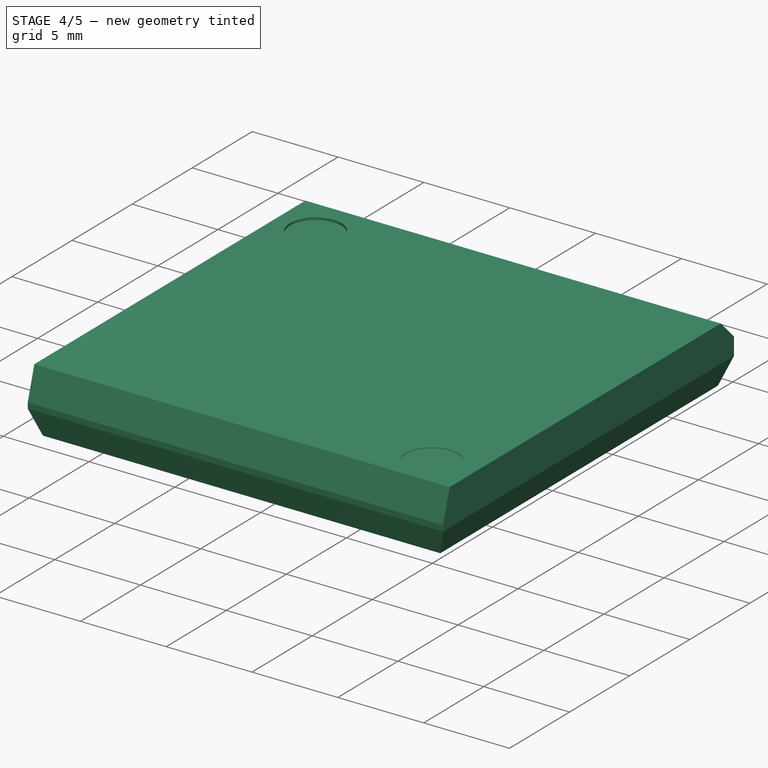
[diagram: stage 4 of 5 — iso view after this stage's code; geometry added in this stage tinted green]
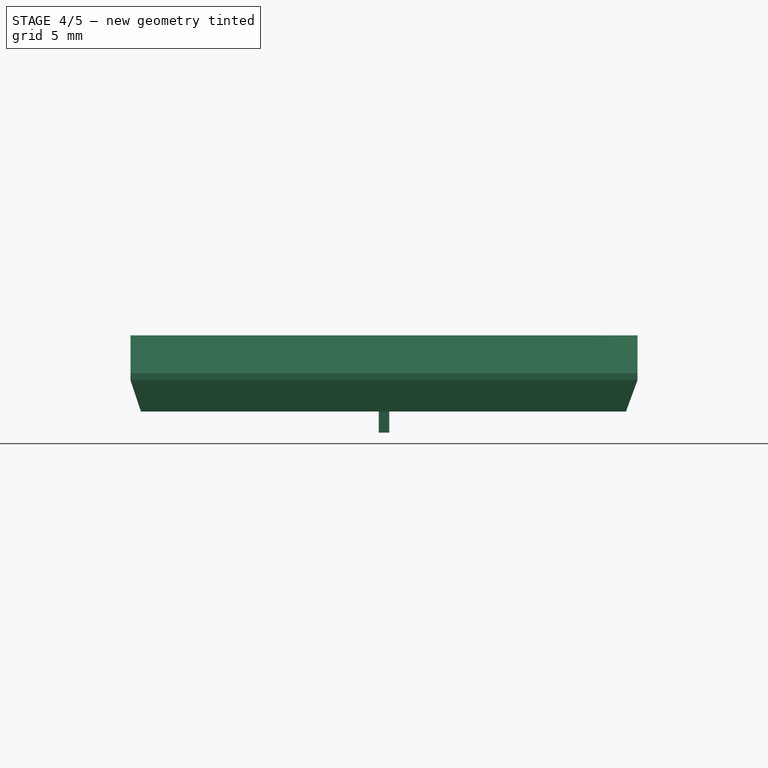
[diagram: stage 4 of 5 — front view after this stage's code; geometry added in this stage tinted green]
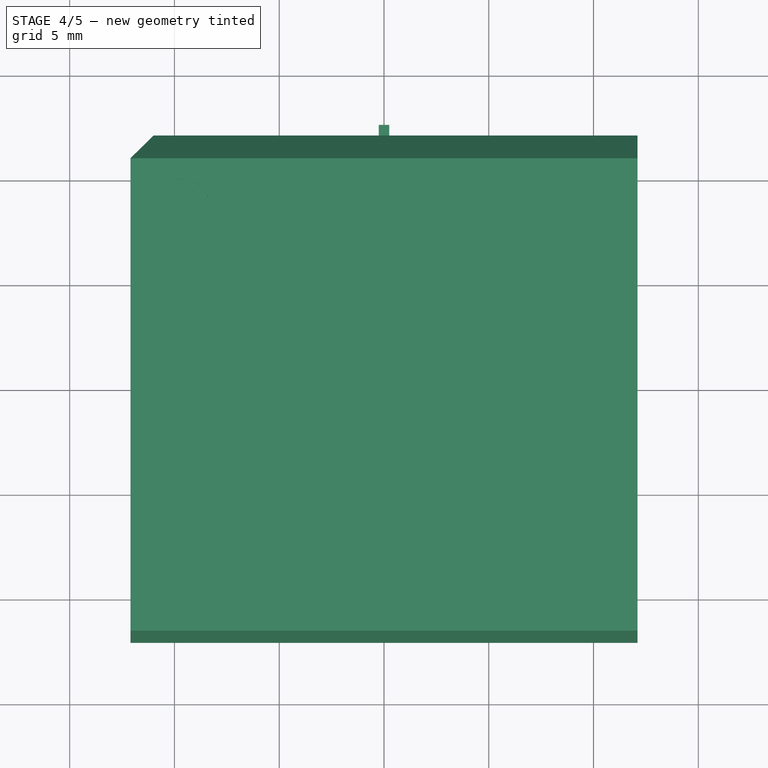
[diagram: stage 4 of 5 — top view after this stage's code; geometry added in this stage tinted green]
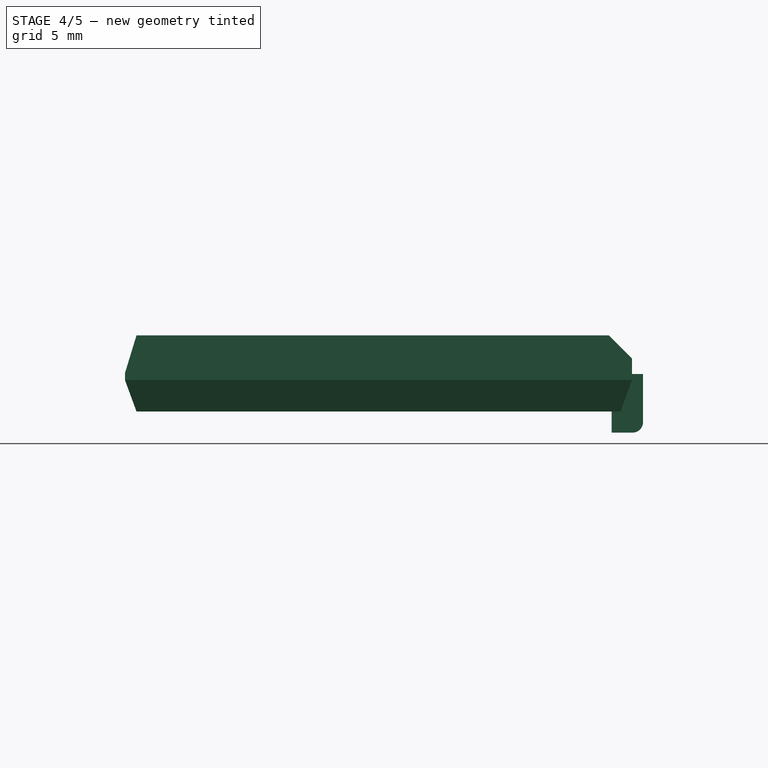
[diagram: stage 4 of 5 — right view after this stage's code; geometry added in this stage tinted green]
FEATURE [PartDesign::AdditiveBox] Box036
  AttacherType = Attacher::AttachEngine3D
  AttachmentOffset = pos=(-0.25,11.125,0) rot=(0,0,1;0rad)
  Height = 2.795
  Length = 0.5
  MapMode = 5
  Placement = pos=(-0.25,11.125,0) rot=(0,0,1;0rad)
  Support = -> [XY_Plane013]
  Width = 1.5
FEATURE [PartDesign::Fillet] Fillet091
  Base = -> Box036 [Edge11]
  BaseFeature = -> Box036
  Placement = pos=(-0.25,11.125,0) rot=(0,0,1;0rad)
  Radius = 0.5
  SupportTransform = false
FEATURE [PartDesign::Fillet] Fillet094
  Base = -> Fillet091 [Edge8]
  BaseFeature = -> Fillet091
  Placement = pos=(-0.25,11.125,0) rot=(0,0,1;0rad)
  Radius = 0.5
  SupportTransform = false
FEATURE [PartDesign::Fillet] Fillet090
  Base = -> Fillet094 [Edge16]
  BaseFeature = -> Fillet094
  Placement = pos=(-0.25,11.125,0) rot=(0,0,1;0rad)
  Radius = 0.5
  SupportTransform = false
FEATURE [PartDesign::SubtractiveBox] Box026
  AttacherType = Attacher::AttachEngine3D
  AttachmentOffset = pos=(11.5,0.33,-0.5) rot=(0,0,1;0rad)
  BaseFeature = -> Fillet090
  Height = 1
  Length = 0.75
  MapMode = 5
  Placement = pos=(-0.5,11.5,0.33) rot=(0.57735,0.57735,0.57735;2.0944rad)
  Support = -> [YZ_Plane012]
  Width = 2.1
FEATURE [PartDesign::Fillet] Fillet092
  Base = -> Box026 [Edge28]
  BaseFeature = -> Box026
  Placement = pos=(-0.5,11.5,0.33) rot=(0.57735,0.57735,0.57735;2.0944rad)
  Radius = 0.2
  SupportTransform = false
FEATURE [PartDesign::Fillet] Fillet095
  Base = -> Fillet092 [Edge15]
  BaseFeature = -> Fillet092
  Placement = pos=(-0.5,11.5,0.33) rot=(0.57735,0.57735,0.57735;2.0944rad)
  Radius = 0.2
  SupportTransform = false
FEATURE [PartDesign::Fillet] Fillet086
  Base = -> Fillet095 [Edge24]
  BaseFeature = -> Fillet095
  Placement = pos=(-0.5,11.5,0.33) rot=(0.57735,0.57735,0.57735;2.0944rad)
  Radius = 0.2
  SupportTransform = false
FEATURE [PartDesign::Fillet] Fillet089
  Base = -> Fillet086 [Edge23]
  BaseFeature = -> Fillet086
  Placement = pos=(-0.5,11.5,0.33) rot=(0.57735,0.57735,0.57735;2.0944rad)
  Radius = 0.2
  SupportTransform = false
FEATURE [PartDesign::AdditiveBox] Box039
  AttacherType = Attacher::AttachEngine3D
  AttachmentOffset = pos=(-0.25,11.125,0) rot=(0,0,1;0rad)
  Height = 2.795
  Length = 0.5
  MapMode = 5
  Placement = pos=(-0.25,11.125,0) rot=(0,0,1;0rad)
  Support = -> [XY_Plane011]
  Width = 1.5
FEATURE [PartDesign::Fillet] Fillet061
  Base = -> Box039 [Edge11]
  BaseFeature = -> Box039
  Placement = pos=(-0.25,11.125,0) rot=(0,0,1;0rad)
  Radius = 0.5
  SupportTransform = false
FEATURE [PartDesign::AdditiveBox] Box042
  AttacherType = Attacher::AttachEngine3D
  AttachmentOffset = pos=(-0.25,11.125,0) rot=(0,0,1;0rad)
  Height = 2.795
  Length = 0.5
  MapMode = 5
  Placement = pos=(-0.25,11.125,0) rot=(0,0,1;0rad)
  Support = -> [XY_Plane010]
  Width = 1.5
FEATURE [PartDesign::Fillet] Fillet066
  Base = -> Box042 [Edge11]
  BaseFeature = -> Box042
  Placement = pos=(-0.25,11.125,0) rot=(0,0,1;0rad)
  Radius = 0.5
  SupportTransform = false
FEATURE [PartDesign::Fillet] Fillet075
  Base = -> Fillet066 [Edge8]
  BaseFeature = -> Fillet066
  Placement = pos=(-0.25,11.125,0) rot=(0,0,1;0rad)
  Radius = 0.5
  SupportTransform = false
FEATURE [PartDesign::Fillet] Fillet062
  Base = -> Fillet075 [Edge16]
  BaseFeature = -> Fillet075
  Placement = pos=(-0.25,11.125,0) rot=(0,0,1;0rad)
  Radius = 0.5
  SupportTransform = false
FEATURE [PartDesign::SubtractiveBox] Box044
  AttacherType = Attacher::AttachEngine3D
  AttachmentOffset = pos=(11.5,0.33,-0.5) rot=(0,0,1;0rad)
  BaseFeature = -> Fillet062
  Height = 1
  Length = 0.75
  MapMode = 5
  Placement = pos=(-0.5,11.5,0.33) rot=(0.57735,0.57735,0.57735;2.0944rad)
  Support = -> [YZ_Plane009]
  Width = 2.1
FEATURE [PartDesign::Fillet] Fillet058
  Base = -> Box044 [Edge28]
  BaseFeature = -> Box044
  Placement = pos=(-0.5,11.5,0.33) rot=(0.57735,0.57735,0.57735;2.0944rad)
  Radius = 0.2
  SupportTransform = false
FEATURE [PartDesign::Fillet] Fillet067
  Base = -> Fillet058 [Edge15]
  BaseFeature = -> Fillet058
  Placement = pos=(-0.5,11.5,0.33) rot=(0.57735,0.57735,0.57735;2.0944rad)
  Radius = 0.2
  SupportTransform = false
FEATURE [PartDesign::Fillet] Fillet057
  Base = -> Fillet067 [Edge24]
  BaseFeature = -> Fillet067
  Placement = pos=(-0.5,11.5,0.33) rot=(0.57735,0.57735,0.57735;2.0944rad)
  Radius = 0.2
  SupportTransform = false
FEATURE [PartDesign::Fillet] Fillet059
  Base = -> Fillet057 [Edge23]
  BaseFeature = -> Fillet057
  Placement = pos=(-0.5,11.5,0.33) rot=(0.57735,0.57735,0.57735;2.0944rad)
  Radius = 0.2
  SupportTransform = false
FEATURE [PartDesign::SubtractiveBox] Box047
  AttacherType = Attacher::AttachEngine3D
  AttachmentOffset = pos=(11,0.855,-1) rot=(0,0,1;0rad)
  BaseFeature = -> Fillet059
  Height = 3
  Length = 1
  MapMode = 5
  Placement = pos=(-1,11,0.855) rot=(0.57735,0.57735,0.57735;2.0944rad)
  Support = -> [YZ_Plane009]
  Width = 1.575
FEATURE [PartDesign::SubtractiveBox] Box048
  AttacherType = Attacher::AttachEngine3D
  AttachmentOffset = pos=(11,0.855,-1) rot=(0,0,1;0rad)
  BaseFeature = -> Fillet089
  Height = 3
  Length = 1
  MapMode = 5
  Placement = pos=(-1,11,0.855) rot=(0.57735,0.57735,0.57735;2.0944rad)
  Support = -> [YZ_Plane012]
  Width = 1.575
FEATURE [Sketcher::SketchObject] Sketch010
  FullyConstrained = false
  MapMode = 5
  Support = -> [XY_Plane014]
  sketch-geometry (8):
    g0: LineSegment StartX=-0.3 StartY=-12.5 StartZ=0 EndX=0.3 EndY=-12.5 EndZ=0
    g1: LineSegment StartX=0.3 StartY=-12.5 StartZ=0 EndX=0.3 EndY=-11.1 EndZ=0
    g2: LineSegment StartX=0.3 StartY=-11.1 StartZ=0 EndX=-0.3 EndY=-11.1 EndZ=0
    g3: LineSegment StartX=-0.3 StartY=-11.1 StartZ=0 EndX=-0.3 EndY=-12.5 EndZ=0
    g4: LineSegment StartX=-0.2 StartY=-12.4 StartZ=0 EndX=0.2 EndY=-12.4 EndZ=0
    g5: LineSegment StartX=0.2 StartY=-12.4 StartZ=0 EndX=0.2 EndY=-11.2 EndZ=0
    g6: LineSegment StartX=0.2 StartY=-11.2 StartZ=0 EndX=-0.2 EndY=-11.2 EndZ=0
    g7: LineSegment StartX=-0.2 StartY=-11.2 StartZ=0 EndX=-0.2 EndY=-12.4 EndZ=0
  constraints (16):
    c: Coincident(g0,g1)
    c: Coincident(g1,g2)
    c: Coincident(g2,g3)
    c: Coincident(g3,g0)
    c: Horizontal(g0)
    c: Horizontal(g2)
    c: Vertical(g1)
    c: Vertical(g3)
    c: Coincident(g4,g5)
    c: Coincident(g5,g6)
    c: Coincident(g6,g7)
    c: Coincident(g7,g4)
    c: Horizontal(g4)
    c: Horizontal(g6)
    c: Vertical(g5)
    c: Vertical(g7)
FEATURE [PartDesign::Body] Body015  label="Leg014"
  Group = -> [Sketch010,Box025,Fillet103,Fillet098,Fillet102,Box030,Fillet105,Fillet106,Fillet100,Fillet104,Box032]
  Origin = -> Origin013
  Placement = pos=(-10.16,0,0) rot=(0,0,1;0rad)
  Tip = -> Box032
FEATURE [Sketcher::SketchObject] Sketch011
  FullyConstrained = false
  MapMode = 5
  Support = -> [XY_Plane010]
  sketch-geometry (8):
    g0: LineSegment StartX=-0.3 StartY=-12.5 StartZ=0 EndX=0.3 EndY=-12.5 EndZ=0
    g1: LineSegment StartX=0.3 StartY=-12.5 StartZ=0 EndX=0.3 EndY=-11.1 EndZ=0
    g2: LineSegment StartX=0.3 StartY=-11.1 StartZ=0 EndX=-0.3 EndY=-11.1 EndZ=0
    g3: LineSegment StartX=-0.3 StartY=-11.1 StartZ=0 EndX=-0.3 EndY=-12.5 EndZ=0
    g4: LineSegment StartX=-0.2 StartY=-12.4 StartZ=0 EndX=0.2 EndY=-12.4 EndZ=0
    g5: LineSegment StartX=0.2 StartY=-12.4 StartZ=0 EndX=0.2 EndY=-11.2 EndZ=0
    g6: LineSegment StartX=0.2 StartY=-11.2 StartZ=0 EndX=-0.2 EndY=-11.2 EndZ=0
    g7: LineSegment StartX=-0.2 StartY=-11.2 StartZ=0 EndX=-0.2 EndY=-12.4 EndZ=0
  constraints (16):
    c: Coincident(g0,g1)
    c: Coincident(g1,g2)
    c: Coincident(g2,g3)
    c: Coincident(g3,g0)
    c: Horizontal(g0)
    c: Horizontal(g2)
    c: Vertical(g1)
    c: Vertical(g3)
    c: Coincident(g4,g5)
    c: Coincident(g5,g6)
    c: Coincident(g6,g7)
    c: Coincident(g7,g4)
    c: Horizontal(g4)
    c: Horizontal(g6)
    c: Vertical(g5)
    c: Vertical(g7)
FEATURE [PartDesign::Body] Body009  label="Leg008"
  Group = -> [Sketch011,Box042,Fillet066,Fillet075,Fillet062,Box044,Fillet058,Fillet067,Fillet057,Fillet059,Box047]
  Origin = -> Origin012
  Placement = pos=(-5.08,0,0) rot=(0,0,1;0rad)
  Tip = -> Box047
FEATURE [Sketcher::SketchObject] Sketch012
  FullyConstrained = false
  MapMode = 5
  Support = -> [XY_Plane015]
  sketch-geometry (8):
    g0: LineSegment StartX=-0.3 StartY=-12.5 StartZ=0 EndX=0.3 EndY=-12.5 EndZ=0
    g1: LineSegment StartX=0.3 StartY=-12.5 StartZ=0 EndX=0.3 EndY=-11.1 EndZ=0
    g2: LineSegment StartX=0.3 StartY=-11.1 StartZ=0 EndX=-0.3 EndY=-11.1 EndZ=0
    g3: LineSegment StartX=-0.3 StartY=-11.1 StartZ=0 EndX=-0.3 EndY=-12.5 EndZ=0
    g4: LineSegment StartX=-0.2 StartY=-12.4 StartZ=0 EndX=0.2 EndY=-12.4 EndZ=0
    g5: LineSegment StartX=0.2 StartY=-12.4 StartZ=0 EndX=0.2 EndY=-11.2 EndZ=0
    g6: LineSegment StartX=0.2 StartY=-11.2 StartZ=0 EndX=-0.2 EndY=-11.2 EndZ=0
    g7: LineSegment StartX=-0.2 StartY=-11.2 StartZ=0 EndX=-0.2 EndY=-12.4 EndZ=0
  constraints (16):
    c: Coincident(g0,g1)
    c: Coincident(g1,g2)
    c: Coincident(g2,g3)
    c: Coincident(g3,g0)
    c: Horizontal(g0)
    c: Horizontal(g2)
    c: Vertical(g1)
    c: Vertical(g3)
    c: Coincident(g4,g5)
    c: Coincident(g5,g6)
    c: Coincident(g6,g7)
    c: Coincident(g7,g4)
    c: Horizontal(g4)
    c: Horizontal(g6)
    c: Vertical(g5)
    c: Vertical(g7)
FEATURE [PartDesign::Body] Body014  label="Leg013"
  Group = -> [Sketch012,Box028,Fillet097,Fillet101,Fillet093,Box027,Fillet088,Fillet110,Fillet096,Fillet087,Box029]
  Origin = -> Origin010
  Placement = pos=(-8.89,0,0) rot=(0,0,1;0rad)
  Tip = -> Box029
FEATURE [Sketcher::SketchObject] Sketch013
  FullyConstrained = false
  MapMode = 5
  Support = -> [XY_Plane016]
  sketch-geometry (8):
    g0: LineSegment StartX=-0.3 StartY=-12.5 StartZ=0 EndX=0.3 EndY=-12.5 EndZ=0
    g1: LineSegment StartX=0.3 StartY=-12.5 StartZ=0 EndX=0.3 EndY=-11.1 EndZ=0
    g2: LineSegment StartX=0.3 StartY=-11.1 StartZ=0 EndX=-0.3 EndY=-11.1 EndZ=0
    g3: LineSegment StartX=-0.3 StartY=-11.1 StartZ=0 EndX=-0.3 EndY=-12.5 EndZ=0
    g4: LineSegment StartX=-0.2 StartY=-12.4 StartZ=0 EndX=0.2 EndY=-12.4 EndZ=0
    g5: LineSegment StartX=0.2 StartY=-12.4 StartZ=0 EndX=0.2 EndY=-11.2 EndZ=0
    g6: LineSegment StartX=0.2 StartY=-11.2 StartZ=0 EndX=-0.2 EndY=-11.2 EndZ=0
    g7: LineSegment StartX=-0.2 StartY=-11.2 StartZ=0 EndX=-0.2 EndY=-12.4 EndZ=0
  constraints (16):
    c: Coincident(g0,g1)
    c: Coincident(g1,g2)
    c: Coincident(g2,g3)
    c: Coincident(g3,g0)
    c: Horizontal(g0)
    c: Horizontal(g2)
    c: Vertical(g1)
    c: Vertical(g3)
    c: Coincident(g4,g5)
    c: Coincident(g5,g6)
    c: Coincident(g6,g7)
    c: Coincident(g7,g4)
    c: Horizontal(g4)
    c: Horizontal(g6)
    c: Vertical(g5)
    c: Vertical(g7)
FEATURE [PartDesign::Body] Body010  label="Leg009"
  Group = -> [Sketch013,Box037,Fillet064,Fillet080,Fillet074,Box045,Fillet065,Fillet083,Fillet071,Fillet063,Box040]
  Origin = -> Origin014
  Placement = pos=(-2.54,0,0) rot=(0,0,1;0rad)
  Tip = -> Box040
FEATURE [Sketcher::SketchObject] Sketch014
  FullyConstrained = false
  MapMode = 5
  Support = -> [XY_Plane009]
  sketch-geometry (8):
    g0: LineSegment StartX=-0.3 StartY=-12.5 StartZ=0 EndX=0.3 EndY=-12.5 EndZ=0
    g1: LineSegment StartX=0.3 StartY=-12.5 StartZ=0 EndX=0.3 EndY=-11.1 EndZ=0
    g2: LineSegment StartX=0.3 StartY=-11.1 StartZ=0 EndX=-0.3 EndY=-11.1 EndZ=0
    g3: LineSegment StartX=-0.3 StartY=-11.1 StartZ=0 EndX=-0.3 EndY=-12.5 EndZ=0
    g4: LineSegment StartX=-0.2 StartY=-12.4 StartZ=0 EndX=0.2 EndY=-12.4 EndZ=0
    g5: LineSegment StartX=0.2 StartY=-12.4 StartZ=0 EndX=0.2 EndY=-11.2 EndZ=0
    g6: LineSegment StartX=0.2 StartY=-11.2 StartZ=0 EndX=-0.2 EndY=-11.2 EndZ=0
    g7: LineSegment StartX=-0.2 StartY=-11.2 StartZ=0 EndX=-0.2 EndY=-12.4 EndZ=0
  constraints (16):
    c: Coincident(g0,g1)
    c: Coincident(g1,g2)
    c: Coincident(g2,g3)
    c: Coincident(g3,g0)
    c: Horizontal(g0)
    c: Horizontal(g2)
    c: Vertical(g1)
    c: Vertical(g3)
    c: Coincident(g4,g5)
    c: Coincident(g5,g6)
    c: Coincident(g6,g7)
    c: Coincident(g7,g4)
    c: Horizontal(g4)
    c: Horizontal(g6)
    c: Vertical(g5)
    c: Vertical(g7)
FEATURE [PartDesign::Body] Body011  label="Leg010"
  Group = -> [Sketch014,Box035,Fillet070,Fillet069,Fillet076,Box041,Fillet079,Fillet081,Fillet077,Fillet078,Box043]
  Origin = -> Origin016
  Placement = pos=(-6.35,0,0) rot=(0,0,1;0rad)
  Tip = -> Box043
FEATURE [Sketcher::SketchObject] Sketch015
  FullyConstrained = false
  MapMode = 5
  Support = -> [XY_Plane011]
  sketch-geometry (8):
    g0: LineSegment StartX=-0.3 StartY=-12.5 StartZ=0 EndX=0.3 EndY=-12.5 EndZ=0
    g1: LineSegment StartX=0.3 StartY=-12.5 StartZ=0 EndX=0.3 EndY=-11.1 EndZ=0
    g2: LineSegment StartX=0.3 StartY=-11.1 StartZ=0 EndX=-0.3 EndY=-11.1 EndZ=0
    g3: LineSegment StartX=-0.3 StartY=-11.1 StartZ=0 EndX=-0.3 EndY=-12.5 EndZ=0
    g4: LineSegment StartX=-0.2 StartY=-12.4 StartZ=0 EndX=0.2 EndY=-12.4 EndZ=0
    g5: LineSegment StartX=0.2 StartY=-12.4 StartZ=0 EndX=0.2 EndY=-11.2 EndZ=0
    g6: LineSegment StartX=0.2 StartY=-11.2 StartZ=0 EndX=-0.2 EndY=-11.2 EndZ=0
    g7: LineSegment StartX=-0.2 StartY=-11.2 StartZ=0 EndX=-0.2 EndY=-12.4 EndZ=0
  constraints (16):
    c: Coincident(g0,g1)
    c: Coincident(g1,g2)
    c: Coincident(g2,g3)
    c: Coincident(g3,g0)
    c: Horizontal(g0)
    c: Horizontal(g2)
    c: Vertical(g1)
    c: Vertical(g3)
    c: Coincident(g4,g5)
    c: Coincident(g5,g6)
    c: Coincident(g6,g7)
    c: Coincident(g7,g4)
    c: Horizontal(g4)
    c: Horizontal(g6)
    c: Vertical(g5)
    c: Vertical(g7)
FEATURE [PartDesign::Body] Body012  label="Leg011"
  Group = -> [Sketch015,Box039,Fillet061,Fillet072,Fillet082,Box038,Fillet085,Fillet073,Fillet068,Fillet084,Box046]
  Origin = -> Origin015
  Placement = pos=(-7.62,0,0) rot=(0,0,1;0rad)
  Tip = -> Box046
FEATURE [Sketcher::SketchObject] Sketch016
  FullyConstrained = false
  MapMode = 5
  Support = -> [XY_Plane012]
  sketch-geometry (8):
    g0: LineSegment StartX=-0.3 StartY=-12.5 StartZ=0 EndX=0.3 EndY=-12.5 EndZ=0
    g1: LineSegment StartX=0.3 StartY=-12.5 StartZ=0 EndX=0.3 EndY=-11.1 EndZ=0
    g2: LineSegment StartX=0.3 StartY=-11.1 StartZ=0 EndX=-0.3 EndY=-11.1 EndZ=0
    g3: LineSegment StartX=-0.3 StartY=-11.1 StartZ=0 EndX=-0.3 EndY=-12.5 EndZ=0
    g4: LineSegment StartX=-0.2 StartY=-12.4 StartZ=0 EndX=0.2 EndY=-12.4 EndZ=0
    g5: LineSegment StartX=0.2 StartY=-12.4 StartZ=0 EndX=0.2 EndY=-11.2 EndZ=0
    g6: LineSegment StartX=0.2 StartY=-11.2 StartZ=0 EndX=-0.2 EndY=-11.2 EndZ=0
    g7: LineSegment StartX=-0.2 StartY=-11.2 StartZ=0 EndX=-0.2 EndY=-12.4 EndZ=0
  constraints (16):
    c: Coincident(g0,g1)
    c: Coincident(g1,g2)
    c: Coincident(g2,g3)
    c: Coincident(g3,g0)
    c: Horizontal(g0)
    c: Horizontal(g2)
    c: Vertical(g1)
    c: Vertical(g3)
    c: Coincident(g4,g5)
    c: Coincident(g5,g6)
    c: Coincident(g6,g7)
    c: Coincident(g7,g4)
    c: Horizontal(g4)
    c: Horizontal(g6)
    c: Vertical(g5)
    c: Vertical(g7)
FEATURE [PartDesign::Body] Body016  label="Leg015"
  Group = -> [Sketch016,Box033,Fillet099,Fillet056,Fillet109,Box031,Fillet111,Fillet060,Fillet107,Fillet108,Box034]
  Origin = -> Origin011
  Placement = pos=(8.89,0,0) rot=(0,0,1;0rad)
  Tip = -> Box034
FEATURE [Sketcher::SketchObject] Sketch017
  FullyConstrained = false
  MapMode = 5
  Support = -> [XY_Plane013]
  sketch-geometry (8):
    g0: LineSegment StartX=-0.3 StartY=-12.5 StartZ=0 EndX=0.3 EndY=-12.5 EndZ=0
    g1: LineSegment StartX=0.3 StartY=-12.5 StartZ=0 EndX=0.3 EndY=-11.1 EndZ=0
    g2: LineSegment StartX=0.3 StartY=-11.1 StartZ=0 EndX=-0.3 EndY=-11.1 EndZ=0
    g3: LineSegment StartX=-0.3 StartY=-11.1 StartZ=0 EndX=-0.3 EndY=-12.5 EndZ=0
    g4: LineSegment StartX=-0.2 StartY=-12.4 StartZ=0 EndX=0.2 EndY=-12.4 EndZ=0
    g5: LineSegment StartX=0.2 StartY=-12.4 StartZ=0 EndX=0.2 EndY=-11.2 EndZ=0
    g6: LineSegment StartX=0.2 StartY=-11.2 StartZ=0 EndX=-0.2 EndY=-11.2 EndZ=0
    g7: LineSegment StartX=-0.2 StartY=-11.2 StartZ=0 EndX=-0.2 EndY=-12.4 EndZ=0
  constraints (16):
    c: Coincident(g0,g1)
    c: Coincident(g1,g2)
    c: Coincident(g2,g3)
    c: Coincident(g3,g0)
    c: Horizontal(g0)
    c: Horizontal(g2)
    c: Vertical(g1)
    c: Vertical(g3)
    c: Coincident(g4,g5)
    c: Coincident(g5,g6)
    c: Coincident(g6,g7)
    c: Coincident(g7,g4)
    c: Horizontal(g4)
    c: Horizontal(g6)
    c: Vertical(g5)
    c: Vertical(g7)
FEATURE [PartDesign::Body] Body013  label="Leg012"
  Group = -> [Sketch017,Box036,Fillet091,Fillet094,Fillet090,Box026,Fillet092,Fillet095,Fillet086,Fillet089,Box048]
  Origin = -> Origin009
  Placement = pos=(-3.81,0,0) rot=(0,0,1;0rad)
  Tip = -> Box048
FEATURE [PartDesign::AdditiveBox] Box051
  AttacherType = Attacher::AttachEngine3D
  AttachmentOffset = pos=(-0.25,11.125,0) rot=(0,0,1;0rad)
  Height = 2.795
  Length = 0.5
  MapMode = 5
  Placement = pos=(-0.25,11.125,0) rot=(0,0,1;0rad)
  Support = -> [XY_Plane017]
  Width = 1.5
FEATURE [PartDesign::Fillet] Fillet114
  Base = -> Box051 [Edge11]
  BaseFeature = -> Box051
  Placement = pos=(-0.25,11.125,0) rot=(0,0,1;0rad)
  Radius = 0.5
  SupportTransform = false
FEATURE [PartDesign::Fillet] Fillet112
  Base = -> Fillet114 [Edge8]
  BaseFeature = -> Fillet114
  Placement = pos=(-0.25,11.125,0) rot=(0,0,1;0rad)
  Radius = 0.5
  SupportTransform = false
FEATURE [PartDesign::Fillet] Fillet118
  Base = -> Fillet112 [Edge16]
  BaseFeature = -> Fillet112
  Placement = pos=(-0.25,11.125,0) rot=(0,0,1;0rad)
  Radius = 0.5
  SupportTransform = false
FEATURE [PartDesign::SubtractiveBox] Box049
  AttacherType = Attacher::AttachEngine3D
  AttachmentOffset = pos=(11.5,0.33,-0.5) rot=(0,0,1;0rad)
  BaseFeature = -> Fillet118
  Height = 1
  Length = 0.75
  MapMode = 5
  Placement = pos=(-0.5,11.5,0.33) rot=(0.57735,0.57735,0.57735;2.0944rad)
  Support = -> [YZ_Plane017]
  Width = 2.1
FEATURE [PartDesign::Fillet] Fillet117
  Base = -> Box049 [Edge28]
  BaseFeature = -> Box049
  Placement = pos=(-0.5,11.5,0.33) rot=(0.57735,0.57735,0.57735;2.0944rad)
  Radius = 0.2
  SupportTransform = false
FEATURE [PartDesign::Fillet] Fillet113
  Base = -> Fillet117 [Edge15]
  BaseFeature = -> Fillet117
  Placement = pos=(-0.5,11.5,0.33) rot=(0.57735,0.57735,0.57735;2.0944rad)
  Radius = 0.2
  SupportTransform = false
FEATURE [PartDesign::Fillet] Fillet115
  Base = -> Fillet113 [Edge24]
  BaseFeature = -> Fillet113
  Placement = pos=(-0.5,11.5,0.33) rot=(0.57735,0.57735,0.57735;2.0944rad)
  Radius = 0.2
  SupportTransform = false
FEATURE [PartDesign::Fillet] Fillet116
  Base = -> Fillet115 [Edge23]
  BaseFeature = -> Fillet115
  Placement = pos=(-0.5,11.5,0.33) rot=(0.57735,0.57735,0.57735;2.0944rad)
  Radius = 0.2
  SupportTransform = false
FEATURE [PartDesign::SubtractiveBox] Box050
  AttacherType = Attacher::AttachEngine3D
  AttachmentOffset = pos=(11,0.855,-1) rot=(0,0,1;0rad)
  BaseFeature = -> Fillet116
  Height = 3
  Length = 1
  MapMode = 5
  Placement = pos=(-1,11,0.855) rot=(0.57735,0.57735,0.57735;2.0944rad)
  Support = -> [YZ_Plane017]
  Width = 1.575
FEATURE [Sketcher::SketchObject] Sketch018
  FullyConstrained = false
  MapMode = 5
  Support = -> [XY_Plane017]
  sketch-geometry (8):
    g0: LineSegment StartX=-0.3 StartY=-12.5 StartZ=0 EndX=0.3 EndY=-12.5 EndZ=0
    g1: LineSegment StartX=0.3 StartY=-12.5 StartZ=0 EndX=0.3 EndY=-11.1 EndZ=0
    g2: LineSegment StartX=0.3 StartY=-11.1 StartZ=0 EndX=-0.3 EndY=-11.1 EndZ=0
    g3: LineSegment StartX=-0.3 StartY=-11.1 StartZ=0 EndX=-0.3 EndY=-12.5 EndZ=0
    g4: LineSegment StartX=-0.2 StartY=-12.4 StartZ=0 EndX=0.2 EndY=-12.4 EndZ=0
    g5: LineSegment StartX=0.2 StartY=-12.4 StartZ=0 EndX=0.2 EndY=-11.2 EndZ=0
    g6: LineSegment StartX=0.2 StartY=-11.2 StartZ=0 EndX=-0.2 EndY=-11.2 EndZ=0
    g7: LineSegment StartX=-0.2 StartY=-11.2 StartZ=0 EndX=-0.2 EndY=-12.4 EndZ=0
  constraints (16):
    c: Coincident(g0,g1)
    c: Coincident(g1,g2)
    c: Coincident(g2,g3)
    c: Coincident(g3,g0)
    c: Horizontal(g0)
    c: Horizontal(g2)
    c: Vertical(g1)
    c: Vertical(g3)
    c: Coincident(g4,g5)
    c: Coincident(g5,g6)
    c: Coincident(g6,g7)
    c: Coincident(g7,g4)
    c: Horizontal(g4)
    c: Horizontal(g6)
    c: Vertical(g5)
    c: Vertical(g7)
FEATURE [PartDesign::Body] Body017  label="Leg016"
  Group = -> [Sketch018,Box051,Fillet114,Fillet112,Fillet118,Box049,Fillet117,Fillet113,Fillet115,Fillet116,Box050]
  Origin = -> Origin017
  Placement = pos=(10.16,0,0) rot=(0,0,1;0rad)
  Tip = -> Box050
FEATURE [App::Part] Part  label="Side1-legs"
  Group = -> [Body001,Body002,Body003,Body004,Body005,Body006,Body007,Body008,Body009,Body010,Body011,Body012,Body013,Body014,Body015,Body016,Body017]
  Origin = -> Origin018
FEATURE [PartDesign::AdditiveBox] Box052
  AttacherType = Attacher::AttachEngine3D
  AttachmentOffset = pos=(-0.25,11.125,0) rot=(0,0,1;0rad)
  Height = 2.795
  Length = 0.5
  MapMode = 5
  Placement = pos=(-0.25,11.125,0) rot=(0,0,1;0rad)
  Support = -> [XY_Plane024]
  Width = 1.5
FEATURE [PartDesign::AdditiveBox] Box055
  AttacherType = Attacher::AttachEngine3D
  AttachmentOffset = pos=(-0.25,11.125,0) rot=(0,0,1;0rad)
  Height = 2.795
  Length = 0.5
  MapMode = 5
  Placement = pos=(-0.25,11.125,0) rot=(0,0,1;0rad)
  Support = -> [XY_Plane028]
  Width = 1.5
FEATURE [PartDesign::AdditiveBox] Box060
  AttacherType = Attacher::AttachEngine3D
  AttachmentOffset = pos=(-0.25,11.125,0) rot=(0,0,1;0rad)
  Height = 2.795
  Length = 0.5
  MapMode = 5
  Placement = pos=(-0.25,11.125,0) rot=(0,0,1;0rad)
  Support = -> [XY_Plane022]
  Width = 1.5
FEATURE [PartDesign::AdditiveBox] Box062
  AttacherType = Attacher::AttachEngine3D
  AttachmentOffset = pos=(-0.25,11.125,0) rot=(0,0,1;0rad)
  Height = 2.795
  Length = 0.5
  MapMode = 5
  Placement = pos=(-0.25,11.125,0) rot=(0,0,1;0rad)
  Support = -> [XY_Plane019]
  Width = 1.5
FEATURE [PartDesign::AdditiveBox] Box063
  AttacherType = Attacher::AttachEngine3D
  AttachmentOffset = pos=(-0.25,11.125,0) rot=(0,0,1;0rad)
  Height = 2.795
  Length = 0.5
  MapMode = 5
  Placement = pos=(-0.25,11.125,0) rot=(0,0,1;0rad)
  Support = -> [XY_Plane023]
  Width = 1.5
FEATURE [PartDesign::Fillet] Fillet133
  Base = -> Box062 [Edge11]
  BaseFeature = -> Box062
  Placement = pos=(-0.25,11.125,0) rot=(0,0,1;0rad)
  Radius = 0.5
  SupportTransform = false
FEATURE [PartDesign::Fillet] Fillet132
  Base = -> Fillet133 [Edge8]
  BaseFeature = -> Fillet133
  Placement = pos=(-0.25,11.125,0) rot=(0,0,1;0rad)
  Radius = 0.5
  SupportTransform = false
FEATURE [PartDesign::Fillet] Fillet140
  Base = -> Fillet132 [Edge16]
  BaseFeature = -> Fillet132
  Placement = pos=(-0.25,11.125,0) rot=(0,0,1;0rad)
  Radius = 0.5
  SupportTransform = false
FEATURE [PartDesign::Fillet] Fillet158
  Base = -> Box063 [Edge11]
  BaseFeature = -> Box063
  Placement = pos=(-0.25,11.125,0) rot=(0,0,1;0rad)
  Radius = 0.5
  SupportTransform = false
FEATURE [PartDesign::Fillet] Fillet161
  Base = -> Fillet158 [Edge8]
  BaseFeature = -> Fillet158
  Placement = pos=(-0.25,11.125,0) rot=(0,0,1;0rad)
  Radius = 0.5
  SupportTransform = false
FEATURE [PartDesign::Fillet] Fillet157
  Base = -> Fillet161 [Edge16]
  BaseFeature = -> Fillet161
  Placement = pos=(-0.25,11.125,0) rot=(0,0,1;0rad)
  Radius = 0.5
  SupportTransform = false
FEATURE [PartDesign::SubtractiveBox] Box053
  AttacherType = Attacher::AttachEngine3D
  AttachmentOffset = pos=(11.5,0.33,-0.5) rot=(0,0,1;0rad)
  BaseFeature = -> Fillet157
  Height = 1
  Length = 0.75
  MapMode = 5
  Placement = pos=(-0.5,11.5,0.33) rot=(0.57735,0.57735,0.57735;2.0944rad)
  Support = -> [YZ_Plane022]
  Width = 2.1
FEATURE [PartDesign::Fillet] Fillet159
  Base = -> Box053 [Edge28]
  BaseFeature = -> Box053
  Placement = pos=(-0.5,11.5,0.33) rot=(0.57735,0.57735,0.57735;2.0944rad)
  Radius = 0.2
  SupportTransform = false
FEATURE [PartDesign::Fillet] Fillet162
  Base = -> Fillet159 [Edge15]
  BaseFeature = -> Fillet159
  Placement = pos=(-0.5,11.5,0.33) rot=(0.57735,0.57735,0.57735;2.0944rad)
  Radius = 0.2
  SupportTransform = false
FEATURE [PartDesign::Fillet] Fillet153
  Base = -> Fillet162 [Edge24]
  BaseFeature = -> Fillet162
  Placement = pos=(-0.5,11.5,0.33) rot=(0.57735,0.57735,0.57735;2.0944rad)
  Radius = 0.2
  SupportTransform = false
FEATURE [PartDesign::Fillet] Fillet156
  Base = -> Fillet153 [Edge23]
  BaseFeature = -> Fillet153
  Placement = pos=(-0.5,11.5,0.33) rot=(0.57735,0.57735,0.57735;2.0944rad)
  Radius = 0.2
  SupportTransform = false
FEATURE [PartDesign::Fillet] Fillet164
  Base = -> Box055 [Edge11]
  BaseFeature = -> Box055
  Placement = pos=(-0.25,11.125,0) rot=(0,0,1;0rad)
  Radius = 0.5
  SupportTransform = false
FEATURE [PartDesign::Fillet] Fillet166
  Base = -> Box060 [Edge11]
  BaseFeature = -> Box060
  Placement = pos=(-0.25,11.125,0) rot=(0,0,1;0rad)
  Radius = 0.5
  SupportTransform = false
FEATURE [PartDesign::Fillet] Fillet119
  Base = -> Fillet166 [Edge8]
  BaseFeature = -> Fillet166
  Placement = pos=(-0.25,11.125,0) rot=(0,0,1;0rad)
  Radius = 0.5
  SupportTransform = false
FEATURE [PartDesign::Fillet] Fillet168
  Base = -> Fillet164 [Edge8]
  BaseFeature = -> Fillet164
  Placement = pos=(-0.25,11.125,0) rot=(0,0,1;0rad)
  Radius = 0.5
  SupportTransform = false
FEATURE [PartDesign::Fillet] Fillet160
  Base = -> Fillet168 [Edge16]
  BaseFeature = -> Fillet168
  Placement = pos=(-0.25,11.125,0) rot=(0,0,1;0rad)
  Radius = 0.5
  SupportTransform = false
FEATURE [PartDesign::SubtractiveBox] Box054
  AttacherType = Attacher::AttachEngine3D
  AttachmentOffset = pos=(11.5,0.33,-0.5) rot=(0,0,1;0rad)
  BaseFeature = -> Fillet160
  Height = 1
  Length = 0.75
  MapMode = 5
  Placement = pos=(-0.5,11.5,0.33) rot=(0.57735,0.57735,0.57735;2.0944rad)
  Support = -> [YZ_Plane025]
  Width = 2.1
FEATURE [PartDesign::Fillet] Fillet155
  Base = -> Box054 [Edge28]
  BaseFeature = -> Box054
  Placement = pos=(-0.5,11.5,0.33) rot=(0.57735,0.57735,0.57735;2.0944rad)
  Radius = 0.2
  SupportTransform = false
FEATURE [PartDesign::Fillet] Fillet170
  Base = -> Box052 [Edge11]
  BaseFeature = -> Box052
  Placement = pos=(-0.25,11.125,0) rot=(0,0,1;0rad)
  Radius = 0.5
  SupportTransform = false
FEATURE [PartDesign::Fillet] Fillet165
  Base = -> Fillet170 [Edge8]
  BaseFeature = -> Fillet170
  Placement = pos=(-0.25,11.125,0) rot=(0,0,1;0rad)
  Radius = 0.5
  SupportTransform = false
FEATURE [PartDesign::Fillet] Fillet169
  Base = -> Fillet165 [Edge16]
  BaseFeature = -> Fillet165
  Placement = pos=(-0.25,11.125,0) rot=(0,0,1;0rad)
  Radius = 0.5
  SupportTransform = false
FEATURE [PartDesign::SubtractiveBox] Box057
  AttacherType = Attacher::AttachEngine3D
  AttachmentOffset = pos=(11.5,0.33,-0.5) rot=(0,0,1;0rad)
  BaseFeature = -> Fillet169
  Height = 1
  Length = 0.75
  MapMode = 5
  Placement = pos=(-0.5,11.5,0.33) rot=(0.57735,0.57735,0.57735;2.0944rad)
  Support = -> [YZ_Plane026]
  Width = 2.1
FEATURE [PartDesign::Fillet] Fillet172
  Base = -> Box057 [Edge28]
  BaseFeature = -> Box057
  Placement = pos=(-0.5,11.5,0.33) rot=(0.57735,0.57735,0.57735;2.0944rad)
  Radius = 0.2
  SupportTransform = false
FEATURE [PartDesign::Fillet] Fillet173
  Base = -> Fillet172 [Edge15]
  BaseFeature = -> Fillet172
  Placement = pos=(-0.5,11.5,0.33) rot=(0.57735,0.57735,0.57735;2.0944rad)
  Radius = 0.2
  SupportTransform = false
FEATURE [PartDesign::Fillet] Fillet167
  Base = -> Fillet173 [Edge24]
  BaseFeature = -> Fillet173
  Placement = pos=(-0.5,11.5,0.33) rot=(0.57735,0.57735,0.57735;2.0944rad)
  Radius = 0.2
  SupportTransform = false
FEATURE [PartDesign::Fillet] Fillet171
  Base = -> Fillet167 [Edge23]
  BaseFeature = -> Fillet167
  Placement = pos=(-0.5,11.5,0.33) rot=(0.57735,0.57735,0.57735;2.0944rad)
  Radius = 0.2
  SupportTransform = false
FEATURE [PartDesign::SubtractiveBox] Box059
  AttacherType = Attacher::AttachEngine3D
  AttachmentOffset = pos=(11,0.855,-1) rot=(0,0,1;0rad)
  BaseFeature = -> Fillet171
  Height = 3
  Length = 1
  MapMode = 5
  Placement = pos=(-1,11,0.855) rot=(0.57735,0.57735,0.57735;2.0944rad)
  Support = -> [YZ_Plane026]
  Width = 1.575
FEATURE [PartDesign::Fillet] Fillet176
  Base = -> Fillet119 [Edge16]
  BaseFeature = -> Fillet119
  Placement = pos=(-0.25,11.125,0) rot=(0,0,1;0rad)
  Radius = 0.5
  SupportTransform = false
FEATURE [PartDesign::SubtractiveBox] Box058
  AttacherType = Attacher::AttachEngine3D
  AttachmentOffset = pos=(11.5,0.33,-0.5) rot=(0,0,1;0rad)
  BaseFeature = -> Fillet176
  Height = 1
  Length = 0.75
  MapMode = 5
  Placement = pos=(-0.5,11.5,0.33) rot=(0.57735,0.57735,0.57735;2.0944rad)
  Support = -> [YZ_Plane021]
  Width = 2.1
FEATURE [PartDesign::Fillet] Fillet177
  Base = -> Fillet155 [Edge15]
  BaseFeature = -> Fillet155
  Placement = pos=(-0.5,11.5,0.33) rot=(0.57735,0.57735,0.57735;2.0944rad)
  Radius = 0.2
  SupportTransform = false
FEATURE [PartDesign::Fillet] Fillet163
  Base = -> Fillet177 [Edge24]
  BaseFeature = -> Fillet177
  Placement = pos=(-0.5,11.5,0.33) rot=(0.57735,0.57735,0.57735;2.0944rad)
  Radius = 0.2
  SupportTransform = false
FEATURE [PartDesign::Fillet] Fillet154
  Base = -> Fillet163 [Edge23]
  BaseFeature = -> Fillet163
  Placement = pos=(-0.5,11.5,0.33) rot=(0.57735,0.57735,0.57735;2.0944rad)
  Radius = 0.2
  SupportTransform = false
FEATURE [PartDesign::SubtractiveBox] Box056
  AttacherType = Attacher::AttachEngine3D
  AttachmentOffset = pos=(11,0.855,-1) rot=(0,0,1;0rad)
  BaseFeature = -> Fillet154
  Height = 3
  Length = 1
  MapMode = 5
  Placement = pos=(-1,11,0.855) rot=(0.57735,0.57735,0.57735;2.0944rad)
  Support = -> [YZ_Plane025]
  Width = 1.575
FEATURE [PartDesign::Fillet] Fillet178
  Base = -> Box058 [Edge28]
  BaseFeature = -> Box058
  Placement = pos=(-0.5,11.5,0.33) rot=(0.57735,0.57735,0.57735;2.0944rad)
  Radius = 0.2
  SupportTransform = false
FEATURE [PartDesign::Fillet] Fillet123
  Base = -> Fillet178 [Edge15]
  BaseFeature = -> Fillet178
  Placement = pos=(-0.5,11.5,0.33) rot=(0.57735,0.57735,0.57735;2.0944rad)
  Radius = 0.2
  SupportTransform = false
FEATURE [PartDesign::Fillet] Fillet174
  Base = -> Fillet123 [Edge24]
  BaseFeature = -> Fillet123
  Placement = pos=(-0.5,11.5,0.33) rot=(0.57735,0.57735,0.57735;2.0944rad)
  Radius = 0.2
  SupportTransform = false
FEATURE [PartDesign::Fillet] Fillet175
  Base = -> Fillet174 [Edge23]
  BaseFeature = -> Fillet174
  Placement = pos=(-0.5,11.5,0.33) rot=(0.57735,0.57735,0.57735;2.0944rad)
  Radius = 0.2
  SupportTransform = false
FEATURE [PartDesign::SubtractiveBox] Box061
  AttacherType = Attacher::AttachEngine3D
  AttachmentOffset = pos=(11,0.855,-1) rot=(0,0,1;0rad)
  BaseFeature = -> Fillet175
  Height = 3
  Length = 1
  MapMode = 5
  Placement = pos=(-1,11,0.855) rot=(0.57735,0.57735,0.57735;2.0944rad)
  Support = -> [YZ_Plane021]
  Width = 1.575
FEATURE [PartDesign::AdditiveBox] Box064
  AttacherType = Attacher::AttachEngine3D
  AttachmentOffset = pos=(-0.25,11.125,0) rot=(0,0,1;0rad)
  Height = 2.795
  Length = 0.5
  MapMode = 5
  Placement = pos=(-0.25,11.125,0) rot=(0,0,1;0rad)
  Support = -> [XY_Plane036]
  Width = 1.5
FEATURE [PartDesign::Fillet] Fillet127
  Base = -> Box064 [Edge11]
  BaseFeature = -> Box064
  Placement = pos=(-0.25,11.125,0) rot=(0,0,1;0rad)
  Radius = 0.5
  SupportTransform = false
FEATURE [PartDesign::Fillet] Fillet144
  Base = -> Fillet127 [Edge8]
  BaseFeature = -> Fillet127
  Placement = pos=(-0.25,11.125,0) rot=(0,0,1;0rad)
  Radius = 0.5
  SupportTransform = false
FEATURE [PartDesign::Fillet] Fillet137
  Base = -> Fillet144 [Edge16]
  BaseFeature = -> Fillet144
  Placement = pos=(-0.25,11.125,0) rot=(0,0,1;0rad)
  Radius = 0.5
  SupportTransform = false
FEATURE [PartDesign::AdditiveBox] Box068
  AttacherType = Attacher::AttachEngine3D
  AttachmentOffset = pos=(-0.25,11.125,0) rot=(0,0,1;0rad)
  Height = 2.795
  Length = 0.5
  MapMode = 5
  Placement = pos=(-0.25,11.125,0) rot=(0,0,1;0rad)
  Support = -> [XY_Plane021]
  Width = 1.5
FEATURE [PartDesign::Fillet] Fillet124
  Base = -> Box068 [Edge11]
  BaseFeature = -> Box068
  Placement = pos=(-0.25,11.125,0) rot=(0,0,1;0rad)
  Radius = 0.5
  SupportTransform = false
FEATURE [PartDesign::Fillet] Fillet135
  Base = -> Fillet124 [Edge8]
  BaseFeature = -> Fillet124
  Placement = pos=(-0.25,11.125,0) rot=(0,0,1;0rad)
  Radius = 0.5
  SupportTransform = false
FEATURE [PartDesign::Fillet] Fillet146
  Base = -> Fillet135 [Edge16]
  BaseFeature = -> Fillet135
  Placement = pos=(-0.25,11.125,0) rot=(0,0,1;0rad)
  Radius = 0.5
  SupportTransform = false
FEATURE [PartDesign::SubtractiveBox] Box065
  AttacherType = Attacher::AttachEngine3D
  AttachmentOffset = pos=(11.5,0.33,-0.5) rot=(0,0,1;0rad)
  BaseFeature = -> Fillet146
  Height = 1
  Length = 0.75
  MapMode = 5
  Placement = pos=(-0.5,11.5,0.33) rot=(0.57735,0.57735,0.57735;2.0944rad)
  Support = -> [YZ_Plane035]
  Width = 2.1
FEATURE [PartDesign::Fillet] Fillet149
  Base = -> Box065 [Edge28]
  BaseFeature = -> Box065
  Placement = pos=(-0.5,11.5,0.33) rot=(0.57735,0.57735,0.57735;2.0944rad)
  Radius = 0.2
  SupportTransform = false
FEATURE [PartDesign::Fillet] Fillet136
  Base = -> Fillet149 [Edge15]
  BaseFeature = -> Fillet149
  Placement = pos=(-0.5,11.5,0.33) rot=(0.57735,0.57735,0.57735;2.0944rad)
  Radius = 0.2
  SupportTransform = false
FEATURE [PartDesign::Fillet] Fillet131
  Base = -> Fillet136 [Edge24]
  BaseFeature = -> Fillet136
  Placement = pos=(-0.5,11.5,0.33) rot=(0.57735,0.57735,0.57735;2.0944rad)
  Radius = 0.2
  SupportTransform = false
FEATURE [PartDesign::Fillet] Fillet148
  Base = -> Fillet131 [Edge23]
  BaseFeature = -> Fillet131
  Placement = pos=(-0.5,11.5,0.33) rot=(0.57735,0.57735,0.57735;2.0944rad)
  Radius = 0.2
  SupportTransform = false
FEATURE [PartDesign::SubtractiveBox] Box070
  AttacherType = Attacher::AttachEngine3D
  AttachmentOffset = pos=(11.5,0.33,-0.5) rot=(0,0,1;0rad)
  BaseFeature = -> Fillet140
  Height = 1
  Length = 0.75
  MapMode = 5
  Placement = pos=(-0.5,11.5,0.33) rot=(0.57735,0.57735,0.57735;2.0944rad)
  Support = -> [YZ_Plane036]
  Width = 2.1
FEATURE [PartDesign::Fillet] Fillet143
  Base = -> Box070 [Edge28]
  BaseFeature = -> Box070
  Placement = pos=(-0.5,11.5,0.33) rot=(0.57735,0.57735,0.57735;2.0944rad)
  Radius = 0.2
  SupportTransform = false
FEATURE [PartDesign::Fillet] Fillet145
  Base = -> Fillet143 [Edge15]
  BaseFeature = -> Fillet143
  Placement = pos=(-0.5,11.5,0.33) rot=(0.57735,0.57735,0.57735;2.0944rad)
  Radius = 0.2
  SupportTransform = false
FEATURE [PartDesign::Fillet] Fillet141
  Base = -> Fillet145 [Edge24]
  BaseFeature = -> Fillet145
  Placement = pos=(-0.5,11.5,0.33) rot=(0.57735,0.57735,0.57735;2.0944rad)
  Radius = 0.2
  SupportTransform = false
FEATURE [PartDesign::Fillet] Fillet142
  Base = -> Fillet141 [Edge23]
  BaseFeature = -> Fillet141
  Placement = pos=(-0.5,11.5,0.33) rot=(0.57735,0.57735,0.57735;2.0944rad)
  Radius = 0.2
  SupportTransform = false
FEATURE [PartDesign::AdditiveBox] Box071
  AttacherType = Attacher::AttachEngine3D
  AttachmentOffset = pos=(-0.25,11.125,0) rot=(0,0,1;0rad)
  Height = 2.795
  Length = 0.5
  MapMode = 5
  Placement = pos=(-0.25,11.125,0) rot=(0,0,1;0rad)
  Support = -> [XY_Plane020]
  Width = 1.5
FEATURE [PartDesign::Fillet] Fillet129
  Base = -> Box071 [Edge11]
  BaseFeature = -> Box071
  Placement = pos=(-0.25,11.125,0) rot=(0,0,1;0rad)
  Radius = 0.5
  SupportTransform = false
FEATURE [PartDesign::Fillet] Fillet138
  Base = -> Fillet129 [Edge8]
  BaseFeature = -> Fillet129
  Placement = pos=(-0.25,11.125,0) rot=(0,0,1;0rad)
  Radius = 0.5
  SupportTransform = false
FEATURE [PartDesign::Fillet] Fillet125
  Base = -> Fillet138 [Edge16]
  BaseFeature = -> Fillet138
  Placement = pos=(-0.25,11.125,0) rot=(0,0,1;0rad)
  Radius = 0.5
  SupportTransform = false
FEATURE [PartDesign::SubtractiveBox] Box072
  AttacherType = Attacher::AttachEngine3D
  AttachmentOffset = pos=(11,0.855,-1) rot=(0,0,1;0rad)
  BaseFeature = -> Fillet142
  Height = 3
  Length = 1
  MapMode = 5
  Placement = pos=(-1,11,0.855) rot=(0.57735,0.57735,0.57735;2.0944rad)
  Support = -> [YZ_Plane036]
  Width = 1.575
FEATURE [PartDesign::SubtractiveBox] Box073
  AttacherType = Attacher::AttachEngine3D
  AttachmentOffset = pos=(11.5,0.33,-0.5) rot=(0,0,1;0rad)
  BaseFeature = -> Fillet125
  Height = 1
  Length = 0.75
  MapMode = 5
  Placement = pos=(-0.5,11.5,0.33) rot=(0.57735,0.57735,0.57735;2.0944rad)
  Support = -> [YZ_Plane019]
  Width = 2.1
FEATURE [PartDesign::Fillet] Fillet121
  Base = -> Box073 [Edge28]
  BaseFeature = -> Box073
  Placement = pos=(-0.5,11.5,0.33) rot=(0.57735,0.57735,0.57735;2.0944rad)
  Radius = 0.2
  SupportTransform = false
FEATURE [PartDesign::Fillet] Fillet130
  Base = -> Fillet121 [Edge15]
  BaseFeature = -> Fillet121
  Placement = pos=(-0.5,11.5,0.33) rot=(0.57735,0.57735,0.57735;2.0944rad)
  Radius = 0.2
  SupportTransform = false
FEATURE [PartDesign::Fillet] Fillet120
  Base = -> Fillet130 [Edge24]
  BaseFeature = -> Fillet130
  Placement = pos=(-0.5,11.5,0.33) rot=(0.57735,0.57735,0.57735;2.0944rad)
  Radius = 0.2
  SupportTransform = false
FEATURE [PartDesign::Fillet] Fillet122
  Base = -> Fillet120 [Edge23]
  BaseFeature = -> Fillet120
  Placement = pos=(-0.5,11.5,0.33) rot=(0.57735,0.57735,0.57735;2.0944rad)
  Radius = 0.2
  SupportTransform = false
FEATURE [PartDesign::SubtractiveBox] Box074
  AttacherType = Attacher::AttachEngine3D
  AttachmentOffset = pos=(11.5,0.33,-0.5) rot=(0,0,1;0rad)
  BaseFeature = -> Fillet137
  Height = 1
  Length = 0.75
  MapMode = 5
  Placement = pos=(-0.5,11.5,0.33) rot=(0.57735,0.57735,0.57735;2.0944rad)
  Support = -> [YZ_Plane020]
  Width = 2.1
FEATURE [PartDesign::Fillet] Fillet128
  Base = -> Box074 [Edge28]
  BaseFeature = -> Box074
  Placement = pos=(-0.5,11.5,0.33) rot=(0.57735,0.57735,0.57735;2.0944rad)
  Radius = 0.2
  SupportTransform = false
FEATURE [PartDesign::Fillet] Fillet147
  Base = -> Fillet128 [Edge15]
  BaseFeature = -> Fillet128
  Placement = pos=(-0.5,11.5,0.33) rot=(0.57735,0.57735,0.57735;2.0944rad)
  Radius = 0.2
  SupportTransform = false
FEATURE [PartDesign::Fillet] Fillet134
  Base = -> Fillet147 [Edge24]
  BaseFeature = -> Fillet147
  Placement = pos=(-0.5,11.5,0.33) rot=(0.57735,0.57735,0.57735;2.0944rad)
  Radius = 0.2
  SupportTransform = false
FEATURE [PartDesign::Fillet] Fillet126
  Base = -> Fillet134 [Edge23]
  BaseFeature = -> Fillet134
  Placement = pos=(-0.5,11.5,0.33) rot=(0.57735,0.57735,0.57735;2.0944rad)
  Radius = 0.2
  SupportTransform = false
FEATURE [PartDesign::SubtractiveBox] Box069
  AttacherType = Attacher::AttachEngine3D
  AttachmentOffset = pos=(11,0.855,-1) rot=(0,0,1;0rad)
  BaseFeature = -> Fillet126
  Height = 3
  Length = 1
  MapMode = 5
  Placement = pos=(-1,11,0.855) rot=(0.57735,0.57735,0.57735;2.0944rad)
  Support = -> [YZ_Plane020]
  Width = 1.575
FEATURE [PartDesign::SubtractiveBox] Box075
  AttacherType = Attacher::AttachEngine3D
  AttachmentOffset = pos=(11,0.855,-1) rot=(0,0,1;0rad)
  BaseFeature = -> Fillet148
  Height = 3
  Length = 1
  MapMode = 5
  Placement = pos=(-1,11,0.855) rot=(0.57735,0.57735,0.57735;2.0944rad)
  Support = -> [YZ_Plane035]
  Width = 1.575
FEATURE [PartDesign::SubtractiveBox] Box076
  AttacherType = Attacher::AttachEngine3D
  AttachmentOffset = pos=(11,0.855,-1) rot=(0,0,1;0rad)
  BaseFeature = -> Fillet122
  Height = 3
  Length = 1
  MapMode = 5
  Placement = pos=(-1,11,0.855) rot=(0.57735,0.57735,0.57735;2.0944rad)
  Support = -> [YZ_Plane019]
  Width = 1.575
FEATURE [PartDesign::SubtractiveBox] Box080
  AttacherType = Attacher::AttachEngine3D
  AttachmentOffset = pos=(11,0.855,-1) rot=(0,0,1;0rad)
  BaseFeature = -> Fillet156
  Height = 3
  Length = 1
  MapMode = 5
  Placement = pos=(-1,11,0.855) rot=(0.57735,0.57735,0.57735;2.0944rad)
  Support = -> [YZ_Plane022]
  Width = 1.575
FEATURE [PartDesign::AdditiveBox] Box087
  AttacherType = Attacher::AttachEngine3D
  AttachmentOffset = pos=(-0.25,11.125,0) rot=(0,0,1;0rad)
  Height = 2.795
  Length = 0.5
  MapMode = 5
  Placement = pos=(-0.25,11.125,0) rot=(0,0,1;0rad)
  Support = -> [XY_Plane033]
  Width = 1.5
FEATURE [PartDesign::AdditiveBox] Box093
  AttacherType = Attacher::AttachEngine3D
  AttachmentOffset = pos=(-0.25,11.125,0) rot=(0,0,1;0rad)
  Height = 2.795
  Length = 0.5
  MapMode = 5
  Placement = pos=(-0.25,11.125,0) rot=(0,0,1;0rad)
  Support = -> [XY_Plane027]
  Width = 1.5
FEATURE [Sketcher::SketchObject] Sketch019
  FullyConstrained = false
  MapMode = 5
  Support = -> [XY_Plane024]
  sketch-geometry (8):
    g0: LineSegment StartX=-0.3 StartY=-12.5 StartZ=0 EndX=0.3 EndY=-12.5 EndZ=0
    g1: LineSegment StartX=0.3 StartY=-12.5 StartZ=0 EndX=0.3 EndY=-11.1 EndZ=0
    g2: LineSegment StartX=0.3 StartY=-11.1 StartZ=0 EndX=-0.3 EndY=-11.1 EndZ=0
    g3: LineSegment StartX=-0.3 StartY=-11.1 StartZ=0 EndX=-0.3 EndY=-12.5 EndZ=0
    g4: LineSegment StartX=-0.2 StartY=-12.4 StartZ=0 EndX=0.2 EndY=-12.4 EndZ=0
    g5: LineSegment StartX=0.2 StartY=-12.4 StartZ=0 EndX=0.2 EndY=-11.2 EndZ=0
    g6: LineSegment StartX=0.2 StartY=-11.2 StartZ=0 EndX=-0.2 EndY=-11.2 EndZ=0
    g7: LineSegment StartX=-0.2 StartY=-11.2 StartZ=0 EndX=-0.2 EndY=-12.4 EndZ=0
  constraints (16):
    c: Coincident(g0,g1)
    c: Coincident(g1,g2)
    c: Coincident(g2,g3)
    c: Coincident(g3,g0)
    c: Horizontal(g0)
    c: Horizontal(g2)
    c: Vertical(g1)
    c: Vertical(g3)
    c: Coincident(g4,g5)
    c: Coincident(g5,g6)
    c: Coincident(g6,g7)
    c: Coincident(g7,g4)
    c: Horizontal(g4)
    c: Horizontal(g6)
    c: Vertical(g5)
    c: Vertical(g7)
FEATURE [PartDesign::Body] Body024  label="Leg023"
  Group = -> [Sketch019,Box052,Fillet170,Fillet165,Fillet169,Box057,Fillet172,Fillet173,Fillet167,Fillet171,Box059]
  Origin = -> Origin032
  Placement = pos=(2.54,0,0) rot=(0,0,1;0rad)
  Tip = -> Box059
FEATURE [Sketcher::SketchObject] Sketch020
  FullyConstrained = false
  MapMode = 5
  Support = -> [XY_Plane020]
  sketch-geometry (8):
    g0: LineSegment StartX=-0.3 StartY=-12.5 StartZ=0 EndX=0.3 EndY=-12.5 EndZ=0
    g1: LineSegment StartX=0.3 StartY=-12.5 StartZ=0 EndX=0.3 EndY=-11.1 EndZ=0
    g2: LineSegment StartX=0.3 StartY=-11.1 StartZ=0 EndX=-0.3 EndY=-11.1 EndZ=0
    g3: LineSegment StartX=-0.3 StartY=-11.1 StartZ=0 EndX=-0.3 EndY=-12.5 EndZ=0
    g4: LineSegment StartX=-0.2 StartY=-12.4 StartZ=0 EndX=0.2 EndY=-12.4 EndZ=0
    g5: LineSegment StartX=0.2 StartY=-12.4 StartZ=0 EndX=0.2 EndY=-11.2 EndZ=0
    g6: LineSegment StartX=0.2 StartY=-11.2 StartZ=0 EndX=-0.2 EndY=-11.2 EndZ=0
    g7: LineSegment StartX=-0.2 StartY=-11.2 StartZ=0 EndX=-0.2 EndY=-12.4 EndZ=0
  constraints (16):
    c: Coincident(g0,g1)
    c: Coincident(g1,g2)
    c: Coincident(g2,g3)
    c: Coincident(g3,g0)
    c: Horizontal(g0)
    c: Horizontal(g2)
    c: Vertical(g1)
    c: Vertical(g3)
    c: Coincident(g4,g5)
    c: Coincident(g5,g6)
    c: Coincident(g6,g7)
    c: Coincident(g7,g4)
    c: Horizontal(g4)
    c: Horizontal(g6)
    c: Vertical(g5)
    c: Vertical(g7)
FEATURE [PartDesign::Body] Body018  label="Leg017"
  Group = -> [Sketch020,Box071,Fillet129,Fillet138,Fillet125,Box073,Fillet121,Fillet130,Fillet120,Fillet122,Box076]
  Origin = -> Origin031
  Placement = pos=(5.08,0,0) rot=(0,0,1;0rad)
  Tip = -> Box076
FEATURE [Sketcher::SketchObject] Sketch021
  FullyConstrained = false
  MapMode = 5
  Support = -> [XY_Plane027]
  sketch-geometry (8):
    g0: LineSegment StartX=-0.3 StartY=-12.5 StartZ=0 EndX=0.3 EndY=-12.5 EndZ=0
    g1: LineSegment StartX=0.3 StartY=-12.5 StartZ=0 EndX=0.3 EndY=-11.1 EndZ=0
    g2: LineSegment StartX=0.3 StartY=-11.1 StartZ=0 EndX=-0.3 EndY=-11.1 EndZ=0
    g3: LineSegment StartX=-0.3 StartY=-11.1 StartZ=0 EndX=-0.3 EndY=-12.5 EndZ=0
    g4: LineSegment StartX=-0.2 StartY=-12.4 StartZ=0 EndX=0.2 EndY=-12.4 EndZ=0
    g5: LineSegment StartX=0.2 StartY=-12.4 StartZ=0 EndX=0.2 EndY=-11.2 EndZ=0
    g6: LineSegment StartX=0.2 StartY=-11.2 StartZ=0 EndX=-0.2 EndY=-11.2 EndZ=0
    g7: LineSegment StartX=-0.2 StartY=-11.2 StartZ=0 EndX=-0.2 EndY=-12.4 EndZ=0
  constraints (16):
    c: Coincident(g0,g1)
    c: Coincident(g1,g2)
    c: Coincident(g2,g3)
    c: Coincident(g3,g0)
    c: Horizontal(g0)
    c: Horizontal(g2)
    c: Vertical(g1)
    c: Vertical(g3)
    c: Coincident(g4,g5)
    c: Coincident(g5,g6)
    c: Coincident(g6,g7)
    c: Coincident(g7,g4)
    c: Horizontal(g4)
    c: Horizontal(g6)
    c: Vertical(g5)
    c: Vertical(g7)
FEATURE [Sketcher::SketchObject] Sketch022
  FullyConstrained = false
  MapMode = 5
  Support = -> [XY_Plane030]
  sketch-geometry (8):
    g0: LineSegment StartX=-0.3 StartY=-12.5 StartZ=0 EndX=0.3 EndY=-12.5 EndZ=0
    g1: LineSegment StartX=0.3 StartY=-12.5 StartZ=0 EndX=0.3 EndY=-11.1 EndZ=0
    g2: LineSegment StartX=0.3 StartY=-11.1 StartZ=0 EndX=-0.3 EndY=-11.1 EndZ=0
    g3: LineSegment StartX=-0.3 StartY=-11.1 StartZ=0 EndX=-0.3 EndY=-12.5 EndZ=0
    g4: LineSegment StartX=-0.2 StartY=-12.4 StartZ=0 EndX=0.2 EndY=-12.4 EndZ=0
    g5: LineSegment StartX=0.2 StartY=-12.4 StartZ=0 EndX=0.2 EndY=-11.2 EndZ=0
    g6: LineSegment StartX=0.2 StartY=-11.2 StartZ=0 EndX=-0.2 EndY=-11.2 EndZ=0
    g7: LineSegment StartX=-0.2 StartY=-11.2 StartZ=0 EndX=-0.2 EndY=-12.4 EndZ=0
  constraints (16):
    c: Coincident(g0,g1)
    c: Coincident(g1,g2)
    c: Coincident(g2,g3)
    c: Coincident(g3,g0)
    c: Horizontal(g0)
    c: Horizontal(g2)
    c: Vertical(g1)
    c: Vertical(g3)
    c: Coincident(g4,g5)
    c: Coincident(g5,g6)
    c: Coincident(g6,g7)
    c: Coincident(g7,g4)
    c: Horizontal(g4)
    c: Horizontal(g6)
    c: Vertical(g5)
    c: Vertical(g7)
FEATURE [Sketcher::SketchObject] Sketch023
  FullyConstrained = false
  MapMode = 5
  Support = -> [XY_Plane028]
  sketch-geometry (8):
    g0: LineSegment StartX=-0.3 StartY=-12.5 StartZ=0 EndX=0.3 EndY=-12.5 EndZ=0
    g1: LineSegment StartX=0.3 StartY=-12.5 StartZ=0 EndX=0.3 EndY=-11.1 EndZ=0
    g2: LineSegment StartX=0.3 StartY=-11.1 StartZ=0 EndX=-0.3 EndY=-11.1 EndZ=0
    g3: LineSegment StartX=-0.3 StartY=-11.1 StartZ=0 EndX=-0.3 EndY=-12.5 EndZ=0
    g4: LineSegment StartX=-0.2 StartY=-12.4 StartZ=0 EndX=0.2 EndY=-12.4 EndZ=0
    g5: LineSegment StartX=0.2 StartY=-12.4 StartZ=0 EndX=0.2 EndY=-11.2 EndZ=0
    g6: LineSegment StartX=0.2 StartY=-11.2 StartZ=0 EndX=-0.2 EndY=-11.2 EndZ=0
    g7: LineSegment StartX=-0.2 StartY=-11.2 StartZ=0 EndX=-0.2 EndY=-12.4 EndZ=0
  constraints (16):
    c: Coincident(g0,g1)
    c: Coincident(g1,g2)
    c: Coincident(g2,g3)
    c: Coincident(g3,g0)
    c: Horizontal(g0)
    c: Horizontal(g2)
    c: Vertical(g1)
    c: Vertical(g3)
    c: Coincident(g4,g5)
    c: Coincident(g5,g6)
    c: Coincident(g6,g7)
    c: Coincident(g7,g4)
    c: Horizontal(g4)
    c: Horizontal(g6)
    c: Vertical(g5)
    c: Vertical(g7)
FEATURE [PartDesign::Body] Body023  label="Leg022"
  Group = -> [Sketch023,Box055,Fillet164,Fillet168,Fillet160,Box054,Fillet155,Fillet177,Fillet163,Fillet154,Box056]
  Origin = -> Origin026
  Placement = pos=(1.27,0,0) rot=(0,0,1;0rad)
  Tip = -> Box056
FEATURE [Sketcher::SketchObject] Sketch024
  FullyConstrained = false
  MapMode = 5
  Support = -> [XY_Plane036]
  sketch-geometry (8):
    g0: LineSegment StartX=-0.3 StartY=-12.5 StartZ=0 EndX=0.3 EndY=-12.5 EndZ=0
    g1: LineSegment StartX=0.3 StartY=-12.5 StartZ=0 EndX=0.3 EndY=-11.1 EndZ=0
    g2: LineSegment StartX=0.3 StartY=-11.1 StartZ=0 EndX=-0.3 EndY=-11.1 EndZ=0
    g3: LineSegment StartX=-0.3 StartY=-11.1 StartZ=0 EndX=-0.3 EndY=-12.5 EndZ=0
    g4: LineSegment StartX=-0.2 StartY=-12.4 StartZ=0 EndX=0.2 EndY=-12.4 EndZ=0
    g5: LineSegment StartX=0.2 StartY=-12.4 StartZ=0 EndX=0.2 EndY=-11.2 EndZ=0
    g6: LineSegment StartX=0.2 StartY=-11.2 StartZ=0 EndX=-0.2 EndY=-11.2 EndZ=0
    g7: LineSegment StartX=-0.2 StartY=-11.2 StartZ=0 EndX=-0.2 EndY=-12.4 EndZ=0
  constraints (16):
    c: Coincident(g0,g1)
    c: Coincident(g1,g2)
    c: Coincident(g2,g3)
    c: Coincident(g3,g0)
    c: Horizontal(g0)
    c: Horizontal(g2)
    c: Vertical(g1)
    c: Vertical(g3)
    c: Coincident(g4,g5)
    c: Coincident(g5,g6)
    c: Coincident(g6,g7)
    c: Coincident(g7,g4)
    c: Horizontal(g4)
    c: Horizontal(g6)
    c: Vertical(g5)
    c: Vertical(g7)
FEATURE [PartDesign::Body] Body019  label="Leg018"
  Group = -> [Sketch024,Box064,Fillet127,Fillet144,Fillet137,Box074,Fillet128,Fillet147,Fillet134,Fillet126,Box069]
  Origin = -> Origin033
  Placement = pos=(-1.27,0,0) rot=(0,0,1;0rad)
  Tip = -> Box069
FEATURE [Sketcher::SketchObject] Sketch025
  FullyConstrained = false
  MapMode = 5
  Support = -> [XY_Plane019]
  sketch-geometry (8):
    g0: LineSegment StartX=-0.3 StartY=-12.5 StartZ=0 EndX=0.3 EndY=-12.5 EndZ=0
    g1: LineSegment StartX=0.3 StartY=-12.5 StartZ=0 EndX=0.3 EndY=-11.1 EndZ=0
    g2: LineSegment StartX=0.3 StartY=-11.1 StartZ=0 EndX=-0.3 EndY=-11.1 EndZ=0
    g3: LineSegment StartX=-0.3 StartY=-11.1 StartZ=0 EndX=-0.3 EndY=-12.5 EndZ=0
    g4: LineSegment StartX=-0.2 StartY=-12.4 StartZ=0 EndX=0.2 EndY=-12.4 EndZ=0
    g5: LineSegment StartX=0.2 StartY=-12.4 StartZ=0 EndX=0.2 EndY=-11.2 EndZ=0
    g6: LineSegment StartX=0.2 StartY=-11.2 StartZ=0 EndX=-0.2 EndY=-11.2 EndZ=0
    g7: LineSegment StartX=-0.2 StartY=-11.2 StartZ=0 EndX=-0.2 EndY=-12.4 EndZ=0
  constraints (16):
    c: Coincident(g0,g1)
    c: Coincident(g1,g2)
    c: Coincident(g2,g3)
    c: Coincident(g3,g0)
    c: Horizontal(g0)
    c: Horizontal(g2)
    c: Vertical(g1)
    c: Vertical(g3)
    c: Coincident(g4,g5)
    c: Coincident(g5,g6)
    c: Coincident(g6,g7)
    c: Coincident(g7,g4)
    c: Horizontal(g4)
    c: Horizontal(g6)
    c: Vertical(g5)
    c: Vertical(g7)
FEATURE [PartDesign::Body] Body020  label="Leg019"
  Group = -> [Sketch025,Box062,Fillet133,Fillet132,Fillet140,Box070,Fillet143,Fillet145,Fillet141,Fillet142,Box072]
  Origin = -> Origin035
  Placement = pos=(6.35,0,0) rot=(0,0,1;0rad)
  Tip = -> Box072
FEATURE [Sketcher::SketchObject] Sketch026
  FullyConstrained = false
  MapMode = 5
  Support = -> [XY_Plane021]
  sketch-geometry (8):
    g0: LineSegment StartX=-0.3 StartY=-12.5 StartZ=0 EndX=0.3 EndY=-12.5 EndZ=0
    g1: LineSegment StartX=0.3 StartY=-12.5 StartZ=0 EndX=0.3 EndY=-11.1 EndZ=0
    g2: LineSegment StartX=0.3 StartY=-11.1 StartZ=0 EndX=-0.3 EndY=-11.1 EndZ=0
    g3: LineSegment StartX=-0.3 StartY=-11.1 StartZ=0 EndX=-0.3 EndY=-12.5 EndZ=0
    g4: LineSegment StartX=-0.2 StartY=-12.4 StartZ=0 EndX=0.2 EndY=-12.4 EndZ=0
    g5: LineSegment StartX=0.2 StartY=-12.4 StartZ=0 EndX=0.2 EndY=-11.2 EndZ=0
    g6: LineSegment StartX=0.2 StartY=-11.2 StartZ=0 EndX=-0.2 EndY=-11.2 EndZ=0
    g7: LineSegment StartX=-0.2 StartY=-11.2 StartZ=0 EndX=-0.2 EndY=-12.4 EndZ=0
  constraints (16):
    c: Coincident(g0,g1)
    c: Coincident(g1,g2)
    c: Coincident(g2,g3)
    c: Coincident(g3,g0)
    c: Horizontal(g0)
    c: Horizontal(g2)
    c: Vertical(g1)
    c: Vertical(g3)
    c: Coincident(g4,g5)
    c: Coincident(g5,g6)
    c: Coincident(g6,g7)
    c: Coincident(g7,g4)
    c: Horizontal(g4)
    c: Horizontal(g6)
    c: Vertical(g5)
    c: Vertical(g7)
FEATURE [PartDesign::Body] Body021  label="Leg020"
  Group = -> [Sketch026,Box068,Fillet124,Fillet135,Fillet146,Box065,Fillet149,Fillet136,Fillet131,Fillet148,Box075]
  Origin = -> Origin034
  Placement = pos=(7.62,0,0) rot=(0,0,1;0rad)
  Tip = -> Box075
FEATURE [Sketcher::SketchObject] Sketch027
  FullyConstrained = false
  MapMode = 5
  Support = -> [XY_Plane022]
  sketch-geometry (8):
    g0: LineSegment StartX=-0.3 StartY=-12.5 StartZ=0 EndX=0.3 EndY=-12.5 EndZ=0
    g1: LineSegment StartX=0.3 StartY=-12.5 StartZ=0 EndX=0.3 EndY=-11.1 EndZ=0
    g2: LineSegment StartX=0.3 StartY=-11.1 StartZ=0 EndX=-0.3 EndY=-11.1 EndZ=0
    g3: LineSegment StartX=-0.3 StartY=-11.1 StartZ=0 EndX=-0.3 EndY=-12.5 EndZ=0
    g4: LineSegment StartX=-0.2 StartY=-12.4 StartZ=0 EndX=0.2 EndY=-12.4 EndZ=0
    g5: LineSegment StartX=0.2 StartY=-12.4 StartZ=0 EndX=0.2 EndY=-11.2 EndZ=0
    g6: LineSegment StartX=0.2 StartY=-11.2 StartZ=0 EndX=-0.2 EndY=-11.2 EndZ=0
    g7: LineSegment StartX=-0.2 StartY=-11.2 StartZ=0 EndX=-0.2 EndY=-12.4 EndZ=0
  constraints (16):
    c: Coincident(g0,g1)
    c: Coincident(g1,g2)
    c: Coincident(g2,g3)
    c: Coincident(g3,g0)
    c: Horizontal(g0)
    c: Horizontal(g2)
    c: Vertical(g1)
    c: Vertical(g3)
    c: Coincident(g4,g5)
    c: Coincident(g5,g6)
    c: Coincident(g6,g7)
    c: Coincident(g7,g4)
    c: Horizontal(g4)
    c: Horizontal(g6)
    c: Vertical(g5)
    c: Vertical(g7)
FEATURE [PartDesign::Body] Body025  label="Leg024"
  Group = -> [Sketch027,Box060,Fillet166,Fillet119,Fillet176,Box058,Fillet178,Fillet123,Fillet174,Fillet175,Box061]
  Origin = -> Origin030
  Placement = pos=(3.81,0,0) rot=(0,0,1;0rad)
  Tip = -> Box061
FEATURE [Sketcher::SketchObject] Sketch028
  FullyConstrained = false
  MapMode = 5
  Support = -> [XY_Plane031]
  sketch-geometry (8):
    g0: LineSegment StartX=-0.3 StartY=-12.5 StartZ=0 EndX=0.3 EndY=-12.5 EndZ=0
    g1: LineSegment StartX=0.3 StartY=-12.5 StartZ=0 EndX=0.3 EndY=-11.1 EndZ=0
    g2: LineSegment StartX=0.3 StartY=-11.1 StartZ=0 EndX=-0.3 EndY=-11.1 EndZ=0
    g3: LineSegment StartX=-0.3 StartY=-11.1 StartZ=0 EndX=-0.3 EndY=-12.5 EndZ=0
    g4: LineSegment StartX=-0.2 StartY=-12.4 StartZ=0 EndX=0.2 EndY=-12.4 EndZ=0
    g5: LineSegment StartX=0.2 StartY=-12.4 StartZ=0 EndX=0.2 EndY=-11.2 EndZ=0
    g6: LineSegment StartX=0.2 StartY=-11.2 StartZ=0 EndX=-0.2 EndY=-11.2 EndZ=0
    g7: LineSegment StartX=-0.2 StartY=-11.2 StartZ=0 EndX=-0.2 EndY=-12.4 EndZ=0
  constraints (16):
    c: Coincident(g0,g1)
    c: Coincident(g1,g2)
    c: Coincident(g2,g3)
    c: Coincident(g3,g0)
    c: Horizontal(g0)
    c: Horizontal(g2)
    c: Vertical(g1)
    c: Vertical(g3)
    c: Coincident(g4,g5)
    c: Coincident(g5,g6)
    c: Coincident(g6,g7)
    c: Coincident(g7,g4)
    c: Horizontal(g4)
    c: Horizontal(g6)
    c: Vertical(g5)
    c: Vertical(g7)
FEATURE [Sketcher::SketchObject] Sketch029
  FullyConstrained = false
  MapMode = 5
  Support = -> [XY_Plane033]
  sketch-geometry (8):
    g0: LineSegment StartX=-0.3 StartY=-12.5 StartZ=0 EndX=0.3 EndY=-12.5 EndZ=0
    g1: LineSegment StartX=0.3 StartY=-12.5 StartZ=0 EndX=0.3 EndY=-11.1 EndZ=0
    g2: LineSegment StartX=0.3 StartY=-11.1 StartZ=0 EndX=-0.3 EndY=-11.1 EndZ=0
    g3: LineSegment StartX=-0.3 StartY=-11.1 StartZ=0 EndX=-0.3 EndY=-12.5 EndZ=0
    g4: LineSegment StartX=-0.2 StartY=-12.4 StartZ=0 EndX=0.2 EndY=-12.4 EndZ=0
    g5: LineSegment StartX=0.2 StartY=-12.4 StartZ=0 EndX=0.2 EndY=-11.2 EndZ=0
    g6: LineSegment StartX=0.2 StartY=-11.2 StartZ=0 EndX=-0.2 EndY=-11.2 EndZ=0
    g7: LineSegment StartX=-0.2 StartY=-11.2 StartZ=0 EndX=-0.2 EndY=-12.4 EndZ=0
  constraints (16):
    c: Coincident(g0,g1)
    c: Coincident(g1,g2)
    c: Coincident(g2,g3)
    c: Coincident(g3,g0)
    c: Horizontal(g0)
    c: Horizontal(g2)
    c: Vertical(g1)
    c: Vertical(g3)
    c: Coincident(g4,g5)
    c: Coincident(g5,g6)
    c: Coincident(g6,g7)
    c: Coincident(g7,g4)
    c: Horizontal(g4)
    c: Horizontal(g6)
    c: Vertical(g5)
    c: Vertical(g7)
FEATURE [Sketcher::SketchObject] Sketch030
  FullyConstrained = false
  MapMode = 5
  Support = -> [XY_Plane025]
  sketch-geometry (8):
    g0: LineSegment StartX=-0.3 StartY=-12.5 StartZ=0 EndX=0.3 EndY=-12.5 EndZ=0
    g1: LineSegment StartX=0.3 StartY=-12.5 StartZ=0 EndX=0.3 EndY=-11.1 EndZ=0
    g2: LineSegment StartX=0.3 StartY=-11.1 StartZ=0 EndX=-0.3 EndY=-11.1 EndZ=0
    g3: LineSegment StartX=-0.3 StartY=-11.1 StartZ=0 EndX=-0.3 EndY=-12.5 EndZ=0
    g4: LineSegment StartX=-0.2 StartY=-12.4 StartZ=0 EndX=0.2 EndY=-12.4 EndZ=0
    g5: LineSegment StartX=0.2 StartY=-12.4 StartZ=0 EndX=0.2 EndY=-11.2 EndZ=0
    g6: LineSegment StartX=0.2 StartY=-11.2 StartZ=0 EndX=-0.2 EndY=-11.2 EndZ=0
    g7: LineSegment StartX=-0.2 StartY=-11.2 StartZ=0 EndX=-0.2 EndY=-12.4 EndZ=0
  constraints (16):
    c: Coincident(g0,g1)
    c: Coincident(g1,g2)
    c: Coincident(g2,g3)
    c: Coincident(g3,g0)
    c: Horizontal(g0)
    c: Horizontal(g2)
    c: Vertical(g1)
    c: Vertical(g3)
    c: Coincident(g4,g5)
    c: Coincident(g5,g6)
    c: Coincident(g6,g7)
    c: Coincident(g7,g4)
    c: Horizontal(g4)
    c: Horizontal(g6)
    c: Vertical(g5)
    c: Vertical(g7)
FEATURE [Sketcher::SketchObject] Sketch031
  FullyConstrained = false
  MapMode = 5
  Support = -> [XY_Plane026]
  sketch-geometry (8):
    g0: LineSegment StartX=-0.3 StartY=-12.5 StartZ=0 EndX=0.3 EndY=-12.5 EndZ=0
    g1: LineSegment StartX=0.3 StartY=-12.5 StartZ=0 EndX=0.3 EndY=-11.1 EndZ=0
    g2: LineSegment StartX=0.3 StartY=-11.1 StartZ=0 EndX=-0.3 EndY=-11.1 EndZ=0
    g3: LineSegment StartX=-0.3 StartY=-11.1 StartZ=0 EndX=-0.3 EndY=-12.5 EndZ=0
    g4: LineSegment StartX=-0.2 StartY=-12.4 StartZ=0 EndX=0.2 EndY=-12.4 EndZ=0
    g5: LineSegment StartX=0.2 StartY=-12.4 StartZ=0 EndX=0.2 EndY=-11.2 EndZ=0
    g6: LineSegment StartX=0.2 StartY=-11.2 StartZ=0 EndX=-0.2 EndY=-11.2 EndZ=0
    g7: LineSegment StartX=-0.2 StartY=-11.2 StartZ=0 EndX=-0.2 EndY=-12.4 EndZ=0
  constraints (16):
    c: Coincident(g0,g1)
    c: Coincident(g1,g2)
    c: Coincident(g2,g3)
    c: Coincident(g3,g0)
    c: Horizontal(g0)
    c: Horizontal(g2)
    c: Vertical(g1)
    c: Vertical(g3)
    c: Coincident(g4,g5)
    c: Coincident(g5,g6)
    c: Coincident(g6,g7)
    c: Coincident(g7,g4)
    c: Horizontal(g4)
    c: Horizontal(g6)
    c: Vertical(g5)
    c: Vertical(g7)
FEATURE [PartDesign::Fillet] Fillet182
  Base = -> Box093 [Edge11]
  BaseFeature = -> Box093
  Placement = pos=(-0.25,11.125,0) rot=(0,0,1;0rad)
  Radius = 0.5
  SupportTransform = false
FEATURE [PartDesign::Fillet] Fillet189
  Base = -> Box087 [Edge11]
  BaseFeature = -> Box087
  Placement = pos=(-0.25,11.125,0) rot=(0,0,1;0rad)
  Radius = 0.5
  SupportTransform = false
FEATURE [PartDesign::SubtractiveBox] Box101
  AttacherType = Attacher::AttachEngine3D
  AttachmentOffset = pos=(11.5,0.33,-0.5) rot=(0,0,1;0rad)
  BaseFeature = -> Fillet197
  Height = 1
  Length = 0.75
  MapMode = 5
  Placement = pos=(-0.5,11.5,0.33) rot=(0.57735,0.57735,0.57735;2.0944rad)
  Support = -> [YZ_Plane031]
  Width = 2.1
FEATURE [PartDesign::Fillet] Fillet200
  Base = -> Fillet189 [Edge8]
  BaseFeature = -> Fillet189
  Placement = pos=(-0.25,11.125,0) rot=(0,0,1;0rad)
  Radius = 0.5
  SupportTransform = false
FEATURE [PartDesign::Fillet] Fillet186
  Base = -> Fillet200 [Edge16]
  BaseFeature = -> Fillet200
  Placement = pos=(-0.25,11.125,0) rot=(0,0,1;0rad)
  Radius = 0.5
  SupportTransform = false
FEATURE [PartDesign::SubtractiveBox] Box100
  AttacherType = Attacher::AttachEngine3D
  AttachmentOffset = pos=(11.5,0.33,-0.5) rot=(0,0,1;0rad)
  BaseFeature = -> Fillet186
  Height = 1
  Length = 0.75
  MapMode = 5
  Placement = pos=(-0.5,11.5,0.33) rot=(0.57735,0.57735,0.57735;2.0944rad)
  Support = -> [YZ_Plane023]
  Width = 2.1
FEATURE [PartDesign::Fillet] Fillet180
  Base = -> Box100 [Edge28]
  BaseFeature = -> Box100
  Placement = pos=(-0.5,11.5,0.33) rot=(0.57735,0.57735,0.57735;2.0944rad)
  Radius = 0.2
  SupportTransform = false
FEATURE [PartDesign::Fillet] Fillet202
  Base = -> Fillet182 [Edge8]
  BaseFeature = -> Fillet182
  Placement = pos=(-0.25,11.125,0) rot=(0,0,1;0rad)
  Radius = 0.5
  SupportTransform = false
FEATURE [PartDesign::Fillet] Fillet181
  Base = -> Fillet202 [Edge16]
  BaseFeature = -> Fillet202
  Placement = pos=(-0.25,11.125,0) rot=(0,0,1;0rad)
  Radius = 0.5
  SupportTransform = false
FEATURE [PartDesign::SubtractiveBox] Box091
  AttacherType = Attacher::AttachEngine3D
  AttachmentOffset = pos=(11.5,0.33,-0.5) rot=(0,0,1;0rad)
  BaseFeature = -> Fillet181
  Height = 1
  Length = 0.75
  MapMode = 5
  Placement = pos=(-0.5,11.5,0.33) rot=(0.57735,0.57735,0.57735;2.0944rad)
  Support = -> [YZ_Plane027]
  Width = 2.1
FEATURE [PartDesign::Fillet] Fillet152
  Base = -> Box091 [Edge28]
  BaseFeature = -> Box091
  Placement = pos=(-0.5,11.5,0.33) rot=(0.57735,0.57735,0.57735;2.0944rad)
  Radius = 0.2
  SupportTransform = false
FEATURE [PartDesign::Fillet] Fillet190
  Base = -> Fillet152 [Edge15]
  BaseFeature = -> Fillet152
  Placement = pos=(-0.5,11.5,0.33) rot=(0.57735,0.57735,0.57735;2.0944rad)
  Radius = 0.2
  SupportTransform = false
FEATURE [PartDesign::Fillet] Fillet151
  Base = -> Fillet190 [Edge24]
  BaseFeature = -> Fillet190
  Placement = pos=(-0.5,11.5,0.33) rot=(0.57735,0.57735,0.57735;2.0944rad)
  Radius = 0.2
  SupportTransform = false
FEATURE [PartDesign::Fillet] Fillet187
  Base = -> Fillet151 [Edge23]
  BaseFeature = -> Fillet151
  Placement = pos=(-0.5,11.5,0.33) rot=(0.57735,0.57735,0.57735;2.0944rad)
  Radius = 0.2
  SupportTransform = false
FEATURE [PartDesign::SubtractiveBox] Box097
  AttacherType = Attacher::AttachEngine3D
  AttachmentOffset = pos=(11,0.855,-1) rot=(0,0,1;0rad)
  BaseFeature = -> Fillet187
  Height = 3
  Length = 1
  MapMode = 5
  Placement = pos=(-1,11,0.855) rot=(0.57735,0.57735,0.57735;2.0944rad)
  Support = -> [YZ_Plane027]
  Width = 1.575
FEATURE [PartDesign::Body] Body028  label="Leg027"
  Group = -> [Sketch021,Box093,Fillet182,Fillet202,Fillet181,Box091,Fillet152,Fillet190,Fillet151,Fillet187,Box097]
  Origin = -> Origin027
  Placement = pos=(-5.08,0,0) rot=(0,0,1;0rad)
  Tip = -> Box097
FEATURE [PartDesign::Fillet] Fillet205
  Base = -> Box101 [Edge28]
  BaseFeature = -> Box101
  Placement = pos=(-0.5,11.5,0.33) rot=(0.57735,0.57735,0.57735;2.0944rad)
  Radius = 0.2
  SupportTransform = false
FEATURE [PartDesign::Fillet] Fillet199
  Base = -> Fillet205 [Edge15]
  BaseFeature = -> Fillet205
  Placement = pos=(-0.5,11.5,0.33) rot=(0.57735,0.57735,0.57735;2.0944rad)
  Radius = 0.2
  SupportTransform = false
FEATURE [PartDesign::Fillet] Fillet198
  Base = -> Fillet199 [Edge24]
  BaseFeature = -> Fillet199
  Placement = pos=(-0.5,11.5,0.33) rot=(0.57735,0.57735,0.57735;2.0944rad)
  Radius = 0.2
  SupportTransform = false
FEATURE [PartDesign::Fillet] Fillet208
  Base = -> Fillet180 [Edge15]
  BaseFeature = -> Fillet180
  Placement = pos=(-0.5,11.5,0.33) rot=(0.57735,0.57735,0.57735;2.0944rad)
  Radius = 0.2
  SupportTransform = false
FEATURE [PartDesign::Fillet] Fillet193
  Base = -> Fillet208 [Edge24]
  BaseFeature = -> Fillet208
  Placement = pos=(-0.5,11.5,0.33) rot=(0.57735,0.57735,0.57735;2.0944rad)
  Radius = 0.2
  SupportTransform = false
FEATURE [PartDesign::Fillet] Fillet179
  Base = -> Fillet193 [Edge23]
  BaseFeature = -> Fillet193
  Placement = pos=(-0.5,11.5,0.33) rot=(0.57735,0.57735,0.57735;2.0944rad)
  Radius = 0.2
  SupportTransform = false
FEATURE [PartDesign::SubtractiveBox] Box095
  AttacherType = Attacher::AttachEngine3D
  AttachmentOffset = pos=(11,0.855,-1) rot=(0,0,1;0rad)
  BaseFeature = -> Fillet179
  Height = 3
  Length = 1
  MapMode = 5
  Placement = pos=(-1,11,0.855) rot=(0.57735,0.57735,0.57735;2.0944rad)
  Support = -> [YZ_Plane023]
  Width = 1.575
FEATURE [PartDesign::Body] Body027  label="Leg026"
  Group = -> [Sketch029,Box087,Fillet189,Fillet200,Fillet186,Box100,Fillet180,Fillet208,Fillet193,Fillet179,Box095]
  Origin = -> Origin029
  Placement = pos=(-2.54,0,0) rot=(0,0,1;0rad)
  Tip = -> Box095
FEATURE [PartDesign::Fillet] Fillet210
  Base = -> Fillet198 [Edge23]
  BaseFeature = -> Fillet198
  Placement = pos=(-0.5,11.5,0.33) rot=(0.57735,0.57735,0.57735;2.0944rad)
  Radius = 0.2
  SupportTransform = false
FEATURE [PartDesign::SubtractiveBox] Box096
  AttacherType = Attacher::AttachEngine3D
  AttachmentOffset = pos=(11,0.855,-1) rot=(0,0,1;0rad)
  BaseFeature = -> Fillet210
  Height = 3
  Length = 1
  MapMode = 5
  Placement = pos=(-1,11,0.855) rot=(0.57735,0.57735,0.57735;2.0944rad)
  Support = -> [YZ_Plane031]
  Width = 1.575
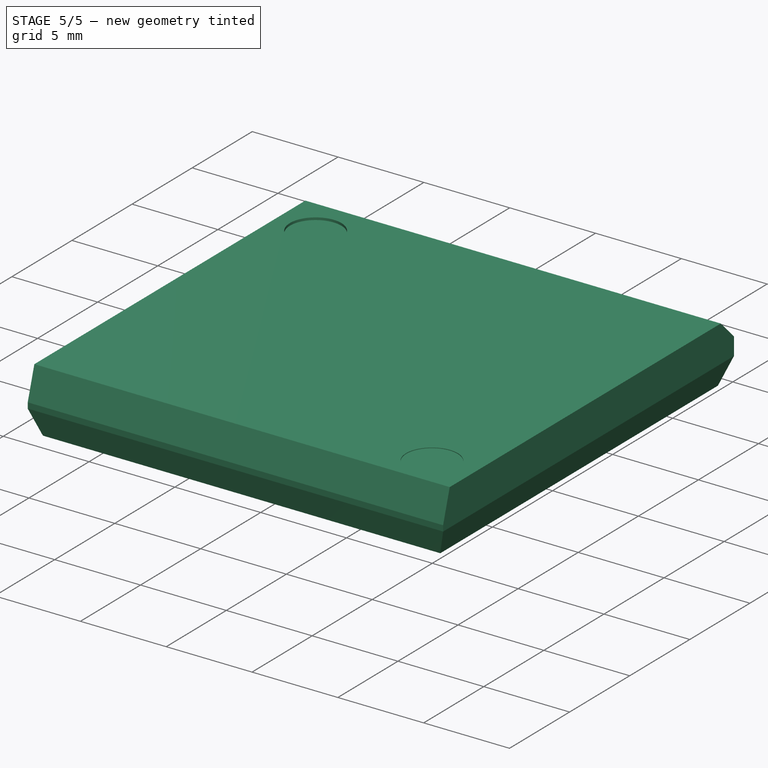
[diagram: stage 5 of 5 — iso view after this stage's code; geometry added in this stage tinted green]
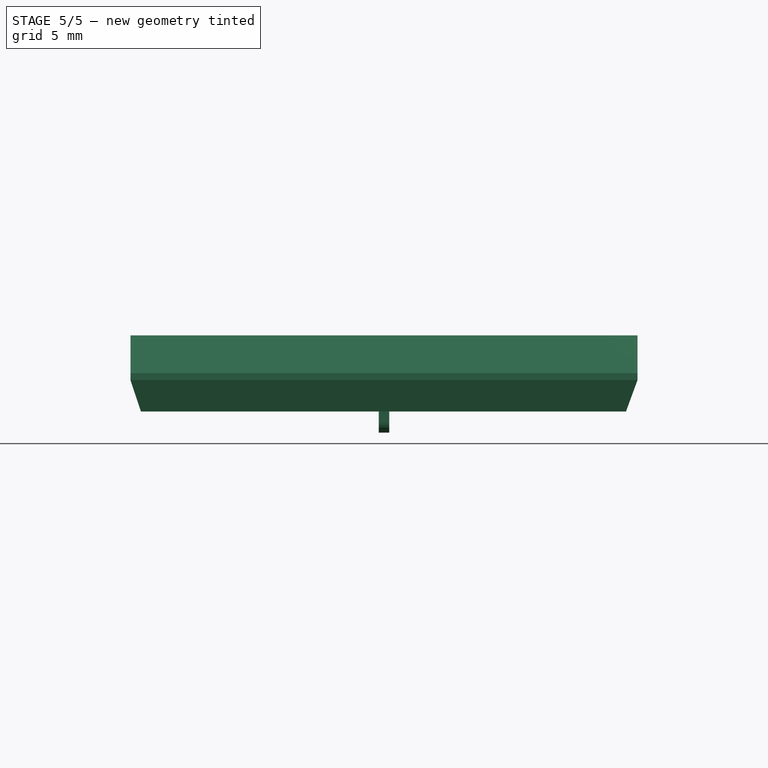
[diagram: stage 5 of 5 — front view after this stage's code; geometry added in this stage tinted green]
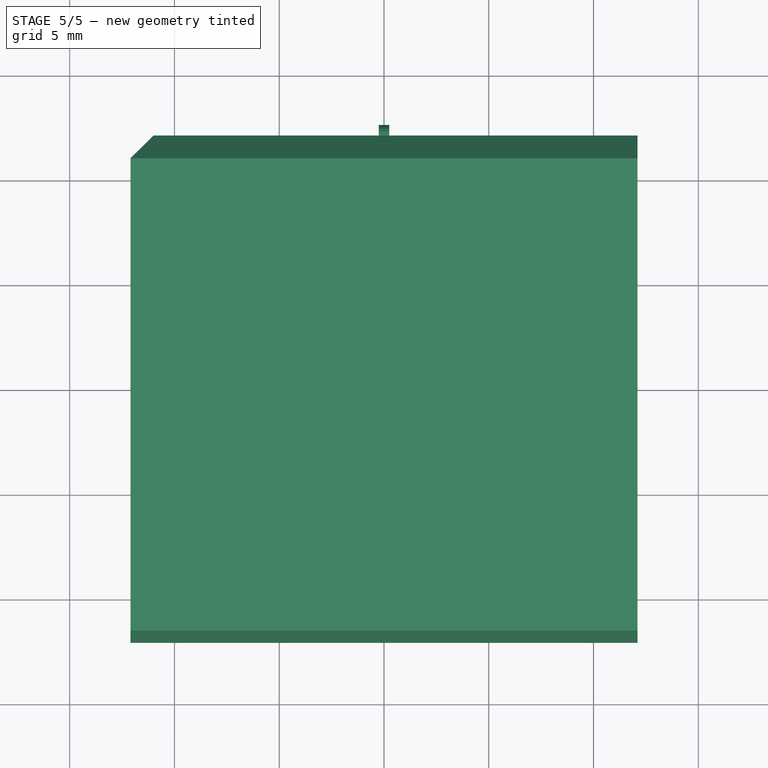
[diagram: stage 5 of 5 — top view after this stage's code; geometry added in this stage tinted green]
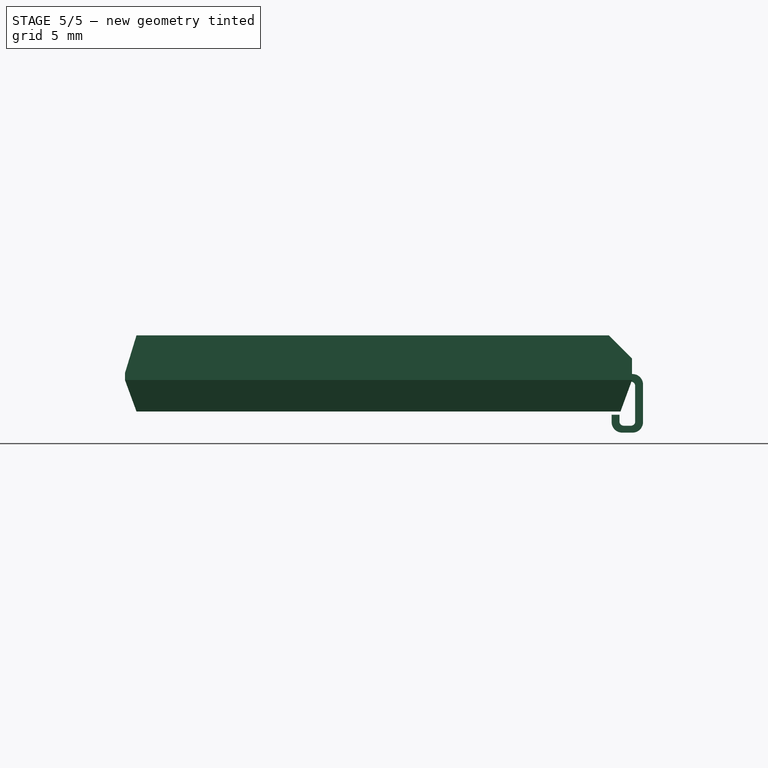
[diagram: stage 5 of 5 — right view after this stage's code; geometry added in this stage tinted green]
FEATURE [Sketcher::SketchObject] Sketch002
  FullyConstrained = false
  MapMode = 5
  Support = -> [XY_Plane001]
  sketch-geometry (8):
    g0: LineSegment StartX=-0.3 StartY=-12.5 StartZ=0 EndX=0.3 EndY=-12.5 EndZ=0
    g1: LineSegment StartX=0.3 StartY=-12.5 StartZ=0 EndX=0.3 EndY=-11.1 EndZ=0
    g2: LineSegment StartX=0.3 StartY=-11.1 StartZ=0 EndX=-0.3 EndY=-11.1 EndZ=0
    g3: LineSegment StartX=-0.3 StartY=-11.1 StartZ=0 EndX=-0.3 EndY=-12.5 EndZ=0
    g4: LineSegment StartX=-0.2 StartY=-12.4 StartZ=0 EndX=0.2 EndY=-12.4 EndZ=0
    g5: LineSegment StartX=0.2 StartY=-12.4 StartZ=0 EndX=0.2 EndY=-11.2 EndZ=0
    g6: LineSegment StartX=0.2 StartY=-11.2 StartZ=0 EndX=-0.2 EndY=-11.2 EndZ=0
    g7: LineSegment StartX=-0.2 StartY=-11.2 StartZ=0 EndX=-0.2 EndY=-12.4 EndZ=0
  constraints (16):
    c: Coincident(g0,g1)
    c: Coincident(g1,g2)
    c: Coincident(g2,g3)
    c: Coincident(g3,g0)
    c: Horizontal(g0)
    c: Horizontal(g2)
    c: Vertical(g1)
    c: Vertical(g3)
    c: Coincident(g4,g5)
    c: Coincident(g5,g6)
    c: Coincident(g6,g7)
    c: Coincident(g7,g4)
    c: Horizontal(g4)
    c: Horizontal(g6)
    c: Vertical(g5)
    c: Vertical(g7)
FEATURE [PartDesign::AdditiveBox] Box001
  AttacherType = Attacher::AttachEngine3D
  AttachmentOffset = pos=(-0.25,11.125,0) rot=(0,0,1;0rad)
  Height = 2.795
  Length = 0.5
  MapMode = 5
  Placement = pos=(-0.25,11.125,0) rot=(0,0,1;0rad)
  Support = -> [XY_Plane001]
  Width = 1.5
FEATURE [PartDesign::Fillet] Fillet
  Base = -> Box001 [Edge11]
  BaseFeature = -> Box001
  Placement = pos=(-0.25,11.125,0) rot=(0,0,1;0rad)
  Radius = 0.5
  SupportTransform = false
FEATURE [PartDesign::Fillet] Fillet001
  Base = -> Fillet [Edge8]
  BaseFeature = -> Fillet
  Placement = pos=(-0.25,11.125,0) rot=(0,0,1;0rad)
  Radius = 0.5
  SupportTransform = false
FEATURE [PartDesign::Fillet] Fillet002
  Base = -> Fillet001 [Edge16]
  BaseFeature = -> Fillet001
  Placement = pos=(-0.25,11.125,0) rot=(0,0,1;0rad)
  Radius = 0.5
  SupportTransform = false
FEATURE [PartDesign::SubtractiveBox] Box002
  AttacherType = Attacher::AttachEngine3D
  AttachmentOffset = pos=(11.5,0.33,-0.5) rot=(0,0,1;0rad)
  BaseFeature = -> Fillet002
  Height = 1
  Length = 0.75
  MapMode = 5
  Placement = pos=(-0.5,11.5,0.33) rot=(0.57735,0.57735,0.57735;2.0944rad)
  Support = -> [YZ_Plane001]
  Width = 2.1
FEATURE [PartDesign::Fillet] Fillet003
  Base = -> Box002 [Edge28]
  BaseFeature = -> Box002
  Placement = pos=(-0.5,11.5,0.33) rot=(0.57735,0.57735,0.57735;2.0944rad)
  Radius = 0.2
  SupportTransform = false
FEATURE [PartDesign::Fillet] Fillet004
  Base = -> Fillet003 [Edge15]
  BaseFeature = -> Fillet003
  Placement = pos=(-0.5,11.5,0.33) rot=(0.57735,0.57735,0.57735;2.0944rad)
  Radius = 0.2
  SupportTransform = false
FEATURE [PartDesign::Fillet] Fillet005
  Base = -> Fillet004 [Edge24]
  BaseFeature = -> Fillet004
  Placement = pos=(-0.5,11.5,0.33) rot=(0.57735,0.57735,0.57735;2.0944rad)
  Radius = 0.2
  SupportTransform = false
FEATURE [PartDesign::Fillet] Fillet006
  Base = -> Fillet005 [Edge23]
  BaseFeature = -> Fillet005
  Placement = pos=(-0.5,11.5,0.33) rot=(0.57735,0.57735,0.57735;2.0944rad)
  Radius = 0.2
  SupportTransform = false
FEATURE [PartDesign::SubtractiveBox] Box003
  AttacherType = Attacher::AttachEngine3D
  AttachmentOffset = pos=(11,0.855,-1) rot=(0,0,1;0rad)
  BaseFeature = -> Fillet006
  Height = 3
  Length = 1
  MapMode = 5
  Placement = pos=(-1,11,0.855) rot=(0.57735,0.57735,0.57735;2.0944rad)
  Support = -> [YZ_Plane001]
  Width = 1.575
FEATURE [PartDesign::Body] Body001  label="Leg"
  Group = -> [Sketch002,Box001,Fillet,Fillet001,Fillet002,Box002,Fillet003,Fillet004,Fillet005,Fillet006,Box003]
  Origin = -> Origin001
  Tip = -> Box003
FEATURE [PartDesign::AdditiveBox] Box005
  AttacherType = Attacher::AttachEngine3D
  AttachmentOffset = pos=(-0.25,11.125,0) rot=(0,0,1;0rad)
  Height = 2.795
  Length = 0.5
  MapMode = 5
  Placement = pos=(-0.25,11.125,0) rot=(0,0,1;0rad)
  Support = -> [XY_Plane002]
  Width = 1.5
FEATURE [PartDesign::Fillet] Fillet010
  Base = -> Box005 [Edge11]
  BaseFeature = -> Box005
  Placement = pos=(-0.25,11.125,0) rot=(0,0,1;0rad)
  Radius = 0.5
  SupportTransform = false
FEATURE [PartDesign::Fillet] Fillet012
  Base = -> Fillet010 [Edge8]
  BaseFeature = -> Fillet010
  Placement = pos=(-0.25,11.125,0) rot=(0,0,1;0rad)
  Radius = 0.5
  SupportTransform = false
FEATURE [PartDesign::Fillet] Fillet009
  Base = -> Fillet012 [Edge16]
  BaseFeature = -> Fillet012
  Placement = pos=(-0.25,11.125,0) rot=(0,0,1;0rad)
  Radius = 0.5
  SupportTransform = false
FEATURE [PartDesign::SubtractiveBox] Box004
  AttacherType = Attacher::AttachEngine3D
  AttachmentOffset = pos=(11.5,0.33,-0.5) rot=(0,0,1;0rad)
  BaseFeature = -> Fillet009
  Height = 1
  Length = 0.75
  MapMode = 5
  Placement = pos=(-0.5,11.5,0.33) rot=(0.57735,0.57735,0.57735;2.0944rad)
  Support = -> [YZ_Plane002]
  Width = 2.1
FEATURE [PartDesign::Fillet] Fillet011
  Base = -> Box004 [Edge28]
  BaseFeature = -> Box004
  Placement = pos=(-0.5,11.5,0.33) rot=(0.57735,0.57735,0.57735;2.0944rad)
  Radius = 0.2
  SupportTransform = false
FEATURE [PartDesign::Fillet] Fillet013
  Base = -> Fillet011 [Edge15]
  BaseFeature = -> Fillet011
  Placement = pos=(-0.5,11.5,0.33) rot=(0.57735,0.57735,0.57735;2.0944rad)
  Radius = 0.2
  SupportTransform = false
FEATURE [PartDesign::Fillet] Fillet007
  Base = -> Fillet013 [Edge24]
  BaseFeature = -> Fillet013
  Placement = pos=(-0.5,11.5,0.33) rot=(0.57735,0.57735,0.57735;2.0944rad)
  Radius = 0.2
  SupportTransform = false
FEATURE [PartDesign::Fillet] Fillet008
  Base = -> Fillet007 [Edge23]
  BaseFeature = -> Fillet007
  Placement = pos=(-0.5,11.5,0.33) rot=(0.57735,0.57735,0.57735;2.0944rad)
  Radius = 0.2
  SupportTransform = false
FEATURE [PartDesign::SubtractiveBox] Box006
  AttacherType = Attacher::AttachEngine3D
  AttachmentOffset = pos=(11,0.855,-1) rot=(0,0,1;0rad)
  BaseFeature = -> Fillet008
  Height = 3
  Length = 1
  MapMode = 5
  Placement = pos=(-1,11,0.855) rot=(0.57735,0.57735,0.57735;2.0944rad)
  Support = -> [YZ_Plane002]
  Width = 1.575
FEATURE [Sketcher::SketchObject] Sketch003
  FullyConstrained = false
  MapMode = 5
  Support = -> [XY_Plane002]
  sketch-geometry (8):
    g0: LineSegment StartX=-0.3 StartY=-12.5 StartZ=0 EndX=0.3 EndY=-12.5 EndZ=0
    g1: LineSegment StartX=0.3 StartY=-12.5 StartZ=0 EndX=0.3 EndY=-11.1 EndZ=0
    g2: LineSegment StartX=0.3 StartY=-11.1 StartZ=0 EndX=-0.3 EndY=-11.1 EndZ=0
    g3: LineSegment StartX=-0.3 StartY=-11.1 StartZ=0 EndX=-0.3 EndY=-12.5 EndZ=0
    g4: LineSegment StartX=-0.2 StartY=-12.4 StartZ=0 EndX=0.2 EndY=-12.4 EndZ=0
    g5: LineSegment StartX=0.2 StartY=-12.4 StartZ=0 EndX=0.2 EndY=-11.2 EndZ=0
    g6: LineSegment StartX=0.2 StartY=-11.2 StartZ=0 EndX=-0.2 EndY=-11.2 EndZ=0
    g7: LineSegment StartX=-0.2 StartY=-11.2 StartZ=0 EndX=-0.2 EndY=-12.4 EndZ=0
  constraints (16):
    c: Coincident(g0,g1)
    c: Coincident(g1,g2)
    c: Coincident(g2,g3)
    c: Coincident(g3,g0)
    c: Horizontal(g0)
    c: Horizontal(g2)
    c: Vertical(g1)
    c: Vertical(g3)
    c: Coincident(g4,g5)
    c: Coincident(g5,g6)
    c: Coincident(g6,g7)
    c: Coincident(g7,g4)
    c: Horizontal(g4)
    c: Horizontal(g6)
    c: Vertical(g5)
    c: Vertical(g7)
FEATURE [PartDesign::Body] Body002  label="Leg001"
  Group = -> [Sketch003,Box005,Fillet010,Fillet012,Fillet009,Box004,Fillet011,Fillet013,Fillet007,Fillet008,Box006]
  Origin = -> Origin002
  Placement = pos=(1.27,0,0) rot=(0,0,1;0rad)
  Tip = -> Box006
FEATURE [PartDesign::AdditiveBox] Box008
  AttacherType = Attacher::AttachEngine3D
  AttachmentOffset = pos=(-0.25,11.125,0) rot=(0,0,1;0rad)
  Height = 2.795
  Length = 0.5
  MapMode = 5
  Placement = pos=(-0.25,11.125,0) rot=(0,0,1;0rad)
  Support = -> [XY_Plane003]
  Width = 1.5
FEATURE [PartDesign::Fillet] Fillet017
  Base = -> Box008 [Edge11]
  BaseFeature = -> Box008
  Placement = pos=(-0.25,11.125,0) rot=(0,0,1;0rad)
  Radius = 0.5
  SupportTransform = false
FEATURE [PartDesign::Fillet] Fillet019
  Base = -> Fillet017 [Edge8]
  BaseFeature = -> Fillet017
  Placement = pos=(-0.25,11.125,0) rot=(0,0,1;0rad)
  Radius = 0.5
  SupportTransform = false
FEATURE [PartDesign::Fillet] Fillet016
  Base = -> Fillet019 [Edge16]
  BaseFeature = -> Fillet019
  Placement = pos=(-0.25,11.125,0) rot=(0,0,1;0rad)
  Radius = 0.5
  SupportTransform = false
FEATURE [PartDesign::SubtractiveBox] Box007
  AttacherType = Attacher::AttachEngine3D
  AttachmentOffset = pos=(11.5,0.33,-0.5) rot=(0,0,1;0rad)
  BaseFeature = -> Fillet016
  Height = 1
  Length = 0.75
  MapMode = 5
  Placement = pos=(-0.5,11.5,0.33) rot=(0.57735,0.57735,0.57735;2.0944rad)
  Support = -> [YZ_Plane003]
  Width = 2.1
FEATURE [PartDesign::Fillet] Fillet018
  Base = -> Box007 [Edge28]
  BaseFeature = -> Box007
  Placement = pos=(-0.5,11.5,0.33) rot=(0.57735,0.57735,0.57735;2.0944rad)
  Radius = 0.2
  SupportTransform = false
FEATURE [PartDesign::Fillet] Fillet020
  Base = -> Fillet018 [Edge15]
  BaseFeature = -> Fillet018
  Placement = pos=(-0.5,11.5,0.33) rot=(0.57735,0.57735,0.57735;2.0944rad)
  Radius = 0.2
  SupportTransform = false
FEATURE [PartDesign::Fillet] Fillet014
  Base = -> Fillet020 [Edge24]
  BaseFeature = -> Fillet020
  Placement = pos=(-0.5,11.5,0.33) rot=(0.57735,0.57735,0.57735;2.0944rad)
  Radius = 0.2
  SupportTransform = false
FEATURE [PartDesign::Fillet] Fillet015
  Base = -> Fillet014 [Edge23]
  BaseFeature = -> Fillet014
  Placement = pos=(-0.5,11.5,0.33) rot=(0.57735,0.57735,0.57735;2.0944rad)
  Radius = 0.2
  SupportTransform = false
FEATURE [PartDesign::SubtractiveBox] Box009
  AttacherType = Attacher::AttachEngine3D
  AttachmentOffset = pos=(11,0.855,-1) rot=(0,0,1;0rad)
  BaseFeature = -> Fillet015
  Height = 3
  Length = 1
  MapMode = 5
  Placement = pos=(-1,11,0.855) rot=(0.57735,0.57735,0.57735;2.0944rad)
  Support = -> [YZ_Plane003]
  Width = 1.575
FEATURE [Sketcher::SketchObject] Sketch004
  FullyConstrained = false
  MapMode = 5
  Support = -> [XY_Plane003]
  sketch-geometry (8):
    g0: LineSegment StartX=-0.3 StartY=-12.5 StartZ=0 EndX=0.3 EndY=-12.5 EndZ=0
    g1: LineSegment StartX=0.3 StartY=-12.5 StartZ=0 EndX=0.3 EndY=-11.1 EndZ=0
    g2: LineSegment StartX=0.3 StartY=-11.1 StartZ=0 EndX=-0.3 EndY=-11.1 EndZ=0
    g3: LineSegment StartX=-0.3 StartY=-11.1 StartZ=0 EndX=-0.3 EndY=-12.5 EndZ=0
    g4: LineSegment StartX=-0.2 StartY=-12.4 StartZ=0 EndX=0.2 EndY=-12.4 EndZ=0
    g5: LineSegment StartX=0.2 StartY=-12.4 StartZ=0 EndX=0.2 EndY=-11.2 EndZ=0
    g6: LineSegment StartX=0.2 StartY=-11.2 StartZ=0 EndX=-0.2 EndY=-11.2 EndZ=0
    g7: LineSegment StartX=-0.2 StartY=-11.2 StartZ=0 EndX=-0.2 EndY=-12.4 EndZ=0
  constraints (16):
    c: Coincident(g0,g1)
    c: Coincident(g1,g2)
    c: Coincident(g2,g3)
    c: Coincident(g3,g0)
    c: Horizontal(g0)
    c: Horizontal(g2)
    c: Vertical(g1)
    c: Vertical(g3)
    c: Coincident(g4,g5)
    c: Coincident(g5,g6)
    c: Coincident(g6,g7)
    c: Coincident(g7,g4)
    c: Horizontal(g4)
    c: Horizontal(g6)
    c: Vertical(g5)
    c: Vertical(g7)
FEATURE [PartDesign::Body] Body003  label="Leg002"
  Group = -> [Sketch004,Box008,Fillet017,Fillet019,Fillet016,Box007,Fillet018,Fillet020,Fillet014,Fillet015,Box009]
  Origin = -> Origin003
  Placement = pos=(2.54,0,0) rot=(0,0,1;0rad)
  Tip = -> Box009
FEATURE [PartDesign::AdditiveBox] Box011
  AttacherType = Attacher::AttachEngine3D
  AttachmentOffset = pos=(-0.25,11.125,0) rot=(0,0,1;0rad)
  Height = 2.795
  Length = 0.5
  MapMode = 5
  Placement = pos=(-0.25,11.125,0) rot=(0,0,1;0rad)
  Support = -> [XY_Plane004]
  Width = 1.5
FEATURE [PartDesign::Fillet] Fillet024
  Base = -> Box011 [Edge11]
  BaseFeature = -> Box011
  Placement = pos=(-0.25,11.125,0) rot=(0,0,1;0rad)
  Radius = 0.5
  SupportTransform = false
FEATURE [PartDesign::Fillet] Fillet026
  Base = -> Fillet024 [Edge8]
  BaseFeature = -> Fillet024
  Placement = pos=(-0.25,11.125,0) rot=(0,0,1;0rad)
  Radius = 0.5
  SupportTransform = false
FEATURE [PartDesign::Fillet] Fillet023
  Base = -> Fillet026 [Edge16]
  BaseFeature = -> Fillet026
  Placement = pos=(-0.25,11.125,0) rot=(0,0,1;0rad)
  Radius = 0.5
  SupportTransform = false
FEATURE [PartDesign::SubtractiveBox] Box010
  AttacherType = Attacher::AttachEngine3D
  AttachmentOffset = pos=(11.5,0.33,-0.5) rot=(0,0,1;0rad)
  BaseFeature = -> Fillet023
  Height = 1
  Length = 0.75
  MapMode = 5
  Placement = pos=(-0.5,11.5,0.33) rot=(0.57735,0.57735,0.57735;2.0944rad)
  Support = -> [YZ_Plane004]
  Width = 2.1
FEATURE [PartDesign::Fillet] Fillet025
  Base = -> Box010 [Edge28]
  BaseFeature = -> Box010
  Placement = pos=(-0.5,11.5,0.33) rot=(0.57735,0.57735,0.57735;2.0944rad)
  Radius = 0.2
  SupportTransform = false
FEATURE [PartDesign::Fillet] Fillet027
  Base = -> Fillet025 [Edge15]
  BaseFeature = -> Fillet025
  Placement = pos=(-0.5,11.5,0.33) rot=(0.57735,0.57735,0.57735;2.0944rad)
  Radius = 0.2
  SupportTransform = false
FEATURE [PartDesign::Fillet] Fillet021
  Base = -> Fillet027 [Edge24]
  BaseFeature = -> Fillet027
  Placement = pos=(-0.5,11.5,0.33) rot=(0.57735,0.57735,0.57735;2.0944rad)
  Radius = 0.2
  SupportTransform = false
FEATURE [PartDesign::Fillet] Fillet022
  Base = -> Fillet021 [Edge23]
  BaseFeature = -> Fillet021
  Placement = pos=(-0.5,11.5,0.33) rot=(0.57735,0.57735,0.57735;2.0944rad)
  Radius = 0.2
  SupportTransform = false
FEATURE [PartDesign::SubtractiveBox] Box012
  AttacherType = Attacher::AttachEngine3D
  AttachmentOffset = pos=(11,0.855,-1) rot=(0,0,1;0rad)
  BaseFeature = -> Fillet022
  Height = 3
  Length = 1
  MapMode = 5
  Placement = pos=(-1,11,0.855) rot=(0.57735,0.57735,0.57735;2.0944rad)
  Support = -> [YZ_Plane004]
  Width = 1.575
FEATURE [Sketcher::SketchObject] Sketch005
  FullyConstrained = false
  MapMode = 5
  Support = -> [XY_Plane004]
  sketch-geometry (8):
    g0: LineSegment StartX=-0.3 StartY=-12.5 StartZ=0 EndX=0.3 EndY=-12.5 EndZ=0
    g1: LineSegment StartX=0.3 StartY=-12.5 StartZ=0 EndX=0.3 EndY=-11.1 EndZ=0
    g2: LineSegment StartX=0.3 StartY=-11.1 StartZ=0 EndX=-0.3 EndY=-11.1 EndZ=0
    g3: LineSegment StartX=-0.3 StartY=-11.1 StartZ=0 EndX=-0.3 EndY=-12.5 EndZ=0
    g4: LineSegment StartX=-0.2 StartY=-12.4 StartZ=0 EndX=0.2 EndY=-12.4 EndZ=0
    g5: LineSegment StartX=0.2 StartY=-12.4 StartZ=0 EndX=0.2 EndY=-11.2 EndZ=0
    g6: LineSegment StartX=0.2 StartY=-11.2 StartZ=0 EndX=-0.2 EndY=-11.2 EndZ=0
    g7: LineSegment StartX=-0.2 StartY=-11.2 StartZ=0 EndX=-0.2 EndY=-12.4 EndZ=0
  constraints (16):
    c: Coincident(g0,g1)
    c: Coincident(g1,g2)
    c: Coincident(g2,g3)
    c: Coincident(g3,g0)
    c: Horizontal(g0)
    c: Horizontal(g2)
    c: Vertical(g1)
    c: Vertical(g3)
    c: Coincident(g4,g5)
    c: Coincident(g5,g6)
    c: Coincident(g6,g7)
    c: Coincident(g7,g4)
    c: Horizontal(g4)
    c: Horizontal(g6)
    c: Vertical(g5)
    c: Vertical(g7)
FEATURE [PartDesign::Body] Body004  label="Leg003"
  Group = -> [Sketch005,Box011,Fillet024,Fillet026,Fillet023,Box010,Fillet025,Fillet027,Fillet021,Fillet022,Box012]
  Origin = -> Origin004
  Placement = pos=(3.81,0,0) rot=(0,0,1;0rad)
  Tip = -> Box012
FEATURE [PartDesign::AdditiveBox] Box013
  AttacherType = Attacher::AttachEngine3D
  AttachmentOffset = pos=(-0.25,11.125,0) rot=(0,0,1;0rad)
  Height = 2.795
  Length = 0.5
  MapMode = 5
  Placement = pos=(-0.25,11.125,0) rot=(0,0,1;0rad)
  Support = -> [XY_Plane007]
  Width = 1.5
FEATURE [PartDesign::AdditiveBox] Box016
  AttacherType = Attacher::AttachEngine3D
  AttachmentOffset = pos=(-0.25,11.125,0) rot=(0,0,1;0rad)
  Height = 2.795
  Length = 0.5
  MapMode = 5
  Placement = pos=(-0.25,11.125,0) rot=(0,0,1;0rad)
  Support = -> [XY_Plane008]
  Width = 1.5
FEATURE [PartDesign::AdditiveBox] Box021
  AttacherType = Attacher::AttachEngine3D
  AttachmentOffset = pos=(-0.25,11.125,0) rot=(0,0,1;0rad)
  Height = 2.795
  Length = 0.5
  MapMode = 5
  Placement = pos=(-0.25,11.125,0) rot=(0,0,1;0rad)
  Support = -> [XY_Plane005]
  Width = 1.5
FEATURE [PartDesign::AdditiveBox] Box023
  AttacherType = Attacher::AttachEngine3D
  AttachmentOffset = pos=(-0.25,11.125,0) rot=(0,0,1;0rad)
  Height = 2.795
  Length = 0.5
  MapMode = 5
  Placement = pos=(-0.25,11.125,0) rot=(0,0,1;0rad)
  Support = -> [XY_Plane006]
  Width = 1.5
FEATURE [PartDesign::Fillet] Fillet035
  Base = -> Box023 [Edge11]
  BaseFeature = -> Box023
  Placement = pos=(-0.25,11.125,0) rot=(0,0,1;0rad)
  Radius = 0.5
  SupportTransform = false
FEATURE [PartDesign::Fillet] Fillet038
  Base = -> Fillet035 [Edge8]
  BaseFeature = -> Fillet035
  Placement = pos=(-0.25,11.125,0) rot=(0,0,1;0rad)
  Radius = 0.5
  SupportTransform = false
FEATURE [PartDesign::Fillet] Fillet034
  Base = -> Fillet038 [Edge16]
  BaseFeature = -> Fillet038
  Placement = pos=(-0.25,11.125,0) rot=(0,0,1;0rad)
  Radius = 0.5
  SupportTransform = false
FEATURE [PartDesign::SubtractiveBox] Box014
  AttacherType = Attacher::AttachEngine3D
  AttachmentOffset = pos=(11.5,0.33,-0.5) rot=(0,0,1;0rad)
  BaseFeature = -> Fillet034
  Height = 1
  Length = 0.75
  MapMode = 5
  Placement = pos=(-0.5,11.5,0.33) rot=(0.57735,0.57735,0.57735;2.0944rad)
  Support = -> [YZ_Plane006]
  Width = 2.1
FEATURE [PartDesign::Fillet] Fillet036
  Base = -> Box014 [Edge28]
  BaseFeature = -> Box014
  Placement = pos=(-0.5,11.5,0.33) rot=(0.57735,0.57735,0.57735;2.0944rad)
  Radius = 0.2
  SupportTransform = false
FEATURE [PartDesign::Fillet] Fillet039
  Base = -> Fillet036 [Edge15]
  BaseFeature = -> Fillet036
  Placement = pos=(-0.5,11.5,0.33) rot=(0.57735,0.57735,0.57735;2.0944rad)
  Radius = 0.2
  SupportTransform = false
FEATURE [PartDesign::Fillet] Fillet030
  Base = -> Fillet039 [Edge24]
  BaseFeature = -> Fillet039
  Placement = pos=(-0.5,11.5,0.33) rot=(0.57735,0.57735,0.57735;2.0944rad)
  Radius = 0.2
  SupportTransform = false
FEATURE [PartDesign::Fillet] Fillet033
  Base = -> Fillet030 [Edge23]
  BaseFeature = -> Fillet030
  Placement = pos=(-0.5,11.5,0.33) rot=(0.57735,0.57735,0.57735;2.0944rad)
  Radius = 0.2
  SupportTransform = false
FEATURE [PartDesign::Fillet] Fillet041
  Base = -> Box016 [Edge11]
  BaseFeature = -> Box016
  Placement = pos=(-0.25,11.125,0) rot=(0,0,1;0rad)
  Radius = 0.5
  SupportTransform = false
FEATURE [PartDesign::Fillet] Fillet043
  Base = -> Box021 [Edge11]
  BaseFeature = -> Box021
  Placement = pos=(-0.25,11.125,0) rot=(0,0,1;0rad)
  Radius = 0.5
  SupportTransform = false
FEATURE [PartDesign::Fillet] Fillet028
  Base = -> Fillet043 [Edge8]
  BaseFeature = -> Fillet043
  Placement = pos=(-0.25,11.125,0) rot=(0,0,1;0rad)
  Radius = 0.5
  SupportTransform = false
FEATURE [PartDesign::Fillet] Fillet045
  Base = -> Fillet041 [Edge8]
  BaseFeature = -> Fillet041
  Placement = pos=(-0.25,11.125,0) rot=(0,0,1;0rad)
  Radius = 0.5
  SupportTransform = false
FEATURE [PartDesign::Fillet] Fillet037
  Base = -> Fillet045 [Edge16]
  BaseFeature = -> Fillet045
  Placement = pos=(-0.25,11.125,0) rot=(0,0,1;0rad)
  Radius = 0.5
  SupportTransform = false
FEATURE [PartDesign::SubtractiveBox] Box015
  AttacherType = Attacher::AttachEngine3D
  AttachmentOffset = pos=(11.5,0.33,-0.5) rot=(0,0,1;0rad)
  BaseFeature = -> Fillet037
  Height = 1
  Length = 0.75
  MapMode = 5
  Placement = pos=(-0.5,11.5,0.33) rot=(0.57735,0.57735,0.57735;2.0944rad)
  Support = -> [YZ_Plane007]
  Width = 2.1
FEATURE [PartDesign::Fillet] Fillet032
  Base = -> Box015 [Edge28]
  BaseFeature = -> Box015
  Placement = pos=(-0.5,11.5,0.33) rot=(0.57735,0.57735,0.57735;2.0944rad)
  Radius = 0.2
  SupportTransform = false
FEATURE [PartDesign::Fillet] Fillet047
  Base = -> Box013 [Edge11]
  BaseFeature = -> Box013
  Placement = pos=(-0.25,11.125,0) rot=(0,0,1;0rad)
  Radius = 0.5
  SupportTransform = false
FEATURE [PartDesign::Fillet] Fillet042
  Base = -> Fillet047 [Edge8]
  BaseFeature = -> Fillet047
  Placement = pos=(-0.25,11.125,0) rot=(0,0,1;0rad)
  Radius = 0.5
  SupportTransform = false
FEATURE [PartDesign::Fillet] Fillet046
  Base = -> Fillet042 [Edge16]
  BaseFeature = -> Fillet042
  Placement = pos=(-0.25,11.125,0) rot=(0,0,1;0rad)
  Radius = 0.5
  SupportTransform = false
FEATURE [PartDesign::SubtractiveBox] Box018
  AttacherType = Attacher::AttachEngine3D
  AttachmentOffset = pos=(11.5,0.33,-0.5) rot=(0,0,1;0rad)
  BaseFeature = -> Fillet046
  Height = 1
  Length = 0.75
  MapMode = 5
  Placement = pos=(-0.5,11.5,0.33) rot=(0.57735,0.57735,0.57735;2.0944rad)
  Support = -> [YZ_Plane008]
  Width = 2.1
FEATURE [PartDesign::Fillet] Fillet049
  Base = -> Box018 [Edge28]
  BaseFeature = -> Box018
  Placement = pos=(-0.5,11.5,0.33) rot=(0.57735,0.57735,0.57735;2.0944rad)
  Radius = 0.2
  SupportTransform = false
FEATURE [PartDesign::Fillet] Fillet050
  Base = -> Fillet049 [Edge15]
  BaseFeature = -> Fillet049
  Placement = pos=(-0.5,11.5,0.33) rot=(0.57735,0.57735,0.57735;2.0944rad)
  Radius = 0.2
  SupportTransform = false
FEATURE [PartDesign::Fillet] Fillet044
  Base = -> Fillet050 [Edge24]
  BaseFeature = -> Fillet050
  Placement = pos=(-0.5,11.5,0.33) rot=(0.57735,0.57735,0.57735;2.0944rad)
  Radius = 0.2
  SupportTransform = false
FEATURE [PartDesign::Fillet] Fillet048
  Base = -> Fillet044 [Edge23]
  BaseFeature = -> Fillet044
  Placement = pos=(-0.5,11.5,0.33) rot=(0.57735,0.57735,0.57735;2.0944rad)
  Radius = 0.2
  SupportTransform = false
FEATURE [PartDesign::SubtractiveBox] Box020
  AttacherType = Attacher::AttachEngine3D
  AttachmentOffset = pos=(11,0.855,-1) rot=(0,0,1;0rad)
  BaseFeature = -> Fillet048
  Height = 3
  Length = 1
  MapMode = 5
  Placement = pos=(-1,11,0.855) rot=(0.57735,0.57735,0.57735;2.0944rad)
  Support = -> [YZ_Plane008]
  Width = 1.575
FEATURE [PartDesign::Fillet] Fillet053
  Base = -> Fillet028 [Edge16]
  BaseFeature = -> Fillet028
  Placement = pos=(-0.25,11.125,0) rot=(0,0,1;0rad)
  Radius = 0.5
  SupportTransform = false
FEATURE [PartDesign::SubtractiveBox] Box019
  AttacherType = Attacher::AttachEngine3D
  AttachmentOffset = pos=(11.5,0.33,-0.5) rot=(0,0,1;0rad)
  BaseFeature = -> Fillet053
  Height = 1
  Length = 0.75
  MapMode = 5
  Placement = pos=(-0.5,11.5,0.33) rot=(0.57735,0.57735,0.57735;2.0944rad)
  Support = -> [YZ_Plane005]
  Width = 2.1
FEATURE [PartDesign::Fillet] Fillet054
  Base = -> Fillet032 [Edge15]
  BaseFeature = -> Fillet032
  Placement = pos=(-0.5,11.5,0.33) rot=(0.57735,0.57735,0.57735;2.0944rad)
  Radius = 0.2
  SupportTransform = false
FEATURE [PartDesign::Fillet] Fillet040
  Base = -> Fillet054 [Edge24]
  BaseFeature = -> Fillet054
  Placement = pos=(-0.5,11.5,0.33) rot=(0.57735,0.57735,0.57735;2.0944rad)
  Radius = 0.2
  SupportTransform = false
FEATURE [PartDesign::Fillet] Fillet031
  Base = -> Fillet040 [Edge23]
  BaseFeature = -> Fillet040
  Placement = pos=(-0.5,11.5,0.33) rot=(0.57735,0.57735,0.57735;2.0944rad)
  Radius = 0.2
  SupportTransform = false
FEATURE [PartDesign::SubtractiveBox] Box017
  AttacherType = Attacher::AttachEngine3D
  AttachmentOffset = pos=(11,0.855,-1) rot=(0,0,1;0rad)
  BaseFeature = -> Fillet031
  Height = 3
  Length = 1
  MapMode = 5
  Placement = pos=(-1,11,0.855) rot=(0.57735,0.57735,0.57735;2.0944rad)
  Support = -> [YZ_Plane007]
  Width = 1.575
FEATURE [PartDesign::Fillet] Fillet055
  Base = -> Box019 [Edge28]
  BaseFeature = -> Box019
  Placement = pos=(-0.5,11.5,0.33) rot=(0.57735,0.57735,0.57735;2.0944rad)
  Radius = 0.2
  SupportTransform = false
FEATURE [PartDesign::Fillet] Fillet029
  Base = -> Fillet055 [Edge15]
  BaseFeature = -> Fillet055
  Placement = pos=(-0.5,11.5,0.33) rot=(0.57735,0.57735,0.57735;2.0944rad)
  Radius = 0.2
  SupportTransform = false
FEATURE [PartDesign::Fillet] Fillet051
  Base = -> Fillet029 [Edge24]
  BaseFeature = -> Fillet029
  Placement = pos=(-0.5,11.5,0.33) rot=(0.57735,0.57735,0.57735;2.0944rad)
  Radius = 0.2
  SupportTransform = false
FEATURE [PartDesign::Fillet] Fillet052
  Base = -> Fillet051 [Edge23]
  BaseFeature = -> Fillet051
  Placement = pos=(-0.5,11.5,0.33) rot=(0.57735,0.57735,0.57735;2.0944rad)
  Radius = 0.2
  SupportTransform = false
FEATURE [PartDesign::SubtractiveBox] Box022
  AttacherType = Attacher::AttachEngine3D
  AttachmentOffset = pos=(11,0.855,-1) rot=(0,0,1;0rad)
  BaseFeature = -> Fillet052
  Height = 3
  Length = 1
  MapMode = 5
  Placement = pos=(-1,11,0.855) rot=(0.57735,0.57735,0.57735;2.0944rad)
  Support = -> [YZ_Plane005]
  Width = 1.575
FEATURE [PartDesign::SubtractiveBox] Box024
  AttacherType = Attacher::AttachEngine3D
  AttachmentOffset = pos=(11,0.855,-1) rot=(0,0,1;0rad)
  BaseFeature = -> Fillet033
  Height = 3
  Length = 1
  MapMode = 5
  Placement = pos=(-1,11,0.855) rot=(0.57735,0.57735,0.57735;2.0944rad)
  Support = -> [YZ_Plane006]
  Width = 1.575
FEATURE [Sketcher::SketchObject] Sketch006
  FullyConstrained = false
  MapMode = 5
  Support = -> [XY_Plane007]
  sketch-geometry (8):
    g0: LineSegment StartX=-0.3 StartY=-12.5 StartZ=0 EndX=0.3 EndY=-12.5 EndZ=0
    g1: LineSegment StartX=0.3 StartY=-12.5 StartZ=0 EndX=0.3 EndY=-11.1 EndZ=0
    g2: LineSegment StartX=0.3 StartY=-11.1 StartZ=0 EndX=-0.3 EndY=-11.1 EndZ=0
    g3: LineSegment StartX=-0.3 StartY=-11.1 StartZ=0 EndX=-0.3 EndY=-12.5 EndZ=0
    g4: LineSegment StartX=-0.2 StartY=-12.4 StartZ=0 EndX=0.2 EndY=-12.4 EndZ=0
    g5: LineSegment StartX=0.2 StartY=-12.4 StartZ=0 EndX=0.2 EndY=-11.2 EndZ=0
    g6: LineSegment StartX=0.2 StartY=-11.2 StartZ=0 EndX=-0.2 EndY=-11.2 EndZ=0
    g7: LineSegment StartX=-0.2 StartY=-11.2 StartZ=0 EndX=-0.2 EndY=-12.4 EndZ=0
  constraints (16):
    c: Coincident(g0,g1)
    c: Coincident(g1,g2)
    c: Coincident(g2,g3)
    c: Coincident(g3,g0)
    c: Horizontal(g0)
    c: Horizontal(g2)
    c: Vertical(g1)
    c: Vertical(g3)
    c: Coincident(g4,g5)
    c: Coincident(g5,g6)
    c: Coincident(g6,g7)
    c: Coincident(g7,g4)
    c: Horizontal(g4)
    c: Horizontal(g6)
    c: Vertical(g5)
    c: Vertical(g7)
FEATURE [PartDesign::Body] Body007  label="Leg006"
  Group = -> [Sketch006,Box013,Fillet047,Fillet042,Fillet046,Box018,Fillet049,Fillet050,Fillet044,Fillet048,Box020]
  Origin = -> Origin008
  Placement = pos=(6.35,0,0) rot=(0,0,1;0rad)
  Tip = -> Box020
FEATURE [Sketcher::SketchObject] Sketch007
  FullyConstrained = false
  MapMode = 5
  Support = -> [XY_Plane008]
  sketch-geometry (8):
    g0: LineSegment StartX=-0.3 StartY=-12.5 StartZ=0 EndX=0.3 EndY=-12.5 EndZ=0
    g1: LineSegment StartX=0.3 StartY=-12.5 StartZ=0 EndX=0.3 EndY=-11.1 EndZ=0
    g2: LineSegment StartX=0.3 StartY=-11.1 StartZ=0 EndX=-0.3 EndY=-11.1 EndZ=0
    g3: LineSegment StartX=-0.3 StartY=-11.1 StartZ=0 EndX=-0.3 EndY=-12.5 EndZ=0
    g4: LineSegment StartX=-0.2 StartY=-12.4 StartZ=0 EndX=0.2 EndY=-12.4 EndZ=0
    g5: LineSegment StartX=0.2 StartY=-12.4 StartZ=0 EndX=0.2 EndY=-11.2 EndZ=0
    g6: LineSegment StartX=0.2 StartY=-11.2 StartZ=0 EndX=-0.2 EndY=-11.2 EndZ=0
    g7: LineSegment StartX=-0.2 StartY=-11.2 StartZ=0 EndX=-0.2 EndY=-12.4 EndZ=0
  constraints (16):
    c: Coincident(g0,g1)
    c: Coincident(g1,g2)
    c: Coincident(g2,g3)
    c: Coincident(g3,g0)
    c: Horizontal(g0)
    c: Horizontal(g2)
    c: Vertical(g1)
    c: Vertical(g3)
    c: Coincident(g4,g5)
    c: Coincident(g5,g6)
    c: Coincident(g6,g7)
    c: Coincident(g7,g4)
    c: Horizontal(g4)
    c: Horizontal(g6)
    c: Vertical(g5)
    c: Vertical(g7)
FEATURE [PartDesign::Body] Body006  label="Leg005"
  Group = -> [Sketch007,Box016,Fillet041,Fillet045,Fillet037,Box015,Fillet032,Fillet054,Fillet040,Fillet031,Box017]
  Origin = -> Origin006
  Placement = pos=(-1.27,0,0) rot=(0,0,1;0rad)
  Tip = -> Box017
FEATURE [Sketcher::SketchObject] Sketch008
  FullyConstrained = false
  MapMode = 5
  Support = -> [XY_Plane005]
  sketch-geometry (8):
    g0: LineSegment StartX=-0.3 StartY=-12.5 StartZ=0 EndX=0.3 EndY=-12.5 EndZ=0
    g1: LineSegment StartX=0.3 StartY=-12.5 StartZ=0 EndX=0.3 EndY=-11.1 EndZ=0
    g2: LineSegment StartX=0.3 StartY=-11.1 StartZ=0 EndX=-0.3 EndY=-11.1 EndZ=0
    g3: LineSegment StartX=-0.3 StartY=-11.1 StartZ=0 EndX=-0.3 EndY=-12.5 EndZ=0
    g4: LineSegment StartX=-0.2 StartY=-12.4 StartZ=0 EndX=0.2 EndY=-12.4 EndZ=0
    g5: LineSegment StartX=0.2 StartY=-12.4 StartZ=0 EndX=0.2 EndY=-11.2 EndZ=0
    g6: LineSegment StartX=0.2 StartY=-11.2 StartZ=0 EndX=-0.2 EndY=-11.2 EndZ=0
    g7: LineSegment StartX=-0.2 StartY=-11.2 StartZ=0 EndX=-0.2 EndY=-12.4 EndZ=0
  constraints (16):
    c: Coincident(g0,g1)
    c: Coincident(g1,g2)
    c: Coincident(g2,g3)
    c: Coincident(g3,g0)
    c: Horizontal(g0)
    c: Horizontal(g2)
    c: Vertical(g1)
    c: Vertical(g3)
    c: Coincident(g4,g5)
    c: Coincident(g5,g6)
    c: Coincident(g6,g7)
    c: Coincident(g7,g4)
    c: Horizontal(g4)
    c: Horizontal(g6)
    c: Vertical(g5)
    c: Vertical(g7)
FEATURE [PartDesign::Body] Body008  label="Leg007"
  Group = -> [Sketch008,Box021,Fillet043,Fillet028,Fillet053,Box019,Fillet055,Fillet029,Fillet051,Fillet052,Box022]
  Origin = -> Origin007
  Placement = pos=(7.62,0,0) rot=(0,0,1;0rad)
  Tip = -> Box022
FEATURE [Sketcher::SketchObject] Sketch009
  FullyConstrained = false
  MapMode = 5
  Support = -> [XY_Plane006]
  sketch-geometry (8):
    g0: LineSegment StartX=-0.3 StartY=-12.5 StartZ=0 EndX=0.3 EndY=-12.5 EndZ=0
    g1: LineSegment StartX=0.3 StartY=-12.5 StartZ=0 EndX=0.3 EndY=-11.1 EndZ=0
    g2: LineSegment StartX=0.3 StartY=-11.1 StartZ=0 EndX=-0.3 EndY=-11.1 EndZ=0
    g3: LineSegment StartX=-0.3 StartY=-11.1 StartZ=0 EndX=-0.3 EndY=-12.5 EndZ=0
    g4: LineSegment StartX=-0.2 StartY=-12.4 StartZ=0 EndX=0.2 EndY=-12.4 EndZ=0
    g5: LineSegment StartX=0.2 StartY=-12.4 StartZ=0 EndX=0.2 EndY=-11.2 EndZ=0
    g6: LineSegment StartX=0.2 StartY=-11.2 StartZ=0 EndX=-0.2 EndY=-11.2 EndZ=0
    g7: LineSegment StartX=-0.2 StartY=-11.2 StartZ=0 EndX=-0.2 EndY=-12.4 EndZ=0
  constraints (16):
    c: Coincident(g0,g1)
    c: Coincident(g1,g2)
    c: Coincident(g2,g3)
    c: Coincident(g3,g0)
    c: Horizontal(g0)
    c: Horizontal(g2)
    c: Vertical(g1)
    c: Vertical(g3)
    c: Coincident(g4,g5)
    c: Coincident(g5,g6)
    c: Coincident(g6,g7)
    c: Coincident(g7,g4)
    c: Horizontal(g4)
    c: Horizontal(g6)
    c: Vertical(g5)
    c: Vertical(g7)
FEATURE [PartDesign::Body] Body005  label="Leg004"
  Group = -> [Sketch009,Box023,Fillet035,Fillet038,Fillet034,Box014,Fillet036,Fillet039,Fillet030,Fillet033,Box024]
  Origin = -> Origin005
  Placement = pos=(5.08,0,0) rot=(0,0,1;0rad)
  Tip = -> Box024
FEATURE [PartDesign::AdditiveBox] Box025
  AttacherType = Attacher::AttachEngine3D
  AttachmentOffset = pos=(-0.25,11.125,0) rot=(0,0,1;0rad)
  Height = 2.795
  Length = 0.5
  MapMode = 5
  Placement = pos=(-0.25,11.125,0) rot=(0,0,1;0rad)
  Support = -> [XY_Plane014]
  Width = 1.5
FEATURE [PartDesign::AdditiveBox] Box028
  AttacherType = Attacher::AttachEngine3D
  AttachmentOffset = pos=(-0.25,11.125,0) rot=(0,0,1;0rad)
  Height = 2.795
  Length = 0.5
  MapMode = 5
  Placement = pos=(-0.25,11.125,0) rot=(0,0,1;0rad)
  Support = -> [XY_Plane015]
  Width = 1.5
FEATURE [PartDesign::AdditiveBox] Box033
  AttacherType = Attacher::AttachEngine3D
  AttachmentOffset = pos=(-0.25,11.125,0) rot=(0,0,1;0rad)
  Height = 2.795
  Length = 0.5
  MapMode = 5
  Placement = pos=(-0.25,11.125,0) rot=(0,0,1;0rad)
  Support = -> [XY_Plane012]
  Width = 1.5
FEATURE [PartDesign::AdditiveBox] Box035
  AttacherType = Attacher::AttachEngine3D
  AttachmentOffset = pos=(-0.25,11.125,0) rot=(0,0,1;0rad)
  Height = 2.795
  Length = 0.5
  MapMode = 5
  Placement = pos=(-0.25,11.125,0) rot=(0,0,1;0rad)
  Support = -> [XY_Plane009]
  Width = 1.5
FEATURE [PartDesign::Fillet] Fillet070
  Base = -> Box035 [Edge11]
  BaseFeature = -> Box035
  Placement = pos=(-0.25,11.125,0) rot=(0,0,1;0rad)
  Radius = 0.5
  SupportTransform = false
FEATURE [PartDesign::Fillet] Fillet069
  Base = -> Fillet070 [Edge8]
  BaseFeature = -> Fillet070
  Placement = pos=(-0.25,11.125,0) rot=(0,0,1;0rad)
  Radius = 0.5
  SupportTransform = false
FEATURE [PartDesign::Fillet] Fillet076
  Base = -> Fillet069 [Edge16]
  BaseFeature = -> Fillet069
  Placement = pos=(-0.25,11.125,0) rot=(0,0,1;0rad)
  Radius = 0.5
  SupportTransform = false
FEATURE [PartDesign::Fillet] Fillet097
  Base = -> Box028 [Edge11]
  BaseFeature = -> Box028
  Placement = pos=(-0.25,11.125,0) rot=(0,0,1;0rad)
  Radius = 0.5
  SupportTransform = false
FEATURE [PartDesign::Fillet] Fillet099
  Base = -> Box033 [Edge11]
  BaseFeature = -> Box033
  Placement = pos=(-0.25,11.125,0) rot=(0,0,1;0rad)
  Radius = 0.5
  SupportTransform = false
FEATURE [PartDesign::Fillet] Fillet056
  Base = -> Fillet099 [Edge8]
  BaseFeature = -> Fillet099
  Placement = pos=(-0.25,11.125,0) rot=(0,0,1;0rad)
  Radius = 0.5
  SupportTransform = false
FEATURE [PartDesign::Fillet] Fillet101
  Base = -> Fillet097 [Edge8]
  BaseFeature = -> Fillet097
  Placement = pos=(-0.25,11.125,0) rot=(0,0,1;0rad)
  Radius = 0.5
  SupportTransform = false
FEATURE [PartDesign::Fillet] Fillet093
  Base = -> Fillet101 [Edge16]
  BaseFeature = -> Fillet101
  Placement = pos=(-0.25,11.125,0) rot=(0,0,1;0rad)
  Radius = 0.5
  SupportTransform = false
FEATURE [PartDesign::SubtractiveBox] Box027
  AttacherType = Attacher::AttachEngine3D
  AttachmentOffset = pos=(11.5,0.33,-0.5) rot=(0,0,1;0rad)
  BaseFeature = -> Fillet093
  Height = 1
  Length = 0.75
  MapMode = 5
  Placement = pos=(-0.5,11.5,0.33) rot=(0.57735,0.57735,0.57735;2.0944rad)
  Support = -> [YZ_Plane013]
  Width = 2.1
FEATURE [PartDesign::Fillet] Fillet088
  Base = -> Box027 [Edge28]
  BaseFeature = -> Box027
  Placement = pos=(-0.5,11.5,0.33) rot=(0.57735,0.57735,0.57735;2.0944rad)
  Radius = 0.2
  SupportTransform = false
FEATURE [PartDesign::Fillet] Fillet103
  Base = -> Box025 [Edge11]
  BaseFeature = -> Box025
  Placement = pos=(-0.25,11.125,0) rot=(0,0,1;0rad)
  Radius = 0.5
  SupportTransform = false
FEATURE [PartDesign::Fillet] Fillet098
  Base = -> Fillet103 [Edge8]
  BaseFeature = -> Fillet103
  Placement = pos=(-0.25,11.125,0) rot=(0,0,1;0rad)
  Radius = 0.5
  SupportTransform = false
FEATURE [PartDesign::Fillet] Fillet102
  Base = -> Fillet098 [Edge16]
  BaseFeature = -> Fillet098
  Placement = pos=(-0.25,11.125,0) rot=(0,0,1;0rad)
  Radius = 0.5
  SupportTransform = false
FEATURE [PartDesign::SubtractiveBox] Box030
  AttacherType = Attacher::AttachEngine3D
  AttachmentOffset = pos=(11.5,0.33,-0.5) rot=(0,0,1;0rad)
  BaseFeature = -> Fillet102
  Height = 1
  Length = 0.75
  MapMode = 5
  Placement = pos=(-0.5,11.5,0.33) rot=(0.57735,0.57735,0.57735;2.0944rad)
  Support = -> [YZ_Plane014]
  Width = 2.1
FEATURE [PartDesign::Fillet] Fillet105
  Base = -> Box030 [Edge28]
  BaseFeature = -> Box030
  Placement = pos=(-0.5,11.5,0.33) rot=(0.57735,0.57735,0.57735;2.0944rad)
  Radius = 0.2
  SupportTransform = false
FEATURE [PartDesign::Fillet] Fillet106
  Base = -> Fillet105 [Edge15]
  BaseFeature = -> Fillet105
  Placement = pos=(-0.5,11.5,0.33) rot=(0.57735,0.57735,0.57735;2.0944rad)
  Radius = 0.2
  SupportTransform = false
FEATURE [PartDesign::Fillet] Fillet100
  Base = -> Fillet106 [Edge24]
  BaseFeature = -> Fillet106
  Placement = pos=(-0.5,11.5,0.33) rot=(0.57735,0.57735,0.57735;2.0944rad)
  Radius = 0.2
  SupportTransform = false
FEATURE [PartDesign::Fillet] Fillet104
  Base = -> Fillet100 [Edge23]
  BaseFeature = -> Fillet100
  Placement = pos=(-0.5,11.5,0.33) rot=(0.57735,0.57735,0.57735;2.0944rad)
  Radius = 0.2
  SupportTransform = false
FEATURE [PartDesign::SubtractiveBox] Box032
  AttacherType = Attacher::AttachEngine3D
  AttachmentOffset = pos=(11,0.855,-1) rot=(0,0,1;0rad)
  BaseFeature = -> Fillet104
  Height = 3
  Length = 1
  MapMode = 5
  Placement = pos=(-1,11,0.855) rot=(0.57735,0.57735,0.57735;2.0944rad)
  Support = -> [YZ_Plane014]
  Width = 1.575
FEATURE [PartDesign::Fillet] Fillet109
  Base = -> Fillet056 [Edge16]
  BaseFeature = -> Fillet056
  Placement = pos=(-0.25,11.125,0) rot=(0,0,1;0rad)
  Radius = 0.5
  SupportTransform = false
FEATURE [PartDesign::SubtractiveBox] Box031
  AttacherType = Attacher::AttachEngine3D
  AttachmentOffset = pos=(11.5,0.33,-0.5) rot=(0,0,1;0rad)
  BaseFeature = -> Fillet109
  Height = 1
  Length = 0.75
  MapMode = 5
  Placement = pos=(-0.5,11.5,0.33) rot=(0.57735,0.57735,0.57735;2.0944rad)
  Support = -> [YZ_Plane011]
  Width = 2.1
FEATURE [PartDesign::Fillet] Fillet110
  Base = -> Fillet088 [Edge15]
  BaseFeature = -> Fillet088
  Placement = pos=(-0.5,11.5,0.33) rot=(0.57735,0.57735,0.57735;2.0944rad)
  Radius = 0.2
  SupportTransform = false
FEATURE [PartDesign::Fillet] Fillet096
  Base = -> Fillet110 [Edge24]
  BaseFeature = -> Fillet110
  Placement = pos=(-0.5,11.5,0.33) rot=(0.57735,0.57735,0.57735;2.0944rad)
  Radius = 0.2
  SupportTransform = false
FEATURE [PartDesign::Fillet] Fillet087
  Base = -> Fillet096 [Edge23]
  BaseFeature = -> Fillet096
  Placement = pos=(-0.5,11.5,0.33) rot=(0.57735,0.57735,0.57735;2.0944rad)
  Radius = 0.2
  SupportTransform = false
FEATURE [PartDesign::SubtractiveBox] Box029
  AttacherType = Attacher::AttachEngine3D
  AttachmentOffset = pos=(11,0.855,-1) rot=(0,0,1;0rad)
  BaseFeature = -> Fillet087
  Height = 3
  Length = 1
  MapMode = 5
  Placement = pos=(-1,11,0.855) rot=(0.57735,0.57735,0.57735;2.0944rad)
  Support = -> [YZ_Plane013]
  Width = 1.575
FEATURE [PartDesign::Fillet] Fillet111
  Base = -> Box031 [Edge28]
  BaseFeature = -> Box031
  Placement = pos=(-0.5,11.5,0.33) rot=(0.57735,0.57735,0.57735;2.0944rad)
  Radius = 0.2
  SupportTransform = false
FEATURE [PartDesign::Fillet] Fillet060
  Base = -> Fillet111 [Edge15]
  BaseFeature = -> Fillet111
  Placement = pos=(-0.5,11.5,0.33) rot=(0.57735,0.57735,0.57735;2.0944rad)
  Radius = 0.2
  SupportTransform = false
FEATURE [PartDesign::Fillet] Fillet107
  Base = -> Fillet060 [Edge24]
  BaseFeature = -> Fillet060
  Placement = pos=(-0.5,11.5,0.33) rot=(0.57735,0.57735,0.57735;2.0944rad)
  Radius = 0.2
  SupportTransform = false
FEATURE [PartDesign::Fillet] Fillet108
  Base = -> Fillet107 [Edge23]
  BaseFeature = -> Fillet107
  Placement = pos=(-0.5,11.5,0.33) rot=(0.57735,0.57735,0.57735;2.0944rad)
  Radius = 0.2
  SupportTransform = false
FEATURE [PartDesign::SubtractiveBox] Box034
  AttacherType = Attacher::AttachEngine3D
  AttachmentOffset = pos=(11,0.855,-1) rot=(0,0,1;0rad)
  BaseFeature = -> Fillet108
  Height = 3
  Length = 1
  MapMode = 5
  Placement = pos=(-1,11,0.855) rot=(0.57735,0.57735,0.57735;2.0944rad)
  Support = -> [YZ_Plane011]
  Width = 1.575
FEATURE [PartDesign::AdditiveBox] Box037
  AttacherType = Attacher::AttachEngine3D
  AttachmentOffset = pos=(-0.25,11.125,0) rot=(0,0,1;0rad)
  Height = 2.795
  Length = 0.5
  MapMode = 5
  Placement = pos=(-0.25,11.125,0) rot=(0,0,1;0rad)
  Support = -> [XY_Plane016]
  Width = 1.5
FEATURE [PartDesign::Fillet] Fillet064
  Base = -> Box037 [Edge11]
  BaseFeature = -> Box037
  Placement = pos=(-0.25,11.125,0) rot=(0,0,1;0rad)
  Radius = 0.5
  SupportTransform = false
FEATURE [PartDesign::Fillet] Fillet080
  Base = -> Fillet064 [Edge8]
  BaseFeature = -> Fillet064
  Placement = pos=(-0.25,11.125,0) rot=(0,0,1;0rad)
  Radius = 0.5
  SupportTransform = false
FEATURE [PartDesign::Fillet] Fillet074
  Base = -> Fillet080 [Edge16]
  BaseFeature = -> Fillet080
  Placement = pos=(-0.25,11.125,0) rot=(0,0,1;0rad)
  Radius = 0.5
  SupportTransform = false
FEATURE [PartDesign::Fillet] Fillet072
  Base = -> Fillet061 [Edge8]
  BaseFeature = -> Fillet061
  Placement = pos=(-0.25,11.125,0) rot=(0,0,1;0rad)
  Radius = 0.5
  SupportTransform = false
FEATURE [PartDesign::Fillet] Fillet082
  Base = -> Fillet072 [Edge16]
  BaseFeature = -> Fillet072
  Placement = pos=(-0.25,11.125,0) rot=(0,0,1;0rad)
  Radius = 0.5
  SupportTransform = false
FEATURE [PartDesign::SubtractiveBox] Box038
  AttacherType = Attacher::AttachEngine3D
  AttachmentOffset = pos=(11.5,0.33,-0.5) rot=(0,0,1;0rad)
  BaseFeature = -> Fillet082
  Height = 1
  Length = 0.75
  MapMode = 5
  Placement = pos=(-0.5,11.5,0.33) rot=(0.57735,0.57735,0.57735;2.0944rad)
  Support = -> [YZ_Plane015]
  Width = 2.1
FEATURE [PartDesign::Fillet] Fillet085
  Base = -> Box038 [Edge28]
  BaseFeature = -> Box038
  Placement = pos=(-0.5,11.5,0.33) rot=(0.57735,0.57735,0.57735;2.0944rad)
  Radius = 0.2
  SupportTransform = false
FEATURE [PartDesign::Fillet] Fillet073
  Base = -> Fillet085 [Edge15]
  BaseFeature = -> Fillet085
  Placement = pos=(-0.5,11.5,0.33) rot=(0.57735,0.57735,0.57735;2.0944rad)
  Radius = 0.2
  SupportTransform = false
FEATURE [PartDesign::Fillet] Fillet068
  Base = -> Fillet073 [Edge24]
  BaseFeature = -> Fillet073
  Placement = pos=(-0.5,11.5,0.33) rot=(0.57735,0.57735,0.57735;2.0944rad)
  Radius = 0.2
  SupportTransform = false
FEATURE [PartDesign::Fillet] Fillet084
  Base = -> Fillet068 [Edge23]
  BaseFeature = -> Fillet068
  Placement = pos=(-0.5,11.5,0.33) rot=(0.57735,0.57735,0.57735;2.0944rad)
  Radius = 0.2
  SupportTransform = false
FEATURE [PartDesign::SubtractiveBox] Box041
  AttacherType = Attacher::AttachEngine3D
  AttachmentOffset = pos=(11.5,0.33,-0.5) rot=(0,0,1;0rad)
  BaseFeature = -> Fillet076
  Height = 1
  Length = 0.75
  MapMode = 5
  Placement = pos=(-0.5,11.5,0.33) rot=(0.57735,0.57735,0.57735;2.0944rad)
  Support = -> [YZ_Plane016]
  Width = 2.1
FEATURE [PartDesign::Fillet] Fillet079
  Base = -> Box041 [Edge28]
  BaseFeature = -> Box041
  Placement = pos=(-0.5,11.5,0.33) rot=(0.57735,0.57735,0.57735;2.0944rad)
  Radius = 0.2
  SupportTransform = false
FEATURE [PartDesign::Fillet] Fillet081
  Base = -> Fillet079 [Edge15]
  BaseFeature = -> Fillet079
  Placement = pos=(-0.5,11.5,0.33) rot=(0.57735,0.57735,0.57735;2.0944rad)
  Radius = 0.2
  SupportTransform = false
FEATURE [PartDesign::Fillet] Fillet077
  Base = -> Fillet081 [Edge24]
  BaseFeature = -> Fillet081
  Placement = pos=(-0.5,11.5,0.33) rot=(0.57735,0.57735,0.57735;2.0944rad)
  Radius = 0.2
  SupportTransform = false
FEATURE [PartDesign::Fillet] Fillet078
  Base = -> Fillet077 [Edge23]
  BaseFeature = -> Fillet077
  Placement = pos=(-0.5,11.5,0.33) rot=(0.57735,0.57735,0.57735;2.0944rad)
  Radius = 0.2
  SupportTransform = false
FEATURE [PartDesign::SubtractiveBox] Box043
  AttacherType = Attacher::AttachEngine3D
  AttachmentOffset = pos=(11,0.855,-1) rot=(0,0,1;0rad)
  BaseFeature = -> Fillet078
  Height = 3
  Length = 1
  MapMode = 5
  Placement = pos=(-1,11,0.855) rot=(0.57735,0.57735,0.57735;2.0944rad)
  Support = -> [YZ_Plane016]
  Width = 1.575
FEATURE [PartDesign::SubtractiveBox] Box045
  AttacherType = Attacher::AttachEngine3D
  AttachmentOffset = pos=(11.5,0.33,-0.5) rot=(0,0,1;0rad)
  BaseFeature = -> Fillet074
  Height = 1
  Length = 0.75
  MapMode = 5
  Placement = pos=(-0.5,11.5,0.33) rot=(0.57735,0.57735,0.57735;2.0944rad)
  Support = -> [YZ_Plane010]
  Width = 2.1
FEATURE [PartDesign::Fillet] Fillet065
  Base = -> Box045 [Edge28]
  BaseFeature = -> Box045
  Placement = pos=(-0.5,11.5,0.33) rot=(0.57735,0.57735,0.57735;2.0944rad)
  Radius = 0.2
  SupportTransform = false
FEATURE [PartDesign::Fillet] Fillet083
  Base = -> Fillet065 [Edge15]
  BaseFeature = -> Fillet065
  Placement = pos=(-0.5,11.5,0.33) rot=(0.57735,0.57735,0.57735;2.0944rad)
  Radius = 0.2
  SupportTransform = false
FEATURE [PartDesign::Fillet] Fillet071
  Base = -> Fillet083 [Edge24]
  BaseFeature = -> Fillet083
  Placement = pos=(-0.5,11.5,0.33) rot=(0.57735,0.57735,0.57735;2.0944rad)
  Radius = 0.2
  SupportTransform = false
FEATURE [PartDesign::Fillet] Fillet063
  Base = -> Fillet071 [Edge23]
  BaseFeature = -> Fillet071
  Placement = pos=(-0.5,11.5,0.33) rot=(0.57735,0.57735,0.57735;2.0944rad)
  Radius = 0.2
  SupportTransform = false
FEATURE [PartDesign::SubtractiveBox] Box040
  AttacherType = Attacher::AttachEngine3D
  AttachmentOffset = pos=(11,0.855,-1) rot=(0,0,1;0rad)
  BaseFeature = -> Fillet063
  Height = 3
  Length = 1
  MapMode = 5
  Placement = pos=(-1,11,0.855) rot=(0.57735,0.57735,0.57735;2.0944rad)
  Support = -> [YZ_Plane010]
  Width = 1.575
FEATURE [PartDesign::SubtractiveBox] Box046
  AttacherType = Attacher::AttachEngine3D
  AttachmentOffset = pos=(11,0.855,-1) rot=(0,0,1;0rad)
  BaseFeature = -> Fillet084
  Height = 3
  Length = 1
  MapMode = 5
  Placement = pos=(-1,11,0.855) rot=(0.57735,0.57735,0.57735;2.0944rad)
  Support = -> [YZ_Plane015]
  Width = 1.575
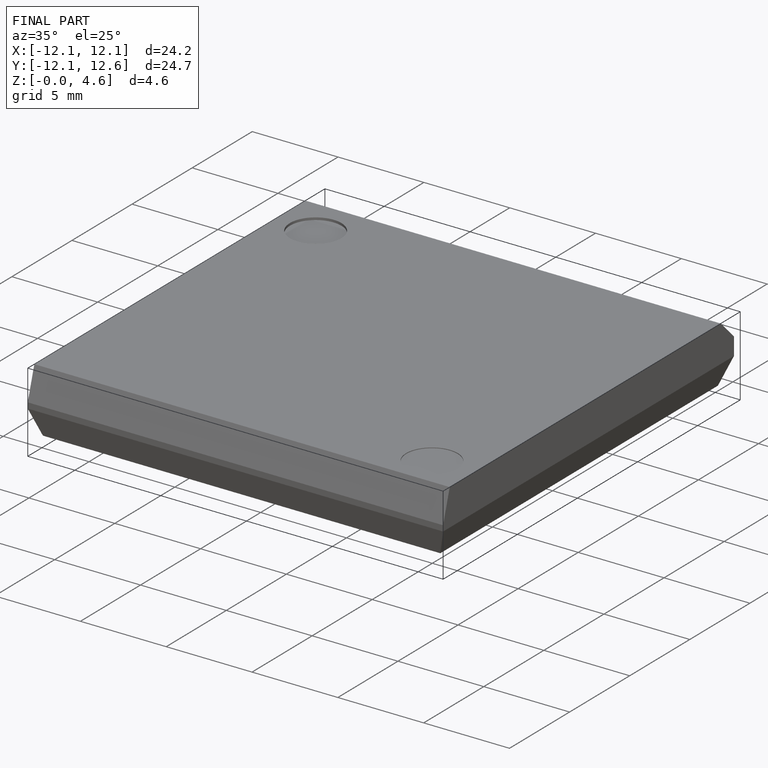
[diagram: finished part — iso view with bounding-box wireframe]
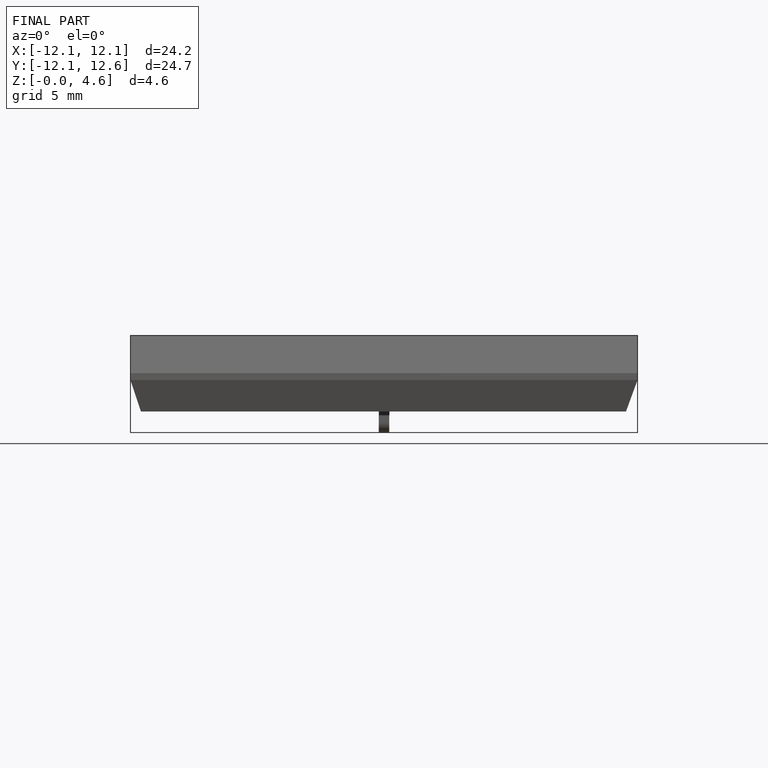
[diagram: finished part — front view with bounding-box wireframe]
